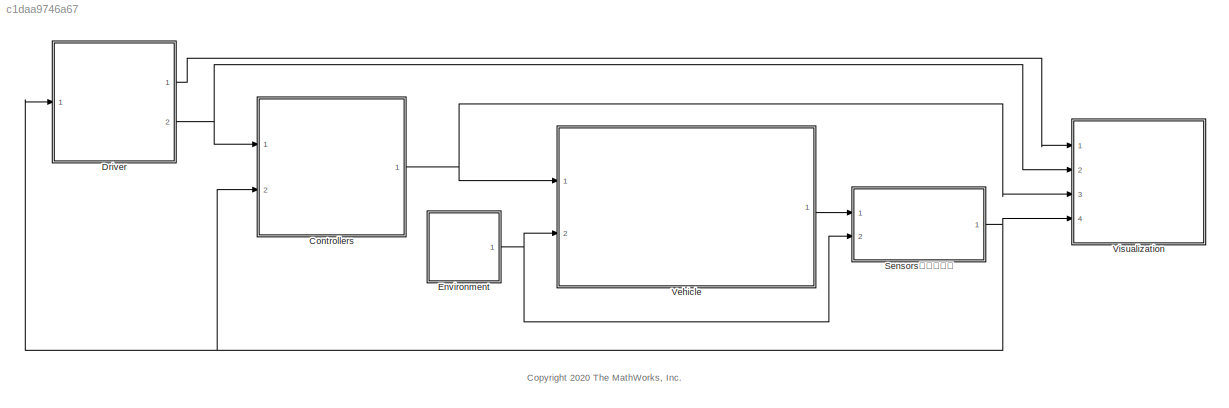
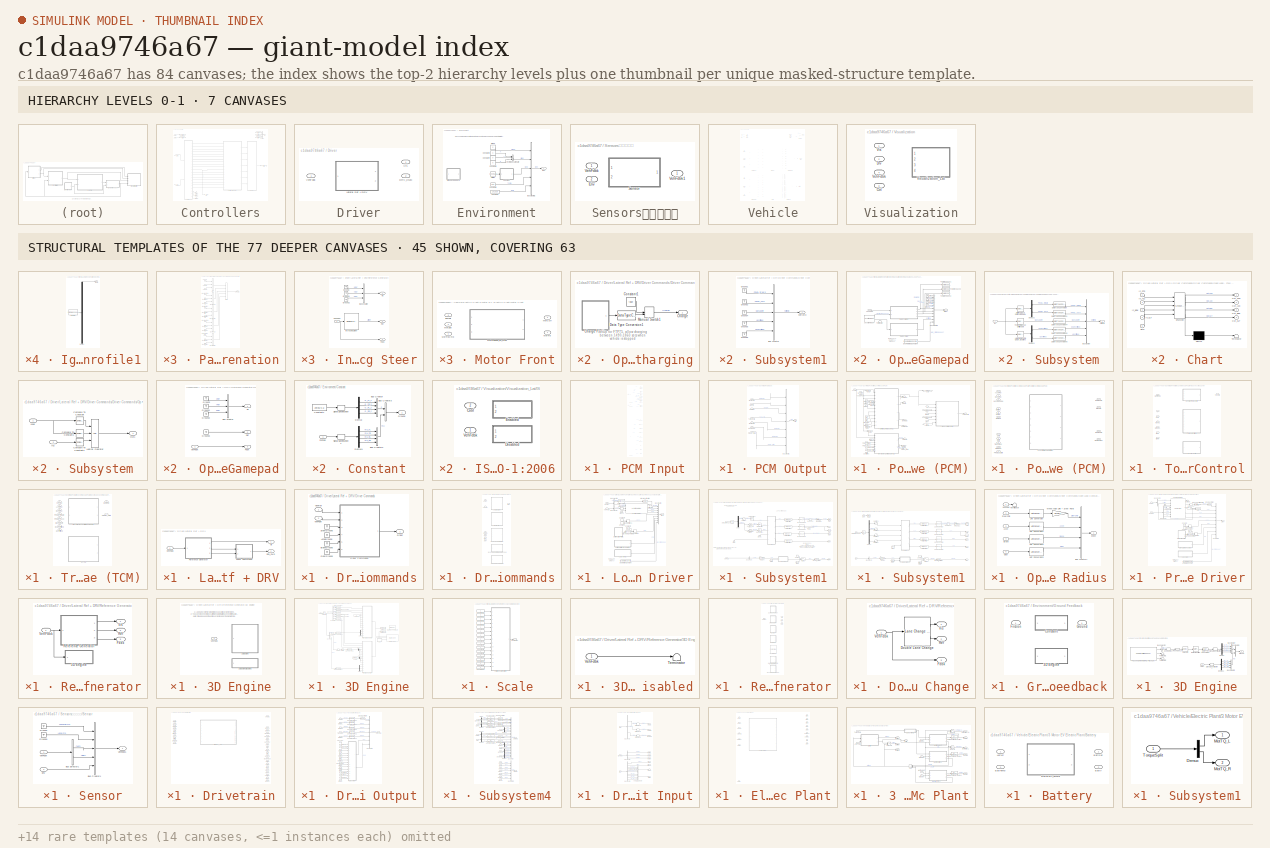
[diagram: thumbnail index - top-2 hierarchy levels (7 canvases) + 45 structural-template representatives of the remaining 77 canvases]
MODEL slx_c1daa9746a67
KIND model
CONFIG AbsTol = auto
CONFIG EnableMultiTasking = on
CONFIG FixedStep = auto
CONFIG MaxStep = auto
CONFIG MinStep = auto
CONFIG RelTol = 1e-3
CONFIG SampleTimeConstraint = Unconstrained
CONFIG Solver = ode23tb
CONFIG SolverName = ode23tb
CONFIG StartTime = 0
CONFIG StopTime = 2474
WORKSPACE source: mxarray member
WORKSPACE A = 159.22
WORKSPACE AccPwrbp = [0 0]
WORKSPACE AccSpdbp = [300 750]
WORKSPACE Aeff = 0.0314159265359
WORKSPACE Af = 2.46
WORKSPACE AfrStoich = 14.6
WORKSPACE AxlIxx = 62.3745166667
WORKSPACE AxlM = 160
WORKSPACE B = 1.01
WORKSPACE BattCapInit = 3.18
WORKSPACE BattCapInit_EV = 4.24
WORKSPACE BattChargeMax = 5.3
WORKSPACE BattChrgPwrMax = -60000
WORKSPACE BattChrgPwrMax_EV = -350000
WORKSPACE BattCurrMax = 300
WORKSPACE BattCurrMax_EV = 900
WORKSPACE BattDischrgPwrMax = 85000
WORKSPACE BattDischrgPwrMax_EV = 497000
WORKSPACE BattTempBp = [243.1 253.1 263.1 273.1 283.1 298.1 313.1]
WORKSPACE Battery: object (value not decoded)
WORKSPACE BrkPrsMax = 8273709
WORKSPACE Bx = 10
WORKSPACE C = 0.3618
WORKSPACE CapLUTBp = [0 0.01 0.02 0.03 0.04 0.05 0.06 0.07 0.08 0.09 0.1 0.11 ... (101 elements, 1x101)]
WORKSPACE CapSOCBp = [0 0.2 0.4 0.6 0.8 1]
WORKSPACE CatLightOffTime = 0
WORKSPACE Cd = 0.25
WORKSPACE ChrgLmt_bpt = [1 1 1 1 1 1 1 0.9 0.7 0.5 0]
WORKSPACE Cl = 0.1
WORKSPACE Cpm = 0.1
WORKSPACE Cps = 2
WORKSPACE CrankSpeed = 150
WORKSPACE Cx = 1.65
WORKSPACE Cz = 5565.2246438
WORKSPACE CzWhlAxl = 11490.971257
WORKSPACE DCT_Param: object (value not decoded)
WORKSPACE DischrgLmt_bpt = [0 0.5 0.7 0.9 1 1 1 1 1 1 1]
WORKSPACE Dn_Shft_Spd = [3 3 10 10 7 7 17 17 11 11 26 26 ... (20 elements, 4x5)]
WORKSPACE Downshift_Speeds = [9.5625 12.9375 16.3125 19.6875 23.0625 26.4375 29.8125 33.1875 36.5625 39.9375 43.3125 46.6875 ... (28 elements, 4x7)]
WORKSPACE Dx = 1
WORKSPACE ECMS_Ki = 0.1
WORKSPACE ECMS_Kp = 3
WORKSPACE ECMS_method = 1
WORKSPACE ECMS_s = 3.4
WORKSPACE Em = [2.8 3.228 3.284 3.361 3.408 3.427 3.472 3.477 3.493 3.504 3.516 3.528 ... (101 elements, 1x101)]
WORKSPACE EngStopStartEnable = 1
WORKSPACE EngStopTime: Simulink.Parameter (value not decoded)
WORKSPACE EngTrqCmd_0 = [0 5.91462851599 6.30130128159 6.63745773103 6.93103920513 7.1887141028 7.41614736865 7.6182009157 7.79908238179 7.96245469721 8.11151569725 8.24905488129 ... (21 elements, 1x21)]
WORKSPACE Ex = 0.01
WORKSPACE F0z = [2886 2907]
WORKSPACE F0zWhlAxl = 2907
WORKSPACE FZMAX = 6570
WORKSPACE FZMIN = 0
WORKSPACE Fc = 500
WORKSPACE FsbF = [-700000 -7000 -700 0 700 7000 700000]
WORKSPACE FsbR = [-700000 -7000 -700 0 700 7000 700000]
WORKSPACE FskF = [-8928.57142857 -178.571428571 0 357.142857143 535.714285714 9285.71428571]
WORKSPACE FskR = [-5357.14285714 -107.142857143 0 214.285714286 321.428571429 5571.42857143]
WORKSPACE G = [-1 0 1 2 3 4 5 6]
WORKSPACE G_o = 1
WORKSPACE Gear_Dn_bpt = [2 3 4 5 6]
WORKSPACE Gear_Up_bpt = [1 2 3 4 5]
WORKSPACE HEVEngTrq_min = 16.186104388
WORKSPACE Hmax = 0.25
WORKSPACE Iyy = 3000
WORKSPACE Iyy_Whl = 0.8
WORKSPACE J = 0.01
WORKSPACE J1 = 0.01
WORKSPACE J2 = 0.01
WORKSPACE Jd = 0.025
WORKSPACE Ji = 0.1
WORKSPACE Jin = 0.05
WORKSPACE Jin_Cltch = 0.2
WORKSPACE Jin_Cltch2 = 0.01
WORKSPACE Jout = [0.01 0.009 0.01 0.01 0.01 0.01 0.01 0.01]
WORKSPACE Jout_Cltch = 0.01
WORKSPACE Jout_Cltch2 = 0.05
WORKSPACE Jt = 0.1
WORKSPACE Jw1 = 0.01
WORKSPACE Jw2 = 0.01
WORKSPACE K_c = 10000
WORKSPACE Kpt = 12798
WORKSPACE Kz = 52451.0065793
WORKSPACE KzWhlAxl = 138031.612078
WORKSPACE LHV = 43000000
WORKSPACE Lhv = 42940000
WORKSPACE Lrel = 0.15
WORKSPACE Mass = 1623
WORKSPACE MaxTorque = [10.8721902117 76.2227873944 95.7133163788 115.203846226 134.694376076 154.184905918 173.675435766 181.839920951 181.509869828 181.17981871 180.849767971 180.519716854 ... (21 elements, 21x1)]
WORKSPACE N = [3.39 1 4.212 2.637 1.8 1.386 1 0.772]
WORKSPACE NCyl = 4
WORKSPACE NF = 2
WORKSPACE NR = 2
WORKSPACE N_P0 = 3
WORKSPACE N_P4 = 4.1
WORKSPACE N_idle = 750
WORKSPACE Ndiff = 3.32
WORKSPACE Ndiff_P4 = 4.1
WORKSPACE Ndiff_front = 5
WORKSPACE Ndiff_rear = 3.5
WORKSPACE Ndisk = 1
WORKSPACE Ndisks = 4
WORKSPACE Ngrid = 200
WORKSPACE Np = 2
WORKSPACE Np_EV = 35
WORKSPACE Np_FC = 1
WORKSPACE Ns = 72
WORKSPACE Ns_EV = 96
WORKSPACE Pabs = 101325
WORKSPACE Pdl_Pos_Dn_bpt = [0 0.6 0.9 1]
WORKSPACE Pdl_Pos_Up_bpt = [0 0.25 0.9 1]
WORKSPACE Pedal_Positions = [0.1 0.4 0.5 0.9]
WORKSPACE PenaltyFctr = 10000000
WORKSPACE Plimit = 60000
WORKSPACE Plimit_EV = 350000
WORKSPACE Press = 7000000
WORKSPACE Pstd = 101325
WORKSPACE RInt = [0.008846 0.006389 0.004364 0.002031 0.001443 0.0005603 0.001028 0.009319 0.006554 0.004101 0.002563 0.001825 ... (42 elements, 7x6)]
WORKSPACE Rair = 287
WORKSPACE Re = 0.327
WORKSPACE Reff = 0.11
WORKSPACE Reff_LSD = 0.2
WORKSPACE RegenBrkCutOff = [0 1]
WORKSPACE RegenBrkSpd_bpt = [2.2352 4.4704]
WORKSPACE Rm = 0.15
WORKSPACE SOCInit = 0.5
WORKSPACE SOCTrgt = 60
WORKSPACE SOC_bpt = [0 0.1 0.2 0.3 0.4 0.5 0.6 0.7 0.8 0.9 1]
WORKSPACE SOCmax = 80
WORKSPACE SOCmin = 40
WORKSPACE SUS: object (value not decoded)
WORKSPACE Sg = 0.743
WORKSPACE Sinj = 6.45161290323
WORKSPACE T = 273
WORKSPACE TCopy = 300
WORKSPACE T_eff_bp = [0 20 40 60 80 100 120 140 160 180 200]
WORKSPACE T_eff_bp_EV_front = [0 30 60 90 120 150 180 210 240 270 300]
WORKSPACE T_eff_bp_EV_rear = [0 20 40 60 80 100 120 140 160 180 200]
WORKSPACE T_eff_bp_P0 = [0 5.78745247607 6.36619772368 7.07355302631 7.95774715459 9.09456817668 10.6103295395 12.7323954474 15.9154943092 21.2206590789 66.6666666667]
WORKSPACE T_init = 298.15
WORKSPACE T_t = [200 200 200 200 190.9859317 143.2394488 114.591559 95.49296586 81.85111359 71.61972439 63.66197724 57.29577951 ... (14 elements, 1x14)]
WORKSPACE T_t_EV_front = [300 300 300 300 286.47889755 214.8591732 171.8873385 143.23944879 122.776670385 107.429586585 95.49296586 85.943669265 ... (14 elements, 1x14)]
WORKSPACE T_t_EV_rear = [200 200 200 200 190.9859317 143.2394488 114.591559 95.49296586 81.85111359 71.61972439 63.66197724 57.29577951 ... (14 elements, 1x14)]
WORKSPACE T_t_P0 = [66.6666666667 66.6666666667 66.6666666667 66.6666666667 21.2206590789 15.9154943092 12.7323954474 10.6103295395 9.09456817668 7.95774715459 7.07355302631 6.36619772368 ... (14 elements, 1x14)]
WORKSPACE Tc_Batt = 0.001
WORKSPACE Tc_DC = 0.001
WORKSPACE Tc_Mot = 0.02
WORKSPACE Temp_bpts = [313 358]
WORKSPACE TimeCnstECP = 0.125
WORKSPACE TimeCnstEGR = 0.125
WORKSPACE TimeCnstETC = 0.085
WORKSPACE TimeCnstICP = 0.125
WORKSPACE TimeCnstIVL = 0.125
WORKSPACE TimeCnstMFA = 0.125
WORKSPACE TimeCnstSWVA = 0.125
WORKSPACE TimeCnstVCR = 0.125
WORKSPACE TimeCnstVGT = 0.15
WORKSPACE TimeCnstVIRL = 0.125
WORKSPACE TimeCnstWGA = 0.15
WORKSPACE TimeStep = 0.0001
WORKSPACE TracPenaltyFctr = 50
WORKSPACE Trans: object (value not decoded)
WORKSPACE Trq_bpts = [25 50 75 100 150 200 250]
WORKSPACE Ts: Simulink.Parameter (value not decoded)
WORKSPACE Tstd = 293.15
WORKSPACE UNLOADED_RADIUS = 0.336
WORKSPACE Up_Shft_Spd = [5 5 12 12 9 9 19 19 13 13 28 28 ... (20 elements, 4x5)]
WORKSPACE Upshift_Speeds = [12.9375 16.3125 19.6875 33 26.4375 29.8125 33.1875 52.5 39.9375 43.3125 46.6875 77.25 ... (28 elements, 4x7)]
WORKSPACE VEH: object (value not decoded)
WORKSPACE VXLOW = 2
WORKSPACE Vd = 0.0015
WORKSPACE Vinit = 650
WORKSPACE WH: Mass (value not decoded)
WORKSPACE a = 3
WORKSPACE aMy = 0.01
WORKSPACE a_CG = 1.09
WORKSPACE afr_stoich = 14.6
WORKSPACE alphaMy = 0
WORKSPACE b: Simulink.Parameter (value not decoded)
WORKSPACE b1 = 100
WORKSPACE b1_g = 0.001
WORKSPACE b2 = 100
WORKSPACE b2_g = 0.001
WORKSPACE bMy = 0
WORKSPACE b_CG = 1.7
WORKSPACE b_J = 0.001
WORKSPACE bd = 0.001
WORKSPACE behavior = 0.2
WORKSPACE betaMy = 1
WORKSPACE bi = 0.001
WORKSPACE bin = 0.003
WORKSPACE bin_Cltch = 0.003
WORKSPACE bout = [0.003 0.003 0.003 0.003 0.003 0.003 0.003 0.003]
WORKSPACE bout_Cltch = 0.003
WORKSPACE br = 0.001
WORKSPACE bt = 0.001
WORKSPACE bw1 = 0.001
WORKSPACE bw2 = 0.001
WORKSPACE cMy = 0
WORKSPACE controller_type = 2
WORKSPACE defaultSpacing = 15
WORKSPACE disk_abore = 0.05
WORKSPACE domega_o = 0
WORKSPACE dt3D = 0.05
WORKSPACE dw = [0 10 20 40 60 80 100]
WORKSPACE dzdotsF = [-10 -1 -0.1 0 0.1 1 10]
WORKSPACE dzdotsR = [-10 -1 -0.1 0 0.1 1 10]
WORKSPACE dzsF = [-0.005 -0.0001 0 0.2 0.2001 0.2051]
WORKSPACE dzsR = [-0.005 -0.0001 0 0.2 0.2001 0.2051]
WORKSPACE eff = 98
WORKSPACE efficiency_table = [52 52 52 52 52 52 52 52 52 62 66 70 ... (154 elements, 14x11)]
WORKSPACE efficiency_table_EV = [85 85 85 85 85 85 85 85 85 85 85 85 ... (154 elements, 14x11)]
WORKSPACE efficiency_table_P0 = [52 52 52 52 52 52 52 52 52 62 66 70 ... (154 elements, 14x11)]
WORKSPACE egotf: object (value not decoded)
WORKSPACE elec_Pipe: object (value not decoded)
WORKSPACE elec_Radiator: object (value not decoded)
WORKSPACE eta = [0.95 0.95 0.95 0.95 0.95 0.95 0.95 0.95]
WORKSPACE eta_tbl = [0.7 0.8 0.9 0.9 0.9 0.9 0.9 0.7 0.8 0.9 0.9 0.9 ... (1232 elements, 7x11x8x2)]
WORKSPACE f_air = [0 0 0 0 0 0 0 0 0 0 0 0 ... (441 elements, 21x21)]
WORKSPACE f_co = [0 0 0 0 0 0 0 0 0 0 0 0 ... (441 elements, 21x21)]
WORKSPACE f_co2 = [0 0 0 0 0 0 0 0 0 0 0 0 ... (441 elements, 21x21)]
WORKSPACE f_cp_ld_bpt = [0 0.2 0.275 0.35 0.425 0.5 0.575 0.65 0.725 0.8 0.875 0.95 ... (16 elements, 1x16)]
WORKSPACE f_cp_n_bpt = [750 1053.57142857 1357.14285714 1660.71428571 1964.28571429 2267.85714286 2571.42857143 2875 3178.57142857 3482.14285714 3785.71428571 4089.28571429 ... (15 elements, 1x15)]
WORKSPACE f_del_sa_bpt = [0 0.75 1.5 2.25 3 3.75 4.5 5.25 6 6.75 7.5 8.25 ... (65 elements, 1x65)]
WORKSPACE f_ecp = [0 0 7.19012817097 15.3709456879 19.1470470057 19.0854874367 13.5819971805 0 0 0 0 0 ... (240 elements, 16x15)]
WORKSPACE f_eff = [499.877436556 432.508206156 399.540781628 370.894662993 347.954880181 331.11554878 319.468905906 311.408898718 305.523567029 300.961538912 297.204959405 293.79866205 ... (441 elements, 21x21)]
WORKSPACE f_egr_areapct_cmd = [0 3.448 6.897 10.34 13.79 17.24 20.69 24.14 27.59 31.03 34.48 37.93 ... (600 elements, 30x20)]
WORKSPACE f_egr_areapct_nrmlzdflow_bpt = [0 0.03448 0.06897 0.1034 0.1379 0.1724 0.2069 0.2414 0.2759 0.3103 0.3448 0.3793 ... (30 elements, 1x30)]
WORKSPACE f_egr_areapct_pr_bpt = [0.5 0.5263 0.5526 0.5789 0.6053 0.6316 0.6579 0.6842 0.7105 0.7368 0.7632 0.7895 ... (20 elements, 20x1)]
WORKSPACE f_egr_max_stdflow = [74.87 74.87 74.74 74.39 73.81 72.98 71.91 70.58 68.97 67.06 64.84 62.25 ... (20 elements, 1x20)]
WORKSPACE f_egr_stdflow = [0 3.743 7.487 11.23 14.97 18.72 22.46 26.2 29.95 33.69 37.43 41.18 ... (420 elements, 21x20)]
WORKSPACE f_egr_stdflow_egrap_bpt = [0 5 10 15 20 25 30 35 40 45 50 55 ... (21 elements, 21x1)]
WORKSPACE f_egr_stdflow_pr_bpt = [0.5 0.5263 0.5526 0.5789 0.6053 0.6316 0.6579 0.6842 0.7105 0.7368 0.7632 0.7895 ... (20 elements, 20x1)]
WORKSPACE f_egrpct_cmd = [0 0 0 0 0 0 0 0 0 0 0 0 ... (240 elements, 16x15)]
WORKSPACE f_egrpct_ld_bpt = [0 0.2 0.275 0.35 0.425 0.5 0.575 0.65 0.725 0.8 0.875 0.95 ... (16 elements, 1x16)]
WORKSPACE f_egrpct_n_bpt = [750 1054 1357 1661 1964 2268 2571 2875 3179 3482 3786 4089 ... (15 elements, 1x15)]
WORKSPACE f_fric_temp_bpt = [275 277 279 281 283 285 287 289 291 293 295 297 ... (46 elements, 1x46)]
WORKSPACE f_fric_temp_mod = [3.986 2.616 2.132 1.946 1.839 1.747 1.672 1.608 1.551 1.499 1.462 1.415 ... (46 elements, 1x46)]
WORKSPACE f_fuel = [0 0 0 0 0 0 0 0 0 0 0 0 ... (441 elements, 21x21)]
WORKSPACE f_hc = [0 0 0 0 0 0 0 0 0 0 0 0 ... (441 elements, 21x21)]
WORKSPACE f_icp = [0 0 1 1.09273642197 2.29409401139 3.54274371837 0.947749647567 0 0 0 0 0 ... (240 elements, 16x15)]
WORKSPACE f_intksys_stdflow_bpt = [0 29.67 59.34 89.01 117.8 144.1 155.7 166 175.2 183.3 190.7 197 ... (20 elements, 1x20)]
WORKSPACE f_intksys_stdflow_pr = [1 0.9789 0.9579 0.9368 0.9158 0.8947 0.8737 0.8526 0.8316 0.8105 0.7895 0.7684 ... (20 elements, 1x20)]
WORKSPACE f_lamcmd = [1 1 1 1 1 1 1 1 1 1 1 1 ... (240 elements, 16x15)]
WORKSPACE f_lamcmd_ld_bpt = [0 0.2 0.275 0.35 0.425 0.5 0.575 0.65 0.725 0.8 0.875 0.95 ... (16 elements, 1x16)]
WORKSPACE f_lamcmd_n_bpt = [750 1053.57142857 1357.14285714 1660.71428571 1964.28571429 2267.85714286 2571.42857143 2875 3178.57142857 3482.14285714 3785.71428571 4089.28571429 ... (15 elements, 1x15)]
WORKSPACE f_lcmd = [0 0.323404450126 0.402272754123 0.472190900601 0.545782048677 0.619112163094 0.619299299836 0.619299299836 0.619299299836 0.619299299836 0.619299299836 0.619299299836 ... (315 elements, 21x15)]
WORKSPACE f_lcmd_n_bpt = [750 1053.57142857 1357.14285714 1660.71428571 1964.28571429 2267.85714286 2571.42857143 2875 3178.57142857 3482.14285714 3785.71428571 4089.28571429 ... (15 elements, 1x15)]
WORKSPACE f_lcmd_tq_bpt = [0 15 25.2631578947 35.5263157895 45.7894736842 56.0526315789 66.3157894737 76.5789473684 86.8421052632 97.1052631579 107.368421053 117.631578947 ... (21 elements, 1x21)]
WORKSPACE f_m_lam = [0.94128 0.95565 0.97001 0.98437 0.99008 1.0004 0.97527 0.9549 0.92612 0.89735]
WORKSPACE f_m_lam_bpt = [0.65 0.7 0.75 0.8 0.85 0.9 0.95 1 1.05 1.1]
WORKSPACE f_m_sa = [1.0019 0.9988 0.9953 0.99173 0.98811 0.98441 0.98065 0.97682 0.97293 0.96897 0.96493 0.96083 ... (65 elements, 1x65)]
WORKSPACE f_mdot_air_corr = [1.02156051768 1.00597426471 0.989411677851 1.0033499089 0.984591437857 0.988509040623 1.0326198627 1.02765527362 1.0134784519 0.998280021213 0.981755128787 0.967218261288 ... (400 elements, 20x20)]
WORKSPACE f_mdot_air_corr_ld_bpt = [0.223381333333 0.285105122807 0.346828912281 0.408552701754 0.470276491228 0.532000280702 0.593724070175 0.655447859649 0.717171649123 0.778895438596 0.84061922807 0.902343017544 ... (20 elements, 1x20)]
WORKSPACE f_mdot_air_n_bpt = [750 973.6842 1197.3684 1421.0526 1644.7368 1868.4211 2092.1053 2315.7895 2539.4737 2763.1579 2986.8421 3210.5263 ... (20 elements, 1x20)]
WORKSPACE f_mdot_intk = [0 0 0 0 0 0 0 0 0 0 0 0 ... (400 elements, 20x20)]
WORKSPACE f_mdot_intk_ecp_bpt = [0 2.6316 5.2632 7.8947 10.5263 13.1579 15.7895 18.4211 21.0526 23.6842 26.3158 28.9474 ... (20 elements, 1x20)]
WORKSPACE f_mdot_trpd_bpt = [0 5.7895 11.5789 17.3684 23.1579 28.9474 34.7368 40.5263 46.3158 52.1053 57.8947 63.6842 ... (20 elements, 1x20)]
WORKSPACE f_nox = [0 0 0 0 0 0 0 0 0 0 0 0 ... (441 elements, 21x21)]
WORKSPACE f_nv = [0.64175366561 0.641419295169 0.640125365558 0.638690556197 0.644169906538 0.669178791311 0.731659452876 0.750078238889 0.750078238889 0.750078238889 0.750078238889 0.750078238889 ... (225 elements, 15x15)]
WORKSPACE f_nv_n_bpt = [750 1053.57142857 1357.14285714 1660.71428571 1964.28571429 2267.85714286 2571.42857143 2875 3178.57142857 3482.14285714 3785.71428571 4089.28571429 ... (15 elements, 1x15)]
WORKSPACE f_nv_prs_bpt = [31 40.6428571429 50.2857142857 59.9285714286 69.5714285714 79.2142857143 88.8571428571 98.5 108.142857143 117.785714286 127.428571429 137.071428571 ... (15 elements, 1x15)]
WORKSPACE f_pm = [0 0 0 0 0 0 0 0 0 0 0 0 ... (441 elements, 21x21)]
WORKSPACE f_sa = [9.05 9.05 16.4373253582 15.3405265461 13.6074880273 9.83352189562 3.89388784387 0 0 0 0 0 ... (240 elements, 16x15)]
WORKSPACE f_sa_ld_bpt = [0 0.2 0.275 0.35 0.425 0.5 0.575 0.65 0.725 0.8 0.875 0.95 ... (16 elements, 1x16)]
WORKSPACE f_sa_n_bpt = [750 1053.57142857 1357.14285714 1660.71428571 1964.28571429 2267.85714286 2571.42857143 2875 3178.57142857 3482.14285714 3785.71428571 4089.28571429 ... (15 elements, 1x15)]
WORKSPACE f_sa_opt = [35.3085 21.0105 10.3714 8.5076 7.1426 7.5656 -5.7766 -16.7061 -16.8345 -19.3546 -20.6085 -22.0872 ... (225 elements, 15x15)]
WORKSPACE f_startup_ect_bpt = [-40 0 20 50]
WORKSPACE f_startup_lambda_delta = [0.5 0.3 0.2 0]
WORKSPACE f_startup_lambda_delta_timecnst = [90 40 12 0]
WORKSPACE f_susp_axl_bp = [1 2]
WORKSPACE f_susp_dz_bp = [-0.325022776267 -0.315022776267 -0.305022776267 -0.205022776267 -0.105022776267 -0.00502277626717 0.0949772237328 0.194977223733 0.204977223733 0.214977223733]
WORKSPACE f_susp_dzdot_bp = [-3 -0.3 -0.2 -0.1 0 0.1 0.2 0.3 3]
WORKSPACE f_susp_fmz = [-144070.391448 -93629.24037 -75929.1118915 -20630.5828179 -15385.48216 -10140.3815021 -4895.28084414 349.819813785 -31916.3973792 18437.6709544 -83996.1993354 -33555.0482577 ... (43920 elements, 10x9x61x2x4)]
WORKSPACE f_susp_geom = [0 0 0 0 0 0 0 0 0 0 0 0 ... (3660 elements, 10x61x2x3)]
WORKSPACE f_susp_strgdelta_bp = [-0.523598775598 -0.506145483078 -0.488692190558 -0.471238898038 -0.453785605519 -0.436332312999 -0.418879020479 -0.401425727959 -0.383972435439 -0.366519142919 -0.349065850399 -0.331612557879 ... (61 elements, 1x61)]
WORKSPACE f_t_exh = [739.936218766 750.584766028 772.770773797 791.235245621 803.106549716 885.862998064 920.498479307 920.498479307 920.498479307 920.498479307 920.498479307 920.498479307 ... (225 elements, 15x15)]
WORKSPACE f_t_exh_l_bpt = [0.2 0.275 0.35 0.425 0.5 0.575 0.65 0.725 0.8 0.875 0.95 1.025 ... (15 elements, 1x15)]
WORKSPACE f_t_exh_n_bpt = [750 1053.57142857 1357.14285714 1660.71428571 1964.28571429 2267.85714286 2571.42857143 2875 3178.57142857 3482.14285714 3785.71428571 4089.28571429 ... (15 elements, 1x15)]
WORKSPACE f_tap = [0 0.9375 0.9375 0.982121188204 1.22093639741 1.5421156717 1.98870690459 2.59666257968 2.6875 2.6875 2.6875 2.6875 ... (315 elements, 21x15)]
WORKSPACE f_tap_ld_bpt = [0 0.2 0.268421052632 0.336842105263 0.405263157895 0.473684210526 0.542105263158 0.610526315789 0.678947368421 0.747368421053 0.815789473684 0.884210526316 ... (21 elements, 1x21)]
WORKSPACE f_tap_n_bpt = [750 1053.57142857 1357.14285714 1660.71428571 1964.28571429 2267.85714286 2571.42857143 2875 3178.57142857 3482.14285714 3785.71428571 4089.28571429 ... (15 elements, 1x15)]
WORKSPACE f_tbrake = [0 10.8721902117 10.8721902117 10.8721902117 10.8721902117 10.8721902117 10.8721902117 10.8721902117 10.8721902117 10.8721902117 10.8721902117 10.8721902117 ... (441 elements, 21x21)]
WORKSPACE f_tbrake_n_bpt = [0 750 973.684210526 1197.36842105 1421.05263158 1644.73684211 1868.42105263 2092.10526316 2315.78947368 2539.47368421 2763.15789474 2986.84210526 ... (21 elements, 1x21)]
WORKSPACE f_tbrake_t_bpt = [0 16.186104388 24.9146526824 33.6432009767 42.3717492711 51.1002975655 59.8288458599 68.5573941543 77.2859424487 86.0144907431 94.7430390375 103.471587332 ... (21 elements, 21x1)]
WORKSPACE f_texh = [630.359790352 638.212816583 644.85156876 656.410931683 676.180276582 706.880985433 749.880156186 804.757804763 869.00210738 938.264388175 1007.38061415 1071.70023123 ... (441 elements, 21x21)]
WORKSPACE f_tm_corr = [0.839360054391 0.833393271885 0.82629554201 0.818442814437 0.811524387436 0.809164184856 0.814606352881 0.826887956871 0.842304598924 0.856886829014 0.869487025783 0.880530414174 ... (400 elements, 20x20)]
WORKSPACE f_tm_corr_n_bpt = [750 973.6842 1197.3684 1421.0526 1644.7368 1868.4211 2092.1053 2315.7895 2539.4737 2763.1579 2986.8421 3210.5263 ... (20 elements, 1x20)]
WORKSPACE f_tm_corr_nd_bpt = [0.3 0.38947 0.47895 0.56842 0.65789 0.74737 0.83684 0.92632 1.0158 1.1053 1.1947 1.2842 ... (20 elements, 1x20)]
WORKSPACE f_tpp = [0 100]
WORKSPACE f_tpp_tap_bpt = [0 100]
WORKSPACE f_tq_fric = [4.16 4.42 4.69 4.88 4.94 4.93 4.85 4.74 4.63 4.52 4.42 4.34 ... (225 elements, 15x15)]
WORKSPACE f_tq_inr = [25.8508 37.8267 50.6081 62.6825 74.6026 88.9064 81.9508 76.6399 82.9886 85.0042 88.9209 92.7645 ... (225 elements, 15x15)]
WORKSPACE f_tq_inr_l_bpt = [0.2 0.28571 0.37143 0.45714 0.54286 0.62857 0.71429 0.8 0.88571 0.97143 1.0571 1.1429 ... (15 elements, 1x15)]
WORKSPACE f_tq_inr_n_bpt = [750 1053.5714 1357.1429 1660.7143 1964.2857 2267.8571 2571.4286 2875 3178.5714 3482.1429 3785.7143 4089.2857 ... (15 elements, 1x15)]
WORKSPACE f_tq_nl = [0 15.0012133443 26.4298333923 37.8556656512 49.2846782956 60.7113978793 72.3451969202 77.459652163 78.5324534074 78.5324534074 78.5324534074 78.5324534074 ... (256 elements, 16x16)]
WORKSPACE f_tq_nl_l_bpt = [0 0.2 0.275 0.35 0.425 0.5 0.575 0.65 0.725 0.8 0.875 0.95 ... (16 elements, 1x16)]
WORKSPACE f_tq_nl_n_bpt = [0 750 1053.57142857 1357.14285714 1660.71428571 1964.28571429 2267.85714286 2571.42857143 2875 3178.57142857 3482.14285714 3785.71428571 ... (16 elements, 1x16)]
WORKSPACE f_tq_pump = [7.24 5.67 3.94 2.59 1.8 1 1 1 1 1 1 1 ... (225 elements, 15x15)]
WORKSPACE f_twc_eff_co = [0.17 0.25 0.45 0.99 0.99 0.99 0.99]
WORKSPACE ... (+78 more variables)
BLOCK [SubSystem] Controllers
  Ports = [2, 1]
  RequestExecContextInheritance = off
BLOCK [BusCreator] Controllers/Bus Creator
  DisplayOption = bar
  InheritFromInputs = on
  Inputs = 3
  Ports = [3, 1]
BLOCK [Outport] Controllers/Ctrl
  VectorParamsAs1DForOutWhenUnconnected = off
BLOCK [From] Controllers/From1
  GotoTag = EngCtrl
BLOCK [From] Controllers/From11
  GotoTag = VehPlnt
BLOCK [From] Controllers/From2
  GotoTag = PtCtrl
BLOCK [From] Controllers/From4
  GotoTag = SteerCtrl
BLOCK [From] Controllers/From9
  GotoTag = OpCmds
BLOCK [Goto] Controllers/Goto1
  GotoTag = OpCmds
BLOCK [Goto] Controllers/Goto2
  GotoTag = VehPlnt
BLOCK [Goto] Controllers/Goto5
  GotoTag = PtCtrl
BLOCK [Goto] Controllers/Goto6
  GotoTag = SteerCtrl
BLOCK [Inport] Controllers/OpCmds
BLOCK [SubSystem] Controllers/PCM Input
  Ports = [2, 21]
  RequestExecContextInheritance = off
BLOCK [Outport] Controllers/PCM Input/AccEnb（自适应巡航使能）
  Port = 19
  VectorParamsAs1DForOutWhenUnconnected = off
BLOCK [Outport] Controllers/PCM Input/AccelPdl（加速器）
  Port = 17
  VectorParamsAs1DForOutWhenUnconnected = off
BLOCK [Outport] Controllers/PCM Input/BattPwr（Power）
  Port = 3
  VectorParamsAs1DForOutWhenUnconnected = off
BLOCK [Outport] Controllers/PCM Input/BattSoc（电池的剩余电量）
  Port = 2
  VectorParamsAs1DForOutWhenUnconnected = off
BLOCK [Outport] Controllers/PCM Input/BattV（电池电压）
  Port = 6
  VectorParamsAs1DForOutWhenUnconnected = off
BLOCK [BusSelector] Controllers/PCM Input/Bus Selector2
  OutputSignals = Veh.VehSpd,Elec.BattSoc,Elec.BattPwr,Veh.MotSpdL,Elec.BattV,Veh.TransGear,Veh.Body.r,Veh.Wheels.WhlAng,Veh.MotSpdF
  Ports = [1, 9]
BLOCK [BusSelector] Controllers/PCM Input/Bus Selector3
  OutputSignals = ScenarioInfo,LaneInfo
  Ports = [1, 2]
BLOCK [BusSelector] Controllers/PCM Input/Bus Selector5
  OutputSignals = Accel,Decel,Chrg,AccEnbl,SteerCmd,ShiftCmd.PRNDL_forward,ShiftCmd.PRNDL_back,ShiftCmd.ManualShift,ShiftCmd.DownshiftReq,ShiftCmd.UpshiftReq
  Ports = [1, 10]
BLOCK [Outport] Controllers/PCM Input/Chrg（充电？）
  Port = 5
  VectorParamsAs1DForOutWhenUnconnected = off
BLOCK [Outport] Controllers/PCM Input/DecelPdl（减速器）
  Port = 18
  VectorParamsAs1DForOutWhenUnconnected = off
BLOCK [Outport] Controllers/PCM Input/DownshiftReq（降档要求）
  Port = 15
  VectorParamsAs1DForOutWhenUnconnected = off
BLOCK [Outport] Controllers/PCM Input/LaneInf（车道信息）
  Port = 21
  VectorParamsAs1DForOutWhenUnconnected = off
BLOCK [Outport] Controllers/PCM Input/ManualShift（手动换挡）
  Port = 14
  VectorParamsAs1DForOutWhenUnconnected = off
BLOCK [Outport] Controllers/PCM Input/MotSpdF
  Port = 9
  VectorParamsAs1DForOutWhenUnconnected = off
BLOCK [Outport] Controllers/PCM Input/MotSpd（电机转速？）
  Port = 4
  VectorParamsAs1DForOutWhenUnconnected = off
BLOCK [Inport] Controllers/PCM Input/OpCmds
  Port = 2
BLOCK [Outport] Controllers/PCM Input/PRNDL_back（档位_后）
  Port = 13
  VectorParamsAs1DForOutWhenUnconnected = off
BLOCK [Outport] Controllers/PCM Input/PRNDL_forward（档位_前）
  Port = 12
  VectorParamsAs1DForOutWhenUnconnected = off
BLOCK [Outport] Controllers/PCM Input/ScnInf（方案信息）
  Port = 20
  VectorParamsAs1DForOutWhenUnconnected = off
BLOCK [Inport] Controllers/PCM Input/Sensors
BLOCK [Outport] Controllers/PCM Input/Steer（转向）
  Port = 11
  VectorParamsAs1DForOutWhenUnconnected = off
BLOCK [Outport] Controllers/PCM Input/TransGear（变速箱）
  Port = 7
  VectorParamsAs1DForOutWhenUnconnected = off
BLOCK [Outport] Controllers/PCM Input/UpshiftReq（升档要求）
  Port = 16
  VectorParamsAs1DForOutWhenUnconnected = off
BLOCK [Outport] Controllers/PCM Input/VehSpdFdbk（车速）
  VectorParamsAs1DForOutWhenUnconnected = off
BLOCK [Outport] Controllers/PCM Input/WhlAng
  Port = 10
  VectorParamsAs1DForOutWhenUnconnected = off
BLOCK [Outport] Controllers/PCM Input/r
  Port = 8
  VectorParamsAs1DForOutWhenUnconnected = off
BLOCK [SubSystem] Controllers/PCM Output
  Ports = [7, 1]
  RequestExecContextInheritance = off
BLOCK [Inport] Controllers/PCM Output/BrkCmd
  Port = 2
BLOCK [BusCreator] Controllers/PCM Output/Bus Creator1
  DisplayOption = bar
  InheritFromInputs = on
  Inputs = 7
  Ports = [7, 1]
BLOCK [Inport] Controllers/PCM Output/GearCmd
  Port = 3
BLOCK [Inport] Controllers/PCM Output/MotTrqCmd
BLOCK [Inport] Controllers/PCM Output/MotTrqCmdF
  Port = 6
BLOCK [Inport] Controllers/PCM Output/PRNDL_State
  Port = 7
BLOCK [Outport] Controllers/PCM Output/PtCtrl
  VectorParamsAs1DForOutWhenUnconnected = off
BLOCK [Inport] Controllers/PCM Output/TorqueSplit
  Port = 4
BLOCK [Inport] Controllers/PCM Output/WhlTrqCmd
  Port = 5
BLOCK [SubSystem] Controllers/Powertrain Control Module (PCM)
  Ports = [18, 7]
  RequestExecContextInheritance = off
BLOCK [Inport] Controllers/Powertrain Control Module (PCM)/AccelPdl
  Port = 17
BLOCK [Inport] Controllers/Powertrain Control Module (PCM)/BattPwr
  Port = 3
BLOCK [Inport] Controllers/Powertrain Control Module (PCM)/BattSoc
  Port = 2
BLOCK [Inport] Controllers/Powertrain Control Module (PCM)/BattV
  Port = 6
BLOCK [Outport] Controllers/Powertrain Control Module (PCM)/BrkCmd
  Port = 2
  VectorParamsAs1DForOutWhenUnconnected = off
BLOCK [Inport] Controllers/Powertrain Control Module (PCM)/Chrg
  Port = 5
BLOCK [Inport] Controllers/Powertrain Control Module (PCM)/DecelPdl
  Port = 18
BLOCK [Inport] Controllers/Powertrain Control Module (PCM)/DownshiftReq
  Port = 15
BLOCK [From] Controllers/Powertrain Control Module (PCM)/From1
  GotoTag = Brake
BLOCK [From] Controllers/Powertrain Control Module (PCM)/From2
  GotoTag = Brake
BLOCK [From] Controllers/Powertrain Control Module (PCM)/From3
  GotoTag = MotSpd
BLOCK [From] Controllers/Powertrain Control Module (PCM)/From4
  GotoTag = xdot
BLOCK [From] Controllers/Powertrain Control Module (PCM)/From5
  GotoTag = PRNDL
BLOCK [Outport] Controllers/Powertrain Control Module (PCM)/GearCmd
  Port = 3
  VectorParamsAs1DForOutWhenUnconnected = off
BLOCK [Goto] Controllers/Powertrain Control Module (PCM)/Goto
  GotoTag = MotTrqCmd
BLOCK [Goto] Controllers/Powertrain Control Module (PCM)/Goto1
  GotoTag = PRNDL
BLOCK [Goto] Controllers/Powertrain Control Module (PCM)/Goto2
  GotoTag = Brake
BLOCK [Goto] Controllers/Powertrain Control Module (PCM)/Goto3
  GotoTag = MotSpd
BLOCK [Goto] Controllers/Powertrain Control Module (PCM)/Goto4
  GotoTag = xdot
BLOCK [Goto] Controllers/Powertrain Control Module (PCM)/Goto5
  GotoTag = SOC
BLOCK [Inport] Controllers/Powertrain Control Module (PCM)/ManualShift
  Port = 14
BLOCK [Inport] Controllers/Powertrain Control Module (PCM)/MotSpd
  Port = 4
BLOCK [Inport] Controllers/Powertrain Control Module (PCM)/MotSpdF
  Port = 9
BLOCK [Outport] Controllers/Powertrain Control Module (PCM)/MotTrqCmd
  VectorParamsAs1DForOutWhenUnconnected = off
BLOCK [Outport] Controllers/Powertrain Control Module (PCM)/MotTrqCmdF
  Port = 6
  VectorParamsAs1DForOutWhenUnconnected = off
BLOCK [Outport] Controllers/Powertrain Control Module (PCM)/PRNDL_State
  Port = 7
  VectorParamsAs1DForOutWhenUnconnected = off
BLOCK [Inport] Controllers/Powertrain Control Module (PCM)/PRNDL_back
  Port = 13
BLOCK [Inport] Controllers/Powertrain Control Module (PCM)/PRNDL_forward
  Port = 12
BLOCK [SubSystem] Controllers/Powertrain Control Module (PCM)/Powertrain Control Module (PCM)
  LabelModeActiveChoice = 2
  Ports = [11, 4]
  RequestExecContextInheritance = off
  Variant = on
  VariantControl = Variant1
  VariantControlMode = Label
BLOCK [Outport] Controllers/Powertrain Control Module (PCM)/Powertrain Control Module (PCM)/ BrkCmd
  Port = 2
  VectorParamsAs1DForOutWhenUnconnected = off
BLOCK [Outport] Controllers/Powertrain Control Module (PCM)/Powertrain Control Module (PCM)/ MotTrqCmd
  VectorParamsAs1DForOutWhenUnconnected = off
BLOCK [Outport] Controllers/Powertrain Control Module (PCM)/Powertrain Control Module (PCM)/ MotTrqCmdF
  Port = 4
  VectorParamsAs1DForOutWhenUnconnected = off
BLOCK [Outport] Controllers/Powertrain Control Module (PCM)/Powertrain Control Module (PCM)/ WhlTrqCmd
  Port = 3
  VectorParamsAs1DForOutWhenUnconnected = off
BLOCK [Inport] Controllers/Powertrain Control Module (PCM)/Powertrain Control Module (PCM)/AccelPdl 
BLOCK [Inport] Controllers/Powertrain Control Module (PCM)/Powertrain Control Module (PCM)/BattPwr 
  Port = 5
BLOCK [Inport] Controllers/Powertrain Control Module (PCM)/Powertrain Control Module (PCM)/BattSoc 
  Port = 4
BLOCK [Inport] Controllers/Powertrain Control Module (PCM)/Powertrain Control Module (PCM)/BattV 
  Port = 8
BLOCK [Inport] Controllers/Powertrain Control Module (PCM)/Powertrain Control Module (PCM)/Chrg 
  Port = 7
BLOCK [Inport] Controllers/Powertrain Control Module (PCM)/Powertrain Control Module (PCM)/DecelPdl 
  Port = 2
BLOCK [ModelReference] Controllers/Powertrain Control Module (PCM)/Powertrain Control Module (PCM)/EV Control Module - Optimal
  ModelNameDialog = EV_Optimal_Controller_r3.slx
  ModelReferenceVersion = 1.4458
  Ports = [8, 4]
  VariantControl = 2
BLOCK [Inport] Controllers/Powertrain Control Module (PCM)/Powertrain Control Module (PCM)/MotSpd 
  Port = 6
BLOCK [Inport] Controllers/Powertrain Control Module (PCM)/Powertrain Control Module (PCM)/MotSpdF
  Port = 10
BLOCK [Inport] Controllers/Powertrain Control Module (PCM)/Powertrain Control Module (PCM)/PRNDL_State
  Port = 11
BLOCK [Inport] Controllers/Powertrain Control Module (PCM)/Powertrain Control Module (PCM)/TransGear 
  Port = 9
BLOCK [Inport] Controllers/Powertrain Control Module (PCM)/Powertrain Control Module (PCM)/VehSpdFdbk 
  Port = 3
BLOCK [Inport] Controllers/Powertrain Control Module (PCM)/Steer
  Port = 11
BLOCK [SubSystem] Controllers/Powertrain Control Module (PCM)/Torque Vectoring Control
  LabelModeActiveChoice = 1
  Ports = [7, 1]
  RequestExecContextInheritance = off
  Variant = on
  VariantControl = Variant1
  VariantControlMode = Label
BLOCK [Inport] Controllers/Powertrain Control Module (PCM)/Torque Vectoring Control/Brake
  Port = 7
BLOCK [ModelReference] Controllers/Powertrain Control Module (PCM)/Torque Vectoring Control/Constant Torque Split
  ModelNameDialog = Constant_Torque_Split.slx
  ModelReferenceVersion = 1.11
  Ports = [4, 1]
  VariantControl = 0
BLOCK [Inport] Controllers/Powertrain Control Module (PCM)/Torque Vectoring Control/MotSpdL
  Port = 5
BLOCK [Inport] Controllers/Powertrain Control Module (PCM)/Torque Vectoring Control/MotTrqCmd
BLOCK [ModelReference] Controllers/Powertrain Control Module (PCM)/Torque Vectoring Control/No Torque Split
  ModelNameDialog = No_Torque_Split.slx
  ModelReferenceVersion = 1.10
  Ports = [1, 1]
  VariantControl = 2
BLOCK [Inport] Controllers/Powertrain Control Module (PCM)/Torque Vectoring Control/Steer
  Port = 6
BLOCK [Outport] Controllers/Powertrain Control Module (PCM)/Torque Vectoring Control/TQ_Split
  VectorParamsAs1DForOutWhenUnconnected = off
BLOCK [ModelReference] Controllers/Powertrain Control Module (PCM)/Torque Vectoring Control/Torque Vectoring
  ModelNameDialog = Torque_Vectoring.slx
  ModelReferenceVersion = 1.25
  Ports = [7, 1]
  VariantControl = 1
BLOCK [Inport] Controllers/Powertrain Control Module (PCM)/Torque Vectoring Control/WhlAng
  Port = 4
BLOCK [Inport] Controllers/Powertrain Control Module (PCM)/Torque Vectoring Control/r
  Port = 2
BLOCK [Inport] Controllers/Powertrain Control Module (PCM)/Torque Vectoring Control/xdot
  Port = 3
BLOCK [Outport] Controllers/Powertrain Control Module (PCM)/TorqueSplit1
  Port = 4
  VectorParamsAs1DForOutWhenUnconnected = off
BLOCK [Inport] Controllers/Powertrain Control Module (PCM)/TransGear
  Port = 7
BLOCK [SubSystem] Controllers/Powertrain Control Module (PCM)/Transmission Control Module (TCM)
  LabelModeActiveChoice = 2
  Ports = [8, 2]
  RequestExecContextInheritance = off
  Variant = on
  VariantControl = Variant1
  VariantControlMode = Label
BLOCK [Inport] Controllers/Powertrain Control Module (PCM)/Transmission Control Module (TCM)/AccelPdl
  Port = 2
BLOCK [Inport] Controllers/Powertrain Control Module (PCM)/Transmission Control Module (TCM)/DecelPdl
  Port = 3
BLOCK [Inport] Controllers/Powertrain Control Module (PCM)/Transmission Control Module (TCM)/DownshiftReq
  Port = 7
BLOCK [Outport] Controllers/Powertrain Control Module (PCM)/Transmission Control Module (TCM)/GearCmd
BLOCK [Inport] Controllers/Powertrain Control Module (PCM)/Transmission Control Module (TCM)/ManualShift
  Port = 6
BLOCK [ModelReference] Controllers/Powertrain Control Module (PCM)/Transmission Control Module (TCM)/NoTCM
  ModelNameDialog = NoTCM.slx
  ModelReferenceVersion = 1.76
  Ports = [0, 2]
  VariantControl = 2
BLOCK [Outport] Controllers/Powertrain Control Module (PCM)/Transmission Control Module (TCM)/PRNDL_State
  Port = 2
BLOCK [Inport] Controllers/Powertrain Control Module (PCM)/Transmission Control Module (TCM)/PRNDL_back
  Port = 5
BLOCK [Inport] Controllers/Powertrain Control Module (PCM)/Transmission Control Module (TCM)/PRNDL_forward
  Port = 4
BLOCK [ModelReference] Controllers/Powertrain Control Module (PCM)/Transmission Control Module (TCM)/Transmission Control Module (TCM)
  ModelNameDialog = TransmissionController.slx
  ModelReferenceVersion = 1.76
  Ports = [2, 2]
  VariantControl = 0
BLOCK [Inport] Controllers/Powertrain Control Module (PCM)/Transmission Control Module (TCM)/UpshiftReq
  Port = 8
BLOCK [Inport] Controllers/Powertrain Control Module (PCM)/Transmission Control Module (TCM)/VehSpd
BLOCK [Inport] Controllers/Powertrain Control Module (PCM)/UpshiftReq
  Port = 16
BLOCK [Inport] Controllers/Powertrain Control Module (PCM)/VehSpdFdbk
BLOCK [Inport] Controllers/Powertrain Control Module (PCM)/WhlAng
  Port = 10
BLOCK [Outport] Controllers/Powertrain Control Module (PCM)/WhlTrqCmd
  Port = 5
  VectorParamsAs1DForOutWhenUnconnected = off
BLOCK [Inport] Controllers/Powertrain Control Module (PCM)/r
  Port = 8
BLOCK [Terminator] Controllers/Terminator
BLOCK [Terminator] Controllers/Terminator1
BLOCK [Terminator] Controllers/Terminator2
BLOCK [Inport] Controllers/VehPlnt
  Port = 2
BLOCK [SubSystem] Driver
  LabelModeActiveChoice = 2
  Ports = [1, 2]
  RequestExecContextInheritance = off
  Variant = on
  VariantControlMode = Label
BLOCK [Outport] Driver/DRV_CMD
  Port = 2
  VectorParamsAs1DForOutWhenUnconnected = off
BLOCK [SubSystem] Driver/Lateral Ref + DRV
  Ports = [1, 2]
  RequestExecContextInheritance = off
  VariantControl = 2
BLOCK [Outport] Driver/Lateral Ref + DRV/DRV_CMD
  Port = 2
  VectorParamsAs1DForOutWhenUnconnected = off
BLOCK [SubSystem] Driver/Lateral Ref + DRV/Driver Commands
  AttributesFormatString = %<driverType>
  Ports = [2, 1]
  RequestExecContextInheritance = off
  VariantControl = 0
BLOCK [Ground] Driver/Lateral Ref + DRV/Driver Commands/AccelGround
BLOCK [Ground] Driver/Lateral Ref + DRV/Driver Commands/BrakeGround
BLOCK [Outport] Driver/Lateral Ref + DRV/Driver Commands/Driver
  VectorParamsAs1DForOutWhenUnconnected = off
BLOCK [SubSystem] Driver/Lateral Ref + DRV/Driver Commands/Driver Commands
  AllowZeroVariantControls = on
  LabelModeActiveChoice = 1
  Ports = [6, 1]
  RequestExecContextInheritance = off
  Variant = on
  VariantControl = Variant1
  VariantControlMode = Label
BLOCK [Outport] Driver/Lateral Ref + DRV/Driver Commands/Driver Commands/ Driver
  VectorParamsAs1DForOutWhenUnconnected = off
BLOCK [Inport] Driver/Lateral Ref + DRV/Driver Commands/Driver Commands/Accel
  Port = 4
BLOCK [Inport] Driver/Lateral Ref + DRV/Driver Commands/Driver Commands/Brake
  Port = 5
BLOCK [Inport] Driver/Lateral Ref + DRV/Driver Commands/Driver Commands/Gear
  Port = 6
BLOCK [SubSystem] Driver/Lateral Ref + DRV/Driver Commands/Driver Commands/Longitudinal Driver
  Ports = [2, 1]
  RequestExecContextInheritance = off
  VariantControl = 0
BLOCK [BusCreator] Driver/Lateral Ref + DRV/Driver Commands/Driver Commands/Longitudinal Driver/Bus Creator1
  DisplayOption = bar
  InheritFromInputs = on
  Inputs = 9
  Ports = [9, 1]
BLOCK [BusSelector] Driver/Lateral Ref + DRV/Driver Commands/Driver Commands/Longitudinal Driver/Bus Selector
  OutputSignals = Veh.Body.xdot
  Ports = [1, 1]
BLOCK [BusSelector] Driver/Lateral Ref + DRV/Driver Commands/Driver Commands/Longitudinal Driver/Bus Selector1
  OutputSignals = SteerOvrCmd,LngRef
  Ports = [1, 2]
BLOCK [Constant] Driver/Lateral Ref + DRV/Driver Commands/Driver Commands/Longitudinal Driver/Constant5
  Value = false
BLOCK [Constant] Driver/Lateral Ref + DRV/Driver Commands/Driver Commands/Longitudinal Driver/Constant6
  OutDataTypeStr = double
  Value = 0
BLOCK [Constant] Driver/Lateral Ref + DRV/Driver Commands/Driver Commands/Longitudinal Driver/Constant7
  OutDataTypeStr = double
BLOCK [DataTypeConversion] Driver/Lateral Ref + DRV/Driver Commands/Driver Commands/Longitudinal Driver/Data Type Conversion
  OutDataTypeStr = boolean
  RndMeth = Floor
  SaturateOnIntegerOverflow = off
BLOCK [DeadZone] Driver/Lateral Ref + DRV/Driver Commands/Driver Commands/Longitudinal Driver/Dead Zone
  LowerValue = -.1
  UpperValue = .1
BLOCK [Outport] Driver/Lateral Ref + DRV/Driver Commands/Driver Commands/Longitudinal Driver/Driver
  VectorParamsAs1DForOutWhenUnconnected = off
BLOCK [Reference] Driver/Lateral Ref + DRV/Driver Commands/Driver Commands/Longitudinal Driver/Enumerated Constant  REF=simulink/Sources/Enumerated
Constant
  Ports = [0, 1]
  SourceBlock = simulink/Sources/Enumerated\nConstant
  SourceProductBaseCode = SL
  SourceType = Enumerated Constant
BLOCK [Ground] Driver/Lateral Ref + DRV/Driver Commands/Driver Commands/Longitudinal Driver/Ground
BLOCK [SubSystem] Driver/Lateral Ref + DRV/Driver Commands/Driver Commands/Longitudinal Driver/Ignition Switch Profile1
  ClipboardFcn = sigbuilder_block('clipboard');
  CloseFcn = sigbuilder_block('close');
  ContinueFcn = sigbuilder_block('continue');
  CopyFcn = sigbuilder_block('copy');
  DeleteFcn = sigbuilder_block('delete');
  LoadFcn = sigbuilder_block('load');
  MaskHideContents = on
  ModelCloseFcn = sigbuilder_block('modelClose');
  NameChangeFcn = sigbuilder_block('namechange');
  OpenFcn = sigbuilder_block('open',[595.8 176.4 550.8 322.2 ]);
  PauseFcn = sigbuilder_block('pause');
  Ports = [0, 1]
  PreSaveFcn = sigbuilder_block('preSave');
  RequestExecContextInheritance = off
  StartFcn = sigbuilder_block('start');
  StopFcn = sigbuilder_block('stop');
  Tag = STV Subsys
BLOCK [Demux] Driver/Lateral Ref + DRV/Driver Commands/Driver Commands/Longitudinal Driver/Ignition Switch Profile1/Demux
  DisplayOption = none
  Outputs = 1
  Ports = [1, 1]
  Tag = STV Demux
BLOCK [FromWorkspace] Driver/Lateral Ref + DRV/Driver Commands/Driver Commands/Longitudinal Driver/Ignition Switch Profile1/FromWs
  Tag = STV FromWs
  VariableName = tuvar
BLOCK [Outport] Driver/Lateral Ref + DRV/Driver Commands/Driver Commands/Longitudinal Driver/Ignition Switch Profile1/IGSW
  Tag = STV Outport
  VectorParamsAs1DForOutWhenUnconnected = off
BLOCK [Reference] Driver/Lateral Ref + DRV/Driver Commands/Driver Commands/Longitudinal Driver/Longitudinal Driver  REF=autolibshared/Longitudinal Driver
  Ports = [3, 4]
  SourceBlock = autolibshared/Longitudinal Driver
  SourceProductBaseCode = PW,MT,VE,VP
  SourceType = Longitudinal Driver
BLOCK [ManualSwitch] Driver/Lateral Ref + DRV/Driver Commands/Driver Commands/Longitudinal Driver/Manual Switch
BLOCK [ManualSwitch] Driver/Lateral Ref + DRV/Driver Commands/Driver Commands/Longitudinal Driver/Manual Switch1
BLOCK [SubSystem] Driver/Lateral Ref + DRV/Driver Commands/Driver Commands/Longitudinal Driver/Optional Stationary Charging
  Commented = on
  Ports = [0, 1]
  RequestExecContextInheritance = off
BLOCK [Outport] Driver/Lateral Ref + DRV/Driver Commands/Driver Commands/Longitudinal Driver/Optional Stationary Charging/Charge
  VectorParamsAs1DForOutWhenUnconnected = off
BLOCK [SubSystem] Driver/Lateral Ref + DRV/Driver Commands/Driver Commands/Longitudinal Driver/Optional Stationary Charging/Charge Profile
  ClipboardFcn = sigbuilder_block('clipboard');
  CloseFcn = sigbuilder_block('close');
  ContinueFcn = sigbuilder_block('continue');
  CopyFcn = sigbuilder_block('copy');
  DeleteFcn = sigbuilder_block('delete');
  LoadFcn = sigbuilder_block('load');
  MaskHideContents = on
  ModelCloseFcn = sigbuilder_block('modelClose');
  NameChangeFcn = sigbuilder_block('namechange');
  OpenFcn = sigbuilder_block('open',[6 30 1428 771.75 ]);
  PauseFcn = sigbuilder_block('pause');
  Ports = [0, 1]
  PreSaveFcn = sigbuilder_block('preSave');
  RequestExecContextInheritance = off
  StartFcn = sigbuilder_block('start');
  StopFcn = sigbuilder_block('stop');
  Tag = STV Subsys
BLOCK [Demux] Driver/Lateral Ref + DRV/Driver Commands/Driver Commands/Longitudinal Driver/Optional Stationary Charging/Charge Profile/Demux
  DisplayOption = none
  Outputs = 1
  Ports = [1, 1]
  Tag = STV Demux
BLOCK [FromWorkspace] Driver/Lateral Ref + DRV/Driver Commands/Driver Commands/Longitudinal Driver/Optional Stationary Charging/Charge Profile/FromWs
  Tag = STV FromWs
  VariableName = tuvar
BLOCK [Outport] Driver/Lateral Ref + DRV/Driver Commands/Driver Commands/Longitudinal Driver/Optional Stationary Charging/Charge Profile/IGSW
  Tag = STV Outport
  VectorParamsAs1DForOutWhenUnconnected = off
BLOCK [Constant] Driver/Lateral Ref + DRV/Driver Commands/Driver Commands/Longitudinal Driver/Optional Stationary Charging/Constant1
  Value = false
BLOCK [DataTypeConversion] Driver/Lateral Ref + DRV/Driver Commands/Driver Commands/Longitudinal Driver/Optional Stationary Charging/Data Type Conversion1
  OutDataTypeStr = boolean
  RndMeth = Floor
  SaturateOnIntegerOverflow = off
BLOCK [ManualSwitch] Driver/Lateral Ref + DRV/Driver Commands/Driver Commands/Longitudinal Driver/Optional Stationary Charging/Manual Switch1
BLOCK [SignalSpecification] Driver/Lateral Ref + DRV/Driver Commands/Driver Commands/Longitudinal Driver/Signal Specification3
  Unit = rad
BLOCK [SubSystem] Driver/Lateral Ref + DRV/Driver Commands/Driver Commands/Longitudinal Driver/Subsystem1
  Ports = [0, 1]
  RequestExecContextInheritance = off
BLOCK [BusCreator] Driver/Lateral Ref + DRV/Driver Commands/Driver Commands/Longitudinal Driver/Subsystem1/Bus Creator
  DisplayOption = bar
  InheritFromInputs = on
  Inputs = 5
  Ports = [5, 1]
BLOCK [Ground] Driver/Lateral Ref + DRV/Driver Commands/Driver Commands/Longitudinal Driver/Subsystem1/Ground1
BLOCK [Ground] Driver/Lateral Ref + DRV/Driver Commands/Driver Commands/Longitudinal Driver/Subsystem1/Ground2
BLOCK [Ground] Driver/Lateral Ref + DRV/Driver Commands/Driver Commands/Longitudinal Driver/Subsystem1/Ground4
BLOCK [Ground] Driver/Lateral Ref + DRV/Driver Commands/Driver Commands/Longitudinal Driver/Subsystem1/Ground5
BLOCK [Ground] Driver/Lateral Ref + DRV/Driver Commands/Driver Commands/Longitudinal Driver/Subsystem1/Ground6
BLOCK [Outport] Driver/Lateral Ref + DRV/Driver Commands/Driver Commands/Longitudinal Driver/Subsystem1/ShiftCmd
BLOCK [Terminator] Driver/Lateral Ref + DRV/Driver Commands/Driver Commands/Longitudinal Driver/Terminator3
BLOCK [UnitConversion] Driver/Lateral Ref + DRV/Driver Commands/Driver Commands/Longitudinal Driver/Unit Conversion
BLOCK [Inport] Driver/Lateral Ref + DRV/Driver Commands/Driver Commands/Longitudinal Driver/VehFdbk
  Port = 2
BLOCK [Inport] Driver/Lateral Ref + DRV/Driver Commands/Driver Commands/Longitudinal Driver/VehRef
BLOCK [SubSystem] Driver/Lateral Ref + DRV/Driver Commands/Driver Commands/Open Loop - F310 Gamepad
  Ports = [1, 1]
  RequestExecContextInheritance = off
  VariantControl = 4
BLOCK [BusCreator] Driver/Lateral Ref + DRV/Driver Commands/Driver Commands/Open Loop - F310 Gamepad/Bus Creator1
  DisplayOption = bar
  InheritFromInputs = on
  Inputs = 10
  Ports = [10, 1]
BLOCK [Outport] Driver/Lateral Ref + DRV/Driver Commands/Driver Commands/Open Loop - F310 Gamepad/Driver
  VectorParamsAs1DForOutWhenUnconnected = off
BLOCK [Reference] Driver/Lateral Ref + DRV/Driver Commands/Driver Commands/Open Loop - F310 Gamepad/Enumerated Constant  REF=simulink/Sources/Enumerated
Constant
  Ports = [0, 1]
  SourceBlock = simulink/Sources/Enumerated\nConstant
  SourceProductBaseCode = SL
  SourceType = Enumerated Constant
BLOCK [Ground] Driver/Lateral Ref + DRV/Driver Commands/Driver Commands/Open Loop - F310 Gamepad/Ground
BLOCK [Ground] Driver/Lateral Ref + DRV/Driver Commands/Driver Commands/Open Loop - F310 Gamepad/Ground1
BLOCK [Ground] Driver/Lateral Ref + DRV/Driver Commands/Driver Commands/Open Loop - F310 Gamepad/Ground2
BLOCK [Ground] Driver/Lateral Ref + DRV/Driver Commands/Driver Commands/Open Loop - F310 Gamepad/Ground3
BLOCK [Reference] Driver/Lateral Ref + DRV/Driver Commands/Driver Commands/Open Loop - F310 Gamepad/Joystick Input  REF=vrlib/Joystick Input
  Ports = [0, 2]
  SourceBlock = vrlib/Joystick Input
  SourceProductBaseCode = SL
  SourceType = Joystick Input
BLOCK [SubSystem] Driver/Lateral Ref + DRV/Driver Commands/Driver Commands/Open Loop - F310 Gamepad/Subsystem
  Ports = [1, 1]
  RequestExecContextInheritance = off
BLOCK [BusCreator] Driver/Lateral Ref + DRV/Driver Commands/Driver Commands/Open Loop - F310 Gamepad/Subsystem/Bus Creator
  DisplayOption = bar
  InheritFromInputs = on
  Inputs = 5
  Ports = [5, 1]
BLOCK [DataTypeConversion] Driver/Lateral Ref + DRV/Driver Commands/Driver Commands/Open Loop - F310 Gamepad/Subsystem/Data Type Conversion
  RndMeth = Floor
  SaturateOnIntegerOverflow = off
BLOCK [DataTypeConversion] Driver/Lateral Ref + DRV/Driver Commands/Driver Commands/Open Loop - F310 Gamepad/Subsystem/Data Type Conversion1
  RndMeth = Floor
  SaturateOnIntegerOverflow = off
BLOCK [DataTypeConversion] Driver/Lateral Ref + DRV/Driver Commands/Driver Commands/Open Loop - F310 Gamepad/Subsystem/Data Type Conversion4
  RndMeth = Floor
  SaturateOnIntegerOverflow = off
BLOCK [DataTypeConversion] Driver/Lateral Ref + DRV/Driver Commands/Driver Commands/Open Loop - F310 Gamepad/Subsystem/Data Type Conversion5
  RndMeth = Floor
  SaturateOnIntegerOverflow = off
BLOCK [DataTypeConversion] Driver/Lateral Ref + DRV/Driver Commands/Driver Commands/Open Loop - F310 Gamepad/Subsystem/Data Type Conversion6
  RndMeth = Floor
  SaturateOnIntegerOverflow = off
BLOCK [Demux] Driver/Lateral Ref + DRV/Driver Commands/Driver Commands/Open Loop - F310 Gamepad/Subsystem/Demux1
  Outputs = 2
  Ports = [1, 2]
BLOCK [Demux] Driver/Lateral Ref + DRV/Driver Commands/Driver Commands/Open Loop - F310 Gamepad/Subsystem/Demux2
  Outputs = 2
  Ports = [1, 2]
BLOCK [Inport] Driver/Lateral Ref + DRV/Driver Commands/Driver Commands/Open Loop - F310 Gamepad/Subsystem/In1
BLOCK [Selector] Driver/Lateral Ref + DRV/Driver Commands/Driver Commands/Open Loop - F310 Gamepad/Subsystem/LB (Down) and RB (Up) Shift Paddle buttons
  IndexOptions = Index vector (dialog)
  Indices = [5 6]
  InputPortWidth = 12
  OutputSizes = 1
  Ports = [1, 1]
BLOCK [Outport] Driver/Lateral Ref + DRV/Driver Commands/Driver Commands/Open Loop - F310 Gamepad/Subsystem/ShiftCmd
  VectorParamsAs1DForOutWhenUnconnected = off
BLOCK [Selector] Driver/Lateral Ref + DRV/Driver Commands/Driver Commands/Open Loop - F310 Gamepad/Subsystem/Start and Back buttons for PRNDL
  IndexOptions = Index vector (dialog)
  Indices = [10 9]
  InputPortWidth = 12
  OutputSizes = 1
  Ports = [1, 1]
BLOCK [Selector] Driver/Lateral Ref + DRV/Driver Commands/Driver Commands/Open Loop - F310 Gamepad/Subsystem/Y button for Manual Shift Enable
  IndexOptions = Index vector (dialog)
  Indices = [4]
  InputPortWidth = 12
  OutputSizes = 1
  Ports = [1, 1]
BLOCK [SubSystem] Driver/Lateral Ref + DRV/Driver Commands/Driver Commands/Open Loop - F310 Gamepad/Subsystem1
  Ports = [2, 4]
  RequestExecContextInheritance = off
BLOCK [Lookup_n-D] Driver/Lateral Ref + DRV/Driver Commands/Driver Commands/Open Loop - F310 Gamepad/Subsystem1/1-D Lookup Table
  BreakpointsForDimension1 = [-1 0]
  ExtrapMethod = Clip
  InternalRulePriority = Speed
  NumberOfTableDimensions = 1
  Ports = [1, 1]
  RndMeth = Simplest
  Table = [1 0]
  UseLastTableValue = on
BLOCK [Lookup_n-D] Driver/Lateral Ref + DRV/Driver Commands/Driver Commands/Open Loop - F310 Gamepad/Subsystem1/1-D Lookup Table1
  BreakpointsForDimension1 = [0 1]
  ExtrapMethod = Clip
  InternalRulePriority = Speed
  NumberOfTableDimensions = 1
  Ports = [1, 1]
  RndMeth = Simplest
  Table = [0 1]
  UseLastTableValue = on
BLOCK [Lookup_n-D] Driver/Lateral Ref + DRV/Driver Commands/Driver Commands/Open Loop - F310 Gamepad/Subsystem1/1-D Lookup Table7
  BreakpointsForDimension1 = [-1 0 1]
  ExtrapMethod = Clip
  InternalRulePriority = Speed
  NumberOfTableDimensions = 1
  Ports = [1, 1]
  RndMeth = Simplest
  Table = [-450 0 450]
  UseLastTableValue = on
BLOCK [Outport] Driver/Lateral Ref + DRV/Driver Commands/Driver Commands/Open Loop - F310 Gamepad/Subsystem1/Accel
  Port = 2
  VectorParamsAs1DForOutWhenUnconnected = off
BLOCK [Outport] Driver/Lateral Ref + DRV/Driver Commands/Driver Commands/Open Loop - F310 Gamepad/Subsystem1/Brake
  Port = 3
  VectorParamsAs1DForOutWhenUnconnected = off
BLOCK [BusSelector] Driver/Lateral Ref + DRV/Driver Commands/Driver Commands/Open Loop - F310 Gamepad/Subsystem1/Bus Selector
  OutputSignals = Veh.Body.xdot
  Ports = [1, 1]
BLOCK [SubSystem] Driver/Lateral Ref + DRV/Driver Commands/Driver Commands/Open Loop - F310 Gamepad/Subsystem1/Chart
  ErrorFcn = Stateflow.Translate.translate
  PermitHierarchicalResolution = ExplicitOnly
  Ports = [5, 4]
  RequestExecContextInheritance = off
  SFBlockType = Chart
  TreatAsAtomicUnit = on
BLOCK [Demux] Driver/Lateral Ref + DRV/Driver Commands/Driver Commands/Open Loop - F310 Gamepad/Subsystem1/Chart/ Demux 
  Outputs = 1
  Ports = [1, 1]
BLOCK [S-Function] Driver/Lateral Ref + DRV/Driver Commands/Driver Commands/Open Loop - F310 Gamepad/Subsystem1/Chart/ SFunction 
  EnableBusSupport = on
  FunctionName = sf_sfun
  PortCounts = [5 5]
  Ports = [5, 5]
  SFcnIsStateOwnerBlock = off
  SFunctionDeploymentMode = off
  Tag = Stateflow S-Function 3
BLOCK [Terminator] Driver/Lateral Ref + DRV/Driver Commands/Driver Commands/Open Loop - F310 Gamepad/Subsystem1/Chart/ Terminator 
BLOCK [Inport] Driver/Lateral Ref + DRV/Driver Commands/Driver Commands/Open Loop - F310 Gamepad/Subsystem1/Chart/In_ACC
  Port = 2
BLOCK [Inport] Driver/Lateral Ref + DRV/Driver Commands/Driver Commands/Open Loop - F310 Gamepad/Subsystem1/Chart/In_BRK
  Port = 3
BLOCK [Inport] Driver/Lateral Ref + DRV/Driver Commands/Driver Commands/Open Loop - F310 Gamepad/Subsystem1/Chart/In_CLT
  Port = 4
BLOCK [Inport] Driver/Lateral Ref + DRV/Driver Commands/Driver Commands/Open Loop - F310 Gamepad/Subsystem1/Chart/In_STR
BLOCK [Outport] Driver/Lateral Ref + DRV/Driver Commands/Driver Commands/Open Loop - F310 Gamepad/Subsystem1/Chart/Out_ACC
  Port = 2
  VectorParamsAs1DForOutWhenUnconnected = off
BLOCK [Outport] Driver/Lateral Ref + DRV/Driver Commands/Driver Commands/Open Loop - F310 Gamepad/Subsystem1/Chart/Out_BRK
  Port = 3
  VectorParamsAs1DForOutWhenUnconnected = off
BLOCK [Outport] Driver/Lateral Ref + DRV/Driver Commands/Driver Commands/Open Loop - F310 Gamepad/Subsystem1/Chart/Out_CLT
  Port = 4
  VectorParamsAs1DForOutWhenUnconnected = off
BLOCK [Outport] Driver/Lateral Ref + DRV/Driver Commands/Driver Commands/Open Loop - F310 Gamepad/Subsystem1/Chart/Out_STR
  VectorParamsAs1DForOutWhenUnconnected = off
BLOCK [Inport] Driver/Lateral Ref + DRV/Driver Commands/Driver Commands/Open Loop - F310 Gamepad/Subsystem1/Chart/Time
  Port = 5
BLOCK [Clock] Driver/Lateral Ref + DRV/Driver Commands/Driver Commands/Open Loop - F310 Gamepad/Subsystem1/Clock
BLOCK [Outport] Driver/Lateral Ref + DRV/Driver Commands/Driver Commands/Open Loop - F310 Gamepad/Subsystem1/Clutch
  Port = 4
  VectorParamsAs1DForOutWhenUnconnected = off
BLOCK [Constant] Driver/Lateral Ref + DRV/Driver Commands/Driver Commands/Open Loop - F310 Gamepad/Subsystem1/Constant2
  Value = 0
BLOCK [DeadZone] Driver/Lateral Ref + DRV/Driver Commands/Driver Commands/Open Loop - F310 Gamepad/Subsystem1/Dead Zone3
  LowerValue = -4
  UpperValue = 4
BLOCK [Gain] Driver/Lateral Ref + DRV/Driver Commands/Driver Commands/Open Loop - F310 Gamepad/Subsystem1/Deg2Rad1
  Gain = 2*pi/360
BLOCK [Demux] Driver/Lateral Ref + DRV/Driver Commands/Driver Commands/Open Loop - F310 Gamepad/Subsystem1/Demux
  Outputs = 2
  Ports = [1, 2]
BLOCK [Selector] Driver/Lateral Ref + DRV/Driver Commands/Driver Commands/Open Loop - F310 Gamepad/Subsystem1/F1
  IndexOptions = Index vector (dialog)
  Indices = [1 4]
  InputPortWidth = 4
  OutputSizes = 1
  Ports = [1, 1]
BLOCK [StateSpace] Driver/Lateral Ref + DRV/Driver Commands/Driver Commands/Open Loop - F310 Gamepad/Subsystem1/First Order Filter4
  A = -wc
  B = wc
  D = 0
  InitialCondition = ic
  Ports = [1, 1]
BLOCK [StateSpace] Driver/Lateral Ref + DRV/Driver Commands/Driver Commands/Open Loop - F310 Gamepad/Subsystem1/First Order Filter5
  A = -wc
  B = wc
  D = 0
  InitialCondition = ic
  Ports = [1, 1]
BLOCK [StateSpace] Driver/Lateral Ref + DRV/Driver Commands/Driver Commands/Open Loop - F310 Gamepad/Subsystem1/First Order Filter6
  A = -wc
  B = wc
  D = 0
  InitialCondition = ic
  Ports = [1, 1]
BLOCK [StateSpace] Driver/Lateral Ref + DRV/Driver Commands/Driver Commands/Open Loop - F310 Gamepad/Subsystem1/First Order Filter7
  A = -wc
  B = wc
  D = 0
  InitialCondition = ic
  Ports = [1, 1]
BLOCK [From] Driver/Lateral Ref + DRV/Driver Commands/Driver Commands/Open Loop - F310 Gamepad/Subsystem1/From1
  GotoTag = Steer
BLOCK [From] Driver/Lateral Ref + DRV/Driver Commands/Driver Commands/Open Loop - F310 Gamepad/Subsystem1/From2
  GotoTag = Accel
BLOCK [Goto] Driver/Lateral Ref + DRV/Driver Commands/Driver Commands/Open Loop - F310 Gamepad/Subsystem1/Goto1
  GotoTag = Steer
BLOCK [Goto] Driver/Lateral Ref + DRV/Driver Commands/Driver Commands/Open Loop - F310 Gamepad/Subsystem1/Goto2
  GotoTag = Accel
BLOCK [Ground] Driver/Lateral Ref + DRV/Driver Commands/Driver Commands/Open Loop - F310 Gamepad/Subsystem1/Ground1
BLOCK [RateTransition] Driver/Lateral Ref + DRV/Driver Commands/Driver Commands/Open Loop - F310 Gamepad/Subsystem1/Rate Transition
  Commented = through
  InitialCondition = 4095
  Integrity = off
BLOCK [RateTransition] Driver/Lateral Ref + DRV/Driver Commands/Driver Commands/Open Loop - F310 Gamepad/Subsystem1/Rate Transition1
  Commented = through
  InitialCondition = 4095
  Integrity = off
BLOCK [RateTransition] Driver/Lateral Ref + DRV/Driver Commands/Driver Commands/Open Loop - F310 Gamepad/Subsystem1/Rate Transition4
  Commented = through
  Deterministic = off
  InitialCondition = 4095
  Integrity = off
BLOCK [Saturate] Driver/Lateral Ref + DRV/Driver Commands/Driver Commands/Open Loop - F310 Gamepad/Subsystem1/Saturation2
  LowerLimit = -1
  UpperLimit = 1
BLOCK [Saturate] Driver/Lateral Ref + DRV/Driver Commands/Driver Commands/Open Loop - F310 Gamepad/Subsystem1/Separate Brake signal
  LowerLimit = 0
  UpperLimit = 1
BLOCK [Saturate] Driver/Lateral Ref + DRV/Driver Commands/Driver Commands/Open Loop - F310 Gamepad/Subsystem1/Separate Throttle signal
  LowerLimit = -1
  UpperLimit = 0
BLOCK [SignalSpecification] Driver/Lateral Ref + DRV/Driver Commands/Driver Commands/Open Loop - F310 Gamepad/Subsystem1/Signal Specification1
  Unit = rad
BLOCK [Outport] Driver/Lateral Ref + DRV/Driver Commands/Driver Commands/Open Loop - F310 Gamepad/Subsystem1/Steer
  VectorParamsAs1DForOutWhenUnconnected = off
BLOCK [Inport] Driver/Lateral Ref + DRV/Driver Commands/Driver Commands/Open Loop - F310 Gamepad/Subsystem1/SteeringWheelAxes
  Port = 2
BLOCK [SubSystem] Driver/Lateral Ref + DRV/Driver Commands/Driver Commands/Open Loop - F310 Gamepad/Subsystem1/Subsystem
  Ports = [2, 1]
  RequestExecContextInheritance = off
BLOCK [Reference] Driver/Lateral Ref + DRV/Driver Commands/Driver Commands/Open Loop - F310 Gamepad/Subsystem1/Subsystem/Compare To Constant  REF=simulink/Logic and Bit
Operations/Compare
To Constant
  Ports = [1, 1]
  SourceBlock = simulink/Logic and Bit\nOperations/Compare\nTo Constant
  SourceProductBaseCode = SL
  SourceType = Compare To Constant
BLOCK [Reference] Driver/Lateral Ref + DRV/Driver Commands/Driver Commands/Open Loop - F310 Gamepad/Subsystem1/Subsystem/Compare To Constant1  REF=simulink/Logic and Bit
Operations/Compare
To Constant
  Ports = [1, 1]
  SourceBlock = simulink/Logic and Bit\nOperations/Compare\nTo Constant
  SourceProductBaseCode = SL
  SourceType = Compare To Constant
BLOCK [Reference] Driver/Lateral Ref + DRV/Driver Commands/Driver Commands/Open Loop - F310 Gamepad/Subsystem1/Subsystem/Compare To Constant2  REF=simulink/Logic and Bit
Operations/Compare
To Constant
  Ports = [1, 1]
  SourceBlock = simulink/Logic and Bit\nOperations/Compare\nTo Constant
  SourceProductBaseCode = SL
  SourceType = Compare To Constant
BLOCK [Inport] Driver/Lateral Ref + DRV/Driver Commands/Driver Commands/Open Loop - F310 Gamepad/Subsystem1/Subsystem/In2
  Port = 2
BLOCK [Logic] Driver/Lateral Ref + DRV/Driver Commands/Driver Commands/Open Loop - F310 Gamepad/Subsystem1/Subsystem/Logical Operator
  AllPortsSameDT = off
  Inputs = 3
  OutDataTypeStr = boolean
  Ports = [3, 1]
BLOCK [Outport] Driver/Lateral Ref + DRV/Driver Commands/Driver Commands/Open Loop - F310 Gamepad/Subsystem1/Subsystem/Out1
  VectorParamsAs1DForOutWhenUnconnected = off
BLOCK [Inport] Driver/Lateral Ref + DRV/Driver Commands/Driver Commands/Open Loop - F310 Gamepad/Subsystem1/Subsystem/vspd
BLOCK [Switch] Driver/Lateral Ref + DRV/Driver Commands/Driver Commands/Open Loop - F310 Gamepad/Subsystem1/Switch1
  Criteria = u2 > Threshold
  InputSameDT = off
  SaturateOnIntegerOverflow = off
BLOCK [Inport] Driver/Lateral Ref + DRV/Driver Commands/Driver Commands/Open Loop - F310 Gamepad/Subsystem1/VehFdbk
BLOCK [Gain] Driver/Lateral Ref + DRV/Driver Commands/Driver Commands/Open Loop - F310 Gamepad/Subsystem1/m//s to MPH
  Gain = 2.23694
BLOCK [Terminator] Driver/Lateral Ref + DRV/Driver Commands/Driver Commands/Open Loop - F310 Gamepad/Terminator
BLOCK [ToWorkspace] Driver/Lateral Ref + DRV/Driver Commands/Driver Commands/Open Loop - F310 Gamepad/To Workspace1
  Commented = on
  FixptAsFi = on
  MaxDataPoints = inf
  Ports = [1]
  SampleTime = .01
  SaveFormat = Timeseries
  VariableName = str_ref
BLOCK [ToWorkspace] Driver/Lateral Ref + DRV/Driver Commands/Driver Commands/Open Loop - F310 Gamepad/To Workspace2
  Commented = on
  FixptAsFi = on
  MaxDataPoints = inf
  Ports = [1]
  SampleTime = .01
  SaveFormat = Timeseries
  VariableName = acc_ref
BLOCK [ToWorkspace] Driver/Lateral Ref + DRV/Driver Commands/Driver Commands/Open Loop - F310 Gamepad/To Workspace3
  Commented = on
  FixptAsFi = on
  MaxDataPoints = inf
  Ports = [1]
  SampleTime = .01
  SaveFormat = Timeseries
  VariableName = brk_ref
BLOCK [Inport] Driver/Lateral Ref + DRV/Driver Commands/Driver Commands/Open Loop - F310 Gamepad/VehFdbk
BLOCK [SubSystem] Driver/Lateral Ref + DRV/Driver Commands/Driver Commands/Open Loop - G29 Steering Wheel and Pedals
  Ports = [1, 1]
  RequestExecContextInheritance = off
  VariantControl = 3
BLOCK [BusCreator] Driver/Lateral Ref + DRV/Driver Commands/Driver Commands/Open Loop - G29 Steering Wheel and Pedals/Bus Creator1
  DisplayOption = bar
  InheritFromInputs = on
  Inputs = 10
  Ports = [10, 1]
BLOCK [Outport] Driver/Lateral Ref + DRV/Driver Commands/Driver Commands/Open Loop - G29 Steering Wheel and Pedals/Driver
  VectorParamsAs1DForOutWhenUnconnected = off
BLOCK [Reference] Driver/Lateral Ref + DRV/Driver Commands/Driver Commands/Open Loop - G29 Steering Wheel and Pedals/Enumerated Constant  REF=simulink/Sources/Enumerated
Constant
  Ports = [0, 1]
  SourceBlock = simulink/Sources/Enumerated\nConstant
  SourceProductBaseCode = SL
  SourceType = Enumerated Constant
BLOCK [Ground] Driver/Lateral Ref + DRV/Driver Commands/Driver Commands/Open Loop - G29 Steering Wheel and Pedals/Ground
BLOCK [Ground] Driver/Lateral Ref + DRV/Driver Commands/Driver Commands/Open Loop - G29 Steering Wheel and Pedals/Ground1
BLOCK [Ground] Driver/Lateral Ref + DRV/Driver Commands/Driver Commands/Open Loop - G29 Steering Wheel and Pedals/Ground2
BLOCK [Ground] Driver/Lateral Ref + DRV/Driver Commands/Driver Commands/Open Loop - G29 Steering Wheel and Pedals/Ground3
BLOCK [Reference] Driver/Lateral Ref + DRV/Driver Commands/Driver Commands/Open Loop - G29 Steering Wheel and Pedals/Joystick Input  REF=vrlib/Joystick Input
  Ports = [0, 2]
  SourceBlock = vrlib/Joystick Input
  SourceProductBaseCode = SL
  SourceType = Joystick Input
BLOCK [SubSystem] Driver/Lateral Ref + DRV/Driver Commands/Driver Commands/Open Loop - G29 Steering Wheel and Pedals/Subsystem1
  Ports = [2, 4]
  RequestExecContextInheritance = off
BLOCK [Lookup_n-D] Driver/Lateral Ref + DRV/Driver Commands/Driver Commands/Open Loop - G29 Steering Wheel and Pedals/Subsystem1/1-D Lookup Table4
  BreakpointsForDimension1 = [-1 1]
  ExtrapMethod = Clip
  InternalRulePriority = Speed
  NumberOfTableDimensions = 1
  Ports = [1, 1]
  RndMeth = Simplest
  Table = [1 0]
  UseLastTableValue = on
BLOCK [Lookup_n-D] Driver/Lateral Ref + DRV/Driver Commands/Driver Commands/Open Loop - G29 Steering Wheel and Pedals/Subsystem1/1-D Lookup Table5
  BreakpointsForDimension1 = [-1 1]
  ExtrapMethod = Clip
  InternalRulePriority = Speed
  NumberOfTableDimensions = 1
  Ports = [1, 1]
  RndMeth = Simplest
  Table = [1 0]
  UseLastTableValue = on
BLOCK [Lookup_n-D] Driver/Lateral Ref + DRV/Driver Commands/Driver Commands/Open Loop - G29 Steering Wheel and Pedals/Subsystem1/1-D Lookup Table6
  BreakpointsForDimension1 = [-1 1]
  ExtrapMethod = Clip
  InternalRulePriority = Speed
  NumberOfTableDimensions = 1
  Ports = [1, 1]
  RndMeth = Simplest
  Table = [1 0]
  UseLastTableValue = on
BLOCK [Lookup_n-D] Driver/Lateral Ref + DRV/Driver Commands/Driver Commands/Open Loop - G29 Steering Wheel and Pedals/Subsystem1/1-D Lookup Table7
  BreakpointsForDimension1 = [-1 0 1]
  ExtrapMethod = Clip
  InternalRulePriority = Speed
  NumberOfTableDimensions = 1
  Ports = [1, 1]
  RndMeth = Simplest
  Table = [-450 0 450]
  UseLastTableValue = on
BLOCK [Outport] Driver/Lateral Ref + DRV/Driver Commands/Driver Commands/Open Loop - G29 Steering Wheel and Pedals/Subsystem1/Accel
  Port = 2
  VectorParamsAs1DForOutWhenUnconnected = off
BLOCK [Outport] Driver/Lateral Ref + DRV/Driver Commands/Driver Commands/Open Loop - G29 Steering Wheel and Pedals/Subsystem1/Brake
  Port = 3
  VectorParamsAs1DForOutWhenUnconnected = off
BLOCK [BusSelector] Driver/Lateral Ref + DRV/Driver Commands/Driver Commands/Open Loop - G29 Steering Wheel and Pedals/Subsystem1/Bus Selector
  OutputSignals = Veh.Body.xdot
  Ports = [1, 1]
BLOCK [SubSystem] Driver/Lateral Ref + DRV/Driver Commands/Driver Commands/Open Loop - G29 Steering Wheel and Pedals/Subsystem1/Chart
  ErrorFcn = Stateflow.Translate.translate
  PermitHierarchicalResolution = ExplicitOnly
  Ports = [5, 4]
  RequestExecContextInheritance = off
  SFBlockType = Chart
  TreatAsAtomicUnit = on
BLOCK [Demux] Driver/Lateral Ref + DRV/Driver Commands/Driver Commands/Open Loop - G29 Steering Wheel and Pedals/Subsystem1/Chart/ Demux 
  Outputs = 1
  Ports = [1, 1]
BLOCK [S-Function] Driver/Lateral Ref + DRV/Driver Commands/Driver Commands/Open Loop - G29 Steering Wheel and Pedals/Subsystem1/Chart/ SFunction 
  EnableBusSupport = on
  FunctionName = sf_sfun
  PortCounts = [5 5]
  Ports = [5, 5]
  SFcnIsStateOwnerBlock = off
  SFunctionDeploymentMode = off
  Tag = Stateflow S-Function 5
BLOCK [Terminator] Driver/Lateral Ref + DRV/Driver Commands/Driver Commands/Open Loop - G29 Steering Wheel and Pedals/Subsystem1/Chart/ Terminator 
BLOCK [Inport] Driver/Lateral Ref + DRV/Driver Commands/Driver Commands/Open Loop - G29 Steering Wheel and Pedals/Subsystem1/Chart/In_ACC
  Port = 2
BLOCK [Inport] Driver/Lateral Ref + DRV/Driver Commands/Driver Commands/Open Loop - G29 Steering Wheel and Pedals/Subsystem1/Chart/In_BRK
  Port = 3
BLOCK [Inport] Driver/Lateral Ref + DRV/Driver Commands/Driver Commands/Open Loop - G29 Steering Wheel and Pedals/Subsystem1/Chart/In_CLT
  Port = 4
BLOCK [Inport] Driver/Lateral Ref + DRV/Driver Commands/Driver Commands/Open Loop - G29 Steering Wheel and Pedals/Subsystem1/Chart/In_STR
BLOCK [Outport] Driver/Lateral Ref + DRV/Driver Commands/Driver Commands/Open Loop - G29 Steering Wheel and Pedals/Subsystem1/Chart/Out_ACC
  Port = 2
  VectorParamsAs1DForOutWhenUnconnected = off
BLOCK [Outport] Driver/Lateral Ref + DRV/Driver Commands/Driver Commands/Open Loop - G29 Steering Wheel and Pedals/Subsystem1/Chart/Out_BRK
  Port = 3
  VectorParamsAs1DForOutWhenUnconnected = off
BLOCK [Outport] Driver/Lateral Ref + DRV/Driver Commands/Driver Commands/Open Loop - G29 Steering Wheel and Pedals/Subsystem1/Chart/Out_CLT
  Port = 4
  VectorParamsAs1DForOutWhenUnconnected = off
BLOCK [Outport] Driver/Lateral Ref + DRV/Driver Commands/Driver Commands/Open Loop - G29 Steering Wheel and Pedals/Subsystem1/Chart/Out_STR
  VectorParamsAs1DForOutWhenUnconnected = off
BLOCK [Inport] Driver/Lateral Ref + DRV/Driver Commands/Driver Commands/Open Loop - G29 Steering Wheel and Pedals/Subsystem1/Chart/Time
  Port = 5
BLOCK [Clock] Driver/Lateral Ref + DRV/Driver Commands/Driver Commands/Open Loop - G29 Steering Wheel and Pedals/Subsystem1/Clock
BLOCK [Outport] Driver/Lateral Ref + DRV/Driver Commands/Driver Commands/Open Loop - G29 Steering Wheel and Pedals/Subsystem1/Clutch
  Port = 4
  VectorParamsAs1DForOutWhenUnconnected = off
BLOCK [Constant] Driver/Lateral Ref + DRV/Driver Commands/Driver Commands/Open Loop - G29 Steering Wheel and Pedals/Subsystem1/Constant2
  Value = 0
BLOCK [DeadZone] Driver/Lateral Ref + DRV/Driver Commands/Driver Commands/Open Loop - G29 Steering Wheel and Pedals/Subsystem1/Dead Zone3
  LowerValue = -4
  UpperValue = 4
BLOCK [Gain] Driver/Lateral Ref + DRV/Driver Commands/Driver Commands/Open Loop - G29 Steering Wheel and Pedals/Subsystem1/Deg2Rad1
  Gain = 2*pi/360
BLOCK [Demux] Driver/Lateral Ref + DRV/Driver Commands/Driver Commands/Open Loop - G29 Steering Wheel and Pedals/Subsystem1/Demux1
  Ports = [1, 4]
BLOCK [StateSpace] Driver/Lateral Ref + DRV/Driver Commands/Driver Commands/Open Loop - G29 Steering Wheel and Pedals/Subsystem1/First Order Filter
  A = -wc
  B = wc
  D = 0
  InitialCondition = ic
  Ports = [1, 1]
BLOCK [StateSpace] Driver/Lateral Ref + DRV/Driver Commands/Driver Commands/Open Loop - G29 Steering Wheel and Pedals/Subsystem1/First Order Filter1
  A = -wc
  B = wc
  D = 0
  InitialCondition = ic
  Ports = [1, 1]
BLOCK [StateSpace] Driver/Lateral Ref + DRV/Driver Commands/Driver Commands/Open Loop - G29 Steering Wheel and Pedals/Subsystem1/First Order Filter2
  A = -wc
  B = wc
  D = 0
  InitialCondition = ic
  Ports = [1, 1]
BLOCK [StateSpace] Driver/Lateral Ref + DRV/Driver Commands/Driver Commands/Open Loop - G29 Steering Wheel and Pedals/Subsystem1/First Order Filter3
  A = -wc
  B = wc
  D = 0
  InitialCondition = ic
  Ports = [1, 1]
BLOCK [From] Driver/Lateral Ref + DRV/Driver Commands/Driver Commands/Open Loop - G29 Steering Wheel and Pedals/Subsystem1/From1
  GotoTag = Steer
BLOCK [From] Driver/Lateral Ref + DRV/Driver Commands/Driver Commands/Open Loop - G29 Steering Wheel and Pedals/Subsystem1/From2
  GotoTag = Accel
BLOCK [From] Driver/Lateral Ref + DRV/Driver Commands/Driver Commands/Open Loop - G29 Steering Wheel and Pedals/Subsystem1/From3
  GotoTag = Time
BLOCK [Selector] Driver/Lateral Ref + DRV/Driver Commands/Driver Commands/Open Loop - G29 Steering Wheel and Pedals/Subsystem1/G1
  IndexOptions = Index vector (dialog)
  Indices = [1 2 3 4]
  InputPortWidth = 4
  OutputSizes = 1
  Ports = [1, 1]
BLOCK [Goto] Driver/Lateral Ref + DRV/Driver Commands/Driver Commands/Open Loop - G29 Steering Wheel and Pedals/Subsystem1/Goto1
  GotoTag = Steer
BLOCK [Goto] Driver/Lateral Ref + DRV/Driver Commands/Driver Commands/Open Loop - G29 Steering Wheel and Pedals/Subsystem1/Goto2
  GotoTag = Accel
BLOCK [Goto] Driver/Lateral Ref + DRV/Driver Commands/Driver Commands/Open Loop - G29 Steering Wheel and Pedals/Subsystem1/Goto3
  GotoTag = Time
BLOCK [Inport] Driver/Lateral Ref + DRV/Driver Commands/Driver Commands/Open Loop - G29 Steering Wheel and Pedals/Subsystem1/In1
BLOCK [Saturate] Driver/Lateral Ref + DRV/Driver Commands/Driver Commands/Open Loop - G29 Steering Wheel and Pedals/Subsystem1/Saturation4
  LowerLimit = -1
  UpperLimit = 1
BLOCK [Saturate] Driver/Lateral Ref + DRV/Driver Commands/Driver Commands/Open Loop - G29 Steering Wheel and Pedals/Subsystem1/Saturation5
  LowerLimit = -1
  UpperLimit = 1
BLOCK [Saturate] Driver/Lateral Ref + DRV/Driver Commands/Driver Commands/Open Loop - G29 Steering Wheel and Pedals/Subsystem1/Saturation6
  LowerLimit = -1
  UpperLimit = 1
BLOCK [Saturate] Driver/Lateral Ref + DRV/Driver Commands/Driver Commands/Open Loop - G29 Steering Wheel and Pedals/Subsystem1/Saturation7
  LowerLimit = -1
  UpperLimit = 1
BLOCK [SignalSpecification] Driver/Lateral Ref + DRV/Driver Commands/Driver Commands/Open Loop - G29 Steering Wheel and Pedals/Subsystem1/Signal Specification1
  Unit = rad
BLOCK [Outport] Driver/Lateral Ref + DRV/Driver Commands/Driver Commands/Open Loop - G29 Steering Wheel and Pedals/Subsystem1/Steer
  VectorParamsAs1DForOutWhenUnconnected = off
BLOCK [Inport] Driver/Lateral Ref + DRV/Driver Commands/Driver Commands/Open Loop - G29 Steering Wheel and Pedals/Subsystem1/SteeringWheelAxes
  Port = 2
BLOCK [SubSystem] Driver/Lateral Ref + DRV/Driver Commands/Driver Commands/Open Loop - G29 Steering Wheel and Pedals/Subsystem1/Subsystem
  Ports = [2, 1]
  RequestExecContextInheritance = off
BLOCK [Reference] Driver/Lateral Ref + DRV/Driver Commands/Driver Commands/Open Loop - G29 Steering Wheel and Pedals/Subsystem1/Subsystem/Compare To Constant  REF=simulink/Logic and Bit
Operations/Compare
To Constant
  Ports = [1, 1]
  SourceBlock = simulink/Logic and Bit\nOperations/Compare\nTo Constant
  SourceProductBaseCode = SL
  SourceType = Compare To Constant
BLOCK [Reference] Driver/Lateral Ref + DRV/Driver Commands/Driver Commands/Open Loop - G29 Steering Wheel and Pedals/Subsystem1/Subsystem/Compare To Constant1  REF=simulink/Logic and Bit
Operations/Compare
To Constant
  Ports = [1, 1]
  SourceBlock = simulink/Logic and Bit\nOperations/Compare\nTo Constant
  SourceProductBaseCode = SL
  SourceType = Compare To Constant
BLOCK [Reference] Driver/Lateral Ref + DRV/Driver Commands/Driver Commands/Open Loop - G29 Steering Wheel and Pedals/Subsystem1/Subsystem/Compare To Constant2  REF=simulink/Logic and Bit
Operations/Compare
To Constant
  Ports = [1, 1]
  SourceBlock = simulink/Logic and Bit\nOperations/Compare\nTo Constant
  SourceProductBaseCode = SL
  SourceType = Compare To Constant
BLOCK [Inport] Driver/Lateral Ref + DRV/Driver Commands/Driver Commands/Open Loop - G29 Steering Wheel and Pedals/Subsystem1/Subsystem/In2
  Port = 2
BLOCK [Logic] Driver/Lateral Ref + DRV/Driver Commands/Driver Commands/Open Loop - G29 Steering Wheel and Pedals/Subsystem1/Subsystem/Logical Operator
  AllPortsSameDT = off
  Inputs = 3
  OutDataTypeStr = boolean
  Ports = [3, 1]
BLOCK [Outport] Driver/Lateral Ref + DRV/Driver Commands/Driver Commands/Open Loop - G29 Steering Wheel and Pedals/Subsystem1/Subsystem/Out1
  VectorParamsAs1DForOutWhenUnconnected = off
BLOCK [Inport] Driver/Lateral Ref + DRV/Driver Commands/Driver Commands/Open Loop - G29 Steering Wheel and Pedals/Subsystem1/Subsystem/vspd
BLOCK [Switch] Driver/Lateral Ref + DRV/Driver Commands/Driver Commands/Open Loop - G29 Steering Wheel and Pedals/Subsystem1/Switch1
  Criteria = u2 > Threshold
  InputSameDT = off
  SaturateOnIntegerOverflow = off
BLOCK [Gain] Driver/Lateral Ref + DRV/Driver Commands/Driver Commands/Open Loop - G29 Steering Wheel and Pedals/Subsystem1/m//s to MPH
  Gain = 2.23694
BLOCK [SubSystem] Driver/Lateral Ref + DRV/Driver Commands/Driver Commands/Open Loop - G29 Steering Wheel and Pedals/Subsystem2
  Ports = [1, 1]
  RequestExecContextInheritance = off
BLOCK [BusCreator] Driver/Lateral Ref + DRV/Driver Commands/Driver Commands/Open Loop - G29 Steering Wheel and Pedals/Subsystem2/Bus Creator
  DisplayOption = bar
  InheritFromInputs = on
  Inputs = 5
  Ports = [5, 1]
BLOCK [Selector] Driver/Lateral Ref + DRV/Driver Commands/Driver Commands/Open Loop - G29 Steering Wheel and Pedals/Subsystem2/Center Rotary button for Manual Shift Enable
  IndexOptions = Index vector (dialog)
  Indices = [24]
  InputPortWidth = 25
  OutputSizes = 1
  Ports = [1, 1]
BLOCK [DataTypeConversion] Driver/Lateral Ref + DRV/Driver Commands/Driver Commands/Open Loop - G29 Steering Wheel and Pedals/Subsystem2/Data Type Conversion
  RndMeth = Floor
  SaturateOnIntegerOverflow = off
BLOCK [DataTypeConversion] Driver/Lateral Ref + DRV/Driver Commands/Driver Commands/Open Loop - G29 Steering Wheel and Pedals/Subsystem2/Data Type Conversion1
  RndMeth = Floor
  SaturateOnIntegerOverflow = off
BLOCK [DataTypeConversion] Driver/Lateral Ref + DRV/Driver Commands/Driver Commands/Open Loop - G29 Steering Wheel and Pedals/Subsystem2/Data Type Conversion4
  RndMeth = Floor
  SaturateOnIntegerOverflow = off
BLOCK [DataTypeConversion] Driver/Lateral Ref + DRV/Driver Commands/Driver Commands/Open Loop - G29 Steering Wheel and Pedals/Subsystem2/Data Type Conversion5
  RndMeth = Floor
  SaturateOnIntegerOverflow = off
BLOCK [DataTypeConversion] Driver/Lateral Ref + DRV/Driver Commands/Driver Commands/Open Loop - G29 Steering Wheel and Pedals/Subsystem2/Data Type Conversion6
  RndMeth = Floor
  SaturateOnIntegerOverflow = off
BLOCK [Demux] Driver/Lateral Ref + DRV/Driver Commands/Driver Commands/Open Loop - G29 Steering Wheel and Pedals/Subsystem2/Demux1
  Outputs = 2
  Ports = [1, 2]
BLOCK [Demux] Driver/Lateral Ref + DRV/Driver Commands/Driver Commands/Open Loop - G29 Steering Wheel and Pedals/Subsystem2/Demux2
  Outputs = 2
  Ports = [1, 2]
BLOCK [Inport] Driver/Lateral Ref + DRV/Driver Commands/Driver Commands/Open Loop - G29 Steering Wheel and Pedals/Subsystem2/In1
BLOCK [Selector] Driver/Lateral Ref + DRV/Driver Commands/Driver Commands/Open Loop - G29 Steering Wheel and Pedals/Subsystem2/Left (Down) and Right (Up) Shift Paddle buttons
  IndexOptions = Index vector (dialog)
  Indices = [5 6]
  InputPortWidth = 25
  OutputSizes = 1
  Ports = [1, 1]
BLOCK [Selector] Driver/Lateral Ref + DRV/Driver Commands/Driver Commands/Open Loop - G29 Steering Wheel and Pedals/Subsystem2/Red Rotary knob for PRNDL CW -> forward CCW -> back
  IndexOptions = Index vector (dialog)
  Indices = [22 23]
  InputPortWidth = 25
  OutputSizes = 1
  Ports = [1, 1]
BLOCK [Outport] Driver/Lateral Ref + DRV/Driver Commands/Driver Commands/Open Loop - G29 Steering Wheel and Pedals/Subsystem2/ShiftCmd
  VectorParamsAs1DForOutWhenUnconnected = off
BLOCK [Terminator] Driver/Lateral Ref + DRV/Driver Commands/Driver Commands/Open Loop - G29 Steering Wheel and Pedals/Terminator
BLOCK [ToWorkspace] Driver/Lateral Ref + DRV/Driver Commands/Driver Commands/Open Loop - G29 Steering Wheel and Pedals/To Workspace1
  Commented = on
  FixptAsFi = on
  MaxDataPoints = inf
  Ports = [1]
  SampleTime = .01
  SaveFormat = Timeseries
  VariableName = str_ref
BLOCK [ToWorkspace] Driver/Lateral Ref + DRV/Driver Commands/Driver Commands/Open Loop - G29 Steering Wheel and Pedals/To Workspace2
  Commented = on
  FixptAsFi = on
  MaxDataPoints = inf
  Ports = [1]
  SampleTime = .01
  SaveFormat = Timeseries
  VariableName = acc_ref
BLOCK [ToWorkspace] Driver/Lateral Ref + DRV/Driver Commands/Driver Commands/Open Loop - G29 Steering Wheel and Pedals/To Workspace3
  Commented = on
  FixptAsFi = on
  MaxDataPoints = inf
  Ports = [1]
  SampleTime = .01
  SaveFormat = Timeseries
  VariableName = brk_ref
BLOCK [Inport] Driver/Lateral Ref + DRV/Driver Commands/Driver Commands/Open Loop - G29 Steering Wheel and Pedals/VehFdbk
BLOCK [SubSystem] Driver/Lateral Ref + DRV/Driver Commands/Driver Commands/Open Loop Constant Radius
  Ports = [5, 1]
  RequestExecContextInheritance = off
  VariantControl = 2
BLOCK [Inport] Driver/Lateral Ref + DRV/Driver Commands/Driver Commands/Open Loop Constant Radius/Accel
  Port = 3
BLOCK [Inport] Driver/Lateral Ref + DRV/Driver Commands/Driver Commands/Open Loop Constant Radius/Brake
  Port = 4
BLOCK [BusCreator] Driver/Lateral Ref + DRV/Driver Commands/Driver Commands/Open Loop Constant Radius/Bus Creator1
  DisplayOption = bar
  InheritFromInputs = on
  Inputs = 4
  Ports = [4, 1]
BLOCK [Outport] Driver/Lateral Ref + DRV/Driver Commands/Driver Commands/Open Loop Constant Radius/Driver
  VectorParamsAs1DForOutWhenUnconnected = off
BLOCK [Inport] Driver/Lateral Ref + DRV/Driver Commands/Driver Commands/Open Loop Constant Radius/Gear
  Port = 5
BLOCK [Inport] Driver/Lateral Ref + DRV/Driver Commands/Driver Commands/Open Loop Constant Radius/SteerCmd
  Port = 2
BLOCK [Terminator] Driver/Lateral Ref + DRV/Driver Commands/Driver Commands/Open Loop Constant Radius/Terminator
BLOCK [UnitConversion] Driver/Lateral Ref + DRV/Driver Commands/Driver Commands/Open Loop Constant Radius/Unit Conversion
BLOCK [UnitConversion] Driver/Lateral Ref + DRV/Driver Commands/Driver Commands/Open Loop Constant Radius/Unit Conversion1
BLOCK [UnitConversion] Driver/Lateral Ref + DRV/Driver Commands/Driver Commands/Open Loop Constant Radius/Unit Conversion2
BLOCK [UnitConversion] Driver/Lateral Ref + DRV/Driver Commands/Driver Commands/Open Loop Constant Radius/Unit Conversion3
BLOCK [Inport] Driver/Lateral Ref + DRV/Driver Commands/Driver Commands/Open Loop Constant Radius/VehFdbk
BLOCK [Gain] Driver/Lateral Ref + DRV/Driver Commands/Driver Commands/Open Loop Constant Radius/Wheel Angle Limit * Steer Ratio
  Gain = 40*pi/180*18
  NameLocation = top
BLOCK [SubSystem] Driver/Lateral Ref + DRV/Driver Commands/Driver Commands/Predictive Driver
  Ports = [2, 1]
  RequestExecContextInheritance = off
  VariantControl = 1
BLOCK [BusCreator] Driver/Lateral Ref + DRV/Driver Commands/Driver Commands/Predictive Driver/Bus Creator1
  DisplayOption = bar
  InheritFromInputs = on
  Inputs = 9
  Ports = [9, 1]
BLOCK [BusSelector] Driver/Lateral Ref + DRV/Driver Commands/Driver Commands/Predictive Driver/Bus Selector
  OutputSignals = Veh.Body.xdot,Veh.Body.Y,Veh.Body.ydot,Veh.Body.psi,Veh.Body.r
  Ports = [1, 5]
BLOCK [BusSelector] Driver/Lateral Ref + DRV/Driver Commands/Driver Commands/Predictive Driver/Bus Selector1
  OutputSignals = LngRef,LtrlRef,AccelZero
  Ports = [1, 3]
BLOCK [Constant] Driver/Lateral Ref + DRV/Driver Commands/Driver Commands/Predictive Driver/Constant
  Value = 0
BLOCK [Constant] Driver/Lateral Ref + DRV/Driver Commands/Driver Commands/Predictive Driver/Constant5
  Value = false
BLOCK [Constant] Driver/Lateral Ref + DRV/Driver Commands/Driver Commands/Predictive Driver/Constant6
  OutDataTypeStr = double
  Value = 0
BLOCK [Constant] Driver/Lateral Ref + DRV/Driver Commands/Driver Commands/Predictive Driver/Constant7
  OutDataTypeStr = double
BLOCK [DataTypeConversion] Driver/Lateral Ref + DRV/Driver Commands/Driver Commands/Predictive Driver/Data Type Conversion
  OutDataTypeStr = boolean
  RndMeth = Floor
  SaturateOnIntegerOverflow = off
BLOCK [DeadZone] Driver/Lateral Ref + DRV/Driver Commands/Driver Commands/Predictive Driver/Dead Zone
  LowerValue = -.5
  UpperValue = .5
  ZeroCross = off
BLOCK [DeadZone] Driver/Lateral Ref + DRV/Driver Commands/Driver Commands/Predictive Driver/Dead Zone1
  LowerValue = -1e-2
  UpperValue = 1e-2
  ZeroCross = off
BLOCK [Outport] Driver/Lateral Ref + DRV/Driver Commands/Driver Commands/Predictive Driver/Driver
  VectorParamsAs1DForOutWhenUnconnected = off
BLOCK [Reference] Driver/Lateral Ref + DRV/Driver Commands/Driver Commands/Predictive Driver/Enumerated Constant  REF=simulink/Sources/Enumerated
Constant
  Commented = on
  Ports = [0, 1]
  SourceBlock = simulink/Sources/Enumerated\nConstant
  SourceProductBaseCode = SL
  SourceType = Enumerated Constant
BLOCK [Ground] Driver/Lateral Ref + DRV/Driver Commands/Driver Commands/Predictive Driver/Ground
BLOCK [SubSystem] Driver/Lateral Ref + DRV/Driver Commands/Driver Commands/Predictive Driver/Ignition Switch Profile1
  ClipboardFcn = sigbuilder_block('clipboard');
  CloseFcn = sigbuilder_block('close');
  ContinueFcn = sigbuilder_block('continue');
  CopyFcn = sigbuilder_block('copy');
  DeleteFcn = sigbuilder_block('delete');
  LoadFcn = sigbuilder_block('load');
  MaskHideContents = on
  ModelCloseFcn = sigbuilder_block('modelClose');
  NameChangeFcn = sigbuilder_block('namechange');
  OpenFcn = sigbuilder_block('open',[595.8 176.4 550.8 322.2 ]);
  PauseFcn = sigbuilder_block('pause');
  Ports = [0, 1]
  PreSaveFcn = sigbuilder_block('preSave');
  RequestExecContextInheritance = off
  StartFcn = sigbuilder_block('start');
  StopFcn = sigbuilder_block('stop');
  Tag = STV Subsys
BLOCK [Demux] Driver/Lateral Ref + DRV/Driver Commands/Driver Commands/Predictive Driver/Ignition Switch Profile1/Demux
  DisplayOption = none
  Outputs = 1
  Ports = [1, 1]
  Tag = STV Demux
BLOCK [FromWorkspace] Driver/Lateral Ref + DRV/Driver Commands/Driver Commands/Predictive Driver/Ignition Switch Profile1/FromWs
  Tag = STV FromWs
  VariableName = tuvar
BLOCK [Outport] Driver/Lateral Ref + DRV/Driver Commands/Driver Commands/Predictive Driver/Ignition Switch Profile1/IGSW
  Tag = STV Outport
  VectorParamsAs1DForOutWhenUnconnected = off
BLOCK [Reference] Driver/Lateral Ref + DRV/Driver Commands/Driver Commands/Predictive Driver/Linear Predictive Driver  REF=vehdynlibdriver/Predictive Driver
  Ports = [8, 5]
  SourceBlock = vehdynlibdriver/Predictive Driver
  SourceProductBaseCode = VE
  SourceType = Predictive Driver
BLOCK [ManualSwitch] Driver/Lateral Ref + DRV/Driver Commands/Driver Commands/Predictive Driver/Manual Switch
BLOCK [ManualSwitch] Driver/Lateral Ref + DRV/Driver Commands/Driver Commands/Predictive Driver/Manual Switch1
BLOCK [SubSystem] Driver/Lateral Ref + DRV/Driver Commands/Driver Commands/Predictive Driver/Optional Stationary Charging
  Commented = on
  Ports = [0, 1]
  RequestExecContextInheritance = off
BLOCK [Outport] Driver/Lateral Ref + DRV/Driver Commands/Driver Commands/Predictive Driver/Optional Stationary Charging/Charge
  VectorParamsAs1DForOutWhenUnconnected = off
BLOCK [SubSystem] Driver/Lateral Ref + DRV/Driver Commands/Driver Commands/Predictive Driver/Optional Stationary Charging/Charge Profile
  ClipboardFcn = sigbuilder_block('clipboard');
  CloseFcn = sigbuilder_block('close');
  ContinueFcn = sigbuilder_block('continue');
  CopyFcn = sigbuilder_block('copy');
  DeleteFcn = sigbuilder_block('delete');
  LoadFcn = sigbuilder_block('load');
  MaskHideContents = on
  ModelCloseFcn = sigbuilder_block('modelClose');
  NameChangeFcn = sigbuilder_block('namechange');
  OpenFcn = sigbuilder_block('open',[6 30 1428 771.75 ]);
  PauseFcn = sigbuilder_block('pause');
  Ports = [0, 1]
  PreSaveFcn = sigbuilder_block('preSave');
  RequestExecContextInheritance = off
  StartFcn = sigbuilder_block('start');
  StopFcn = sigbuilder_block('stop');
  Tag = STV Subsys
BLOCK [Demux] Driver/Lateral Ref + DRV/Driver Commands/Driver Commands/Predictive Driver/Optional Stationary Charging/Charge Profile/Demux
  DisplayOption = none
  Outputs = 1
  Ports = [1, 1]
  Tag = STV Demux
BLOCK [FromWorkspace] Driver/Lateral Ref + DRV/Driver Commands/Driver Commands/Predictive Driver/Optional Stationary Charging/Charge Profile/FromWs
  Tag = STV FromWs
  VariableName = tuvar
BLOCK [Outport] Driver/Lateral Ref + DRV/Driver Commands/Driver Commands/Predictive Driver/Optional Stationary Charging/Charge Profile/IGSW
  Tag = STV Outport
  VectorParamsAs1DForOutWhenUnconnected = off
BLOCK [Constant] Driver/Lateral Ref + DRV/Driver Commands/Driver Commands/Predictive Driver/Optional Stationary Charging/Constant1
  Value = false
BLOCK [DataTypeConversion] Driver/Lateral Ref + DRV/Driver Commands/Driver Commands/Predictive Driver/Optional Stationary Charging/Data Type Conversion1
  OutDataTypeStr = boolean
  RndMeth = Floor
  SaturateOnIntegerOverflow = off
BLOCK [ManualSwitch] Driver/Lateral Ref + DRV/Driver Commands/Driver Commands/Predictive Driver/Optional Stationary Charging/Manual Switch1
BLOCK [SignalSpecification] Driver/Lateral Ref + DRV/Driver Commands/Driver Commands/Predictive Driver/Signal Specification3
  Unit = rad
BLOCK [SubSystem] Driver/Lateral Ref + DRV/Driver Commands/Driver Commands/Predictive Driver/Subsystem1
  Ports = [0, 1]
  RequestExecContextInheritance = off
BLOCK [BusCreator] Driver/Lateral Ref + DRV/Driver Commands/Driver Commands/Predictive Driver/Subsystem1/Bus Creator
  DisplayOption = bar
  InheritFromInputs = on
  Inputs = 5
  Ports = [5, 1]
BLOCK [Ground] Driver/Lateral Ref + DRV/Driver Commands/Driver Commands/Predictive Driver/Subsystem1/Ground1
BLOCK [Ground] Driver/Lateral Ref + DRV/Driver Commands/Driver Commands/Predictive Driver/Subsystem1/Ground2
BLOCK [Ground] Driver/Lateral Ref + DRV/Driver Commands/Driver Commands/Predictive Driver/Subsystem1/Ground4
BLOCK [Ground] Driver/Lateral Ref + DRV/Driver Commands/Driver Commands/Predictive Driver/Subsystem1/Ground5
BLOCK [Ground] Driver/Lateral Ref + DRV/Driver Commands/Driver Commands/Predictive Driver/Subsystem1/Ground6
BLOCK [Outport] Driver/Lateral Ref + DRV/Driver Commands/Driver Commands/Predictive Driver/Subsystem1/ShiftCmd
BLOCK [Switch] Driver/Lateral Ref + DRV/Driver Commands/Driver Commands/Predictive Driver/Switch
  Criteria = u2 > Threshold
  InputSameDT = off
  SaturateOnIntegerOverflow = off
BLOCK [Terminator] Driver/Lateral Ref + DRV/Driver Commands/Driver Commands/Predictive Driver/Terminator
BLOCK [Inport] Driver/Lateral Ref + DRV/Driver Commands/Driver Commands/Predictive Driver/VehFdbk
  Port = 2
BLOCK [Inport] Driver/Lateral Ref + DRV/Driver Commands/Driver Commands/Predictive Driver/VehRef
BLOCK [Gain] Driver/Lateral Ref + DRV/Driver Commands/Driver Commands/Predictive Driver/Wheel Angle Limit * Steer Ratio
  Gain = 20*pi/180*18
  NameLocation = top
BLOCK [Inport] Driver/Lateral Ref + DRV/Driver Commands/Driver Commands/SteerCmd
  Port = 3
BLOCK [Inport] Driver/Lateral Ref + DRV/Driver Commands/Driver Commands/VehFdbk
  Port = 2
BLOCK [Inport] Driver/Lateral Ref + DRV/Driver Commands/Driver Commands/VehRef
BLOCK [Ground] Driver/Lateral Ref + DRV/Driver Commands/GearGround
BLOCK [Ground] Driver/Lateral Ref + DRV/Driver Commands/SteerGround
BLOCK [Inport] Driver/Lateral Ref + DRV/Driver Commands/VehFdbk
  Port = 2
BLOCK [Inport] Driver/Lateral Ref + DRV/Driver Commands/VehRef
BLOCK [SubSystem] Driver/Lateral Ref + DRV/Reference Generator
  AttributesFormatString = %<manType>
  Ports = [1, 3]
  RequestExecContextInheritance = off
BLOCK [Outport] Driver/Lateral Ref + DRV/Reference Generator/ Fdbk
  Port = 3
  VectorParamsAs1DForOutWhenUnconnected = off
BLOCK [Outport] Driver/Lateral Ref + DRV/Reference Generator/ Ref
  Port = 2
  VectorParamsAs1DForOutWhenUnconnected = off
BLOCK [Outport] Driver/Lateral Ref + DRV/Reference Generator/ Vis
  VectorParamsAs1DForOutWhenUnconnected = off
BLOCK [SubSystem] Driver/Lateral Ref + DRV/Reference Generator/3D Engine
  AttributesFormatString = %<SceneDesc>\n%<engine3D>
  LabelModeActiveChoice = 0
  Ports = [1]
  RequestExecContextInheritance = off
  Variant = on
  VariantControlMode = Label
BLOCK [SubSystem] Driver/Lateral Ref + DRV/Reference Generator/3D Engine/3D Engine
  Ports = [1]
  RequestExecContextInheritance = off
  VariantControl = 1
BLOCK [SubSystem] Driver/Lateral Ref + DRV/Reference Generator/3D Engine/3D Engine Disabled
  Ports = [1]
  RequestExecContextInheritance = off
  VariantControl = 0
BLOCK [Terminator] Driver/Lateral Ref + DRV/Reference Generator/3D Engine/3D Engine Disabled/Terminator
BLOCK [Inport] Driver/Lateral Ref + DRV/Reference Generator/3D Engine/3D Engine Disabled/VehFdbk
BLOCK [BusSelector] Driver/Lateral Ref + DRV/Reference Generator/3D Engine/3D Engine/Bus Selector
  OutputSignals = Veh.Body.GeomX,Veh.Body.GeomY,Veh.Body.GeomZ,Veh.Body.phi,Veh.Body.theta,Veh.Body.psi
  Ports = [1, 6]
BLOCK [BusSelector] Driver/Lateral Ref + DRV/Reference Generator/3D Engine/3D Engine/Bus Selector2
  OutputSignals = Veh.Wheels.dZWheel,Veh.Wheels.omega,Veh.Wheels.WhlAng
  Ports = [1, 3]
BLOCK [Constant] Driver/Lateral Ref + DRV/Reference Generator/3D Engine/3D Engine/Constant1
  OutDataTypeStr = single
  Value = zeros(4,1)
BLOCK [Constant] Driver/Lateral Ref + DRV/Reference Generator/3D Engine/3D Engine/Constant2
  OutDataTypeStr = single
  Value = 0
BLOCK [DataTypeConversion] Driver/Lateral Ref + DRV/Reference Generator/3D Engine/3D Engine/Data Type Conversion1
  OutDataTypeStr = single
  RndMeth = Floor
  SaturateOnIntegerOverflow = off
BLOCK [DataTypeConversion] Driver/Lateral Ref + DRV/Reference Generator/3D Engine/3D Engine/Data Type Conversion10
  OutDataTypeStr = single
  RndMeth = Floor
  SaturateOnIntegerOverflow = off
BLOCK [DataTypeConversion] Driver/Lateral Ref + DRV/Reference Generator/3D Engine/3D Engine/Data Type Conversion12
  OutDataTypeStr = single
  RndMeth = Floor
  SaturateOnIntegerOverflow = off
BLOCK [DataTypeConversion] Driver/Lateral Ref + DRV/Reference Generator/3D Engine/3D Engine/Data Type Conversion4
  OutDataTypeStr = single
  RndMeth = Floor
  SaturateOnIntegerOverflow = off
BLOCK [DataTypeConversion] Driver/Lateral Ref + DRV/Reference Generator/3D Engine/3D Engine/Data Type Conversion5
  OutDataTypeStr = single
  RndMeth = Floor
  SaturateOnIntegerOverflow = off
BLOCK [DataTypeConversion] Driver/Lateral Ref + DRV/Reference Generator/3D Engine/3D Engine/Data Type Conversion6
  OutDataTypeStr = single
  RndMeth = Floor
  SaturateOnIntegerOverflow = off
BLOCK [DataTypeConversion] Driver/Lateral Ref + DRV/Reference Generator/3D Engine/3D Engine/Data Type Conversion7
  OutDataTypeStr = single
  RndMeth = Floor
  SaturateOnIntegerOverflow = off
BLOCK [DataTypeConversion] Driver/Lateral Ref + DRV/Reference Generator/3D Engine/3D Engine/Data Type Conversion8
  OutDataTypeStr = single
  RndMeth = Floor
  SaturateOnIntegerOverflow = off
BLOCK [DataTypeConversion] Driver/Lateral Ref + DRV/Reference Generator/3D Engine/3D Engine/Data Type Conversion9
  OutDataTypeStr = single
  RndMeth = Floor
  SaturateOnIntegerOverflow = off
BLOCK [Demux] Driver/Lateral Ref + DRV/Reference Generator/3D Engine/3D Engine/Demux
  Ports = [1, 4]
BLOCK [Demux] Driver/Lateral Ref + DRV/Reference Generator/3D Engine/3D Engine/Demux1
  Ports = [1, 4]
BLOCK [Demux] Driver/Lateral Ref + DRV/Reference Generator/3D Engine/3D Engine/Demux2
  Ports = [1, 4]
BLOCK [Demux] Driver/Lateral Ref + DRV/Reference Generator/3D Engine/3D Engine/Demux3
  Ports = [1, 4]
BLOCK [Integrator] Driver/Lateral Ref + DRV/Reference Generator/3D Engine/3D Engine/Integrator
  Ports = [1, 1]
  WrapState = on
  WrappedStateLowerValue = 0
  WrappedStateUpperValue = 2*pi
  ZeroCross = off
BLOCK [SubSystem] Driver/Lateral Ref + DRV/Reference Generator/3D Engine/3D Engine/Part Rotation Concatenation
  Ports = [15, 1]
  RequestExecContextInheritance = off
BLOCK [Concatenate] Driver/Lateral Ref + DRV/Reference Generator/3D Engine/3D Engine/Part Rotation Concatenation/AllParts
  Mode = Multidimensional array
  NumInputs = 5
  Ports = [5, 1]
BLOCK [Concatenate] Driver/Lateral Ref + DRV/Reference Generator/3D Engine/3D Engine/Part Rotation Concatenation/Body
  ConcatenateDimension = 2
  Mode = Multidimensional array
  NumInputs = 3
  Ports = [3, 1]
BLOCK [Inport] Driver/Lateral Ref + DRV/Reference Generator/3D Engine/3D Engine/Part Rotation Concatenation/Body Ptich
  Port = 2
BLOCK [Inport] Driver/Lateral Ref + DRV/Reference Generator/3D Engine/3D Engine/Part Rotation Concatenation/Body Roll
BLOCK [Inport] Driver/Lateral Ref + DRV/Reference Generator/3D Engine/3D Engine/Part Rotation Concatenation/Body Yaw
  Port = 3
BLOCK [Outport] Driver/Lateral Ref + DRV/Reference Generator/3D Engine/3D Engine/Part Rotation Concatenation/ConcatOut
  VectorParamsAs1DForOutWhenUnconnected = off
BLOCK [Concatenate] Driver/Lateral Ref + DRV/Reference Generator/3D Engine/3D Engine/Part Rotation Concatenation/WheelFrontLeft
  ConcatenateDimension = 2
  Mode = Multidimensional array
  NumInputs = 3
  Ports = [3, 1]
BLOCK [Inport] Driver/Lateral Ref + DRV/Reference Generator/3D Engine/3D Engine/Part Rotation Concatenation/WheelFrontLeft Pitch
  Port = 4
BLOCK [Inport] Driver/Lateral Ref + DRV/Reference Generator/3D Engine/3D Engine/Part Rotation Concatenation/WheelFrontLeft Roll
  Port = 8
BLOCK [Inport] Driver/Lateral Ref + DRV/Reference Generator/3D Engine/3D Engine/Part Rotation Concatenation/WheelFrontLeft Yaw
  Port = 12
BLOCK [Concatenate] Driver/Lateral Ref + DRV/Reference Generator/3D Engine/3D Engine/Part Rotation Concatenation/WheelFrontRight
  ConcatenateDimension = 2
  Mode = Multidimensional array
  NumInputs = 3
  Ports = [3, 1]
BLOCK [Inport] Driver/Lateral Ref + DRV/Reference Generator/3D Engine/3D Engine/Part Rotation Concatenation/WheelFrontRight Pitch
  Port = 5
BLOCK [Inport] Driver/Lateral Ref + DRV/Reference Generator/3D Engine/3D Engine/Part Rotation Concatenation/WheelFrontRight Roll
  Port = 9
BLOCK [Inport] Driver/Lateral Ref + DRV/Reference Generator/3D Engine/3D Engine/Part Rotation Concatenation/WheelFrontRight Yaw
  Port = 13
BLOCK [Concatenate] Driver/Lateral Ref + DRV/Reference Generator/3D Engine/3D Engine/Part Rotation Concatenation/WheelRearLeft
  ConcatenateDimension = 2
  Mode = Multidimensional array
  NumInputs = 3
  Ports = [3, 1]
BLOCK [Inport] Driver/Lateral Ref + DRV/Reference Generator/3D Engine/3D Engine/Part Rotation Concatenation/WheelRearLeft Pitch
  Port = 6
BLOCK [Inport] Driver/Lateral Ref + DRV/Reference Generator/3D Engine/3D Engine/Part Rotation Concatenation/WheelRearLeft Roll
  Port = 10
BLOCK [Inport] Driver/Lateral Ref + DRV/Reference Generator/3D Engine/3D Engine/Part Rotation Concatenation/WheelRearLeft Yaw
  Port = 14
BLOCK [Concatenate] Driver/Lateral Ref + DRV/Reference Generator/3D Engine/3D Engine/Part Rotation Concatenation/WheelRearRight
  ConcatenateDimension = 2
  Mode = Multidimensional array
  NumInputs = 3
  Ports = [3, 1]
BLOCK [Inport] Driver/Lateral Ref + DRV/Reference Generator/3D Engine/3D Engine/Part Rotation Concatenation/WheelRearRight Ptich
  Port = 7
BLOCK [Inport] Driver/Lateral Ref + DRV/Reference Generator/3D Engine/3D Engine/Part Rotation Concatenation/WheelRearRight Roll
  Port = 11
BLOCK [Inport] Driver/Lateral Ref + DRV/Reference Generator/3D Engine/3D Engine/Part Rotation Concatenation/WheelRearRight Yaw
  Port = 15
BLOCK [SubSystem] Driver/Lateral Ref + DRV/Reference Generator/3D Engine/3D Engine/Part Translation Concatenation
  Ports = [15, 1]
  RequestExecContextInheritance = off
BLOCK [Concatenate] Driver/Lateral Ref + DRV/Reference Generator/3D Engine/3D Engine/Part Translation Concatenation/AllParts
  Mode = Multidimensional array
  NumInputs = 5
  Ports = [5, 1]
BLOCK [Concatenate] Driver/Lateral Ref + DRV/Reference Generator/3D Engine/3D Engine/Part Translation Concatenation/Body
  ConcatenateDimension = 2
  Mode = Multidimensional array
  NumInputs = 3
  Ports = [3, 1]
BLOCK [Inport] Driver/Lateral Ref + DRV/Reference Generator/3D Engine/3D Engine/Part Translation Concatenation/BodyX
BLOCK [Inport] Driver/Lateral Ref + DRV/Reference Generator/3D Engine/3D Engine/Part Translation Concatenation/BodyY
  Port = 2
BLOCK [Inport] Driver/Lateral Ref + DRV/Reference Generator/3D Engine/3D Engine/Part Translation Concatenation/BodyZ
  Port = 3
BLOCK [Outport] Driver/Lateral Ref + DRV/Reference Generator/3D Engine/3D Engine/Part Translation Concatenation/ConcatOut
  VectorParamsAs1DForOutWhenUnconnected = off
BLOCK [Concatenate] Driver/Lateral Ref + DRV/Reference Generator/3D Engine/3D Engine/Part Translation Concatenation/WheelFrontLeft
  ConcatenateDimension = 2
  Mode = Multidimensional array
  NumInputs = 3
  Ports = [3, 1]
BLOCK [Inport] Driver/Lateral Ref + DRV/Reference Generator/3D Engine/3D Engine/Part Translation Concatenation/WheelFrontLeftX
  Port = 4
BLOCK [Inport] Driver/Lateral Ref + DRV/Reference Generator/3D Engine/3D Engine/Part Translation Concatenation/WheelFrontLeftY
  Port = 8
BLOCK [Inport] Driver/Lateral Ref + DRV/Reference Generator/3D Engine/3D Engine/Part Translation Concatenation/WheelFrontLeftZ
  Port = 12
BLOCK [Concatenate] Driver/Lateral Ref + DRV/Reference Generator/3D Engine/3D Engine/Part Translation Concatenation/WheelFrontRight
  ConcatenateDimension = 2
  Mode = Multidimensional array
  NumInputs = 3
  Ports = [3, 1]
BLOCK [Inport] Driver/Lateral Ref + DRV/Reference Generator/3D Engine/3D Engine/Part Translation Concatenation/WheelFrontRightX
  Port = 5
BLOCK [Inport] Driver/Lateral Ref + DRV/Reference Generator/3D Engine/3D Engine/Part Translation Concatenation/WheelFrontRightY
  Port = 9
BLOCK [Inport] Driver/Lateral Ref + DRV/Reference Generator/3D Engine/3D Engine/Part Translation Concatenation/WheelFrontRightZ
  Port = 13
BLOCK [Concatenate] Driver/Lateral Ref + DRV/Reference Generator/3D Engine/3D Engine/Part Translation Concatenation/WheelRearLeft
  ConcatenateDimension = 2
  Mode = Multidimensional array
  NumInputs = 3
  Ports = [3, 1]
BLOCK [Inport] Driver/Lateral Ref + DRV/Reference Generator/3D Engine/3D Engine/Part Translation Concatenation/WheelRearLeftX
  Port = 6
BLOCK [Inport] Driver/Lateral Ref + DRV/Reference Generator/3D Engine/3D Engine/Part Translation Concatenation/WheelRearLeftY
  Port = 10
BLOCK [Inport] Driver/Lateral Ref + DRV/Reference Generator/3D Engine/3D Engine/Part Translation Concatenation/WheelRearLeftZ
  Port = 14
BLOCK [Concatenate] Driver/Lateral Ref + DRV/Reference Generator/3D Engine/3D Engine/Part Translation Concatenation/WheelRearRight
  ConcatenateDimension = 2
  Mode = Multidimensional array
  NumInputs = 3
  Ports = [3, 1]
BLOCK [Inport] Driver/Lateral Ref + DRV/Reference Generator/3D Engine/3D Engine/Part Translation Concatenation/WheelRearRightX
  Port = 7
BLOCK [Inport] Driver/Lateral Ref + DRV/Reference Generator/3D Engine/3D Engine/Part Translation Concatenation/WheelRearRightY
  Port = 11
BLOCK [Inport] Driver/Lateral Ref + DRV/Reference Generator/3D Engine/3D Engine/Part Translation Concatenation/WheelRearRightZ
  Port = 15
BLOCK [RateTransition] Driver/Lateral Ref + DRV/Reference Generator/3D Engine/3D Engine/Rate Transition
  OutPortSampleTime = dt3D
BLOCK [SubSystem] Driver/Lateral Ref + DRV/Reference Generator/3D Engine/3D Engine/Scale
  Ports = [0, 1]
  RequestExecContextInheritance = off
BLOCK [Constant] Driver/Lateral Ref + DRV/Reference Generator/3D Engine/3D Engine/Scale/Constant1
  OutDataTypeStr = single
BLOCK [Constant] Driver/Lateral Ref + DRV/Reference Generator/3D Engine/3D Engine/Scale/Constant10
  OutDataTypeStr = single
BLOCK [Constant] Driver/Lateral Ref + DRV/Reference Generator/3D Engine/3D Engine/Scale/Constant11
  OutDataTypeStr = single
BLOCK [Constant] Driver/Lateral Ref + DRV/Reference Generator/3D Engine/3D Engine/Scale/Constant12
  OutDataTypeStr = single
BLOCK [Constant] Driver/Lateral Ref + DRV/Reference Generator/3D Engine/3D Engine/Scale/Constant17
  OutDataTypeStr = single
BLOCK [Constant] Driver/Lateral Ref + DRV/Reference Generator/3D Engine/3D Engine/Scale/Constant2
  OutDataTypeStr = single
BLOCK [Constant] Driver/Lateral Ref + DRV/Reference Generator/3D Engine/3D Engine/Scale/Constant3
  OutDataTypeStr = single
BLOCK [Constant] Driver/Lateral Ref + DRV/Reference Generator/3D Engine/3D Engine/Scale/Constant32
  OutDataTypeStr = single
BLOCK [Constant] Driver/Lateral Ref + DRV/Reference Generator/3D Engine/3D Engine/Scale/Constant33
  OutDataTypeStr = single
BLOCK [Constant] Driver/Lateral Ref + DRV/Reference Generator/3D Engine/3D Engine/Scale/Constant4
  OutDataTypeStr = single
BLOCK [Constant] Driver/Lateral Ref + DRV/Reference Generator/3D Engine/3D Engine/Scale/Constant5
  OutDataTypeStr = single
BLOCK [Constant] Driver/Lateral Ref + DRV/Reference Generator/3D Engine/3D Engine/Scale/Constant6
  OutDataTypeStr = single
BLOCK [Constant] Driver/Lateral Ref + DRV/Reference Generator/3D Engine/3D Engine/Scale/Constant7
  OutDataTypeStr = single
BLOCK [Constant] Driver/Lateral Ref + DRV/Reference Generator/3D Engine/3D Engine/Scale/Constant8
  OutDataTypeStr = single
BLOCK [Constant] Driver/Lateral Ref + DRV/Reference Generator/3D Engine/3D Engine/Scale/Constant9
  OutDataTypeStr = single
BLOCK [SubSystem] Driver/Lateral Ref + DRV/Reference Generator/3D Engine/3D Engine/Scale/PartConcatenation
  Ports = [15, 1]
  RequestExecContextInheritance = off
BLOCK [Concatenate] Driver/Lateral Ref + DRV/Reference Generator/3D Engine/3D Engine/Scale/PartConcatenation/AllParts
  Mode = Multidimensional array
  NumInputs = 5
  Ports = [5, 1]
BLOCK [Concatenate] Driver/Lateral Ref + DRV/Reference Generator/3D Engine/3D Engine/Scale/PartConcatenation/Body
  ConcatenateDimension = 2
  Mode = Multidimensional array
  NumInputs = 3
  Ports = [3, 1]
BLOCK [Inport] Driver/Lateral Ref + DRV/Reference Generator/3D Engine/3D Engine/Scale/PartConcatenation/BodyX
BLOCK [Inport] Driver/Lateral Ref + DRV/Reference Generator/3D Engine/3D Engine/Scale/PartConcatenation/BodyY
  Port = 2
BLOCK [Inport] Driver/Lateral Ref + DRV/Reference Generator/3D Engine/3D Engine/Scale/PartConcatenation/BodyZ
  Port = 3
BLOCK [Outport] Driver/Lateral Ref + DRV/Reference Generator/3D Engine/3D Engine/Scale/PartConcatenation/ConcatOut
  VectorParamsAs1DForOutWhenUnconnected = off
BLOCK [Concatenate] Driver/Lateral Ref + DRV/Reference Generator/3D Engine/3D Engine/Scale/PartConcatenation/WheelFrontLeft
  ConcatenateDimension = 2
  Mode = Multidimensional array
  NumInputs = 3
  Ports = [3, 1]
BLOCK [Inport] Driver/Lateral Ref + DRV/Reference Generator/3D Engine/3D Engine/Scale/PartConcatenation/WheelFrontLeftX
  Port = 4
BLOCK [Inport] Driver/Lateral Ref + DRV/Reference Generator/3D Engine/3D Engine/Scale/PartConcatenation/WheelFrontLeftY
  Port = 5
BLOCK [Inport] Driver/Lateral Ref + DRV/Reference Generator/3D Engine/3D Engine/Scale/PartConcatenation/WheelFrontLeftZ
  Port = 6
BLOCK [Concatenate] Driver/Lateral Ref + DRV/Reference Generator/3D Engine/3D Engine/Scale/PartConcatenation/WheelFrontRight
  ConcatenateDimension = 2
  Mode = Multidimensional array
  NumInputs = 3
  Ports = [3, 1]
BLOCK [Inport] Driver/Lateral Ref + DRV/Reference Generator/3D Engine/3D Engine/Scale/PartConcatenation/WheelFrontRightX
  Port = 7
BLOCK [Inport] Driver/Lateral Ref + DRV/Reference Generator/3D Engine/3D Engine/Scale/PartConcatenation/WheelFrontRightY
  Port = 8
BLOCK [Inport] Driver/Lateral Ref + DRV/Reference Generator/3D Engine/3D Engine/Scale/PartConcatenation/WheelFrontRightZ
  Port = 9
BLOCK [Concatenate] Driver/Lateral Ref + DRV/Reference Generator/3D Engine/3D Engine/Scale/PartConcatenation/WheelRearLeft
  ConcatenateDimension = 2
  Mode = Multidimensional array
  NumInputs = 3
  Ports = [3, 1]
BLOCK [Inport] Driver/Lateral Ref + DRV/Reference Generator/3D Engine/3D Engine/Scale/PartConcatenation/WheelRearLeftX
  Port = 10
BLOCK [Inport] Driver/Lateral Ref + DRV/Reference Generator/3D Engine/3D Engine/Scale/PartConcatenation/WheelRearLeftY
  Port = 11
BLOCK [Inport] Driver/Lateral Ref + DRV/Reference Generator/3D Engine/3D Engine/Scale/PartConcatenation/WheelRearLeftZ
  Port = 12
BLOCK [Concatenate] Driver/Lateral Ref + DRV/Reference Generator/3D Engine/3D Engine/Scale/PartConcatenation/WheelRearRight
  ConcatenateDimension = 2
  Mode = Multidimensional array
  NumInputs = 3
  Ports = [3, 1]
BLOCK [Inport] Driver/Lateral Ref + DRV/Reference Generator/3D Engine/3D Engine/Scale/PartConcatenation/WheelRearRightX
  Port = 13
BLOCK [Inport] Driver/Lateral Ref + DRV/Reference Generator/3D Engine/3D Engine/Scale/PartConcatenation/WheelRearRightY
  Port = 14
BLOCK [Inport] Driver/Lateral Ref + DRV/Reference Generator/3D Engine/3D Engine/Scale/PartConcatenation/WheelRearRightZ
  Port = 15
BLOCK [Outport] Driver/Lateral Ref + DRV/Reference Generator/3D Engine/3D Engine/Scale/ScaleOut
  VectorParamsAs1DForOutWhenUnconnected = off
BLOCK [Reference] Driver/Lateral Ref + DRV/Reference Generator/3D Engine/3D Engine/Simulation 3D Scene Configuration  REF=sim3dlib/Simulation 3D Scene Configuration
  AttributesFormatString = Priority: %<Priority>
  Ports = []
  Priority = 0
  SourceBlock = sim3dlib/Simulation 3D Scene Configuration
  SourceProductBaseCode = DR,VE
  SourceType = Simulation 3D Scene Configuration
BLOCK [Reference] Driver/Lateral Ref + DRV/Reference Generator/3D Engine/3D Engine/Simulation 3D Vehicle  REF=sim3dautolib/Simulation 3D Vehicle
  Ports = [3]
  Priority = -1
  SourceBlock = sim3dautolib/Simulation 3D Vehicle
  SourceProductBaseCode = DR,VE
  SourceType = Simulation 3D Vehicle
BLOCK [ToWorkspace] Driver/Lateral Ref + DRV/Reference Generator/3D Engine/3D Engine/To Workspace
  Commented = on
  FixptAsFi = on
  MaxDataPoints = inf
  Ports = [1]
  SampleTime = -1
  SaveFormat = Timeseries
  VariableName = Trans_TV
BLOCK [ToWorkspace] Driver/Lateral Ref + DRV/Reference Generator/3D Engine/3D Engine/To Workspace1
  Commented = on
  FixptAsFi = on
  MaxDataPoints = inf
  Ports = [1]
  SampleTime = -1
  SaveFormat = Timeseries
  VariableName = Rot_TV
BLOCK [UnaryMinus] Driver/Lateral Ref + DRV/Reference Generator/3D Engine/3D Engine/Unary Minus
BLOCK [UnaryMinus] Driver/Lateral Ref + DRV/Reference Generator/3D Engine/3D Engine/Unary Minus1
BLOCK [Inport] Driver/Lateral Ref + DRV/Reference Generator/3D Engine/3D Engine/VehFdbk
BLOCK [Inport] Driver/Lateral Ref + DRV/Reference Generator/3D Engine/VehFdbk
BLOCK [SubSystem] Driver/Lateral Ref + DRV/Reference Generator/Reference Generator
  LabelModeActiveChoice = 0
  Ports = [1, 3]
  RequestExecContextInheritance = off
  Variant = on
  VariantControl = Variant1
  VariantControlMode = Label
BLOCK [Outport] Driver/Lateral Ref + DRV/Reference Generator/Reference Generator/ Fdbk
  Port = 3
  VectorParamsAs1DForOutWhenUnconnected = off
BLOCK [Outport] Driver/Lateral Ref + DRV/Reference Generator/Reference Generator/ Ref
  Port = 2
  VectorParamsAs1DForOutWhenUnconnected = off
BLOCK [Outport] Driver/Lateral Ref + DRV/Reference Generator/Reference Generator/ Vis
  VectorParamsAs1DForOutWhenUnconnected = off
BLOCK [Reference] Driver/Lateral Ref + DRV/Reference Generator/Reference Generator/Constant Radius  REF=vehdynlibscenariocommon/Constant Radius
  Ports = [1, 3]
  SourceBlock = vehdynlibscenariocommon/Constant Radius
  SourceProductBaseCode = VE
BLOCK [SubSystem] Driver/Lateral Ref + DRV/Reference Generator/Reference Generator/Double Lane Change
  Ports = [1, 3]
  RequestExecContextInheritance = off
  VariantControl = 0
BLOCK [Outport] Driver/Lateral Ref + DRV/Reference Generator/Reference Generator/Double Lane Change/ Fdbk
  Port = 3
  VectorParamsAs1DForOutWhenUnconnected = off
BLOCK [Outport] Driver/Lateral Ref + DRV/Reference Generator/Reference Generator/Double Lane Change/ Ref
  Port = 2
  VectorParamsAs1DForOutWhenUnconnected = off
BLOCK [Outport] Driver/Lateral Ref + DRV/Reference Generator/Reference Generator/Double Lane Change/ Vis
  VectorParamsAs1DForOutWhenUnconnected = off
BLOCK [Reference] Driver/Lateral Ref + DRV/Reference Generator/Reference Generator/Double Lane Change/Double Lane Change  REF=vehdynlibscenariocommon/Lane Change Reference
Generator
  Ports = [1, 2]
  SourceBlock = vehdynlibscenariocommon/Lane Change Reference\nGenerator
  SourceProductBaseCode = VE
  SourceType = Double Lane Change Source
BLOCK [Inport] Driver/Lateral Ref + DRV/Reference Generator/Reference Generator/Double Lane Change/VehFdbk 
BLOCK [SubSystem] Driver/Lateral Ref + DRV/Reference Generator/Reference Generator/Increasing Steer
  Ports = [1, 3]
  RequestExecContextInheritance = off
  VariantControl = 1
BLOCK [Outport] Driver/Lateral Ref + DRV/Reference Generator/Reference Generator/Increasing Steer/ Fdbk
  Port = 3
  VectorParamsAs1DForOutWhenUnconnected = off
BLOCK [Outport] Driver/Lateral Ref + DRV/Reference Generator/Reference Generator/Increasing Steer/ Ref
  Port = 2
  VectorParamsAs1DForOutWhenUnconnected = off
BLOCK [Outport] Driver/Lateral Ref + DRV/Reference Generator/Reference Generator/Increasing Steer/ Vis
  VectorParamsAs1DForOutWhenUnconnected = off
BLOCK [BusCreator] Driver/Lateral Ref + DRV/Reference Generator/Reference Generator/Increasing Steer/Bus Creator
  DisplayOption = bar
  InheritFromInputs = on
  Inputs = 3
  Ports = [3, 1]
BLOCK [Ground] Driver/Lateral Ref + DRV/Reference Generator/Reference Generator/Increasing Steer/Ground
BLOCK [Ground] Driver/Lateral Ref + DRV/Reference Generator/Reference Generator/Increasing Steer/Ground1
BLOCK [Ground] Driver/Lateral Ref + DRV/Reference Generator/Reference Generator/Increasing Steer/Ground2
BLOCK [Reference] Driver/Lateral Ref + DRV/Reference Generator/Reference Generator/Increasing Steer/Increasing Steer  REF=vehdynlibscenariocommon/Slowly Increasing Steer
  Ports = [1, 1]
  SourceBlock = vehdynlibscenariocommon/Slowly Increasing Steer
  SourceProductBaseCode = VE
  SourceType = Slowly Increasing Steer Maneuver
BLOCK [Inport] Driver/Lateral Ref + DRV/Reference Generator/Reference Generator/Increasing Steer/VehFdbk 
BLOCK [SubSystem] Driver/Lateral Ref + DRV/Reference Generator/Reference Generator/Open Loop - F310 Gamepad
  Ports = [1, 3]
  RequestExecContextInheritance = off
  VariantControl = 6
BLOCK [Outport] Driver/Lateral Ref + DRV/Reference Generator/Reference Generator/Open Loop - F310 Gamepad/ Fdbk
  Port = 3
  VectorParamsAs1DForOutWhenUnconnected = off
BLOCK [Outport] Driver/Lateral Ref + DRV/Reference Generator/Reference Generator/Open Loop - F310 Gamepad/ Ref
  Port = 2
  VectorParamsAs1DForOutWhenUnconnected = off
BLOCK [Outport] Driver/Lateral Ref + DRV/Reference Generator/Reference Generator/Open Loop - F310 Gamepad/ Vis
  VectorParamsAs1DForOutWhenUnconnected = off
BLOCK [BusCreator] Driver/Lateral Ref + DRV/Reference Generator/Reference Generator/Open Loop - F310 Gamepad/Bus Creator
  DisplayOption = bar
  InheritFromInputs = on
  Inputs = 3
  Ports = [3, 1]
BLOCK [Ground] Driver/Lateral Ref + DRV/Reference Generator/Reference Generator/Open Loop - F310 Gamepad/Ground
BLOCK [Ground] Driver/Lateral Ref + DRV/Reference Generator/Reference Generator/Open Loop - F310 Gamepad/Ground1
BLOCK [Ground] Driver/Lateral Ref + DRV/Reference Generator/Reference Generator/Open Loop - F310 Gamepad/Ground2
BLOCK [Ground] Driver/Lateral Ref + DRV/Reference Generator/Reference Generator/Open Loop - F310 Gamepad/Ground3
BLOCK [Inport] Driver/Lateral Ref + DRV/Reference Generator/Reference Generator/Open Loop - F310 Gamepad/VehFdbk 
BLOCK [SubSystem] Driver/Lateral Ref + DRV/Reference Generator/Reference Generator/Open Loop - G29 Steering Wheel and Pedals
  Ports = [1, 3]
  RequestExecContextInheritance = off
  VariantControl = 5
BLOCK [Outport] Driver/Lateral Ref + DRV/Reference Generator/Reference Generator/Open Loop - G29 Steering Wheel and Pedals/ Fdbk
  Port = 3
  VectorParamsAs1DForOutWhenUnconnected = off
BLOCK [Outport] Driver/Lateral Ref + DRV/Reference Generator/Reference Generator/Open Loop - G29 Steering Wheel and Pedals/ Ref
  Port = 2
  VectorParamsAs1DForOutWhenUnconnected = off
BLOCK [Outport] Driver/Lateral Ref + DRV/Reference Generator/Reference Generator/Open Loop - G29 Steering Wheel and Pedals/ Vis
  VectorParamsAs1DForOutWhenUnconnected = off
BLOCK [BusCreator] Driver/Lateral Ref + DRV/Reference Generator/Reference Generator/Open Loop - G29 Steering Wheel and Pedals/Bus Creator
  DisplayOption = bar
  InheritFromInputs = on
  Inputs = 3
  Ports = [3, 1]
BLOCK [Ground] Driver/Lateral Ref + DRV/Reference Generator/Reference Generator/Open Loop - G29 Steering Wheel and Pedals/Ground
BLOCK [Ground] Driver/Lateral Ref + DRV/Reference Generator/Reference Generator/Open Loop - G29 Steering Wheel and Pedals/Ground1
BLOCK [Ground] Driver/Lateral Ref + DRV/Reference Generator/Reference Generator/Open Loop - G29 Steering Wheel and Pedals/Ground2
BLOCK [Ground] Driver/Lateral Ref + DRV/Reference Generator/Reference Generator/Open Loop - G29 Steering Wheel and Pedals/Ground3
BLOCK [Inport] Driver/Lateral Ref + DRV/Reference Generator/Reference Generator/Open Loop - G29 Steering Wheel and Pedals/VehFdbk 
BLOCK [SubSystem] Driver/Lateral Ref + DRV/Reference Generator/Reference Generator/Sine with Dwell
  Ports = [1, 3]
  RequestExecContextInheritance = off
  VariantControl = 3
BLOCK [Outport] Driver/Lateral Ref + DRV/Reference Generator/Reference Generator/Sine with Dwell/ Fdbk
  Port = 3
  VectorParamsAs1DForOutWhenUnconnected = off
BLOCK [Outport] Driver/Lateral Ref + DRV/Reference Generator/Reference Generator/Sine with Dwell/ Ref
  Port = 2
  VectorParamsAs1DForOutWhenUnconnected = off
BLOCK [Outport] Driver/Lateral Ref + DRV/Reference Generator/Reference Generator/Sine with Dwell/ Vis
  VectorParamsAs1DForOutWhenUnconnected = off
BLOCK [BusCreator] Driver/Lateral Ref + DRV/Reference Generator/Reference Generator/Sine with Dwell/Bus Creator
  DisplayOption = bar
  InheritFromInputs = on
  Inputs = 3
  Ports = [3, 1]
BLOCK [Ground] Driver/Lateral Ref + DRV/Reference Generator/Reference Generator/Sine with Dwell/Ground
BLOCK [Ground] Driver/Lateral Ref + DRV/Reference Generator/Reference Generator/Sine with Dwell/Ground1
BLOCK [Ground] Driver/Lateral Ref + DRV/Reference Generator/Reference Generator/Sine with Dwell/Ground2
BLOCK [Reference] Driver/Lateral Ref + DRV/Reference Generator/Reference Generator/Sine with Dwell/Sine With Dwell  REF=vehdynlibscenariocommon/Sine With Dwell
  Ports = [1, 1]
  SourceBlock = vehdynlibscenariocommon/Sine With Dwell
  SourceProductBaseCode = VE
  SourceType = Sine With Dwell
BLOCK [Inport] Driver/Lateral Ref + DRV/Reference Generator/Reference Generator/Sine with Dwell/VehFdbk 
BLOCK [SubSystem] Driver/Lateral Ref + DRV/Reference Generator/Reference Generator/Swept Sine
  Ports = [1, 3]
  RequestExecContextInheritance = off
  VariantControl = 2
BLOCK [Outport] Driver/Lateral Ref + DRV/Reference Generator/Reference Generator/Swept Sine/ Fdbk
  Port = 3
  VectorParamsAs1DForOutWhenUnconnected = off
BLOCK [Outport] Driver/Lateral Ref + DRV/Reference Generator/Reference Generator/Swept Sine/ Ref
  Port = 2
  VectorParamsAs1DForOutWhenUnconnected = off
BLOCK [Outport] Driver/Lateral Ref + DRV/Reference Generator/Reference Generator/Swept Sine/ Vis
  VectorParamsAs1DForOutWhenUnconnected = off
BLOCK [BusCreator] Driver/Lateral Ref + DRV/Reference Generator/Reference Generator/Swept Sine/Bus Creator
  DisplayOption = bar
  InheritFromInputs = on
  Inputs = 3
  Ports = [3, 1]
BLOCK [Ground] Driver/Lateral Ref + DRV/Reference Generator/Reference Generator/Swept Sine/Ground
BLOCK [Ground] Driver/Lateral Ref + DRV/Reference Generator/Reference Generator/Swept Sine/Ground1
BLOCK [Ground] Driver/Lateral Ref + DRV/Reference Generator/Reference Generator/Swept Sine/Ground2
BLOCK [Reference] Driver/Lateral Ref + DRV/Reference Generator/Reference Generator/Swept Sine/Swept Sine  REF=vehdynlibscenariocommon/Swept Sine Reference
Generator
  Ports = [1, 1]
  SourceBlock = vehdynlibscenariocommon/Swept Sine Reference\nGenerator
  SourceProductBaseCode = VE
  SourceType = Swept Sine Steer
BLOCK [Inport] Driver/Lateral Ref + DRV/Reference Generator/Reference Generator/Swept Sine/VehFdbk 
BLOCK [Inport] Driver/Lateral Ref + DRV/Reference Generator/Reference Generator/VehFdbk 
BLOCK [Inport] Driver/Lateral Ref + DRV/Reference Generator/VehFdbk 
BLOCK [Inport] Driver/Lateral Ref + DRV/VehFdbk
BLOCK [Outport] Driver/Lateral Ref + DRV/Vis
  VectorParamsAs1DForOutWhenUnconnected = off
BLOCK [Inport] Driver/VehFdbk
BLOCK [Outport] Driver/Vis
  VectorParamsAs1DForOutWhenUnconnected = off
BLOCK [SubSystem] Environment
  Ports = [0, 1]
  RequestExecContextInheritance = off
  VariantControl = 2
BLOCK [BusCreator] Environment/Bus Creator1
  DisplayOption = bar
  InheritFromInputs = on
  Inputs = 5
  Ports = [5, 1]
BLOCK [SubSystem] Environment/Constant
  Ports = [1, 1]
  RequestExecContextInheritance = off
  VariantControl = 0
BLOCK [BusCreator] Environment/Constant/Bus Creator
  DisplayOption = bar
  InheritFromInputs = on
  Inputs = 4
  Ports = [4, 1]
BLOCK [BusCreator] Environment/Constant/Bus Creator2
  DisplayOption = bar
  InheritFromInputs = on
  Inputs = 4
  Ports = [4, 1]
BLOCK [BusCreator] Environment/Constant/Bus Creator3
  DisplayOption = bar
  InheritFromInputs = on
  Inputs = 2
  Ports = [2, 1]
BLOCK [Constant] Environment/Constant/Constant1
  Value = zeros(4,1)
BLOCK [Demux] Environment/Constant/Demux
  Ports = [1, 4]
BLOCK [Demux] Environment/Constant/Demux1
  Ports = [1, 4]
BLOCK [Inport] Environment/Constant/Friction
BLOCK [Outport] Environment/Constant/Ground
  VectorParamsAs1DForOutWhenUnconnected = off
BLOCK [SignalSpecification] Environment/Constant/Signal Specification
  Unit = m
BLOCK [SignalSpecification] Environment/Constant/Signal Specification1
  Unit = 1
BLOCK [Constant] Environment/Constant3
  Value = 0
BLOCK [Constant] Environment/Constant4
  Value = 0
BLOCK [Constant] Environment/Constant5
  Value = 0
BLOCK [Constant] Environment/Constant6
  Value = 300
BLOCK [Constant] Environment/Constant7
  Value = 101325
BLOCK [Outport] Environment/Env
  VectorParamsAs1DForOutWhenUnconnected = off
BLOCK [Constant] Environment/Friction
  Value = ones(4,1).*1
BLOCK [Constant] Environment/Grade
  Value = 0
BLOCK [SubSystem] Environment/Ground Feedback
  Commented = on
  LabelModeActiveChoice = 0
  Ports = [1, 1]
  RequestExecContextInheritance = off
  Variant = on
  VariantControlMode = Label
BLOCK [SubSystem] Environment/Ground Feedback/3D Engine
  Ports = [1, 1]
  RequestExecContextInheritance = off
  VariantControl = 1
BLOCK [BusCreator] Environment/Ground Feedback/3D Engine/Bus Creator
  DisplayOption = bar
  InheritFromInputs = on
  Inputs = 4
  Ports = [4, 1]
BLOCK [BusCreator] Environment/Ground Feedback/3D Engine/Bus Creator2
  DisplayOption = bar
  InheritFromInputs = on
  Inputs = 4
  Ports = [4, 1]
BLOCK [BusCreator] Environment/Ground Feedback/3D Engine/Bus Creator3
  DisplayOption = bar
  InheritFromInputs = on
  Inputs = 2
  Ports = [2, 1]
BLOCK [BusSelector] Environment/Ground Feedback/3D Engine/Bus Selector
  OutputSignals = HitLoc
  Ports = [1, 1]
BLOCK [DataTypeConversion] Environment/Ground Feedback/3D Engine/Data Type Conversion
  RndMeth = Floor
  SaturateOnIntegerOverflow = off
BLOCK [Demux] Environment/Ground Feedback/3D Engine/Demux
  Ports = [1, 4]
BLOCK [Demux] Environment/Ground Feedback/3D Engine/Demux1
  Ports = [1, 4]
BLOCK [Inport] Environment/Ground Feedback/3D Engine/Friction
BLOCK [Outport] Environment/Ground Feedback/3D Engine/Ground
  VectorParamsAs1DForOutWhenUnconnected = off
BLOCK [Reference] Environment/Ground Feedback/3D Engine/Passenger Vehicle Ray Trace Set  REF=sim3dlib/Vehicle Terrain Sensor
  Ports = [0, 3]
  SourceBlock = sim3dlib/Vehicle Terrain Sensor
  SourceProductBaseCode = DR,VE
  SourceType = Vehicle Terrain Sensor
BLOCK [RateTransition] Environment/Ground Feedback/3D Engine/Rate Transition
BLOCK [Reshape] Environment/Ground Feedback/3D Engine/Reshape10
  OutputDimensionality = Row vector (2-D)
  Ports = [1, 1]
BLOCK [Selector] Environment/Ground Feedback/3D Engine/Selector1
  IndexOptions = Index vector (dialog)
  Indices = [2:5]
  InputPortWidth = 5
  OutputSizes = 1
  Ports = [1, 1]
BLOCK [SignalSpecification] Environment/Ground Feedback/3D Engine/Signal Specification
  Unit = m
BLOCK [SignalSpecification] Environment/Ground Feedback/3D Engine/Signal Specification1
  Unit = 1
BLOCK [Terminator] Environment/Ground Feedback/3D Engine/Terminator1
BLOCK [Terminator] Environment/Ground Feedback/3D Engine/Terminator2
BLOCK [Selector] Environment/Ground Feedback/3D Engine/Zend Select
  IndexOptions = Select all,Index vector (dialog)
  Indices = [1 3],3
  InputPortWidth = 3
  NumberOfDimensions = 2
  OutputSizes = 1,1
  Ports = [1, 1]
BLOCK [SubSystem] Environment/Ground Feedback/Constant
  Ports = [1, 1]
  RequestExecContextInheritance = off
  VariantControl = 0
BLOCK [BusCreator] Environment/Ground Feedback/Constant/Bus Creator
  DisplayOption = bar
  InheritFromInputs = on
  Inputs = 4
  Ports = [4, 1]
BLOCK [BusCreator] Environment/Ground Feedback/Constant/Bus Creator2
  DisplayOption = bar
  InheritFromInputs = on
  Inputs = 4
  Ports = [4, 1]
BLOCK [BusCreator] Environment/Ground Feedback/Constant/Bus Creator3
  DisplayOption = bar
  InheritFromInputs = on
  Inputs = 2
  Ports = [2, 1]
BLOCK [Constant] Environment/Ground Feedback/Constant/Constant1
  Value = zeros(4,1)
BLOCK [Demux] Environment/Ground Feedback/Constant/Demux
  Ports = [1, 4]
BLOCK [Demux] Environment/Ground Feedback/Constant/Demux1
  Ports = [1, 4]
BLOCK [Inport] Environment/Ground Feedback/Constant/Friction
BLOCK [Outport] Environment/Ground Feedback/Constant/Ground
  VectorParamsAs1DForOutWhenUnconnected = off
BLOCK [SignalSpecification] Environment/Ground Feedback/Constant/Signal Specification
  Unit = m
BLOCK [SignalSpecification] Environment/Ground Feedback/Constant/Signal Specification1
  Unit = 1
BLOCK [Inport] Environment/Ground Feedback/Friction
BLOCK [Outport] Environment/Ground Feedback/Ground
  VectorParamsAs1DForOutWhenUnconnected = off
BLOCK [Concatenate] Environment/Vector Concatenate
  NumInputs = 3
  Ports = [3, 1]
BLOCK [SubSystem] Sensors（传感器）
  LabelModeActiveChoice = 0
  Ports = [2, 1]
  RequestExecContextInheritance = off
  Variant = on
  VariantControl = Variant1
  VariantControlMode = Label
BLOCK [Inport] Sensors（传感器）/Env
  Port = 2
BLOCK [SubSystem] Sensors（传感器）/Sensor
  Ports = [2, 1]
  RequestExecContextInheritance = off
  VariantControl = 0
BLOCK [BusCreator] Sensors（传感器）/Sensor/Bus Creator1
  DisplayOption = bar
  InheritFromInputs = on
  Inputs = 5
  Ports = [5, 1]
BLOCK [BusSelector] Sensors（传感器）/Sensor/Bus Selector1
  OutputSignals = Veh,Elec
  Ports = [1, 2]
BLOCK [Inport] Sensors（传感器）/Sensor/Env
  Port = 2
BLOCK [Ground] Sensors（传感器）/Sensor/Ground
BLOCK [Ground] Sensors（传感器）/Sensor/Ground1
BLOCK [Inport] Sensors（传感器）/Sensor/VehFdbk
BLOCK [Outport] Sensors（传感器）/Sensor/VehFdbk1
BLOCK [Inport] Sensors（传感器）/VehFdbk
BLOCK [Outport] Sensors（传感器）/VehFdbk1
BLOCK [SubSystem] Vehicle
  Ports = [2, 1]
  RequestExecContextInheritance = off
BLOCK [BusCreator] Vehicle/Bus Creator
  DisplayOption = bar
  InheritFromInputs = on
  Inputs = 2
  Ports = [2, 1]
BLOCK [Inport] Vehicle/Ctrl
BLOCK [SubSystem] Vehicle/Drivetrain
  LabelModeActiveChoice = 2
  Ports = [10, 21]
  RequestExecContextInheritance = off
  Variant = on
  VariantControl = Variant1
  VariantControlMode = Label
BLOCK [SubSystem] Vehicle/Drivetrain Output
  Ports = [21, 1]
  RequestExecContextInheritance = off
BLOCK [Inport] Vehicle/Drivetrain Output/Beta
  Port = 11
BLOCK [BusCreator] Vehicle/Drivetrain Output/Bus Creator1
  DisplayOption = bar
  InheritFromInputs = on
  Inputs = 7
  Ports = [7, 1]
BLOCK [Inport] Vehicle/Drivetrain Output/CgXYZ
  Port = 6
BLOCK [Inport] Vehicle/Drivetrain Output/CgXYZdot
  Port = 7
BLOCK [Inport] Vehicle/Drivetrain Output/Cgaxyz
  Port = 10
BLOCK [Inport] Vehicle/Drivetrain Output/Cgxyzdot
  Port = 5
BLOCK [Inport] Vehicle/Drivetrain Output/GeomXYZ
  Port = 12
BLOCK [Inport] Vehicle/Drivetrain Output/GeomXYZdot
  Port = 13
BLOCK [Inport] Vehicle/Drivetrain Output/MotSpdF
  Port = 21
BLOCK [Inport] Vehicle/Drivetrain Output/MotSpdL
  Port = 2
BLOCK [Inport] Vehicle/Drivetrain Output/MotSpdR
  Port = 3
BLOCK [Reference] Vehicle/Drivetrain Output/Sensor Dynamcs1  REF=simulink_extras/Additional
Linear/Transfer Fcn
(with initial outputs)
  Ports = [1, 1]
  SourceBlock = simulink_extras/Additional\nLinear/Transfer Fcn\n(with initial outputs)
  SourceProductBaseCode = SL
  SourceType = Transfer Function with Initial Outputs
BLOCK [Reference] Vehicle/Drivetrain Output/Sensor Dynamcs2  REF=simulink_extras/Additional
Linear/Transfer Fcn
(with initial outputs)
  Ports = [1, 1]
  SourceBlock = simulink_extras/Additional\nLinear/Transfer Fcn\n(with initial outputs)
  SourceProductBaseCode = SL
  SourceType = Transfer Function with Initial Outputs
BLOCK [Reference] Vehicle/Drivetrain Output/Sensor Dynamics1  REF=simulink_extras/Additional
Linear/Transfer Fcn
(with initial outputs)
  Ports = [1, 1]
  SourceBlock = simulink_extras/Additional\nLinear/Transfer Fcn\n(with initial outputs)
  SourceProductBaseCode = SL
  SourceType = Transfer Function with Initial Outputs
BLOCK [Reference] Vehicle/Drivetrain Output/Sensor Dynamics3  REF=simulink_extras/Additional
Linear/Transfer Fcn
(with initial outputs)
  Ports = [1, 1]
  SourceBlock = simulink_extras/Additional\nLinear/Transfer Fcn\n(with initial outputs)
  SourceProductBaseCode = SL
  SourceType = Transfer Function with Initial Outputs
BLOCK [Reference] Vehicle/Drivetrain Output/Sensor Dynamics4  REF=simulink_extras/Additional
Linear/Transfer Fcn
(with initial outputs)
  Ports = [1, 1]
  SourceBlock = simulink_extras/Additional\nLinear/Transfer Fcn\n(with initial outputs)
  SourceProductBaseCode = SL
  SourceType = Transfer Function with Initial Outputs
BLOCK [SignalSpecification] Vehicle/Drivetrain Output/Signal Specification3
  Unit = m/s
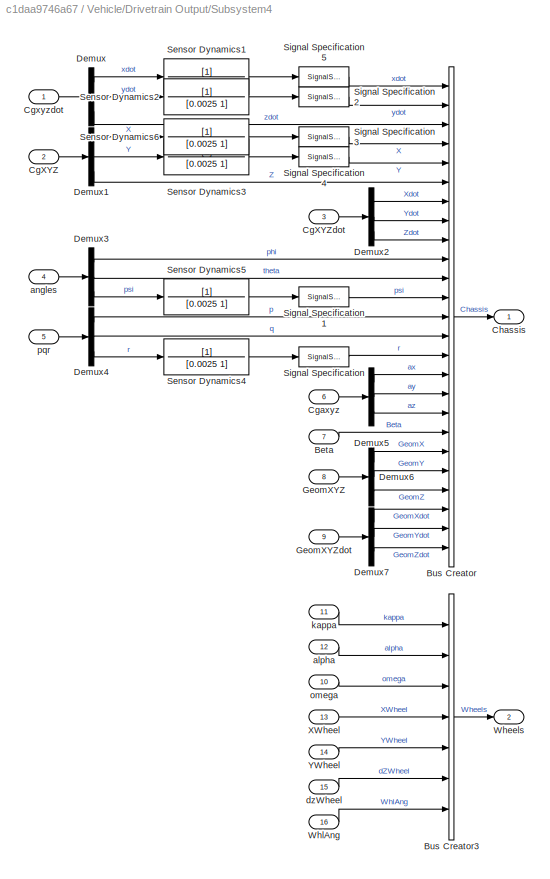
BLOCK [SubSystem] Vehicle/Drivetrain Output/Subsystem4
  Ports = [16, 2]
  RequestExecContextInheritance = off
BLOCK [Inport] Vehicle/Drivetrain Output/Subsystem4/Beta
  Port = 7
BLOCK [BusCreator] Vehicle/Drivetrain Output/Subsystem4/Bus Creator
  DisplayOption = bar
  InheritFromInputs = on
  Inputs = 25
  Ports = [25, 1]
BLOCK [BusCreator] Vehicle/Drivetrain Output/Subsystem4/Bus Creator3
  DisplayOption = bar
  InheritFromInputs = on
  Inputs = 7
  Ports = [7, 1]
BLOCK [Inport] Vehicle/Drivetrain Output/Subsystem4/CgXYZ
  Port = 2
BLOCK [Inport] Vehicle/Drivetrain Output/Subsystem4/CgXYZdot
  Port = 3
BLOCK [Inport] Vehicle/Drivetrain Output/Subsystem4/Cgaxyz
  Port = 6
BLOCK [Inport] Vehicle/Drivetrain Output/Subsystem4/Cgxyzdot
BLOCK [Outport] Vehicle/Drivetrain Output/Subsystem4/Chassis
  VectorParamsAs1DForOutWhenUnconnected = off
BLOCK [Demux] Vehicle/Drivetrain Output/Subsystem4/Demux
  Outputs = 3
  Ports = [1, 3]
BLOCK [Demux] Vehicle/Drivetrain Output/Subsystem4/Demux1
  Outputs = 3
  Ports = [1, 3]
BLOCK [Demux] Vehicle/Drivetrain Output/Subsystem4/Demux2
  Outputs = 3
  Ports = [1, 3]
BLOCK [Demux] Vehicle/Drivetrain Output/Subsystem4/Demux3
  Outputs = 3
  Ports = [1, 3]
BLOCK [Demux] Vehicle/Drivetrain Output/Subsystem4/Demux4
  Outputs = 3
  Ports = [1, 3]
BLOCK [Demux] Vehicle/Drivetrain Output/Subsystem4/Demux5
  Outputs = 3
  Ports = [1, 3]
BLOCK [Demux] Vehicle/Drivetrain Output/Subsystem4/Demux6
  Outputs = 3
  Ports = [1, 3]
BLOCK [Demux] Vehicle/Drivetrain Output/Subsystem4/Demux7
  Outputs = 3
  Ports = [1, 3]
BLOCK [Inport] Vehicle/Drivetrain Output/Subsystem4/GeomXYZ
  Port = 8
BLOCK [Inport] Vehicle/Drivetrain Output/Subsystem4/GeomXYZdot
  Port = 9
BLOCK [TransferFcn] Vehicle/Drivetrain Output/Subsystem4/Sensor Dynamics1
  Denominator = [0.0025 1]
BLOCK [TransferFcn] Vehicle/Drivetrain Output/Subsystem4/Sensor Dynamics2
  Denominator = [0.0025 1]
BLOCK [TransferFcn] Vehicle/Drivetrain Output/Subsystem4/Sensor Dynamics3
  Denominator = [0.0025 1]
BLOCK [TransferFcn] Vehicle/Drivetrain Output/Subsystem4/Sensor Dynamics4
  Denominator = [0.0025 1]
BLOCK [TransferFcn] Vehicle/Drivetrain Output/Subsystem4/Sensor Dynamics5
  Denominator = [0.0025 1]
BLOCK [TransferFcn] Vehicle/Drivetrain Output/Subsystem4/Sensor Dynamics6
  Denominator = [0.0025 1]
BLOCK [SignalSpecification] Vehicle/Drivetrain Output/Subsystem4/Signal Specification
  Unit = rad/s
BLOCK [SignalSpecification] Vehicle/Drivetrain Output/Subsystem4/Signal Specification1
  Unit = rad
BLOCK [SignalSpecification] Vehicle/Drivetrain Output/Subsystem4/Signal Specification2
  Unit = m/s
BLOCK [SignalSpecification] Vehicle/Drivetrain Output/Subsystem4/Signal Specification3
  Unit = m
BLOCK [SignalSpecification] Vehicle/Drivetrain Output/Subsystem4/Signal Specification4
  Unit = m
BLOCK [SignalSpecification] Vehicle/Drivetrain Output/Subsystem4/Signal Specification5
  Unit = m/s
BLOCK [Outport] Vehicle/Drivetrain Output/Subsystem4/Wheels
  Port = 2
  VectorParamsAs1DForOutWhenUnconnected = off
BLOCK [Inport] Vehicle/Drivetrain Output/Subsystem4/WhlAng
  Port = 16
BLOCK [Inport] Vehicle/Drivetrain Output/Subsystem4/XWheel
  Port = 13
BLOCK [Inport] Vehicle/Drivetrain Output/Subsystem4/YWheel
  Port = 14
BLOCK [Inport] Vehicle/Drivetrain Output/Subsystem4/alpha
  Port = 12
BLOCK [Inport] Vehicle/Drivetrain Output/Subsystem4/angles
  Port = 4
BLOCK [Inport] Vehicle/Drivetrain Output/Subsystem4/dzWheel
  Port = 15
BLOCK [Inport] Vehicle/Drivetrain Output/Subsystem4/kappa
  Port = 11
BLOCK [Inport] Vehicle/Drivetrain Output/Subsystem4/omega
  Port = 10
BLOCK [Inport] Vehicle/Drivetrain Output/Subsystem4/pqr
  Port = 5
BLOCK [Inport] Vehicle/Drivetrain Output/TransGear
  Port = 4
BLOCK [Outport] Vehicle/Drivetrain Output/VehFdbk
  VectorParamsAs1DForOutWhenUnconnected = off
BLOCK [Inport] Vehicle/Drivetrain Output/VehSpd
BLOCK [Inport] Vehicle/Drivetrain Output/WhlAng
  Port = 20
BLOCK [Inport] Vehicle/Drivetrain Output/XYWheel
  Port = 17
BLOCK [Inport] Vehicle/Drivetrain Output/YWheel
  Port = 18
BLOCK [Inport] Vehicle/Drivetrain Output/alpha
  Port = 16
BLOCK [Inport] Vehicle/Drivetrain Output/angles
  Port = 8
BLOCK [Inport] Vehicle/Drivetrain Output/dzWheel
  Port = 19
BLOCK [Inport] Vehicle/Drivetrain Output/kappa
  Port = 15
BLOCK [Inport] Vehicle/Drivetrain Output/omega
  Port = 14
BLOCK [Inport] Vehicle/Drivetrain Output/pqr
  Port = 9
BLOCK [SubSystem] Vehicle/Drivetrain Plant Input
  Ports = [3, 10]
  RequestExecContextInheritance = off
BLOCK [Outport] Vehicle/Drivetrain Plant Input/BrkCmd
  Port = 4
  VectorParamsAs1DForOutWhenUnconnected = off
BLOCK [BusSelector] Vehicle/Drivetrain Plant Input/Bus Selector
  OutputSignals = PtCtrl.BrkCmd,PtCtrl.GearCmd,Steer
  Ports = [1, 3]
BLOCK [BusSelector] Vehicle/Drivetrain Plant Input/Bus Selector1
  OutputSignals = MotTrqL,MotTrqR,MotTrqF
  Ports = [1, 3]
BLOCK [BusSelector] Vehicle/Drivetrain Plant Input/Bus Selector3
  OutputSignals = Grade,Wind,Gnd.z.G_FL_z,Gnd.z.G_FR_z,Gnd.z.G_RL_z,Gnd.z.G_RR_z,Gnd.mu.mu_FL,Gnd.mu.mu_FR,Gnd.mu.mu_RL,Gnd.mu.mu_RR
  Ports = [1, 10]
BLOCK [Inport] Vehicle/Drivetrain Plant Input/Ctrl
BLOCK [Inport] Vehicle/Drivetrain Plant Input/ElecFdbk
  Port = 2
BLOCK [Inport] Vehicle/Drivetrain Plant Input/Env
  Port = 3
BLOCK [FirstOrderHold] Vehicle/Drivetrain Plant Input/First Order Hold1
  ErrorTolerance = inf
BLOCK [FirstOrderHold] Vehicle/Drivetrain Plant Input/First Order Hold2
  ErrorTolerance = inf
BLOCK [FirstOrderHold] Vehicle/Drivetrain Plant Input/First Order Hold3
  ErrorTolerance = inf
BLOCK [Outport] Vehicle/Drivetrain Plant Input/Friction
  Port = 8
  VectorParamsAs1DForOutWhenUnconnected = off
BLOCK [Outport] Vehicle/Drivetrain Plant Input/GearCmd
  Port = 3
  VectorParamsAs1DForOutWhenUnconnected = off
BLOCK [Outport] Vehicle/Drivetrain Plant Input/Grade
  Port = 5
  VectorParamsAs1DForOutWhenUnconnected = off
BLOCK [Outport] Vehicle/Drivetrain Plant Input/Ground
  Port = 7
  VectorParamsAs1DForOutWhenUnconnected = off
BLOCK [Outport] Vehicle/Drivetrain Plant Input/MotTrqF
  Port = 10
  VectorParamsAs1DForOutWhenUnconnected = off
BLOCK [Outport] Vehicle/Drivetrain Plant Input/MotTrqL
  VectorParamsAs1DForOutWhenUnconnected = off
BLOCK [Outport] Vehicle/Drivetrain Plant Input/MotTrqR
  Port = 2
  VectorParamsAs1DForOutWhenUnconnected = off
BLOCK [Outport] Vehicle/Drivetrain Plant Input/SteerAngle
  Port = 9
  VectorParamsAs1DForOutWhenUnconnected = off
BLOCK [Concatenate] Vehicle/Drivetrain Plant Input/Vector Concatenate
  NumInputs = 4
  Ports = [4, 1]
BLOCK [Concatenate] Vehicle/Drivetrain Plant Input/Vector Concatenate1
  NumInputs = 4
  Ports = [4, 1]
BLOCK [Outport] Vehicle/Drivetrain Plant Input/WindVel
  Port = 6
  VectorParamsAs1DForOutWhenUnconnected = off
BLOCK [Outport] Vehicle/Drivetrain/ MotSpdL
  Port = 2
  VectorParamsAs1DForOutWhenUnconnected = off
BLOCK [Outport] Vehicle/Drivetrain/ MotSpdR
  Port = 3
  VectorParamsAs1DForOutWhenUnconnected = off
BLOCK [Outport] Vehicle/Drivetrain/ TransGear
  Port = 4
  VectorParamsAs1DForOutWhenUnconnected = off
BLOCK [Outport] Vehicle/Drivetrain/ VehSpd
  VectorParamsAs1DForOutWhenUnconnected = off
BLOCK [Outport] Vehicle/Drivetrain/Beta
  Port = 11
  VectorParamsAs1DForOutWhenUnconnected = off
BLOCK [Inport] Vehicle/Drivetrain/BrkCmd 
  Port = 4
BLOCK [Outport] Vehicle/Drivetrain/CgXYZ
  Port = 6
  VectorParamsAs1DForOutWhenUnconnected = off
BLOCK [Outport] Vehicle/Drivetrain/CgXYZdot
  Port = 7
  VectorParamsAs1DForOutWhenUnconnected = off
BLOCK [Outport] Vehicle/Drivetrain/Cgaxyz
  Port = 10
  VectorParamsAs1DForOutWhenUnconnected = off
BLOCK [Outport] Vehicle/Drivetrain/Cgxyzdot
  Port = 5
  VectorParamsAs1DForOutWhenUnconnected = off
BLOCK [ModelReference] Vehicle/Drivetrain/DrivetrainEv_3motor
  ModelNameDialog = DrivetrainEv_3motor_VDBS.slx
  ModelReferenceVersion = 1.562
  Ports = [8, 20]
  VariantControl = 2
BLOCK [Inport] Vehicle/Drivetrain/Friction
  Port = 8
BLOCK [Inport] Vehicle/Drivetrain/GearCmd 
  Port = 3
BLOCK [Outport] Vehicle/Drivetrain/GeomXYZ
  Port = 12
  VectorParamsAs1DForOutWhenUnconnected = off
BLOCK [Outport] Vehicle/Drivetrain/GeomXYZdot
  Port = 13
  VectorParamsAs1DForOutWhenUnconnected = off
BLOCK [Inport] Vehicle/Drivetrain/Grade
  Port = 5
BLOCK [Inport] Vehicle/Drivetrain/Ground
  Port = 7
BLOCK [Outport] Vehicle/Drivetrain/MotSpdF
  Port = 21
  VectorParamsAs1DForOutWhenUnconnected = off
BLOCK [Inport] Vehicle/Drivetrain/MotTrqF
  Port = 10
BLOCK [Inport] Vehicle/Drivetrain/MotTrqL 
BLOCK [Inport] Vehicle/Drivetrain/MotTrqR
  Port = 2
BLOCK [Inport] Vehicle/Drivetrain/SteerAngle
  Port = 9
BLOCK [Outport] Vehicle/Drivetrain/WhlAng
  Port = 20
  VectorParamsAs1DForOutWhenUnconnected = off
BLOCK [Inport] Vehicle/Drivetrain/WindVel
  Port = 6
BLOCK [Outport] Vehicle/Drivetrain/XWheel
  Port = 17
  VectorParamsAs1DForOutWhenUnconnected = off
BLOCK [Outport] Vehicle/Drivetrain/YWheel
  Port = 18
  VectorParamsAs1DForOutWhenUnconnected = off
BLOCK [Outport] Vehicle/Drivetrain/alpha
  Port = 16
  PortDimensions = 4
  VectorParamsAs1DForOutWhenUnconnected = off
BLOCK [Outport] Vehicle/Drivetrain/angles
  Port = 8
  VectorParamsAs1DForOutWhenUnconnected = off
BLOCK [Outport] Vehicle/Drivetrain/dzWheel
  Port = 19
  VectorParamsAs1DForOutWhenUnconnected = off
BLOCK [Outport] Vehicle/Drivetrain/kappa
  Port = 15
  PortDimensions = 4
  VectorParamsAs1DForOutWhenUnconnected = off
BLOCK [Outport] Vehicle/Drivetrain/omega
  Port = 14
  PortDimensions = 4
  VectorParamsAs1DForOutWhenUnconnected = off
BLOCK [Outport] Vehicle/Drivetrain/pqr
  Port = 9
  VectorParamsAs1DForOutWhenUnconnected = off
BLOCK [SubSystem] Vehicle/Electric Plant
  LabelModeActiveChoice = 1
  Ports = [7, 9]
  RequestExecContextInheritance = off
  Variant = on
  VariantControl = 1
  VariantControlMode = Label
BLOCK [SubSystem] Vehicle/Electric Plant Input
  Ports = [3, 7]
  RequestExecContextInheritance = off
BLOCK [Outport] Vehicle/Electric Plant Input/AmbTemp
  Port = 3
  VectorParamsAs1DForOutWhenUnconnected = off
BLOCK [BusSelector] Vehicle/Electric Plant Input/Bus Selector
  OutputSignals = PtCtrl.TorqueSplit,PtCtrl.MotTrqCmdF
  Ports = [1, 2]
BLOCK [BusSelector] Vehicle/Electric Plant Input/Bus Selector1
  OutputSignals = MotSpdL,MotSpdR,MotSpdF,VehSpd
  Ports = [1, 4]
BLOCK [BusSelector] Vehicle/Electric Plant Input/Bus Selector2
  OutputSignals = Temp
  Ports = [1, 1]
BLOCK [Inport] Vehicle/Electric Plant Input/Ctrl
BLOCK [Inport] Vehicle/Electric Plant Input/Env
  Port = 3
BLOCK [FirstOrderHold] Vehicle/Electric Plant Input/First Order Hold
  ErrorTolerance = inf
BLOCK [FirstOrderHold] Vehicle/Electric Plant Input/First Order Hold1
  ErrorTolerance = inf
BLOCK [Outport] Vehicle/Electric Plant Input/MotSpdF
  Port = 6
  VectorParamsAs1DForOutWhenUnconnected = off
BLOCK [Outport] Vehicle/Electric Plant Input/MotSpdL
  VectorParamsAs1DForOutWhenUnconnected = off
BLOCK [Outport] Vehicle/Electric Plant Input/MotSpdR
  Port = 2
  VectorParamsAs1DForOutWhenUnconnected = off
BLOCK [Outport] Vehicle/Electric Plant Input/MotTrqCmdF
  Port = 5
  VectorParamsAs1DForOutWhenUnconnected = off
BLOCK [Outport] Vehicle/Electric Plant Input/TorqueSplit
  Port = 4
  VectorParamsAs1DForOutWhenUnconnected = off
BLOCK [Inport] Vehicle/Electric Plant Input/VehFdbk
  Port = 2
BLOCK [Outport] Vehicle/Electric Plant Input/VehSpd
  Port = 7
  VectorParamsAs1DForOutWhenUnconnected = off
BLOCK [SubSystem] Vehicle/Electric Plant Output
  Ports = [9, 1]
  RequestExecContextInheritance = off
BLOCK [Inport] Vehicle/Electric Plant Output/BattCurr
  Port = 3
BLOCK [Inport] Vehicle/Electric Plant Output/BattPwr
  Port = 2
BLOCK [Inport] Vehicle/Electric Plant Output/BattSoc
BLOCK [Inport] Vehicle/Electric Plant Output/BattV
  Port = 8
BLOCK [BusCreator] Vehicle/Electric Plant Output/Bus Creator1
  DisplayOption = bar
  InheritFromInputs = on
  Inputs = 9
  Ports = [9, 1]
BLOCK [Outport] Vehicle/Electric Plant Output/ElecFdbk
  VectorParamsAs1DForOutWhenUnconnected = off
BLOCK [Inport] Vehicle/Electric Plant Output/MotPwrElec
  Port = 7
BLOCK [Inport] Vehicle/Electric Plant Output/MotPwrMech
  Port = 6
BLOCK [Inport] Vehicle/Electric Plant Output/MotTrqF
  Port = 9
BLOCK [Inport] Vehicle/Electric Plant Output/MotTrqL
  Port = 4
BLOCK [Inport] Vehicle/Electric Plant Output/MotTrqR
  Port = 5
BLOCK [SubSystem] Vehicle/Electric Plant/3 Motor EV Electric Plant
  Ports = [6, 9]
  RequestExecContextInheritance = off
  VariantControl = 1
BLOCK [Sum] Vehicle/Electric Plant/3 Motor EV Electric Plant/Add
  IconShape = rectangular
  Inputs = +++
  Ports = [3, 1]
BLOCK [Inport] Vehicle/Electric Plant/3 Motor EV Electric Plant/AmbTemp
  Port = 3
BLOCK [Outport] Vehicle/Electric Plant/3 Motor EV Electric Plant/BattCurr
  Port = 3
  VectorParamsAs1DForOutWhenUnconnected = off
BLOCK [Outport] Vehicle/Electric Plant/3 Motor EV Electric Plant/BattPwr
  Port = 2
  VectorParamsAs1DForOutWhenUnconnected = off
BLOCK [Outport] Vehicle/Electric Plant/3 Motor EV Electric Plant/BattSoc
  VectorParamsAs1DForOutWhenUnconnected = off
BLOCK [Outport] Vehicle/Electric Plant/3 Motor EV Electric Plant/BattV
  Port = 8
  VectorParamsAs1DForOutWhenUnconnected = off
BLOCK [SubSystem] Vehicle/Electric Plant/3 Motor EV Electric Plant/Battery
  LabelModeActiveChoice = 0
  Ports = [2, 2]
  RequestExecContextInheritance = off
  Variant = on
  VariantControl = Variant1
  VariantControlMode = Label
BLOCK [Outport] Vehicle/Electric Plant/3 Motor EV Electric Plant/Battery/BattSoc
  VectorParamsAs1DForOutWhenUnconnected = off
BLOCK [Inport] Vehicle/Electric Plant/3 Motor EV Electric Plant/Battery/BattTemp
  Port = 2
BLOCK [Outport] Vehicle/Electric Plant/3 Motor EV Electric Plant/Battery/BattV
  Port = 2
  VectorParamsAs1DForOutWhenUnconnected = off
BLOCK [ModelReference] Vehicle/Electric Plant/3 Motor EV Electric Plant/Battery/BatteryEv_3motor
  ModelNameDialog = BattEv_3motor.slx
  ModelReferenceVersion = 1.5656
  Ports = [2, 2]
  VariantControl = 0
BLOCK [Inport] Vehicle/Electric Plant/3 Motor EV Electric Plant/Battery/LdCurr
BLOCK [Outport] Vehicle/Electric Plant/3 Motor EV Electric Plant/MotPwrElecL
  Port = 7
  VectorParamsAs1DForOutWhenUnconnected = off
BLOCK [Outport] Vehicle/Electric Plant/3 Motor EV Electric Plant/MotPwrMechL
  Port = 6
  VectorParamsAs1DForOutWhenUnconnected = off
BLOCK [Inport] Vehicle/Electric Plant/3 Motor EV Electric Plant/MotSpdF
  Port = 6
BLOCK [Inport] Vehicle/Electric Plant/3 Motor EV Electric Plant/MotSpdL
BLOCK [Inport] Vehicle/Electric Plant/3 Motor EV Electric Plant/MotSpdR
  Port = 2
BLOCK [Inport] Vehicle/Electric Plant/3 Motor EV Electric Plant/MotTrqCmdF
  Port = 5
BLOCK [Outport] Vehicle/Electric Plant/3 Motor EV Electric Plant/MotTrqF
  Port = 9
  VectorParamsAs1DForOutWhenUnconnected = off
BLOCK [Outport] Vehicle/Electric Plant/3 Motor EV Electric Plant/MotTrqL
  Port = 4
  VectorParamsAs1DForOutWhenUnconnected = off
BLOCK [Outport] Vehicle/Electric Plant/3 Motor EV Electric Plant/MotTrqR
  Port = 5
  VectorParamsAs1DForOutWhenUnconnected = off
BLOCK [TransferFcn] Vehicle/Electric Plant/3 Motor EV Electric Plant/Motor Coupling Dynamics
  Denominator = [0.001 1]
BLOCK [TransferFcn] Vehicle/Electric Plant/3 Motor EV Electric Plant/Motor Coupling Dynamics1
  Denominator = [0.001 1]
BLOCK [TransferFcn] Vehicle/Electric Plant/3 Motor EV Electric Plant/Motor Coupling Dynamics2
  Denominator = [0.001 1]
BLOCK [SubSystem] Vehicle/Electric Plant/3 Motor EV Electric Plant/Motor Front
  LabelModeActiveChoice = 0
  Ports = [3, 2]
  RequestExecContextInheritance = off
  Variant = on
  VariantControlMode = Label
BLOCK [Inport] Vehicle/Electric Plant/3 Motor EV Electric Plant/Motor Front/BusVolt
  Port = 3
BLOCK [Outport] Vehicle/Electric Plant/3 Motor EV Electric Plant/Motor Front/MotCurr
  Port = 2
  VectorParamsAs1DForOutWhenUnconnected = off
BLOCK [ModelReference] Vehicle/Electric Plant/3 Motor EV Electric Plant/Motor Front/MotMapped_EV_Front
  ModelNameDialog = MotMapped_EV_Front.slx
  ModelReferenceVersion = 1.390
  Ports = [3, 2]
  VariantControl = 0
BLOCK [Inport] Vehicle/Electric Plant/3 Motor EV Electric Plant/Motor Front/MotSpd
  Port = 2
BLOCK [Outport] Vehicle/Electric Plant/3 Motor EV Electric Plant/Motor Front/MotTrq
  VectorParamsAs1DForOutWhenUnconnected = off
BLOCK [Inport] Vehicle/Electric Plant/3 Motor EV Electric Plant/Motor Front/MotTrqCmd
BLOCK [SubSystem] Vehicle/Electric Plant/3 Motor EV Electric Plant/Motor Rear Left
  LabelModeActiveChoice = 0
  Ports = [3, 2]
  RequestExecContextInheritance = off
  Variant = on
  VariantControlMode = Label
BLOCK [Inport] Vehicle/Electric Plant/3 Motor EV Electric Plant/Motor Rear Left/BusVolt
  Port = 3
BLOCK [Outport] Vehicle/Electric Plant/3 Motor EV Electric Plant/Motor Rear Left/MotCurr
  Port = 2
  VectorParamsAs1DForOutWhenUnconnected = off
BLOCK [ModelReference] Vehicle/Electric Plant/3 Motor EV Electric Plant/Motor Rear Left/MotMapped_EV_Rear
  ModelNameDialog = MotMapped_EV_Rear.slx
  ModelReferenceVersion = 1.391
  Ports = [3, 2]
  VariantControl = 0
BLOCK [Inport] Vehicle/Electric Plant/3 Motor EV Electric Plant/Motor Rear Left/MotSpd
  Port = 2
BLOCK [Outport] Vehicle/Electric Plant/3 Motor EV Electric Plant/Motor Rear Left/MotTrq
  VectorParamsAs1DForOutWhenUnconnected = off
BLOCK [Inport] Vehicle/Electric Plant/3 Motor EV Electric Plant/Motor Rear Left/MotTrqCmd
BLOCK [SubSystem] Vehicle/Electric Plant/3 Motor EV Electric Plant/Motor Rear Right
  LabelModeActiveChoice = 0
  Ports = [3, 2]
  RequestExecContextInheritance = off
  Variant = on
  VariantControlMode = Label
BLOCK [Inport] Vehicle/Electric Plant/3 Motor EV Electric Plant/Motor Rear Right/BusVolt
  Port = 3
BLOCK [Outport] Vehicle/Electric Plant/3 Motor EV Electric Plant/Motor Rear Right/MotCurr
  Port = 2
  VectorParamsAs1DForOutWhenUnconnected = off
BLOCK [ModelReference] Vehicle/Electric Plant/3 Motor EV Electric Plant/Motor Rear Right/MotMapped_EV_Rear
  ModelNameDialog = MotMapped_EV_Rear.slx
  ModelReferenceVersion = 1.391
  Ports = [3, 2]
  VariantControl = 0
BLOCK [Inport] Vehicle/Electric Plant/3 Motor EV Electric Plant/Motor Rear Right/MotSpd
  Port = 2
BLOCK [Outport] Vehicle/Electric Plant/3 Motor EV Electric Plant/Motor Rear Right/MotTrq
  VectorParamsAs1DForOutWhenUnconnected = off
BLOCK [Inport] Vehicle/Electric Plant/3 Motor EV Electric Plant/Motor Rear Right/MotTrqCmd
BLOCK [Product] Vehicle/Electric Plant/3 Motor EV Electric Plant/Product2
  Ports = [2, 1]
BLOCK [Product] Vehicle/Electric Plant/3 Motor EV Electric Plant/Product3
  Ports = [2, 1]
BLOCK [Product] Vehicle/Electric Plant/3 Motor EV Electric Plant/Product4
  Ports = [2, 1]
BLOCK [SubSystem] Vehicle/Electric Plant/3 Motor EV Electric Plant/Subsystem1
  Ports = [1, 2]
  RequestExecContextInheritance = off
BLOCK [Demux] Vehicle/Electric Plant/3 Motor EV Electric Plant/Subsystem1/Demux
  Outputs = 2
  Ports = [1, 2]
BLOCK [Outport] Vehicle/Electric Plant/3 Motor EV Electric Plant/Subsystem1/MotTQ_L
  VectorParamsAs1DForOutWhenUnconnected = off
BLOCK [Outport] Vehicle/Electric Plant/3 Motor EV Electric Plant/Subsystem1/MotTQ_R
  Port = 2
  VectorParamsAs1DForOutWhenUnconnected = off
BLOCK [Inport] Vehicle/Electric Plant/3 Motor EV Electric Plant/Subsystem1/TorqueSplit
BLOCK [Inport] Vehicle/Electric Plant/3 Motor EV Electric Plant/TorqueSplit
  Port = 4
BLOCK [Inport] Vehicle/Electric Plant/AmbTemp
  Port = 3
BLOCK [Outport] Vehicle/Electric Plant/BattCurr
  Port = 3
BLOCK [Outport] Vehicle/Electric Plant/BattPwr
  Port = 2
BLOCK [Outport] Vehicle/Electric Plant/BattSoc
BLOCK [Outport] Vehicle/Electric Plant/BattV
  Port = 8
BLOCK [Outport] Vehicle/Electric Plant/MotPwrElecL
  Port = 7
BLOCK [Outport] Vehicle/Electric Plant/MotPwrMechL
  Port = 6
BLOCK [Inport] Vehicle/Electric Plant/MotSpdF
  Port = 6
BLOCK [Inport] Vehicle/Electric Plant/MotSpdL
BLOCK [Inport] Vehicle/Electric Plant/MotSpdR
  Port = 2
BLOCK [Inport] Vehicle/Electric Plant/MotTrqCmdF
  Port = 5
BLOCK [Outport] Vehicle/Electric Plant/MotTrqF
  Port = 9
BLOCK [Outport] Vehicle/Electric Plant/MotTrqL
  Port = 4
BLOCK [Outport] Vehicle/Electric Plant/MotTrqR
  Port = 5
BLOCK [Inport] Vehicle/Electric Plant/TorqueSplit
  Port = 4
BLOCK [Inport] Vehicle/Electric Plant/VehSpd
  Port = 7
BLOCK [Inport] Vehicle/Env
  Port = 2
BLOCK [From] Vehicle/From
  GotoTag = ElecFdbk
BLOCK [From] Vehicle/From11
  GotoTag = Ctrl
BLOCK [From] Vehicle/From12
  GotoTag = VehFdbk
BLOCK [From] Vehicle/From13
  GotoTag = Env
BLOCK [From] Vehicle/From15
  GotoTag = Env
BLOCK [From] Vehicle/From4
  GotoTag = Ctrl
BLOCK [From] Vehicle/From5
  GotoTag = ElecFdbk
BLOCK [From] Vehicle/From6
  GotoTag = VehFdbk
BLOCK [Goto] Vehicle/Goto
  GotoTag = VehFdbk
BLOCK [Goto] Vehicle/Goto1
  GotoTag = Ctrl
BLOCK [Goto] Vehicle/Goto2
  GotoTag = Env
BLOCK [Goto] Vehicle/Goto4
  GotoTag = ElecFdbk
BLOCK [Outport] Vehicle/VehPlnt
  VectorParamsAs1DForOutWhenUnconnected = off
BLOCK [SubSystem] Visualization
  LabelModeActiveChoice = 2
  Ports = [4]
  RequestExecContextInheritance = off
  Variant = on
  VariantControlMode = Label
BLOCK [Inport] Visualization/Ctrl
  Port = 3
BLOCK [Inport] Visualization/Drv
  Port = 2
BLOCK [Inport] Visualization/VehFdbk
  Port = 4
BLOCK [Inport] Visualization/Vis
BLOCK [SubSystem] Visualization/Visualization_Lat
  Ports = [4]
  RequestExecContextInheritance = off
  VariantControl = 2
BLOCK [LinearGaugeBlock] Visualization/Visualization_Lat/Acceleration Cmd
  LabelPosition = Hide
  ScaleMax = 1
  TickInterval = 0.20000000000000001
BLOCK [LinearGaugeBlock] Visualization/Visualization_Lat/Brake Cmd
  LabelPosition = Hide
  ScaleMax = 1
  TickInterval = 0.20000000000000001
BLOCK [BusSelector] Visualization/Visualization_Lat/Bus Selector
  OutputSignals = Veh.Body.xdot,Veh.Body.ay,Veh.TransGear
  Ports = [1, 3]
BLOCK [BusSelector] Visualization/Visualization_Lat/Bus Selector1
  OutputSignals = PtCtrl.PRNDL_State,PtCtrl.MotTrqCmd,PtCtrl.MotTrqCmdF
  Ports = [1, 3]
BLOCK [BusSelector] Visualization/Visualization_Lat/Bus Selector2
  OutputSignals = Accel,Decel,SteerCmd
  Ports = [1, 3]
BLOCK [Inport] Visualization/Visualization_Lat/Ctrl
  Port = 3
BLOCK [Inport] Visualization/Visualization_Lat/Drv
  Port = 2
BLOCK [CircularGaugeBlock] Visualization/Visualization_Lat/Engine Tach [rpm]
  LabelPosition = Hide
  ScaleMax = 8000
  TickInterval = 1000
BLOCK [DisplayBlock] Visualization/Visualization_Lat/Gear Cmd
  Format = short
  LabelPosition = Hide
  Transparency = 1
BLOCK [SemiCircularGaugeBlock] Visualization/Visualization_Lat/Handwheel Angle [deg]
  LabelPosition = Hide
  ScaleMax = 300
  ScaleMin = -300
  TickInterval = 60
BLOCK [SubSystem] Visualization/Visualization_Lat/ISO 15037-1:2006
  AttributesFormatString = %<Measurement>
  LabelModeActiveChoice = 0
  Ports = [2]
  RequestExecContextInheritance = off
  StopFcn = switch get_param(gcb,'Measurement')\n    case 'Enabled'\n       p=slproject.getCurrentProject;\n       projectRoot=p.RootFolder;\n       SySFolder=fullfile(projectRoot, 'System');\n       Simulink.sdi.loadView([SySFolder filesep 'ISO15037_1_2006E.mldatx']);\n       Simulink.sdi.view;\nend
  Variant = on
  VariantControlMode = Label
BLOCK [Inport] Visualization/Visualization_Lat/ISO 15037-1:2006/Cntrl
  Port = 2
BLOCK [SubSystem] Visualization/Visualization_Lat/ISO 15037-1:2006/Disabled
  Ports = [2]
  RequestExecContextInheritance = off
  VariantControl = 0
BLOCK [Inport] Visualization/Visualization_Lat/ISO 15037-1:2006/Disabled/Cntrl
  Port = 2
BLOCK [Terminator] Visualization/Visualization_Lat/ISO 15037-1:2006/Disabled/Terminator
BLOCK [Terminator] Visualization/Visualization_Lat/ISO 15037-1:2006/Disabled/Terminator1
BLOCK [Inport] Visualization/Visualization_Lat/ISO 15037-1:2006/Disabled/VehFdbk
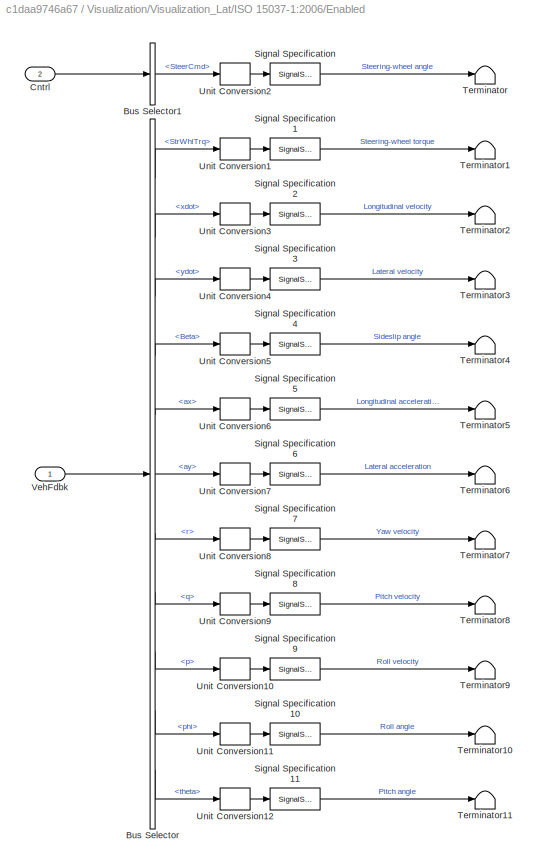
BLOCK [SubSystem] Visualization/Visualization_Lat/ISO 15037-1:2006/Enabled
  Ports = [2]
  RequestExecContextInheritance = off
  VariantControl = 1
BLOCK [BusSelector] Visualization/Visualization_Lat/ISO 15037-1:2006/Enabled/Bus Selector
  OutputSignals = Steering.StrWhlTrq,Body.xdot,Body.ydot,Body.Beta,Body.ax,Body.ay,Body.r,Body.q,Body.p,Body.phi,Body.theta
  Ports = [1, 11]
BLOCK [BusSelector] Visualization/Visualization_Lat/ISO 15037-1:2006/Enabled/Bus Selector1
  OutputSignals = SteerCmd
  Ports = [1, 1]
BLOCK [Inport] Visualization/Visualization_Lat/ISO 15037-1:2006/Enabled/Cntrl
  Port = 2
BLOCK [SignalSpecification] Visualization/Visualization_Lat/ISO 15037-1:2006/Enabled/Signal Specification
  Unit = deg
BLOCK [SignalSpecification] Visualization/Visualization_Lat/ISO 15037-1:2006/Enabled/Signal Specification1
  Unit = N*m
BLOCK [SignalSpecification] Visualization/Visualization_Lat/ISO 15037-1:2006/Enabled/Signal Specification10
  Unit = deg
BLOCK [SignalSpecification] Visualization/Visualization_Lat/ISO 15037-1:2006/Enabled/Signal Specification11
  Unit = deg
BLOCK [SignalSpecification] Visualization/Visualization_Lat/ISO 15037-1:2006/Enabled/Signal Specification2
  Unit = km/h
BLOCK [SignalSpecification] Visualization/Visualization_Lat/ISO 15037-1:2006/Enabled/Signal Specification3
  Unit = m/s
BLOCK [SignalSpecification] Visualization/Visualization_Lat/ISO 15037-1:2006/Enabled/Signal Specification4
  Unit = deg
BLOCK [SignalSpecification] Visualization/Visualization_Lat/ISO 15037-1:2006/Enabled/Signal Specification5
  Unit = m/s^2
BLOCK [SignalSpecification] Visualization/Visualization_Lat/ISO 15037-1:2006/Enabled/Signal Specification6
  Unit = m/s^2
BLOCK [SignalSpecification] Visualization/Visualization_Lat/ISO 15037-1:2006/Enabled/Signal Specification7
  Unit = deg/s
BLOCK [SignalSpecification] Visualization/Visualization_Lat/ISO 15037-1:2006/Enabled/Signal Specification8
  Unit = deg/s
BLOCK [SignalSpecification] Visualization/Visualization_Lat/ISO 15037-1:2006/Enabled/Signal Specification9
  Unit = deg/s
BLOCK [Terminator] Visualization/Visualization_Lat/ISO 15037-1:2006/Enabled/Terminator
BLOCK [Terminator] Visualization/Visualization_Lat/ISO 15037-1:2006/Enabled/Terminator1
BLOCK [Terminator] Visualization/Visualization_Lat/ISO 15037-1:2006/Enabled/Terminator10
BLOCK [Terminator] Visualization/Visualization_Lat/ISO 15037-1:2006/Enabled/Terminator11
BLOCK [Terminator] Visualization/Visualization_Lat/ISO 15037-1:2006/Enabled/Terminator2
BLOCK [Terminator] Visualization/Visualization_Lat/ISO 15037-1:2006/Enabled/Terminator3
BLOCK [Terminator] Visualization/Visualization_Lat/ISO 15037-1:2006/Enabled/Terminator4
BLOCK [Terminator] Visualization/Visualization_Lat/ISO 15037-1:2006/Enabled/Terminator5
BLOCK [Terminator] Visualization/Visualization_Lat/ISO 15037-1:2006/Enabled/Terminator6
BLOCK [Terminator] Visualization/Visualization_Lat/ISO 15037-1:2006/Enabled/Terminator7
BLOCK [Terminator] Visualization/Visualization_Lat/ISO 15037-1:2006/Enabled/Terminator8
BLOCK [Terminator] Visualization/Visualization_Lat/ISO 15037-1:2006/Enabled/Terminator9
BLOCK [UnitConversion] Visualization/Visualization_Lat/ISO 15037-1:2006/Enabled/Unit Conversion1
BLOCK [UnitConversion] Visualization/Visualization_Lat/ISO 15037-1:2006/Enabled/Unit Conversion10
BLOCK [UnitConversion] Visualization/Visualization_Lat/ISO 15037-1:2006/Enabled/Unit Conversion11
BLOCK [UnitConversion] Visualization/Visualization_Lat/ISO 15037-1:2006/Enabled/Unit Conversion12
BLOCK [UnitConversion] Visualization/Visualization_Lat/ISO 15037-1:2006/Enabled/Unit Conversion2
BLOCK [UnitConversion] Visualization/Visualization_Lat/ISO 15037-1:2006/Enabled/Unit Conversion3
BLOCK [UnitConversion] Visualization/Visualization_Lat/ISO 15037-1:2006/Enabled/Unit Conversion4
BLOCK [UnitConversion] Visualization/Visualization_Lat/ISO 15037-1:2006/Enabled/Unit Conversion5
BLOCK [UnitConversion] Visualization/Visualization_Lat/ISO 15037-1:2006/Enabled/Unit Conversion6
BLOCK [UnitConversion] Visualization/Visualization_Lat/ISO 15037-1:2006/Enabled/Unit Conversion7
BLOCK [UnitConversion] Visualization/Visualization_Lat/ISO 15037-1:2006/Enabled/Unit Conversion8
BLOCK [UnitConversion] Visualization/Visualization_Lat/ISO 15037-1:2006/Enabled/Unit Conversion9
BLOCK [Inport] Visualization/Visualization_Lat/ISO 15037-1:2006/Enabled/VehFdbk
BLOCK [Inport] Visualization/Visualization_Lat/ISO 15037-1:2006/VehFdbk
BLOCK [SemiCircularGaugeBlock] Visualization/Visualization_Lat/Lateral Acceleration [g]
  LabelPosition = Hide
  ScaleMax = 1
  ScaleMin = -1
  TickInterval = 0.5
BLOCK [SubSystem] Visualization/Visualization_Lat/MATLAB Function
  ErrorFcn = Stateflow.Translate.translate
  PermitHierarchicalResolution = ExplicitOnly
  Ports = [1, 1]
  RequestExecContextInheritance = off
  SFBlockType = MATLAB Function
  TreatAsAtomicUnit = on
BLOCK [Demux] Visualization/Visualization_Lat/MATLAB Function/ Demux 
  Outputs = 1
  Ports = [1, 1]
BLOCK [S-Function] Visualization/Visualization_Lat/MATLAB Function/ SFunction 
  EnableBusSupport = on
  FunctionName = sf_sfun
  PortCounts = [1 2]
  Ports = [1, 2]
  SFcnIsStateOwnerBlock = off
  SFunctionDeploymentMode = off
  Tag = Stateflow S-Function 1
BLOCK [Terminator] Visualization/Visualization_Lat/MATLAB Function/ Terminator 
BLOCK [Inport] Visualization/Visualization_Lat/MATLAB Function/u
BLOCK [Outport] Visualization/Visualization_Lat/MATLAB Function/y
BLOCK [DisplayBlock] Visualization/Visualization_Lat/PRNDL
  Format = short
  LabelPosition = Hide
  Transparency = 1
BLOCK [RateTransition] Visualization/Visualization_Lat/Rate Transition1
  Deterministic = off
  OutPortSampleTime = .1
BLOCK [RateTransition] Visualization/Visualization_Lat/Rate Transition2
  Deterministic = off
  OutPortSampleTime = .1
BLOCK [RateTransition] Visualization/Visualization_Lat/Rate Transition3
  Deterministic = off
  OutPortSampleTime = .1
BLOCK [Rounding] Visualization/Visualization_Lat/Round
  Operator = round
BLOCK [SubSystem] Visualization/Visualization_Lat/Scope Type
  LabelModeActiveChoice = 1
  Ports = [3, 1]
  RequestExecContextInheritance = off
  Variant = on
  VariantControl = Variant1
  VariantControlMode = Label
BLOCK [Outport] Visualization/Visualization_Lat/Scope Type/ Ref
  VectorParamsAs1DForOutWhenUnconnected = off
BLOCK [Inport] Visualization/Visualization_Lat/Scope Type/Cntrl
  Port = 2
BLOCK [SubSystem] Visualization/Visualization_Lat/Scope Type/DLC
  Ports = [2, 1]
  RequestExecContextInheritance = off
  VariantControl = 1
BLOCK [BusCreator] Visualization/Visualization_Lat/Scope Type/DLC/Bus Creator
  DisplayOption = bar
  InheritFromInputs = on
  Inputs = 3
  Ports = [3, 1]
BLOCK [BusSelector] Visualization/Visualization_Lat/Scope Type/DLC/Bus Selector3
  OutputSignals = Veh.Body.Y,Veh.Body.X,Veh.Body.Z
  Ports = [1, 3]
BLOCK [BusSelector] Visualization/Visualization_Lat/Scope Type/DLC/Bus Selector4
  OutputSignals = UB,LB,LtrlRef
  Ports = [1, 3]
BLOCK [Scope] Visualization/Visualization_Lat/Scope Type/DLC/Lane Change
  Commented = on
  Floating = off
  NumInputPorts = 1
  Ports = [1]
  ScopeSpecificationString = Simulink.scopes.TimeScopeBlockCfg('CurrentConfiguration', extmgr.ConfigurationSet(extmgr.Configuration('Core','General UI',true,'FigureColor',[0.501960784313725 0.501960784313725 0.501960784313725]),extmgr.Configuration('Core','Source UI',true),extmgr.Configuration('Sources','WiredSimulink',true,'DataLoggingVariableName','ScopeData1','DataLoggingSaveFormat','Array','DataLoggingDecimation','1','Dat...<+2959ch>
BLOCK [Mux] Visualization/Visualization_Lat/Scope Type/DLC/Mux1
  Commented = on
  DisplayOption = bar
  Ports = [4, 1]
BLOCK [Outport] Visualization/Visualization_Lat/Scope Type/DLC/Ref
  VectorParamsAs1DForOutWhenUnconnected = off
BLOCK [SignalConversion] Visualization/Visualization_Lat/Scope Type/DLC/Signal Copy
  OverrideOpt = off
BLOCK [SignalConversion] Visualization/Visualization_Lat/Scope Type/DLC/Signal Copy1
  OverrideOpt = off
BLOCK [SignalConversion] Visualization/Visualization_Lat/Scope Type/DLC/Signal Copy2
  OverrideOpt = off
BLOCK [Inport] Visualization/Visualization_Lat/Scope Type/DLC/VehFdbk
BLOCK [Inport] Visualization/Visualization_Lat/Scope Type/DLC/Vis
  Port = 2
BLOCK [SubSystem] Visualization/Visualization_Lat/Scope Type/None
  Ports = [3, 1]
  RequestExecContextInheritance = off
  VariantControl = 0
BLOCK [BusSelector] Visualization/Visualization_Lat/Scope Type/None/Bus Selector1
  OutputSignals = SteerCmd
  Ports = [1, 1]
BLOCK [BusSelector] Visualization/Visualization_Lat/Scope Type/None/Bus Selector9
  OutputSignals = Veh.Body.r
  Ports = [1, 1]
BLOCK [Inport] Visualization/Visualization_Lat/Scope Type/None/Cntrl
  Port = 3
BLOCK [Outport] Visualization/Visualization_Lat/Scope Type/None/Ref
  VectorParamsAs1DForOutWhenUnconnected = off
BLOCK [SignalSpecification] Visualization/Visualization_Lat/Scope Type/None/Signal Specification3
  Unit = deg/s
BLOCK [UnitConversion] Visualization/Visualization_Lat/Scope Type/None/Unit Conversion4
BLOCK [Inport] Visualization/Visualization_Lat/Scope Type/None/VehFdbk
BLOCK [Inport] Visualization/Visualization_Lat/Scope Type/None/Vis
  Port = 2
BLOCK [Scope] Visualization/Visualization_Lat/Scope Type/None/Yaw Rate and Steer
  Floating = off
  NumInputPorts = 2
  Ports = [2]
  ScopeSpecificationString = Simulink.scopes.TimeScopeBlockCfg('CurrentConfiguration', extmgr.ConfigurationSet(extmgr.Configuration('Core','General UI',true),extmgr.Configuration('Core','Source UI',true),extmgr.Configuration('Sources','WiredSimulink',true,'DataLoggingVariableName','ScopeData1'),extmgr.Configuration('Visuals','Time Domain',true,'SerializedDisplays',{struct('MinYLimReal','-112.49987','MaxYLimReal','112.49996','...<+1461ch>
BLOCK [Inport] Visualization/Visualization_Lat/Scope Type/VehFdbk 
BLOCK [Inport] Visualization/Visualization_Lat/Scope Type/Vis 
  Port = 3
BLOCK [SubSystem] Visualization/Visualization_Lat/Scope Type/XYZ
  Ports = [2, 1]
  RequestExecContextInheritance = off
  VariantControl = 2
BLOCK [Outport] Visualization/Visualization_Lat/Scope Type/XYZ/Ref
  VectorParamsAs1DForOutWhenUnconnected = off
BLOCK [Terminator] Visualization/Visualization_Lat/Scope Type/XYZ/Terminator
BLOCK [Inport] Visualization/Visualization_Lat/Scope Type/XYZ/VehFdbk
BLOCK [Inport] Visualization/Visualization_Lat/Scope Type/XYZ/Vis
  Port = 2
BLOCK [SignalSpecification] Visualization/Visualization_Lat/Signal Specification
  Unit = deg
BLOCK [SignalSpecification] Visualization/Visualization_Lat/Signal Specification1
  Unit = mph
BLOCK [CircularGaugeBlock] Visualization/Visualization_Lat/Speed [mph]
  LabelPosition = Hide
  TickInterval = 10
BLOCK [Reference] Visualization/Visualization_Lat/Steer vs Ay  REF=simulink/Sinks/XY Graph
  Commented = on
  Ports = [2]
  SourceBlock = simulink/Sinks/XY Graph
  SourceProductBaseCode = SL
  SourceType = XY scope.
BLOCK [Scope] Visualization/Visualization_Lat/Steer, Velocity, Lat Accel
  Floating = off
  NumInputPorts = 3
  Ports = [3]
  ScopeSpecificationString = Simulink.scopes.TimeScopeBlockCfg('CurrentConfiguration', extmgr.ConfigurationSet(extmgr.Configuration('Core','General UI',true),extmgr.Configuration('Core','Source UI',true),extmgr.Configuration('Sources','WiredSimulink',true),extmgr.Configuration('Visuals','Time Domain',true,'SerializedDisplays',{struct('MinYLimReal','-445.5','MaxYLimReal','445.5','YLabelReal','','MinYLimMag',' 0.00000','MaxYLim...<+2731ch>
BLOCK [Terminator] Visualization/Visualization_Lat/Terminator
BLOCK [Terminator] Visualization/Visualization_Lat/Terminator1
BLOCK [Terminator] Visualization/Visualization_Lat/Terminator2
BLOCK [Terminator] Visualization/Visualization_Lat/Terminator4
BLOCK [Terminator] Visualization/Visualization_Lat/Terminator5
BLOCK [Terminator] Visualization/Visualization_Lat/Terminator7
BLOCK [Terminator] Visualization/Visualization_Lat/Terminator8
BLOCK [ToWorkspace] Visualization/Visualization_Lat/To Workspace
  Commented = on
  FixptAsFi = on
  MaxDataPoints = inf
  Ports = [1]
  SampleTime = -1
  SaveFormat = Timeseries
  VariableName = ay
BLOCK [UnitConversion] Visualization/Visualization_Lat/Unit Conversion1
BLOCK [UnitConversion] Visualization/Visualization_Lat/Unit Conversion2
BLOCK [Inport] Visualization/Visualization_Lat/VehFdbk
  Port = 4
BLOCK [SubSystem] Visualization/Visualization_Lat/Vehicle XY Plotter
  LabelModeActiveChoice = 1
  Ports = [2]
  RequestExecContextInheritance = off
  Variant = on
  VariantControl = Variant1
  VariantControlMode = Label
BLOCK [Inport] Visualization/Visualization_Lat/Vehicle XY Plotter/Ref 
  Port = 2
BLOCK [Inport] Visualization/Visualization_Lat/Vehicle XY Plotter/VehFdbk 
BLOCK [SubSystem] Visualization/Visualization_Lat/Vehicle XY Plotter/XY View
  Ports = [1]
  RequestExecContextInheritance = off
  VariantControl = 0
BLOCK [SubSystem] Visualization/Visualization_Lat/Vehicle XY Plotter/XY View Ref
  Ports = [2]
  RequestExecContextInheritance = off
  VariantControl = 1
BLOCK [BusSelector] Visualization/Visualization_Lat/Vehicle XY Plotter/XY View Ref/Bus Selector1
  OutputAsBus = on
  OutputSignals = Veh.Body.phi,Veh.Body.theta,Veh.Body.psi
  Ports = [1, 1]
BLOCK [BusSelector] Visualization/Visualization_Lat/Vehicle XY Plotter/XY View Ref/Bus Selector5
  OutputAsBus = on
  OutputSignals = Veh.Wheels.WhlAng
  Ports = [1, 1]
BLOCK [BusSelector] Visualization/Visualization_Lat/Vehicle XY Plotter/XY View Ref/Bus Selector6
  OutputAsBus = on
  OutputSignals = Veh.Body.GeomX,Veh.Body.GeomY,Veh.Body.GeomZ
  Ports = [1, 1]
BLOCK [BusSelector] Visualization/Visualization_Lat/Vehicle XY Plotter/XY View Ref/Bus Selector7
  OutputAsBus = on
  OutputSignals = Veh.Body.GeomXdot,Veh.Body.GeomYdot,Veh.Body.GeomZdot
  Ports = [1, 1]
BLOCK [BusSelector] Visualization/Visualization_Lat/Vehicle XY Plotter/XY View Ref/Bus Selector8
  OutputAsBus = on
  OutputSignals = XRef,YRef,ZRef
  Ports = [1, 1]
BLOCK [BusToVector] Visualization/Visualization_Lat/Vehicle XY Plotter/XY View Ref/Bus to Vector
BLOCK [BusToVector] Visualization/Visualization_Lat/Vehicle XY Plotter/XY View Ref/Bus to Vector1
BLOCK [BusToVector] Visualization/Visualization_Lat/Vehicle XY Plotter/XY View Ref/Bus to Vector2
BLOCK [BusToVector] Visualization/Visualization_Lat/Vehicle XY Plotter/XY View Ref/Bus to Vector3
BLOCK [Inport] Visualization/Visualization_Lat/Vehicle XY Plotter/XY View Ref/Ref
  Port = 2
BLOCK [Inport] Visualization/Visualization_Lat/Vehicle XY Plotter/XY View Ref/VehFdbk
BLOCK [SubSystem] Visualization/Visualization_Lat/Vehicle XY Plotter/XY View Ref/Vehicle XY Plotter
  Ports = [5]
  RequestExecContextInheritance = off
BLOCK [Inport] Visualization/Visualization_Lat/Vehicle XY Plotter/XY View Ref/Vehicle XY Plotter/InertAng
  Port = 2
BLOCK [Inport] Visualization/Visualization_Lat/Vehicle XY Plotter/XY View Ref/Vehicle XY Plotter/InertXYZ
BLOCK [Inport] Visualization/Visualization_Lat/Vehicle XY Plotter/XY View Ref/Vehicle XY Plotter/InertXdotYdotZdot
  Port = 3
BLOCK [RateTransition] Visualization/Visualization_Lat/Vehicle XY Plotter/XY View Ref/Vehicle XY Plotter/Rate Transition1
  Deterministic = off
  OutPortSampleTime = pltDT
BLOCK [RateTransition] Visualization/Visualization_Lat/Vehicle XY Plotter/XY View Ref/Vehicle XY Plotter/Rate Transition2
  Deterministic = off
  OutPortSampleTime = pltDT
BLOCK [RateTransition] Visualization/Visualization_Lat/Vehicle XY Plotter/XY View Ref/Vehicle XY Plotter/Rate Transition3
  Deterministic = off
  OutPortSampleTime = pltDT
BLOCK [RateTransition] Visualization/Visualization_Lat/Vehicle XY Plotter/XY View Ref/Vehicle XY Plotter/Rate Transition4
  Deterministic = off
  OutPortSampleTime = pltDT
BLOCK [RateTransition] Visualization/Visualization_Lat/Vehicle XY Plotter/XY View Ref/Vehicle XY Plotter/Rate Transition5
  Deterministic = off
  OutPortSampleTime = pltDT
BLOCK [Inport] Visualization/Visualization_Lat/Vehicle XY Plotter/XY View Ref/Vehicle XY Plotter/RefXYZ
  Port = 5
BLOCK [Reference] Visualization/Visualization_Lat/Vehicle XY Plotter/XY View Ref/Vehicle XY Plotter/Vehicle XY Plotter  REF=vehdynlibviscommon/Vehicle XY Plotter
  Ports = [5]
  SourceBlock = vehdynlibviscommon/Vehicle XY Plotter
  SourceProductBaseCode = VE
  SourceType = Vehicle XY Plotter
BLOCK [Inport] Visualization/Visualization_Lat/Vehicle XY Plotter/XY View Ref/Vehicle XY Plotter/delta
  Port = 4
BLOCK [BusSelector] Visualization/Visualization_Lat/Vehicle XY Plotter/XY View/Bus Selector1
  OutputAsBus = on
  OutputSignals = Veh.Body.phi,Veh.Body.theta,Veh.Body.psi
  Ports = [1, 1]
BLOCK [BusSelector] Visualization/Visualization_Lat/Vehicle XY Plotter/XY View/Bus Selector5
  OutputAsBus = on
  OutputSignals = Veh.Wheels.WhlAng
  Ports = [1, 1]
BLOCK [BusSelector] Visualization/Visualization_Lat/Vehicle XY Plotter/XY View/Bus Selector6
  OutputAsBus = on
  OutputSignals = Veh.Body.GeomX,Veh.Body.GeomY,Veh.Body.GeomZ
  Ports = [1, 1]
BLOCK [BusSelector] Visualization/Visualization_Lat/Vehicle XY Plotter/XY View/Bus Selector7
  OutputAsBus = on
  OutputSignals = Veh.Body.GeomXdot,Veh.Body.GeomYdot,Veh.Body.GeomZdot
  Ports = [1, 1]
BLOCK [BusToVector] Visualization/Visualization_Lat/Vehicle XY Plotter/XY View/Bus to Vector
BLOCK [BusToVector] Visualization/Visualization_Lat/Vehicle XY Plotter/XY View/Bus to Vector1
BLOCK [BusToVector] Visualization/Visualization_Lat/Vehicle XY Plotter/XY View/Bus to Vector2
BLOCK [Inport] Visualization/Visualization_Lat/Vehicle XY Plotter/XY View/VehFdbk
BLOCK [SubSystem] Visualization/Visualization_Lat/Vehicle XY Plotter/XY View/Vehicle XY Plotter
  Ports = [4]
  RequestExecContextInheritance = off
BLOCK [Inport] Visualization/Visualization_Lat/Vehicle XY Plotter/XY View/Vehicle XY Plotter/InertAng
  Port = 2
BLOCK [Inport] Visualization/Visualization_Lat/Vehicle XY Plotter/XY View/Vehicle XY Plotter/InertXYZ
BLOCK [Inport] Visualization/Visualization_Lat/Vehicle XY Plotter/XY View/Vehicle XY Plotter/InertXdotYdotZdot
  Port = 3
BLOCK [RateTransition] Visualization/Visualization_Lat/Vehicle XY Plotter/XY View/Vehicle XY Plotter/Rate Transition1
  Deterministic = off
  OutPortSampleTime = pltDT
BLOCK [RateTransition] Visualization/Visualization_Lat/Vehicle XY Plotter/XY View/Vehicle XY Plotter/Rate Transition2
  Deterministic = off
  OutPortSampleTime = pltDT
BLOCK [RateTransition] Visualization/Visualization_Lat/Vehicle XY Plotter/XY View/Vehicle XY Plotter/Rate Transition3
  Deterministic = off
  OutPortSampleTime = pltDT
BLOCK [RateTransition] Visualization/Visualization_Lat/Vehicle XY Plotter/XY View/Vehicle XY Plotter/Rate Transition4
  Deterministic = off
  OutPortSampleTime = pltDT
BLOCK [RateTransition] Visualization/Visualization_Lat/Vehicle XY Plotter/XY View/Vehicle XY Plotter/Rate Transition5
  Deterministic = off
  OutPortSampleTime = pltDT
BLOCK [Ground] Visualization/Visualization_Lat/Vehicle XY Plotter/XY View/Vehicle XY Plotter/RefXYZ Ground
BLOCK [Reference] Visualization/Visualization_Lat/Vehicle XY Plotter/XY View/Vehicle XY Plotter/Vehicle XY Plotter  REF=vehdynlibviscommon/Vehicle XY Plotter
  Ports = [5]
  SourceBlock = vehdynlibviscommon/Vehicle XY Plotter
  SourceProductBaseCode = VE
  SourceType = Vehicle XY Plotter
BLOCK [Inport] Visualization/Visualization_Lat/Vehicle XY Plotter/XY View/Vehicle XY Plotter/delta
  Port = 4
BLOCK [Inport] Visualization/Visualization_Lat/Vis
ANNOTATION (root): <copyright redacted>
ANNOTATION Driver/Lateral Ref + DRV/Driver Commands/Driver Commands/Longitudinal Driver: Balance = 0 Charge = 1 Driving = 2
ANNOTATION Driver/Lateral Ref + DRV/Driver Commands/Driver Commands/Longitudinal Driver/Optional Stationary Charging: Setup for FTP75, allow charging between 1490-1860 secs when vehicle is stopped
ANNOTATION Driver/Lateral Ref + DRV/Driver Commands/Driver Commands/Open Loop - F310 Gamepad: Balance = 0 Charge = 1 Driving = 2
ANNOTATION Driver/Lateral Ref + DRV/Driver Commands/Driver Commands/Open Loop - F310 Gamepad/Subsystem1: Low Pass Filter the inputs
ANNOTATION Driver/Lateral Ref + DRV/Driver Commands/Driver Commands/Open Loop - F310 Gamepad/Subsystem1: Acceleration and Braking Controlled by Right Joystick Y Axis [-1, 0] maps to [max accel, no accel] [0, 1] maps to [no braking, max braking]
ANNOTATION Driver/Lateral Ref + DRV/Driver Commands/Driver Commands/Open Loop - F310 Gamepad/Subsystem1: Map Acceleration Signal from [-1, 0] To [1 0]
ANNOTATION Driver/Lateral Ref + DRV/Driver Commands/Driver Commands/Open Loop - F310 Gamepad/Subsystem1: Map Braking Signal from [0, 1] To [0, 1] This is an optional step for symetry with the acceleration signal and allows a placeholder for applying a different mapping function
ANNOTATION Driver/Lateral Ref + DRV/Driver Commands/Driver Commands/Open Loop - F310 Gamepad/Subsystem1: Steering angle from Left Joystick X axis range = [-1, 1]
ANNOTATION Driver/Lateral Ref + DRV/Driver Commands/Driver Commands/Open Loop - G29 Steering Wheel and Pedals: Balance = 0 Charge = 1 Driving = 2
ANNOTATION Driver/Lateral Ref + DRV/Driver Commands/Driver Commands/Predictive Driver: Balance = 0 Charge = 1 Driving = 2
ANNOTATION Driver/Lateral Ref + DRV/Driver Commands/Driver Commands/Predictive Driver/Optional Stationary Charging: Setup for FTP75, allow charging between 1490-1860 secs when vehicle is stopped
ANNOTATION Driver/Lateral Ref + DRV/Reference Generator/3D Engine: 1) Add Subsystem or Model blocks as valid variant choices. 2) You cannot connect blocks at this level. At simulation, connectivity is automatically determined, based on the active variant and port name matching.
ANNOTATION Environment: Only use grade for Longitudinal studies. Use the ground displacements for lateral simulations
ANNOTATION Visualization/Visualization_Lat: Driver Commands
ANNOTATION Visualization/Visualization_Lat: Vehicle Response
LINE Controllers/Bus Creator:1 -> Controllers/Ctrl:1
LINE Controllers/From11:1 -> Controllers/PCM Input:1
LINE Controllers/From1:1 -> Controllers/Bus Creator:1
LINE Controllers/From2:1 -> Controllers/Bus Creator:2
LINE Controllers/From4:1 -> Controllers/Bus Creator:3
LINE Controllers/From9:1 -> Controllers/PCM Input:2
LINE Controllers/OpCmds:1 -> Controllers/Goto1:1
LINE Controllers/PCM Input/Bus Selector2:1 -> Controllers/PCM Input/VehSpdFdbk（车速）:1
LINE Controllers/PCM Input/Bus Selector2:2 -> Controllers/PCM Input/BattSoc（电池的剩余电量）:1
LINE Controllers/PCM Input/Bus Selector2:3 -> Controllers/PCM Input/BattPwr（Power）:1
LINE Controllers/PCM Input/Bus Selector2:4 -> Controllers/PCM Input/MotSpd（电机转速？）:1
LINE Controllers/PCM Input/Bus Selector2:5 -> Controllers/PCM Input/BattV（电池电压）:1
LINE Controllers/PCM Input/Bus Selector2:6 -> Controllers/PCM Input/TransGear（变速箱）:1
LINE Controllers/PCM Input/Bus Selector2:7 -> Controllers/PCM Input/r:1
LINE Controllers/PCM Input/Bus Selector2:8 -> Controllers/PCM Input/WhlAng:1
LINE Controllers/PCM Input/Bus Selector2:9 -> Controllers/PCM Input/MotSpdF:1
LINE Controllers/PCM Input/Bus Selector3:1 -> Controllers/PCM Input/ScnInf（方案信息）:1
LINE Controllers/PCM Input/Bus Selector3:2 -> Controllers/PCM Input/LaneInf（车道信息）:1
LINE Controllers/PCM Input/Bus Selector5:1 -> Controllers/PCM Input/AccelPdl（加速器）:1
LINE Controllers/PCM Input/Bus Selector5:10 -> Controllers/PCM Input/UpshiftReq（升档要求）:1
LINE Controllers/PCM Input/Bus Selector5:2 -> Controllers/PCM Input/DecelPdl（减速器）:1
LINE Controllers/PCM Input/Bus Selector5:3 -> Controllers/PCM Input/Chrg（充电？）:1
LINE Controllers/PCM Input/Bus Selector5:4 -> Controllers/PCM Input/AccEnb（自适应巡航使能）:1
LINE Controllers/PCM Input/Bus Selector5:5 -> Controllers/PCM Input/Steer（转向）:1
LINE Controllers/PCM Input/Bus Selector5:6 -> Controllers/PCM Input/PRNDL_forward（档位_前）:1
LINE Controllers/PCM Input/Bus Selector5:7 -> Controllers/PCM Input/PRNDL_back（档位_后）:1
LINE Controllers/PCM Input/Bus Selector5:8 -> Controllers/PCM Input/ManualShift（手动换挡）:1
LINE Controllers/PCM Input/Bus Selector5:9 -> Controllers/PCM Input/DownshiftReq（降档要求）:1
LINE Controllers/PCM Input/OpCmds:1 -> Controllers/PCM Input/Bus Selector5:1
NET Controllers/PCM Input/Sensors:1 -> Controllers/PCM Input/Bus Selector2:1, Controllers/PCM Input/Bus Selector3:1
LINE Controllers/PCM Input:1 -> Controllers/Powertrain Control Module (PCM):1
LINE Controllers/PCM Input:10 -> Controllers/Powertrain Control Module (PCM):10
NET Controllers/PCM Input:11 -> Controllers/Goto6:1, Controllers/Powertrain Control Module (PCM):11
LINE Controllers/PCM Input:12 -> Controllers/Powertrain Control Module (PCM):12
LINE Controllers/PCM Input:13 -> Controllers/Powertrain Control Module (PCM):13
LINE Controllers/PCM Input:14 -> Controllers/Powertrain Control Module (PCM):14
LINE Controllers/PCM Input:15 -> Controllers/Powertrain Control Module (PCM):15
LINE Controllers/PCM Input:16 -> Controllers/Powertrain Control Module (PCM):16
LINE Controllers/PCM Input:17 -> Controllers/Powertrain Control Module (PCM):17
LINE Controllers/PCM Input:18 -> Controllers/Powertrain Control Module (PCM):18
LINE Controllers/PCM Input:19 -> Controllers/Terminator:1
LINE Controllers/PCM Input:2 -> Controllers/Powertrain Control Module (PCM):2
LINE Controllers/PCM Input:20 -> Controllers/Terminator1:1
LINE Controllers/PCM Input:21 -> Controllers/Terminator2:1
LINE Controllers/PCM Input:3 -> Controllers/Powertrain Control Module (PCM):3
LINE Controllers/PCM Input:4 -> Controllers/Powertrain Control Module (PCM):4
LINE Controllers/PCM Input:5 -> Controllers/Powertrain Control Module (PCM):5
LINE Controllers/PCM Input:6 -> Controllers/Powertrain Control Module (PCM):6
LINE Controllers/PCM Input:7 -> Controllers/Powertrain Control Module (PCM):7
LINE Controllers/PCM Input:8 -> Controllers/Powertrain Control Module (PCM):8
LINE Controllers/PCM Input:9 -> Controllers/Powertrain Control Module (PCM):9
LINE Controllers/PCM Output/BrkCmd:1 -> Controllers/PCM Output/Bus Creator1:2
LINE Controllers/PCM Output/Bus Creator1:1 -> Controllers/PCM Output/PtCtrl:1
LINE Controllers/PCM Output/GearCmd:1 -> Controllers/PCM Output/Bus Creator1:3
LINE Controllers/PCM Output/MotTrqCmd:1 -> Controllers/PCM Output/Bus Creator1:1
LINE Controllers/PCM Output/MotTrqCmdF:1 -> Controllers/PCM Output/Bus Creator1:6
LINE Controllers/PCM Output/PRNDL_State:1 -> Controllers/PCM Output/Bus Creator1:7
LINE Controllers/PCM Output/TorqueSplit:1 -> Controllers/PCM Output/Bus Creator1:4
LINE Controllers/PCM Output/WhlTrqCmd:1 -> Controllers/PCM Output/Bus Creator1:5
LINE Controllers/PCM Output:1 -> Controllers/Goto5:1
NET Controllers/Powertrain Control Module (PCM)/AccelPdl:1 -> Controllers/Powertrain Control Module (PCM)/Powertrain Control Module (PCM):1, Controllers/Powertrain Control Module (PCM)/Transmission Control Module (TCM):2
LINE Controllers/Powertrain Control Module (PCM)/BattPwr:1 -> Controllers/Powertrain Control Module (PCM)/Powertrain Control Module (PCM):5
NET Controllers/Powertrain Control Module (PCM)/BattSoc:1 -> Controllers/Powertrain Control Module (PCM)/Goto5:1, Controllers/Powertrain Control Module (PCM)/Powertrain Control Module (PCM):4
LINE Controllers/Powertrain Control Module (PCM)/BattV:1 -> Controllers/Powertrain Control Module (PCM)/Powertrain Control Module (PCM):8
LINE Controllers/Powertrain Control Module (PCM)/Chrg:1 -> Controllers/Powertrain Control Module (PCM)/Powertrain Control Module (PCM):7
NET Controllers/Powertrain Control Module (PCM)/DecelPdl:1 -> Controllers/Powertrain Control Module (PCM)/Goto2:1, Controllers/Powertrain Control Module (PCM)/Powertrain Control Module (PCM):2
LINE Controllers/Powertrain Control Module (PCM)/DownshiftReq:1 -> Controllers/Powertrain Control Module (PCM)/Transmission Control Module (TCM):7
LINE Controllers/Powertrain Control Module (PCM)/From1:1 -> Controllers/Powertrain Control Module (PCM)/Transmission Control Module (TCM):3
LINE Controllers/Powertrain Control Module (PCM)/From2:1 -> Controllers/Powertrain Control Module (PCM)/Torque Vectoring Control:7
LINE Controllers/Powertrain Control Module (PCM)/From3:1 -> Controllers/Powertrain Control Module (PCM)/Torque Vectoring Control:5
LINE Controllers/Powertrain Control Module (PCM)/From4:1 -> Controllers/Powertrain Control Module (PCM)/Torque Vectoring Control:3
LINE Controllers/Powertrain Control Module (PCM)/From5:1 -> Controllers/Powertrain Control Module (PCM)/Powertrain Control Module (PCM):11
LINE Controllers/Powertrain Control Module (PCM)/ManualShift:1 -> Controllers/Powertrain Control Module (PCM)/Transmission Control Module (TCM):6
NET Controllers/Powertrain Control Module (PCM)/MotSpd:1 -> Controllers/Powertrain Control Module (PCM)/Goto3:1, Controllers/Powertrain Control Module (PCM)/Powertrain Control Module (PCM):6
LINE Controllers/Powertrain Control Module (PCM)/MotSpdF:1 -> Controllers/Powertrain Control Module (PCM)/Powertrain Control Module (PCM):10
LINE Controllers/Powertrain Control Module (PCM)/PRNDL_back:1 -> Controllers/Powertrain Control Module (PCM)/Transmission Control Module (TCM):5
LINE Controllers/Powertrain Control Module (PCM)/PRNDL_forward:1 -> Controllers/Powertrain Control Module (PCM)/Transmission Control Module (TCM):4
NET Controllers/Powertrain Control Module (PCM)/Powertrain Control Module (PCM):1 -> Controllers/Powertrain Control Module (PCM)/Goto:1, Controllers/Powertrain Control Module (PCM)/MotTrqCmd:1, Controllers/Powertrain Control Module (PCM)/Torque Vectoring Control:1
LINE Controllers/Powertrain Control Module (PCM)/Powertrain Control Module (PCM):2 -> Controllers/Powertrain Control Module (PCM)/BrkCmd:1
LINE Controllers/Powertrain Control Module (PCM)/Powertrain Control Module (PCM):3 -> Controllers/Powertrain Control Module (PCM)/WhlTrqCmd:1
LINE Controllers/Powertrain Control Module (PCM)/Powertrain Control Module (PCM):4 -> Controllers/Powertrain Control Module (PCM)/MotTrqCmdF:1
LINE Controllers/Powertrain Control Module (PCM)/Steer:1 -> Controllers/Powertrain Control Module (PCM)/Torque Vectoring Control:6
LINE Controllers/Powertrain Control Module (PCM)/Torque Vectoring Control:1 -> Controllers/Powertrain Control Module (PCM)/TorqueSplit1:1
LINE Controllers/Powertrain Control Module (PCM)/TransGear:1 -> Controllers/Powertrain Control Module (PCM)/Powertrain Control Module (PCM):9
LINE Controllers/Powertrain Control Module (PCM)/Transmission Control Module (TCM):1 -> Controllers/Powertrain Control Module (PCM)/GearCmd:1
NET Controllers/Powertrain Control Module (PCM)/Transmission Control Module (TCM):2 -> Controllers/Powertrain Control Module (PCM)/Goto1:1, Controllers/Powertrain Control Module (PCM)/PRNDL_State:1
LINE Controllers/Powertrain Control Module (PCM)/UpshiftReq:1 -> Controllers/Powertrain Control Module (PCM)/Transmission Control Module (TCM):8
NET Controllers/Powertrain Control Module (PCM)/VehSpdFdbk:1 -> Controllers/Powertrain Control Module (PCM)/Goto4:1, Controllers/Powertrain Control Module (PCM)/Powertrain Control Module (PCM):3, Controllers/Powertrain Control Module (PCM)/Transmission Control Module (TCM):1
LINE Controllers/Powertrain Control Module (PCM)/WhlAng:1 -> Controllers/Powertrain Control Module (PCM)/Torque Vectoring Control:4
LINE Controllers/Powertrain Control Module (PCM)/r:1 -> Controllers/Powertrain Control Module (PCM)/Torque Vectoring Control:2
LINE Controllers/Powertrain Control Module (PCM):1 -> Controllers/PCM Output:1
LINE Controllers/Powertrain Control Module (PCM):2 -> Controllers/PCM Output:2
LINE Controllers/Powertrain Control Module (PCM):3 -> Controllers/PCM Output:3
LINE Controllers/Powertrain Control Module (PCM):4 -> Controllers/PCM Output:4
LINE Controllers/Powertrain Control Module (PCM):5 -> Controllers/PCM Output:5
LINE Controllers/Powertrain Control Module (PCM):6 -> Controllers/PCM Output:6
LINE Controllers/Powertrain Control Module (PCM):7 -> Controllers/PCM Output:7
LINE Controllers/VehPlnt:1 -> Controllers/Goto2:1
NET Controllers:1 -> Vehicle:1, Visualization:3
LINE Driver/Lateral Ref + DRV/Driver Commands/AccelGround:1 -> Driver/Lateral Ref + DRV/Driver Commands/Driver Commands:4
LINE Driver/Lateral Ref + DRV/Driver Commands/BrakeGround:1 -> Driver/Lateral Ref + DRV/Driver Commands/Driver Commands:5
LINE Driver/Lateral Ref + DRV/Driver Commands/Driver Commands/Longitudinal Driver/Bus Creator1:1 -> Driver/Lateral Ref + DRV/Driver Commands/Driver Commands/Longitudinal Driver/Driver:1
LINE Driver/Lateral Ref + DRV/Driver Commands/Driver Commands/Longitudinal Driver/Bus Selector1:1 -> Driver/Lateral Ref + DRV/Driver Commands/Driver Commands/Longitudinal Driver/Unit Conversion:1
LINE Driver/Lateral Ref + DRV/Driver Commands/Driver Commands/Longitudinal Driver/Bus Selector1:2 -> Driver/Lateral Ref + DRV/Driver Commands/Driver Commands/Longitudinal Driver/Longitudinal Driver:1
LINE Driver/Lateral Ref + DRV/Driver Commands/Driver Commands/Longitudinal Driver/Bus Selector:1 -> Driver/Lateral Ref + DRV/Driver Commands/Driver Commands/Longitudinal Driver/Dead Zone:1
LINE Driver/Lateral Ref + DRV/Driver Commands/Driver Commands/Longitudinal Driver/Constant5:1 -> Driver/Lateral Ref + DRV/Driver Commands/Driver Commands/Longitudinal Driver/Manual Switch:1
LINE Driver/Lateral Ref + DRV/Driver Commands/Driver Commands/Longitudinal Driver/Constant6:1 -> Driver/Lateral Ref + DRV/Driver Commands/Driver Commands/Longitudinal Driver/Manual Switch1:1
LINE Driver/Lateral Ref + DRV/Driver Commands/Driver Commands/Longitudinal Driver/Constant7:1 -> Driver/Lateral Ref + DRV/Driver Commands/Driver Commands/Longitudinal Driver/Manual Switch1:2
LINE Driver/Lateral Ref + DRV/Driver Commands/Driver Commands/Longitudinal Driver/Data Type Conversion:1 -> Driver/Lateral Ref + DRV/Driver Commands/Driver Commands/Longitudinal Driver/Manual Switch:2
LINE Driver/Lateral Ref + DRV/Driver Commands/Driver Commands/Longitudinal Driver/Dead Zone:1 -> Driver/Lateral Ref + DRV/Driver Commands/Driver Commands/Longitudinal Driver/Longitudinal Driver:2
LINE Driver/Lateral Ref + DRV/Driver Commands/Driver Commands/Longitudinal Driver/Enumerated Constant:1 -> Driver/Lateral Ref + DRV/Driver Commands/Driver Commands/Longitudinal Driver/Bus Creator1:9
LINE Driver/Lateral Ref + DRV/Driver Commands/Driver Commands/Longitudinal Driver/Ground:1 -> Driver/Lateral Ref + DRV/Driver Commands/Driver Commands/Longitudinal Driver/Longitudinal Driver:3
LINE Driver/Lateral Ref + DRV/Driver Commands/Driver Commands/Longitudinal Driver/Ignition Switch Profile1:1 -> Driver/Lateral Ref + DRV/Driver Commands/Driver Commands/Longitudinal Driver/Data Type Conversion:1
LINE Driver/Lateral Ref + DRV/Driver Commands/Driver Commands/Longitudinal Driver/Longitudinal Driver:1 -> Driver/Lateral Ref + DRV/Driver Commands/Driver Commands/Longitudinal Driver/Terminator3:1
LINE Driver/Lateral Ref + DRV/Driver Commands/Driver Commands/Longitudinal Driver/Longitudinal Driver:2 -> Driver/Lateral Ref + DRV/Driver Commands/Driver Commands/Longitudinal Driver/Bus Creator1:2
LINE Driver/Lateral Ref + DRV/Driver Commands/Driver Commands/Longitudinal Driver/Longitudinal Driver:3 -> Driver/Lateral Ref + DRV/Driver Commands/Driver Commands/Longitudinal Driver/Bus Creator1:3
LINE Driver/Lateral Ref + DRV/Driver Commands/Driver Commands/Longitudinal Driver/Longitudinal Driver:4 -> Driver/Lateral Ref + DRV/Driver Commands/Driver Commands/Longitudinal Driver/Bus Creator1:4
LINE Driver/Lateral Ref + DRV/Driver Commands/Driver Commands/Longitudinal Driver/Manual Switch1:1 -> Driver/Lateral Ref + DRV/Driver Commands/Driver Commands/Longitudinal Driver/Bus Creator1:5
LINE Driver/Lateral Ref + DRV/Driver Commands/Driver Commands/Longitudinal Driver/Manual Switch:1 -> Driver/Lateral Ref + DRV/Driver Commands/Driver Commands/Longitudinal Driver/Bus Creator1:6
LINE Driver/Lateral Ref + DRV/Driver Commands/Driver Commands/Longitudinal Driver/Optional Stationary Charging/Charge Profile:1 -> Driver/Lateral Ref + DRV/Driver Commands/Driver Commands/Longitudinal Driver/Optional Stationary Charging/Data Type Conversion1:1
LINE Driver/Lateral Ref + DRV/Driver Commands/Driver Commands/Longitudinal Driver/Optional Stationary Charging/Constant1:1 -> Driver/Lateral Ref + DRV/Driver Commands/Driver Commands/Longitudinal Driver/Optional Stationary Charging/Manual Switch1:1
LINE Driver/Lateral Ref + DRV/Driver Commands/Driver Commands/Longitudinal Driver/Optional Stationary Charging/Data Type Conversion1:1 -> Driver/Lateral Ref + DRV/Driver Commands/Driver Commands/Longitudinal Driver/Optional Stationary Charging/Manual Switch1:2
LINE Driver/Lateral Ref + DRV/Driver Commands/Driver Commands/Longitudinal Driver/Optional Stationary Charging/Manual Switch1:1 -> Driver/Lateral Ref + DRV/Driver Commands/Driver Commands/Longitudinal Driver/Optional Stationary Charging/Charge:1
LINE Driver/Lateral Ref + DRV/Driver Commands/Driver Commands/Longitudinal Driver/Optional Stationary Charging:1 -> Driver/Lateral Ref + DRV/Driver Commands/Driver Commands/Longitudinal Driver/Bus Creator1:7
LINE Driver/Lateral Ref + DRV/Driver Commands/Driver Commands/Longitudinal Driver/Signal Specification3:1 -> Driver/Lateral Ref + DRV/Driver Commands/Driver Commands/Longitudinal Driver/Bus Creator1:1
LINE Driver/Lateral Ref + DRV/Driver Commands/Driver Commands/Longitudinal Driver/Subsystem1/Bus Creator:1 -> Driver/Lateral Ref + DRV/Driver Commands/Driver Commands/Longitudinal Driver/Subsystem1/ShiftCmd:1
LINE Driver/Lateral Ref + DRV/Driver Commands/Driver Commands/Longitudinal Driver/Subsystem1/Ground1:1 -> Driver/Lateral Ref + DRV/Driver Commands/Driver Commands/Longitudinal Driver/Subsystem1/Bus Creator:1
LINE Driver/Lateral Ref + DRV/Driver Commands/Driver Commands/Longitudinal Driver/Subsystem1/Ground2:1 -> Driver/Lateral Ref + DRV/Driver Commands/Driver Commands/Longitudinal Driver/Subsystem1/Bus Creator:2
LINE Driver/Lateral Ref + DRV/Driver Commands/Driver Commands/Longitudinal Driver/Subsystem1/Ground4:1 -> Driver/Lateral Ref + DRV/Driver Commands/Driver Commands/Longitudinal Driver/Subsystem1/Bus Creator:3
LINE Driver/Lateral Ref + DRV/Driver Commands/Driver Commands/Longitudinal Driver/Subsystem1/Ground5:1 -> Driver/Lateral Ref + DRV/Driver Commands/Driver Commands/Longitudinal Driver/Subsystem1/Bus Creator:4
LINE Driver/Lateral Ref + DRV/Driver Commands/Driver Commands/Longitudinal Driver/Subsystem1/Ground6:1 -> Driver/Lateral Ref + DRV/Driver Commands/Driver Commands/Longitudinal Driver/Subsystem1/Bus Creator:5
LINE Driver/Lateral Ref + DRV/Driver Commands/Driver Commands/Longitudinal Driver/Subsystem1:1 -> Driver/Lateral Ref + DRV/Driver Commands/Driver Commands/Longitudinal Driver/Bus Creator1:8
LINE Driver/Lateral Ref + DRV/Driver Commands/Driver Commands/Longitudinal Driver/Unit Conversion:1 -> Driver/Lateral Ref + DRV/Driver Commands/Driver Commands/Longitudinal Driver/Signal Specification3:1
LINE Driver/Lateral Ref + DRV/Driver Commands/Driver Commands/Longitudinal Driver/VehFdbk:1 -> Driver/Lateral Ref + DRV/Driver Commands/Driver Commands/Longitudinal Driver/Bus Selector:1
LINE Driver/Lateral Ref + DRV/Driver Commands/Driver Commands/Longitudinal Driver/VehRef:1 -> Driver/Lateral Ref + DRV/Driver Commands/Driver Commands/Longitudinal Driver/Bus Selector1:1
LINE Driver/Lateral Ref + DRV/Driver Commands/Driver Commands/Open Loop - F310 Gamepad/Bus Creator1:1 -> Driver/Lateral Ref + DRV/Driver Commands/Driver Commands/Open Loop - F310 Gamepad/Driver:1
LINE Driver/Lateral Ref + DRV/Driver Commands/Driver Commands/Open Loop - F310 Gamepad/Enumerated Constant:1 -> Driver/Lateral Ref + DRV/Driver Commands/Driver Commands/Open Loop - F310 Gamepad/Bus Creator1:10
LINE Driver/Lateral Ref + DRV/Driver Commands/Driver Commands/Open Loop - F310 Gamepad/Ground1:1 -> Driver/Lateral Ref + DRV/Driver Commands/Driver Commands/Open Loop - F310 Gamepad/Bus Creator1:3
LINE Driver/Lateral Ref + DRV/Driver Commands/Driver Commands/Open Loop - F310 Gamepad/Ground2:1 -> Driver/Lateral Ref + DRV/Driver Commands/Driver Commands/Open Loop - F310 Gamepad/Bus Creator1:2
LINE Driver/Lateral Ref + DRV/Driver Commands/Driver Commands/Open Loop - F310 Gamepad/Ground3:1 -> Driver/Lateral Ref + DRV/Driver Commands/Driver Commands/Open Loop - F310 Gamepad/Bus Creator1:1
LINE Driver/Lateral Ref + DRV/Driver Commands/Driver Commands/Open Loop - F310 Gamepad/Ground:1 -> Driver/Lateral Ref + DRV/Driver Commands/Driver Commands/Open Loop - F310 Gamepad/Bus Creator1:4
LINE Driver/Lateral Ref + DRV/Driver Commands/Driver Commands/Open Loop - F310 Gamepad/Joystick Input:1 -> Driver/Lateral Ref + DRV/Driver Commands/Driver Commands/Open Loop - F310 Gamepad/Subsystem1:2
LINE Driver/Lateral Ref + DRV/Driver Commands/Driver Commands/Open Loop - F310 Gamepad/Joystick Input:2 -> Driver/Lateral Ref + DRV/Driver Commands/Driver Commands/Open Loop - F310 Gamepad/Subsystem:1
LINE Driver/Lateral Ref + DRV/Driver Commands/Driver Commands/Open Loop - F310 Gamepad/Subsystem/Bus Creator:1 -> Driver/Lateral Ref + DRV/Driver Commands/Driver Commands/Open Loop - F310 Gamepad/Subsystem/ShiftCmd:1
LINE Driver/Lateral Ref + DRV/Driver Commands/Driver Commands/Open Loop - F310 Gamepad/Subsystem/Data Type Conversion1:1 -> Driver/Lateral Ref + DRV/Driver Commands/Driver Commands/Open Loop - F310 Gamepad/Subsystem/Bus Creator:2
LINE Driver/Lateral Ref + DRV/Driver Commands/Driver Commands/Open Loop - F310 Gamepad/Subsystem/Data Type Conversion4:1 -> Driver/Lateral Ref + DRV/Driver Commands/Driver Commands/Open Loop - F310 Gamepad/Subsystem/Bus Creator:3
LINE Driver/Lateral Ref + DRV/Driver Commands/Driver Commands/Open Loop - F310 Gamepad/Subsystem/Data Type Conversion5:1 -> Driver/Lateral Ref + DRV/Driver Commands/Driver Commands/Open Loop - F310 Gamepad/Subsystem/Bus Creator:4
LINE Driver/Lateral Ref + DRV/Driver Commands/Driver Commands/Open Loop - F310 Gamepad/Subsystem/Data Type Conversion6:1 -> Driver/Lateral Ref + DRV/Driver Commands/Driver Commands/Open Loop - F310 Gamepad/Subsystem/Bus Creator:5
LINE Driver/Lateral Ref + DRV/Driver Commands/Driver Commands/Open Loop - F310 Gamepad/Subsystem/Data Type Conversion:1 -> Driver/Lateral Ref + DRV/Driver Commands/Driver Commands/Open Loop - F310 Gamepad/Subsystem/Bus Creator:1
LINE Driver/Lateral Ref + DRV/Driver Commands/Driver Commands/Open Loop - F310 Gamepad/Subsystem/Demux1:1 -> Driver/Lateral Ref + DRV/Driver Commands/Driver Commands/Open Loop - F310 Gamepad/Subsystem/Data Type Conversion5:1
LINE Driver/Lateral Ref + DRV/Driver Commands/Driver Commands/Open Loop - F310 Gamepad/Subsystem/Demux1:2 -> Driver/Lateral Ref + DRV/Driver Commands/Driver Commands/Open Loop - F310 Gamepad/Subsystem/Data Type Conversion6:1
LINE Driver/Lateral Ref + DRV/Driver Commands/Driver Commands/Open Loop - F310 Gamepad/Subsystem/Demux2:1 -> Driver/Lateral Ref + DRV/Driver Commands/Driver Commands/Open Loop - F310 Gamepad/Subsystem/Data Type Conversion:1
LINE Driver/Lateral Ref + DRV/Driver Commands/Driver Commands/Open Loop - F310 Gamepad/Subsystem/Demux2:2 -> Driver/Lateral Ref + DRV/Driver Commands/Driver Commands/Open Loop - F310 Gamepad/Subsystem/Data Type Conversion1:1
NET Driver/Lateral Ref + DRV/Driver Commands/Driver Commands/Open Loop - F310 Gamepad/Subsystem/In1:1 -> Driver/Lateral Ref + DRV/Driver Commands/Driver Commands/Open Loop - F310 Gamepad/Subsystem/LB (Down) and RB (Up) Shift Paddle buttons:1, Driver/Lateral Ref + DRV/Driver Commands/Driver Commands/Open Loop - F310 Gamepad/Subsystem/Start and Back buttons for PRNDL:1, Driver/Lateral Ref + DRV/Driver Commands/Driver Commands/Open Loop - F310 Gamepad/Subsystem/Y button for Manual Shift Enable:1
LINE Driver/Lateral Ref + DRV/Driver Commands/Driver Commands/Open Loop - F310 Gamepad/Subsystem/LB (Down) and RB (Up) Shift Paddle buttons:1 -> Driver/Lateral Ref + DRV/Driver Commands/Driver Commands/Open Loop - F310 Gamepad/Subsystem/Demux1:1
LINE Driver/Lateral Ref + DRV/Driver Commands/Driver Commands/Open Loop - F310 Gamepad/Subsystem/Start and Back buttons for PRNDL:1 -> Driver/Lateral Ref + DRV/Driver Commands/Driver Commands/Open Loop - F310 Gamepad/Subsystem/Demux2:1
LINE Driver/Lateral Ref + DRV/Driver Commands/Driver Commands/Open Loop - F310 Gamepad/Subsystem/Y button for Manual Shift Enable:1 -> Driver/Lateral Ref + DRV/Driver Commands/Driver Commands/Open Loop - F310 Gamepad/Subsystem/Data Type Conversion4:1
LINE Driver/Lateral Ref + DRV/Driver Commands/Driver Commands/Open Loop - F310 Gamepad/Subsystem1/1-D Lookup Table1:1 -> Driver/Lateral Ref + DRV/Driver Commands/Driver Commands/Open Loop - F310 Gamepad/Subsystem1/Brake:1
LINE Driver/Lateral Ref + DRV/Driver Commands/Driver Commands/Open Loop - F310 Gamepad/Subsystem1/1-D Lookup Table7:1 -> Driver/Lateral Ref + DRV/Driver Commands/Driver Commands/Open Loop - F310 Gamepad/Subsystem1/Dead Zone3:1
NET Driver/Lateral Ref + DRV/Driver Commands/Driver Commands/Open Loop - F310 Gamepad/Subsystem1/1-D Lookup Table:1 -> Driver/Lateral Ref + DRV/Driver Commands/Driver Commands/Open Loop - F310 Gamepad/Subsystem1/Accel:1, Driver/Lateral Ref + DRV/Driver Commands/Driver Commands/Open Loop - F310 Gamepad/Subsystem1/Goto2:1
LINE Driver/Lateral Ref + DRV/Driver Commands/Driver Commands/Open Loop - F310 Gamepad/Subsystem1/Bus Selector:1 -> Driver/Lateral Ref + DRV/Driver Commands/Driver Commands/Open Loop - F310 Gamepad/Subsystem1/m//s to MPH:1
LINE Driver/Lateral Ref + DRV/Driver Commands/Driver Commands/Open Loop - F310 Gamepad/Subsystem1/Chart:1 -> Driver/Lateral Ref + DRV/Driver Commands/Driver Commands/Open Loop - F310 Gamepad/Subsystem1/First Order Filter4:1
LINE Driver/Lateral Ref + DRV/Driver Commands/Driver Commands/Open Loop - F310 Gamepad/Subsystem1/Chart:2 -> Driver/Lateral Ref + DRV/Driver Commands/Driver Commands/Open Loop - F310 Gamepad/Subsystem1/First Order Filter5:1
LINE Driver/Lateral Ref + DRV/Driver Commands/Driver Commands/Open Loop - F310 Gamepad/Subsystem1/Chart:3 -> Driver/Lateral Ref + DRV/Driver Commands/Driver Commands/Open Loop - F310 Gamepad/Subsystem1/First Order Filter6:1
LINE Driver/Lateral Ref + DRV/Driver Commands/Driver Commands/Open Loop - F310 Gamepad/Subsystem1/Chart:4 -> Driver/Lateral Ref + DRV/Driver Commands/Driver Commands/Open Loop - F310 Gamepad/Subsystem1/First Order Filter7:1
LINE Driver/Lateral Ref + DRV/Driver Commands/Driver Commands/Open Loop - F310 Gamepad/Subsystem1/Clock:1 -> Driver/Lateral Ref + DRV/Driver Commands/Driver Commands/Open Loop - F310 Gamepad/Subsystem1/Chart:5
LINE Driver/Lateral Ref + DRV/Driver Commands/Driver Commands/Open Loop - F310 Gamepad/Subsystem1/Constant2:1 -> Driver/Lateral Ref + DRV/Driver Commands/Driver Commands/Open Loop - F310 Gamepad/Subsystem1/Switch1:1
LINE Driver/Lateral Ref + DRV/Driver Commands/Driver Commands/Open Loop - F310 Gamepad/Subsystem1/Dead Zone3:1 -> Driver/Lateral Ref + DRV/Driver Commands/Driver Commands/Open Loop - F310 Gamepad/Subsystem1/Deg2Rad1:1
LINE Driver/Lateral Ref + DRV/Driver Commands/Driver Commands/Open Loop - F310 Gamepad/Subsystem1/Deg2Rad1:1 -> Driver/Lateral Ref + DRV/Driver Commands/Driver Commands/Open Loop - F310 Gamepad/Subsystem1/Goto1:1
LINE Driver/Lateral Ref + DRV/Driver Commands/Driver Commands/Open Loop - F310 Gamepad/Subsystem1/Demux:1 -> Driver/Lateral Ref + DRV/Driver Commands/Driver Commands/Open Loop - F310 Gamepad/Subsystem1/Saturation2:1
NET Driver/Lateral Ref + DRV/Driver Commands/Driver Commands/Open Loop - F310 Gamepad/Subsystem1/Demux:2 -> Driver/Lateral Ref + DRV/Driver Commands/Driver Commands/Open Loop - F310 Gamepad/Subsystem1/Separate Brake signal:1, Driver/Lateral Ref + DRV/Driver Commands/Driver Commands/Open Loop - F310 Gamepad/Subsystem1/Separate Throttle signal:1
LINE Driver/Lateral Ref + DRV/Driver Commands/Driver Commands/Open Loop - F310 Gamepad/Subsystem1/F1:1 -> Driver/Lateral Ref + DRV/Driver Commands/Driver Commands/Open Loop - F310 Gamepad/Subsystem1/Demux:1
LINE Driver/Lateral Ref + DRV/Driver Commands/Driver Commands/Open Loop - F310 Gamepad/Subsystem1/First Order Filter4:1 -> Driver/Lateral Ref + DRV/Driver Commands/Driver Commands/Open Loop - F310 Gamepad/Subsystem1/1-D Lookup Table7:1
LINE Driver/Lateral Ref + DRV/Driver Commands/Driver Commands/Open Loop - F310 Gamepad/Subsystem1/First Order Filter5:1 -> Driver/Lateral Ref + DRV/Driver Commands/Driver Commands/Open Loop - F310 Gamepad/Subsystem1/1-D Lookup Table:1
LINE Driver/Lateral Ref + DRV/Driver Commands/Driver Commands/Open Loop - F310 Gamepad/Subsystem1/First Order Filter6:1 -> Driver/Lateral Ref + DRV/Driver Commands/Driver Commands/Open Loop - F310 Gamepad/Subsystem1/1-D Lookup Table1:1
LINE Driver/Lateral Ref + DRV/Driver Commands/Driver Commands/Open Loop - F310 Gamepad/Subsystem1/First Order Filter7:1 -> Driver/Lateral Ref + DRV/Driver Commands/Driver Commands/Open Loop - F310 Gamepad/Subsystem1/Clutch:1
LINE Driver/Lateral Ref + DRV/Driver Commands/Driver Commands/Open Loop - F310 Gamepad/Subsystem1/From1:1 -> Driver/Lateral Ref + DRV/Driver Commands/Driver Commands/Open Loop - F310 Gamepad/Subsystem1/Switch1:3
LINE Driver/Lateral Ref + DRV/Driver Commands/Driver Commands/Open Loop - F310 Gamepad/Subsystem1/From2:1 -> Driver/Lateral Ref + DRV/Driver Commands/Driver Commands/Open Loop - F310 Gamepad/Subsystem1/Subsystem:2
LINE Driver/Lateral Ref + DRV/Driver Commands/Driver Commands/Open Loop - F310 Gamepad/Subsystem1/Ground1:1 -> Driver/Lateral Ref + DRV/Driver Commands/Driver Commands/Open Loop - F310 Gamepad/Subsystem1/Chart:4
LINE Driver/Lateral Ref + DRV/Driver Commands/Driver Commands/Open Loop - F310 Gamepad/Subsystem1/Rate Transition1:1 -> Driver/Lateral Ref + DRV/Driver Commands/Driver Commands/Open Loop - F310 Gamepad/Subsystem1/Chart:3
LINE Driver/Lateral Ref + DRV/Driver Commands/Driver Commands/Open Loop - F310 Gamepad/Subsystem1/Rate Transition4:1 -> Driver/Lateral Ref + DRV/Driver Commands/Driver Commands/Open Loop - F310 Gamepad/Subsystem1/Chart:1
LINE Driver/Lateral Ref + DRV/Driver Commands/Driver Commands/Open Loop - F310 Gamepad/Subsystem1/Rate Transition:1 -> Driver/Lateral Ref + DRV/Driver Commands/Driver Commands/Open Loop - F310 Gamepad/Subsystem1/Chart:2
LINE Driver/Lateral Ref + DRV/Driver Commands/Driver Commands/Open Loop - F310 Gamepad/Subsystem1/Saturation2:1 -> Driver/Lateral Ref + DRV/Driver Commands/Driver Commands/Open Loop - F310 Gamepad/Subsystem1/Rate Transition4:1
LINE Driver/Lateral Ref + DRV/Driver Commands/Driver Commands/Open Loop - F310 Gamepad/Subsystem1/Separate Brake signal:1 -> Driver/Lateral Ref + DRV/Driver Commands/Driver Commands/Open Loop - F310 Gamepad/Subsystem1/Rate Transition1:1
LINE Driver/Lateral Ref + DRV/Driver Commands/Driver Commands/Open Loop - F310 Gamepad/Subsystem1/Separate Throttle signal:1 -> Driver/Lateral Ref + DRV/Driver Commands/Driver Commands/Open Loop - F310 Gamepad/Subsystem1/Rate Transition:1
LINE Driver/Lateral Ref + DRV/Driver Commands/Driver Commands/Open Loop - F310 Gamepad/Subsystem1/Signal Specification1:1 -> Driver/Lateral Ref + DRV/Driver Commands/Driver Commands/Open Loop - F310 Gamepad/Subsystem1/Steer:1
LINE Driver/Lateral Ref + DRV/Driver Commands/Driver Commands/Open Loop - F310 Gamepad/Subsystem1/SteeringWheelAxes:1 -> Driver/Lateral Ref + DRV/Driver Commands/Driver Commands/Open Loop - F310 Gamepad/Subsystem1/F1:1
LINE Driver/Lateral Ref + DRV/Driver Commands/Driver Commands/Open Loop - F310 Gamepad/Subsystem1/Subsystem/Compare To Constant1:1 -> Driver/Lateral Ref + DRV/Driver Commands/Driver Commands/Open Loop - F310 Gamepad/Subsystem1/Subsystem/Logical Operator:2
LINE Driver/Lateral Ref + DRV/Driver Commands/Driver Commands/Open Loop - F310 Gamepad/Subsystem1/Subsystem/Compare To Constant2:1 -> Driver/Lateral Ref + DRV/Driver Commands/Driver Commands/Open Loop - F310 Gamepad/Subsystem1/Subsystem/Logical Operator:3
LINE Driver/Lateral Ref + DRV/Driver Commands/Driver Commands/Open Loop - F310 Gamepad/Subsystem1/Subsystem/Compare To Constant:1 -> Driver/Lateral Ref + DRV/Driver Commands/Driver Commands/Open Loop - F310 Gamepad/Subsystem1/Subsystem/Logical Operator:1
LINE Driver/Lateral Ref + DRV/Driver Commands/Driver Commands/Open Loop - F310 Gamepad/Subsystem1/Subsystem/In2:1 -> Driver/Lateral Ref + DRV/Driver Commands/Driver Commands/Open Loop - F310 Gamepad/Subsystem1/Subsystem/Compare To Constant2:1
LINE Driver/Lateral Ref + DRV/Driver Commands/Driver Commands/Open Loop - F310 Gamepad/Subsystem1/Subsystem/Logical Operator:1 -> Driver/Lateral Ref + DRV/Driver Commands/Driver Commands/Open Loop - F310 Gamepad/Subsystem1/Subsystem/Out1:1
NET Driver/Lateral Ref + DRV/Driver Commands/Driver Commands/Open Loop - F310 Gamepad/Subsystem1/Subsystem/vspd:1 -> Driver/Lateral Ref + DRV/Driver Commands/Driver Commands/Open Loop - F310 Gamepad/Subsystem1/Subsystem/Compare To Constant1:1, Driver/Lateral Ref + DRV/Driver Commands/Driver Commands/Open Loop - F310 Gamepad/Subsystem1/Subsystem/Compare To Constant:1
LINE Driver/Lateral Ref + DRV/Driver Commands/Driver Commands/Open Loop - F310 Gamepad/Subsystem1/Subsystem:1 -> Driver/Lateral Ref + DRV/Driver Commands/Driver Commands/Open Loop - F310 Gamepad/Subsystem1/Switch1:2
LINE Driver/Lateral Ref + DRV/Driver Commands/Driver Commands/Open Loop - F310 Gamepad/Subsystem1/Switch1:1 -> Driver/Lateral Ref + DRV/Driver Commands/Driver Commands/Open Loop - F310 Gamepad/Subsystem1/Signal Specification1:1
LINE Driver/Lateral Ref + DRV/Driver Commands/Driver Commands/Open Loop - F310 Gamepad/Subsystem1/VehFdbk:1 -> Driver/Lateral Ref + DRV/Driver Commands/Driver Commands/Open Loop - F310 Gamepad/Subsystem1/Bus Selector:1
LINE Driver/Lateral Ref + DRV/Driver Commands/Driver Commands/Open Loop - F310 Gamepad/Subsystem1/m//s to MPH:1 -> Driver/Lateral Ref + DRV/Driver Commands/Driver Commands/Open Loop - F310 Gamepad/Subsystem1/Subsystem:1
NET Driver/Lateral Ref + DRV/Driver Commands/Driver Commands/Open Loop - F310 Gamepad/Subsystem1:1 -> Driver/Lateral Ref + DRV/Driver Commands/Driver Commands/Open Loop - F310 Gamepad/Bus Creator1:5, Driver/Lateral Ref + DRV/Driver Commands/Driver Commands/Open Loop - F310 Gamepad/To Workspace1:1
NET Driver/Lateral Ref + DRV/Driver Commands/Driver Commands/Open Loop - F310 Gamepad/Subsystem1:2 -> Driver/Lateral Ref + DRV/Driver Commands/Driver Commands/Open Loop - F310 Gamepad/Bus Creator1:6, Driver/Lateral Ref + DRV/Driver Commands/Driver Commands/Open Loop - F310 Gamepad/To Workspace2:1
NET Driver/Lateral Ref + DRV/Driver Commands/Driver Commands/Open Loop - F310 Gamepad/Subsystem1:3 -> Driver/Lateral Ref + DRV/Driver Commands/Driver Commands/Open Loop - F310 Gamepad/Bus Creator1:7, Driver/Lateral Ref + DRV/Driver Commands/Driver Commands/Open Loop - F310 Gamepad/To Workspace3:1
LINE Driver/Lateral Ref + DRV/Driver Commands/Driver Commands/Open Loop - F310 Gamepad/Subsystem1:4 -> Driver/Lateral Ref + DRV/Driver Commands/Driver Commands/Open Loop - F310 Gamepad/Bus Creator1:8
LINE Driver/Lateral Ref + DRV/Driver Commands/Driver Commands/Open Loop - F310 Gamepad/Subsystem:1 -> Driver/Lateral Ref + DRV/Driver Commands/Driver Commands/Open Loop - F310 Gamepad/Bus Creator1:9
LINE Driver/Lateral Ref + DRV/Driver Commands/Driver Commands/Open Loop - F310 Gamepad/VehFdbk:1 -> Driver/Lateral Ref + DRV/Driver Commands/Driver Commands/Open Loop - F310 Gamepad/Subsystem1:1
LINE Driver/Lateral Ref + DRV/Driver Commands/Driver Commands/Open Loop - G29 Steering Wheel and Pedals/Bus Creator1:1 -> Driver/Lateral Ref + DRV/Driver Commands/Driver Commands/Open Loop - G29 Steering Wheel and Pedals/Driver:1
LINE Driver/Lateral Ref + DRV/Driver Commands/Driver Commands/Open Loop - G29 Steering Wheel and Pedals/Enumerated Constant:1 -> Driver/Lateral Ref + DRV/Driver Commands/Driver Commands/Open Loop - G29 Steering Wheel and Pedals/Bus Creator1:10
LINE Driver/Lateral Ref + DRV/Driver Commands/Driver Commands/Open Loop - G29 Steering Wheel and Pedals/Ground1:1 -> Driver/Lateral Ref + DRV/Driver Commands/Driver Commands/Open Loop - G29 Steering Wheel and Pedals/Bus Creator1:3
LINE Driver/Lateral Ref + DRV/Driver Commands/Driver Commands/Open Loop - G29 Steering Wheel and Pedals/Ground2:1 -> Driver/Lateral Ref + DRV/Driver Commands/Driver Commands/Open Loop - G29 Steering Wheel and Pedals/Bus Creator1:2
LINE Driver/Lateral Ref + DRV/Driver Commands/Driver Commands/Open Loop - G29 Steering Wheel and Pedals/Ground3:1 -> Driver/Lateral Ref + DRV/Driver Commands/Driver Commands/Open Loop - G29 Steering Wheel and Pedals/Bus Creator1:1
LINE Driver/Lateral Ref + DRV/Driver Commands/Driver Commands/Open Loop - G29 Steering Wheel and Pedals/Ground:1 -> Driver/Lateral Ref + DRV/Driver Commands/Driver Commands/Open Loop - G29 Steering Wheel and Pedals/Bus Creator1:4
LINE Driver/Lateral Ref + DRV/Driver Commands/Driver Commands/Open Loop - G29 Steering Wheel and Pedals/Joystick Input:1 -> Driver/Lateral Ref + DRV/Driver Commands/Driver Commands/Open Loop - G29 Steering Wheel and Pedals/Subsystem1:2
LINE Driver/Lateral Ref + DRV/Driver Commands/Driver Commands/Open Loop - G29 Steering Wheel and Pedals/Joystick Input:2 -> Driver/Lateral Ref + DRV/Driver Commands/Driver Commands/Open Loop - G29 Steering Wheel and Pedals/Subsystem2:1
NET Driver/Lateral Ref + DRV/Driver Commands/Driver Commands/Open Loop - G29 Steering Wheel and Pedals/Subsystem1/1-D Lookup Table4:1 -> Driver/Lateral Ref + DRV/Driver Commands/Driver Commands/Open Loop - G29 Steering Wheel and Pedals/Subsystem1/Accel:1, Driver/Lateral Ref + DRV/Driver Commands/Driver Commands/Open Loop - G29 Steering Wheel and Pedals/Subsystem1/Goto2:1
LINE Driver/Lateral Ref + DRV/Driver Commands/Driver Commands/Open Loop - G29 Steering Wheel and Pedals/Subsystem1/1-D Lookup Table5:1 -> Driver/Lateral Ref + DRV/Driver Commands/Driver Commands/Open Loop - G29 Steering Wheel and Pedals/Subsystem1/Brake:1
LINE Driver/Lateral Ref + DRV/Driver Commands/Driver Commands/Open Loop - G29 Steering Wheel and Pedals/Subsystem1/1-D Lookup Table6:1 -> Driver/Lateral Ref + DRV/Driver Commands/Driver Commands/Open Loop - G29 Steering Wheel and Pedals/Subsystem1/Clutch:1
LINE Driver/Lateral Ref + DRV/Driver Commands/Driver Commands/Open Loop - G29 Steering Wheel and Pedals/Subsystem1/1-D Lookup Table7:1 -> Driver/Lateral Ref + DRV/Driver Commands/Driver Commands/Open Loop - G29 Steering Wheel and Pedals/Subsystem1/Dead Zone3:1
LINE Driver/Lateral Ref + DRV/Driver Commands/Driver Commands/Open Loop - G29 Steering Wheel and Pedals/Subsystem1/Bus Selector:1 -> Driver/Lateral Ref + DRV/Driver Commands/Driver Commands/Open Loop - G29 Steering Wheel and Pedals/Subsystem1/m//s to MPH:1
LINE Driver/Lateral Ref + DRV/Driver Commands/Driver Commands/Open Loop - G29 Steering Wheel and Pedals/Subsystem1/Chart:1 -> Driver/Lateral Ref + DRV/Driver Commands/Driver Commands/Open Loop - G29 Steering Wheel and Pedals/Subsystem1/First Order Filter:1
LINE Driver/Lateral Ref + DRV/Driver Commands/Driver Commands/Open Loop - G29 Steering Wheel and Pedals/Subsystem1/Chart:2 -> Driver/Lateral Ref + DRV/Driver Commands/Driver Commands/Open Loop - G29 Steering Wheel and Pedals/Subsystem1/First Order Filter1:1
LINE Driver/Lateral Ref + DRV/Driver Commands/Driver Commands/Open Loop - G29 Steering Wheel and Pedals/Subsystem1/Chart:3 -> Driver/Lateral Ref + DRV/Driver Commands/Driver Commands/Open Loop - G29 Steering Wheel and Pedals/Subsystem1/First Order Filter2:1
LINE Driver/Lateral Ref + DRV/Driver Commands/Driver Commands/Open Loop - G29 Steering Wheel and Pedals/Subsystem1/Chart:4 -> Driver/Lateral Ref + DRV/Driver Commands/Driver Commands/Open Loop - G29 Steering Wheel and Pedals/Subsystem1/First Order Filter3:1
LINE Driver/Lateral Ref + DRV/Driver Commands/Driver Commands/Open Loop - G29 Steering Wheel and Pedals/Subsystem1/Clock:1 -> Driver/Lateral Ref + DRV/Driver Commands/Driver Commands/Open Loop - G29 Steering Wheel and Pedals/Subsystem1/Goto3:1
LINE Driver/Lateral Ref + DRV/Driver Commands/Driver Commands/Open Loop - G29 Steering Wheel and Pedals/Subsystem1/Constant2:1 -> Driver/Lateral Ref + DRV/Driver Commands/Driver Commands/Open Loop - G29 Steering Wheel and Pedals/Subsystem1/Switch1:1
LINE Driver/Lateral Ref + DRV/Driver Commands/Driver Commands/Open Loop - G29 Steering Wheel and Pedals/Subsystem1/Dead Zone3:1 -> Driver/Lateral Ref + DRV/Driver Commands/Driver Commands/Open Loop - G29 Steering Wheel and Pedals/Subsystem1/Deg2Rad1:1
LINE Driver/Lateral Ref + DRV/Driver Commands/Driver Commands/Open Loop - G29 Steering Wheel and Pedals/Subsystem1/Deg2Rad1:1 -> Driver/Lateral Ref + DRV/Driver Commands/Driver Commands/Open Loop - G29 Steering Wheel and Pedals/Subsystem1/Goto1:1
LINE Driver/Lateral Ref + DRV/Driver Commands/Driver Commands/Open Loop - G29 Steering Wheel and Pedals/Subsystem1/Demux1:1 -> Driver/Lateral Ref + DRV/Driver Commands/Driver Commands/Open Loop - G29 Steering Wheel and Pedals/Subsystem1/Saturation6:1
LINE Driver/Lateral Ref + DRV/Driver Commands/Driver Commands/Open Loop - G29 Steering Wheel and Pedals/Subsystem1/Demux1:2 -> Driver/Lateral Ref + DRV/Driver Commands/Driver Commands/Open Loop - G29 Steering Wheel and Pedals/Subsystem1/Saturation4:1
LINE Driver/Lateral Ref + DRV/Driver Commands/Driver Commands/Open Loop - G29 Steering Wheel and Pedals/Subsystem1/Demux1:3 -> Driver/Lateral Ref + DRV/Driver Commands/Driver Commands/Open Loop - G29 Steering Wheel and Pedals/Subsystem1/Saturation5:1
LINE Driver/Lateral Ref + DRV/Driver Commands/Driver Commands/Open Loop - G29 Steering Wheel and Pedals/Subsystem1/Demux1:4 -> Driver/Lateral Ref + DRV/Driver Commands/Driver Commands/Open Loop - G29 Steering Wheel and Pedals/Subsystem1/Saturation7:1
LINE Driver/Lateral Ref + DRV/Driver Commands/Driver Commands/Open Loop - G29 Steering Wheel and Pedals/Subsystem1/First Order Filter1:1 -> Driver/Lateral Ref + DRV/Driver Commands/Driver Commands/Open Loop - G29 Steering Wheel and Pedals/Subsystem1/1-D Lookup Table4:1
LINE Driver/Lateral Ref + DRV/Driver Commands/Driver Commands/Open Loop - G29 Steering Wheel and Pedals/Subsystem1/First Order Filter2:1 -> Driver/Lateral Ref + DRV/Driver Commands/Driver Commands/Open Loop - G29 Steering Wheel and Pedals/Subsystem1/1-D Lookup Table5:1
LINE Driver/Lateral Ref + DRV/Driver Commands/Driver Commands/Open Loop - G29 Steering Wheel and Pedals/Subsystem1/First Order Filter3:1 -> Driver/Lateral Ref + DRV/Driver Commands/Driver Commands/Open Loop - G29 Steering Wheel and Pedals/Subsystem1/1-D Lookup Table6:1
LINE Driver/Lateral Ref + DRV/Driver Commands/Driver Commands/Open Loop - G29 Steering Wheel and Pedals/Subsystem1/First Order Filter:1 -> Driver/Lateral Ref + DRV/Driver Commands/Driver Commands/Open Loop - G29 Steering Wheel and Pedals/Subsystem1/1-D Lookup Table7:1
LINE Driver/Lateral Ref + DRV/Driver Commands/Driver Commands/Open Loop - G29 Steering Wheel and Pedals/Subsystem1/From1:1 -> Driver/Lateral Ref + DRV/Driver Commands/Driver Commands/Open Loop - G29 Steering Wheel and Pedals/Subsystem1/Switch1:3
LINE Driver/Lateral Ref + DRV/Driver Commands/Driver Commands/Open Loop - G29 Steering Wheel and Pedals/Subsystem1/From2:1 -> Driver/Lateral Ref + DRV/Driver Commands/Driver Commands/Open Loop - G29 Steering Wheel and Pedals/Subsystem1/Subsystem:2
LINE Driver/Lateral Ref + DRV/Driver Commands/Driver Commands/Open Loop - G29 Steering Wheel and Pedals/Subsystem1/From3:1 -> Driver/Lateral Ref + DRV/Driver Commands/Driver Commands/Open Loop - G29 Steering Wheel and Pedals/Subsystem1/Chart:5
LINE Driver/Lateral Ref + DRV/Driver Commands/Driver Commands/Open Loop - G29 Steering Wheel and Pedals/Subsystem1/G1:1 -> Driver/Lateral Ref + DRV/Driver Commands/Driver Commands/Open Loop - G29 Steering Wheel and Pedals/Subsystem1/Demux1:1
LINE Driver/Lateral Ref + DRV/Driver Commands/Driver Commands/Open Loop - G29 Steering Wheel and Pedals/Subsystem1/In1:1 -> Driver/Lateral Ref + DRV/Driver Commands/Driver Commands/Open Loop - G29 Steering Wheel and Pedals/Subsystem1/Bus Selector:1
LINE Driver/Lateral Ref + DRV/Driver Commands/Driver Commands/Open Loop - G29 Steering Wheel and Pedals/Subsystem1/Saturation4:1 -> Driver/Lateral Ref + DRV/Driver Commands/Driver Commands/Open Loop - G29 Steering Wheel and Pedals/Subsystem1/Chart:2
LINE Driver/Lateral Ref + DRV/Driver Commands/Driver Commands/Open Loop - G29 Steering Wheel and Pedals/Subsystem1/Saturation5:1 -> Driver/Lateral Ref + DRV/Driver Commands/Driver Commands/Open Loop - G29 Steering Wheel and Pedals/Subsystem1/Chart:3
LINE Driver/Lateral Ref + DRV/Driver Commands/Driver Commands/Open Loop - G29 Steering Wheel and Pedals/Subsystem1/Saturation6:1 -> Driver/Lateral Ref + DRV/Driver Commands/Driver Commands/Open Loop - G29 Steering Wheel and Pedals/Subsystem1/Chart:1
LINE Driver/Lateral Ref + DRV/Driver Commands/Driver Commands/Open Loop - G29 Steering Wheel and Pedals/Subsystem1/Saturation7:1 -> Driver/Lateral Ref + DRV/Driver Commands/Driver Commands/Open Loop - G29 Steering Wheel and Pedals/Subsystem1/Chart:4
LINE Driver/Lateral Ref + DRV/Driver Commands/Driver Commands/Open Loop - G29 Steering Wheel and Pedals/Subsystem1/Signal Specification1:1 -> Driver/Lateral Ref + DRV/Driver Commands/Driver Commands/Open Loop - G29 Steering Wheel and Pedals/Subsystem1/Steer:1
LINE Driver/Lateral Ref + DRV/Driver Commands/Driver Commands/Open Loop - G29 Steering Wheel and Pedals/Subsystem1/SteeringWheelAxes:1 -> Driver/Lateral Ref + DRV/Driver Commands/Driver Commands/Open Loop - G29 Steering Wheel and Pedals/Subsystem1/G1:1
LINE Driver/Lateral Ref + DRV/Driver Commands/Driver Commands/Open Loop - G29 Steering Wheel and Pedals/Subsystem1/Subsystem/Compare To Constant1:1 -> Driver/Lateral Ref + DRV/Driver Commands/Driver Commands/Open Loop - G29 Steering Wheel and Pedals/Subsystem1/Subsystem/Logical Operator:2
LINE Driver/Lateral Ref + DRV/Driver Commands/Driver Commands/Open Loop - G29 Steering Wheel and Pedals/Subsystem1/Subsystem/Compare To Constant2:1 -> Driver/Lateral Ref + DRV/Driver Commands/Driver Commands/Open Loop - G29 Steering Wheel and Pedals/Subsystem1/Subsystem/Logical Operator:3
LINE Driver/Lateral Ref + DRV/Driver Commands/Driver Commands/Open Loop - G29 Steering Wheel and Pedals/Subsystem1/Subsystem/Compare To Constant:1 -> Driver/Lateral Ref + DRV/Driver Commands/Driver Commands/Open Loop - G29 Steering Wheel and Pedals/Subsystem1/Subsystem/Logical Operator:1
LINE Driver/Lateral Ref + DRV/Driver Commands/Driver Commands/Open Loop - G29 Steering Wheel and Pedals/Subsystem1/Subsystem/In2:1 -> Driver/Lateral Ref + DRV/Driver Commands/Driver Commands/Open Loop - G29 Steering Wheel and Pedals/Subsystem1/Subsystem/Compare To Constant2:1
LINE Driver/Lateral Ref + DRV/Driver Commands/Driver Commands/Open Loop - G29 Steering Wheel and Pedals/Subsystem1/Subsystem/Logical Operator:1 -> Driver/Lateral Ref + DRV/Driver Commands/Driver Commands/Open Loop - G29 Steering Wheel and Pedals/Subsystem1/Subsystem/Out1:1
NET Driver/Lateral Ref + DRV/Driver Commands/Driver Commands/Open Loop - G29 Steering Wheel and Pedals/Subsystem1/Subsystem/vspd:1 -> Driver/Lateral Ref + DRV/Driver Commands/Driver Commands/Open Loop - G29 Steering Wheel and Pedals/Subsystem1/Subsystem/Compare To Constant1:1, Driver/Lateral Ref + DRV/Driver Commands/Driver Commands/Open Loop - G29 Steering Wheel and Pedals/Subsystem1/Subsystem/Compare To Constant:1
LINE Driver/Lateral Ref + DRV/Driver Commands/Driver Commands/Open Loop - G29 Steering Wheel and Pedals/Subsystem1/Subsystem:1 -> Driver/Lateral Ref + DRV/Driver Commands/Driver Commands/Open Loop - G29 Steering Wheel and Pedals/Subsystem1/Switch1:2
LINE Driver/Lateral Ref + DRV/Driver Commands/Driver Commands/Open Loop - G29 Steering Wheel and Pedals/Subsystem1/Switch1:1 -> Driver/Lateral Ref + DRV/Driver Commands/Driver Commands/Open Loop - G29 Steering Wheel and Pedals/Subsystem1/Signal Specification1:1
LINE Driver/Lateral Ref + DRV/Driver Commands/Driver Commands/Open Loop - G29 Steering Wheel and Pedals/Subsystem1/m//s to MPH:1 -> Driver/Lateral Ref + DRV/Driver Commands/Driver Commands/Open Loop - G29 Steering Wheel and Pedals/Subsystem1/Subsystem:1
NET Driver/Lateral Ref + DRV/Driver Commands/Driver Commands/Open Loop - G29 Steering Wheel and Pedals/Subsystem1:1 -> Driver/Lateral Ref + DRV/Driver Commands/Driver Commands/Open Loop - G29 Steering Wheel and Pedals/Bus Creator1:5, Driver/Lateral Ref + DRV/Driver Commands/Driver Commands/Open Loop - G29 Steering Wheel and Pedals/To Workspace1:1
NET Driver/Lateral Ref + DRV/Driver Commands/Driver Commands/Open Loop - G29 Steering Wheel and Pedals/Subsystem1:2 -> Driver/Lateral Ref + DRV/Driver Commands/Driver Commands/Open Loop - G29 Steering Wheel and Pedals/Bus Creator1:6, Driver/Lateral Ref + DRV/Driver Commands/Driver Commands/Open Loop - G29 Steering Wheel and Pedals/To Workspace2:1
NET Driver/Lateral Ref + DRV/Driver Commands/Driver Commands/Open Loop - G29 Steering Wheel and Pedals/Subsystem1:3 -> Driver/Lateral Ref + DRV/Driver Commands/Driver Commands/Open Loop - G29 Steering Wheel and Pedals/Bus Creator1:7, Driver/Lateral Ref + DRV/Driver Commands/Driver Commands/Open Loop - G29 Steering Wheel and Pedals/To Workspace3:1
LINE Driver/Lateral Ref + DRV/Driver Commands/Driver Commands/Open Loop - G29 Steering Wheel and Pedals/Subsystem1:4 -> Driver/Lateral Ref + DRV/Driver Commands/Driver Commands/Open Loop - G29 Steering Wheel and Pedals/Bus Creator1:8
LINE Driver/Lateral Ref + DRV/Driver Commands/Driver Commands/Open Loop - G29 Steering Wheel and Pedals/Subsystem2/Bus Creator:1 -> Driver/Lateral Ref + DRV/Driver Commands/Driver Commands/Open Loop - G29 Steering Wheel and Pedals/Subsystem2/ShiftCmd:1
LINE Driver/Lateral Ref + DRV/Driver Commands/Driver Commands/Open Loop - G29 Steering Wheel and Pedals/Subsystem2/Center Rotary button for Manual Shift Enable:1 -> Driver/Lateral Ref + DRV/Driver Commands/Driver Commands/Open Loop - G29 Steering Wheel and Pedals/Subsystem2/Data Type Conversion4:1
LINE Driver/Lateral Ref + DRV/Driver Commands/Driver Commands/Open Loop - G29 Steering Wheel and Pedals/Subsystem2/Data Type Conversion1:1 -> Driver/Lateral Ref + DRV/Driver Commands/Driver Commands/Open Loop - G29 Steering Wheel and Pedals/Subsystem2/Bus Creator:2
LINE Driver/Lateral Ref + DRV/Driver Commands/Driver Commands/Open Loop - G29 Steering Wheel and Pedals/Subsystem2/Data Type Conversion4:1 -> Driver/Lateral Ref + DRV/Driver Commands/Driver Commands/Open Loop - G29 Steering Wheel and Pedals/Subsystem2/Bus Creator:3
LINE Driver/Lateral Ref + DRV/Driver Commands/Driver Commands/Open Loop - G29 Steering Wheel and Pedals/Subsystem2/Data Type Conversion5:1 -> Driver/Lateral Ref + DRV/Driver Commands/Driver Commands/Open Loop - G29 Steering Wheel and Pedals/Subsystem2/Bus Creator:4
LINE Driver/Lateral Ref + DRV/Driver Commands/Driver Commands/Open Loop - G29 Steering Wheel and Pedals/Subsystem2/Data Type Conversion6:1 -> Driver/Lateral Ref + DRV/Driver Commands/Driver Commands/Open Loop - G29 Steering Wheel and Pedals/Subsystem2/Bus Creator:5
LINE Driver/Lateral Ref + DRV/Driver Commands/Driver Commands/Open Loop - G29 Steering Wheel and Pedals/Subsystem2/Data Type Conversion:1 -> Driver/Lateral Ref + DRV/Driver Commands/Driver Commands/Open Loop - G29 Steering Wheel and Pedals/Subsystem2/Bus Creator:1
LINE Driver/Lateral Ref + DRV/Driver Commands/Driver Commands/Open Loop - G29 Steering Wheel and Pedals/Subsystem2/Demux1:1 -> Driver/Lateral Ref + DRV/Driver Commands/Driver Commands/Open Loop - G29 Steering Wheel and Pedals/Subsystem2/Data Type Conversion5:1
LINE Driver/Lateral Ref + DRV/Driver Commands/Driver Commands/Open Loop - G29 Steering Wheel and Pedals/Subsystem2/Demux1:2 -> Driver/Lateral Ref + DRV/Driver Commands/Driver Commands/Open Loop - G29 Steering Wheel and Pedals/Subsystem2/Data Type Conversion6:1
LINE Driver/Lateral Ref + DRV/Driver Commands/Driver Commands/Open Loop - G29 Steering Wheel and Pedals/Subsystem2/Demux2:1 -> Driver/Lateral Ref + DRV/Driver Commands/Driver Commands/Open Loop - G29 Steering Wheel and Pedals/Subsystem2/Data Type Conversion:1
LINE Driver/Lateral Ref + DRV/Driver Commands/Driver Commands/Open Loop - G29 Steering Wheel and Pedals/Subsystem2/Demux2:2 -> Driver/Lateral Ref + DRV/Driver Commands/Driver Commands/Open Loop - G29 Steering Wheel and Pedals/Subsystem2/Data Type Conversion1:1
NET Driver/Lateral Ref + DRV/Driver Commands/Driver Commands/Open Loop - G29 Steering Wheel and Pedals/Subsystem2/In1:1 -> Driver/Lateral Ref + DRV/Driver Commands/Driver Commands/Open Loop - G29 Steering Wheel and Pedals/Subsystem2/Center Rotary button for Manual Shift Enable:1, Driver/Lateral Ref + DRV/Driver Commands/Driver Commands/Open Loop - G29 Steering Wheel and Pedals/Subsystem2/Left (Down) and Right (Up) Shift Paddle buttons:1, Driver/Lateral Ref + DRV/Driver Commands/Driver Commands/Open Loop - G29 Steering Wheel and Pedals/Subsystem2/Red Rotary knob for PRNDL CW -> forward CCW -> back:1
LINE Driver/Lateral Ref + DRV/Driver Commands/Driver Commands/Open Loop - G29 Steering Wheel and Pedals/Subsystem2/Left (Down) and Right (Up) Shift Paddle buttons:1 -> Driver/Lateral Ref + DRV/Driver Commands/Driver Commands/Open Loop - G29 Steering Wheel and Pedals/Subsystem2/Demux1:1
LINE Driver/Lateral Ref + DRV/Driver Commands/Driver Commands/Open Loop - G29 Steering Wheel and Pedals/Subsystem2/Red Rotary knob for PRNDL CW -> forward CCW -> back:1 -> Driver/Lateral Ref + DRV/Driver Commands/Driver Commands/Open Loop - G29 Steering Wheel and Pedals/Subsystem2/Demux2:1
LINE Driver/Lateral Ref + DRV/Driver Commands/Driver Commands/Open Loop - G29 Steering Wheel and Pedals/Subsystem2:1 -> Driver/Lateral Ref + DRV/Driver Commands/Driver Commands/Open Loop - G29 Steering Wheel and Pedals/Bus Creator1:9
LINE Driver/Lateral Ref + DRV/Driver Commands/Driver Commands/Open Loop - G29 Steering Wheel and Pedals/VehFdbk:1 -> Driver/Lateral Ref + DRV/Driver Commands/Driver Commands/Open Loop - G29 Steering Wheel and Pedals/Subsystem1:1
LINE Driver/Lateral Ref + DRV/Driver Commands/Driver Commands/Open Loop Constant Radius/Accel:1 -> Driver/Lateral Ref + DRV/Driver Commands/Driver Commands/Open Loop Constant Radius/Unit Conversion1:1
LINE Driver/Lateral Ref + DRV/Driver Commands/Driver Commands/Open Loop Constant Radius/Brake:1 -> Driver/Lateral Ref + DRV/Driver Commands/Driver Commands/Open Loop Constant Radius/Unit Conversion2:1
LINE Driver/Lateral Ref + DRV/Driver Commands/Driver Commands/Open Loop Constant Radius/Bus Creator1:1 -> Driver/Lateral Ref + DRV/Driver Commands/Driver Commands/Open Loop Constant Radius/Driver:1
LINE Driver/Lateral Ref + DRV/Driver Commands/Driver Commands/Open Loop Constant Radius/Gear:1 -> Driver/Lateral Ref + DRV/Driver Commands/Driver Commands/Open Loop Constant Radius/Unit Conversion3:1
LINE Driver/Lateral Ref + DRV/Driver Commands/Driver Commands/Open Loop Constant Radius/SteerCmd:1 -> Driver/Lateral Ref + DRV/Driver Commands/Driver Commands/Open Loop Constant Radius/Unit Conversion:1
LINE Driver/Lateral Ref + DRV/Driver Commands/Driver Commands/Open Loop Constant Radius/Unit Conversion1:1 -> Driver/Lateral Ref + DRV/Driver Commands/Driver Commands/Open Loop Constant Radius/Bus Creator1:2
LINE Driver/Lateral Ref + DRV/Driver Commands/Driver Commands/Open Loop Constant Radius/Unit Conversion2:1 -> Driver/Lateral Ref + DRV/Driver Commands/Driver Commands/Open Loop Constant Radius/Bus Creator1:3
LINE Driver/Lateral Ref + DRV/Driver Commands/Driver Commands/Open Loop Constant Radius/Unit Conversion3:1 -> Driver/Lateral Ref + DRV/Driver Commands/Driver Commands/Open Loop Constant Radius/Bus Creator1:4
LINE Driver/Lateral Ref + DRV/Driver Commands/Driver Commands/Open Loop Constant Radius/Unit Conversion:1 -> Driver/Lateral Ref + DRV/Driver Commands/Driver Commands/Open Loop Constant Radius/Wheel Angle Limit * Steer Ratio:1
LINE Driver/Lateral Ref + DRV/Driver Commands/Driver Commands/Open Loop Constant Radius/VehFdbk:1 -> Driver/Lateral Ref + DRV/Driver Commands/Driver Commands/Open Loop Constant Radius/Terminator:1
LINE Driver/Lateral Ref + DRV/Driver Commands/Driver Commands/Open Loop Constant Radius/Wheel Angle Limit * Steer Ratio:1 -> Driver/Lateral Ref + DRV/Driver Commands/Driver Commands/Open Loop Constant Radius/Bus Creator1:1
LINE Driver/Lateral Ref + DRV/Driver Commands/Driver Commands/Predictive Driver/Bus Creator1:1 -> Driver/Lateral Ref + DRV/Driver Commands/Driver Commands/Predictive Driver/Driver:1
LINE Driver/Lateral Ref + DRV/Driver Commands/Driver Commands/Predictive Driver/Bus Selector1:1 -> Driver/Lateral Ref + DRV/Driver Commands/Driver Commands/Predictive Driver/Linear Predictive Driver:1
LINE Driver/Lateral Ref + DRV/Driver Commands/Driver Commands/Predictive Driver/Bus Selector1:2 -> Driver/Lateral Ref + DRV/Driver Commands/Driver Commands/Predictive Driver/Linear Predictive Driver:2
LINE Driver/Lateral Ref + DRV/Driver Commands/Driver Commands/Predictive Driver/Bus Selector1:3 -> Driver/Lateral Ref + DRV/Driver Commands/Driver Commands/Predictive Driver/Switch:2
LINE Driver/Lateral Ref + DRV/Driver Commands/Driver Commands/Predictive Driver/Bus Selector:1 -> Driver/Lateral Ref + DRV/Driver Commands/Driver Commands/Predictive Driver/Dead Zone:1
LINE Driver/Lateral Ref + DRV/Driver Commands/Driver Commands/Predictive Driver/Bus Selector:2 -> Driver/Lateral Ref + DRV/Driver Commands/Driver Commands/Predictive Driver/Linear Predictive Driver:5
LINE Driver/Lateral Ref + DRV/Driver Commands/Driver Commands/Predictive Driver/Bus Selector:3 -> Driver/Lateral Ref + DRV/Driver Commands/Driver Commands/Predictive Driver/Linear Predictive Driver:6
LINE Driver/Lateral Ref + DRV/Driver Commands/Driver Commands/Predictive Driver/Bus Selector:4 -> Driver/Lateral Ref + DRV/Driver Commands/Driver Commands/Predictive Driver/Linear Predictive Driver:7
LINE Driver/Lateral Ref + DRV/Driver Commands/Driver Commands/Predictive Driver/Bus Selector:5 -> Driver/Lateral Ref + DRV/Driver Commands/Driver Commands/Predictive Driver/Linear Predictive Driver:8
LINE Driver/Lateral Ref + DRV/Driver Commands/Driver Commands/Predictive Driver/Constant5:1 -> Driver/Lateral Ref + DRV/Driver Commands/Driver Commands/Predictive Driver/Manual Switch:1
LINE Driver/Lateral Ref + DRV/Driver Commands/Driver Commands/Predictive Driver/Constant6:1 -> Driver/Lateral Ref + DRV/Driver Commands/Driver Commands/Predictive Driver/Manual Switch1:1
LINE Driver/Lateral Ref + DRV/Driver Commands/Driver Commands/Predictive Driver/Constant7:1 -> Driver/Lateral Ref + DRV/Driver Commands/Driver Commands/Predictive Driver/Manual Switch1:2
LINE Driver/Lateral Ref + DRV/Driver Commands/Driver Commands/Predictive Driver/Constant:1 -> Driver/Lateral Ref + DRV/Driver Commands/Driver Commands/Predictive Driver/Switch:1
LINE Driver/Lateral Ref + DRV/Driver Commands/Driver Commands/Predictive Driver/Data Type Conversion:1 -> Driver/Lateral Ref + DRV/Driver Commands/Driver Commands/Predictive Driver/Manual Switch:2
LINE Driver/Lateral Ref + DRV/Driver Commands/Driver Commands/Predictive Driver/Dead Zone1:1 -> Driver/Lateral Ref + DRV/Driver Commands/Driver Commands/Predictive Driver/Wheel Angle Limit * Steer Ratio:1
LINE Driver/Lateral Ref + DRV/Driver Commands/Driver Commands/Predictive Driver/Dead Zone:1 -> Driver/Lateral Ref + DRV/Driver Commands/Driver Commands/Predictive Driver/Linear Predictive Driver:4
LINE Driver/Lateral Ref + DRV/Driver Commands/Driver Commands/Predictive Driver/Enumerated Constant:1 -> Driver/Lateral Ref + DRV/Driver Commands/Driver Commands/Predictive Driver/Bus Creator1:9
LINE Driver/Lateral Ref + DRV/Driver Commands/Driver Commands/Predictive Driver/Ground:1 -> Driver/Lateral Ref + DRV/Driver Commands/Driver Commands/Predictive Driver/Linear Predictive Driver:3
LINE Driver/Lateral Ref + DRV/Driver Commands/Driver Commands/Predictive Driver/Ignition Switch Profile1:1 -> Driver/Lateral Ref + DRV/Driver Commands/Driver Commands/Predictive Driver/Data Type Conversion:1
LINE Driver/Lateral Ref + DRV/Driver Commands/Driver Commands/Predictive Driver/Linear Predictive Driver:1 -> Driver/Lateral Ref + DRV/Driver Commands/Driver Commands/Predictive Driver/Terminator:1
LINE Driver/Lateral Ref + DRV/Driver Commands/Driver Commands/Predictive Driver/Linear Predictive Driver:2 -> Driver/Lateral Ref + DRV/Driver Commands/Driver Commands/Predictive Driver/Dead Zone1:1
LINE Driver/Lateral Ref + DRV/Driver Commands/Driver Commands/Predictive Driver/Linear Predictive Driver:3 -> Driver/Lateral Ref + DRV/Driver Commands/Driver Commands/Predictive Driver/Switch:3
LINE Driver/Lateral Ref + DRV/Driver Commands/Driver Commands/Predictive Driver/Linear Predictive Driver:4 -> Driver/Lateral Ref + DRV/Driver Commands/Driver Commands/Predictive Driver/Bus Creator1:3
LINE Driver/Lateral Ref + DRV/Driver Commands/Driver Commands/Predictive Driver/Linear Predictive Driver:5 -> Driver/Lateral Ref + DRV/Driver Commands/Driver Commands/Predictive Driver/Bus Creator1:4
LINE Driver/Lateral Ref + DRV/Driver Commands/Driver Commands/Predictive Driver/Manual Switch1:1 -> Driver/Lateral Ref + DRV/Driver Commands/Driver Commands/Predictive Driver/Bus Creator1:5
LINE Driver/Lateral Ref + DRV/Driver Commands/Driver Commands/Predictive Driver/Manual Switch:1 -> Driver/Lateral Ref + DRV/Driver Commands/Driver Commands/Predictive Driver/Bus Creator1:6
LINE Driver/Lateral Ref + DRV/Driver Commands/Driver Commands/Predictive Driver/Optional Stationary Charging/Charge Profile:1 -> Driver/Lateral Ref + DRV/Driver Commands/Driver Commands/Predictive Driver/Optional Stationary Charging/Data Type Conversion1:1
LINE Driver/Lateral Ref + DRV/Driver Commands/Driver Commands/Predictive Driver/Optional Stationary Charging/Constant1:1 -> Driver/Lateral Ref + DRV/Driver Commands/Driver Commands/Predictive Driver/Optional Stationary Charging/Manual Switch1:1
LINE Driver/Lateral Ref + DRV/Driver Commands/Driver Commands/Predictive Driver/Optional Stationary Charging/Data Type Conversion1:1 -> Driver/Lateral Ref + DRV/Driver Commands/Driver Commands/Predictive Driver/Optional Stationary Charging/Manual Switch1:2
LINE Driver/Lateral Ref + DRV/Driver Commands/Driver Commands/Predictive Driver/Optional Stationary Charging/Manual Switch1:1 -> Driver/Lateral Ref + DRV/Driver Commands/Driver Commands/Predictive Driver/Optional Stationary Charging/Charge:1
LINE Driver/Lateral Ref + DRV/Driver Commands/Driver Commands/Predictive Driver/Optional Stationary Charging:1 -> Driver/Lateral Ref + DRV/Driver Commands/Driver Commands/Predictive Driver/Bus Creator1:7
LINE Driver/Lateral Ref + DRV/Driver Commands/Driver Commands/Predictive Driver/Signal Specification3:1 -> Driver/Lateral Ref + DRV/Driver Commands/Driver Commands/Predictive Driver/Bus Creator1:1
LINE Driver/Lateral Ref + DRV/Driver Commands/Driver Commands/Predictive Driver/Subsystem1/Bus Creator:1 -> Driver/Lateral Ref + DRV/Driver Commands/Driver Commands/Predictive Driver/Subsystem1/ShiftCmd:1
LINE Driver/Lateral Ref + DRV/Driver Commands/Driver Commands/Predictive Driver/Subsystem1/Ground1:1 -> Driver/Lateral Ref + DRV/Driver Commands/Driver Commands/Predictive Driver/Subsystem1/Bus Creator:1
LINE Driver/Lateral Ref + DRV/Driver Commands/Driver Commands/Predictive Driver/Subsystem1/Ground2:1 -> Driver/Lateral Ref + DRV/Driver Commands/Driver Commands/Predictive Driver/Subsystem1/Bus Creator:2
LINE Driver/Lateral Ref + DRV/Driver Commands/Driver Commands/Predictive Driver/Subsystem1/Ground4:1 -> Driver/Lateral Ref + DRV/Driver Commands/Driver Commands/Predictive Driver/Subsystem1/Bus Creator:3
LINE Driver/Lateral Ref + DRV/Driver Commands/Driver Commands/Predictive Driver/Subsystem1/Ground5:1 -> Driver/Lateral Ref + DRV/Driver Commands/Driver Commands/Predictive Driver/Subsystem1/Bus Creator:4
LINE Driver/Lateral Ref + DRV/Driver Commands/Driver Commands/Predictive Driver/Subsystem1/Ground6:1 -> Driver/Lateral Ref + DRV/Driver Commands/Driver Commands/Predictive Driver/Subsystem1/Bus Creator:5
LINE Driver/Lateral Ref + DRV/Driver Commands/Driver Commands/Predictive Driver/Subsystem1:1 -> Driver/Lateral Ref + DRV/Driver Commands/Driver Commands/Predictive Driver/Bus Creator1:8
LINE Driver/Lateral Ref + DRV/Driver Commands/Driver Commands/Predictive Driver/Switch:1 -> Driver/Lateral Ref + DRV/Driver Commands/Driver Commands/Predictive Driver/Bus Creator1:2
LINE Driver/Lateral Ref + DRV/Driver Commands/Driver Commands/Predictive Driver/VehFdbk:1 -> Driver/Lateral Ref + DRV/Driver Commands/Driver Commands/Predictive Driver/Bus Selector:1
LINE Driver/Lateral Ref + DRV/Driver Commands/Driver Commands/Predictive Driver/VehRef:1 -> Driver/Lateral Ref + DRV/Driver Commands/Driver Commands/Predictive Driver/Bus Selector1:1
LINE Driver/Lateral Ref + DRV/Driver Commands/Driver Commands/Predictive Driver/Wheel Angle Limit * Steer Ratio:1 -> Driver/Lateral Ref + DRV/Driver Commands/Driver Commands/Predictive Driver/Signal Specification3:1
LINE Driver/Lateral Ref + DRV/Driver Commands/Driver Commands:1 -> Driver/Lateral Ref + DRV/Driver Commands/Driver:1
LINE Driver/Lateral Ref + DRV/Driver Commands/GearGround:1 -> Driver/Lateral Ref + DRV/Driver Commands/Driver Commands:6
LINE Driver/Lateral Ref + DRV/Driver Commands/SteerGround:1 -> Driver/Lateral Ref + DRV/Driver Commands/Driver Commands:3
LINE Driver/Lateral Ref + DRV/Driver Commands/VehFdbk:1 -> Driver/Lateral Ref + DRV/Driver Commands/Driver Commands:2
LINE Driver/Lateral Ref + DRV/Driver Commands/VehRef:1 -> Driver/Lateral Ref + DRV/Driver Commands/Driver Commands:1
LINE Driver/Lateral Ref + DRV/Driver Commands:1 -> Driver/Lateral Ref + DRV/DRV_CMD:1
LINE Driver/Lateral Ref + DRV/Reference Generator/3D Engine/3D Engine Disabled/VehFdbk:1 -> Driver/Lateral Ref + DRV/Reference Generator/3D Engine/3D Engine Disabled/Terminator:1
LINE Driver/Lateral Ref + DRV/Reference Generator/3D Engine/3D Engine/Bus Selector2:1 -> Driver/Lateral Ref + DRV/Reference Generator/3D Engine/3D Engine/Unary Minus1:1
LINE Driver/Lateral Ref + DRV/Reference Generator/3D Engine/3D Engine/Bus Selector2:2 -> Driver/Lateral Ref + DRV/Reference Generator/3D Engine/3D Engine/Unary Minus:1
LINE Driver/Lateral Ref + DRV/Reference Generator/3D Engine/3D Engine/Bus Selector2:3 -> Driver/Lateral Ref + DRV/Reference Generator/3D Engine/3D Engine/Data Type Conversion9:1
LINE Driver/Lateral Ref + DRV/Reference Generator/3D Engine/3D Engine/Bus Selector:1 -> Driver/Lateral Ref + DRV/Reference Generator/3D Engine/3D Engine/Data Type Conversion4:1
LINE Driver/Lateral Ref + DRV/Reference Generator/3D Engine/3D Engine/Bus Selector:2 -> Driver/Lateral Ref + DRV/Reference Generator/3D Engine/3D Engine/Data Type Conversion5:1
LINE Driver/Lateral Ref + DRV/Reference Generator/3D Engine/3D Engine/Bus Selector:3 -> Driver/Lateral Ref + DRV/Reference Generator/3D Engine/3D Engine/Data Type Conversion6:1
LINE Driver/Lateral Ref + DRV/Reference Generator/3D Engine/3D Engine/Bus Selector:4 -> Driver/Lateral Ref + DRV/Reference Generator/3D Engine/3D Engine/Data Type Conversion7:1
LINE Driver/Lateral Ref + DRV/Reference Generator/3D Engine/3D Engine/Bus Selector:5 -> Driver/Lateral Ref + DRV/Reference Generator/3D Engine/3D Engine/Data Type Conversion8:1
LINE Driver/Lateral Ref + DRV/Reference Generator/3D Engine/3D Engine/Bus Selector:6 -> Driver/Lateral Ref + DRV/Reference Generator/3D Engine/3D Engine/Data Type Conversion10:1
LINE Driver/Lateral Ref + DRV/Reference Generator/3D Engine/3D Engine/Constant1:1 -> Driver/Lateral Ref + DRV/Reference Generator/3D Engine/3D Engine/Demux2:1
NET Driver/Lateral Ref + DRV/Reference Generator/3D Engine/3D Engine/Constant2:1 -> Driver/Lateral Ref + DRV/Reference Generator/3D Engine/3D Engine/Part Translation Concatenation:10, Driver/Lateral Ref + DRV/Reference Generator/3D Engine/3D Engine/Part Translation Concatenation:11, Driver/Lateral Ref + DRV/Reference Generator/3D Engine/3D Engine/Part Translation Concatenation:4, Driver/Lateral Ref + DRV/Reference Generator/3D Engine/3D Engine/Part Translation Concatenation:5, Driver/Lateral Ref + DRV/Reference Generator/3D Engine/3D Engine/Part Translation Concatenation:6, Driver/Lateral Ref + DRV/Reference Generator/3D Engine/3D Engine/Part Translation Concatenation:7, Driver/Lateral Ref + DRV/Reference Generator/3D Engine/3D Engine/Part Translation Concatenation:8, Driver/Lateral Ref + DRV/Reference Generator/3D Engine/3D Engine/Part Translation Concatenation:9
LINE Driver/Lateral Ref + DRV/Reference Generator/3D Engine/3D Engine/Data Type Conversion10:1 -> Driver/Lateral Ref + DRV/Reference Generator/3D Engine/3D Engine/Part Rotation Concatenation:3
LINE Driver/Lateral Ref + DRV/Reference Generator/3D Engine/3D Engine/Data Type Conversion12:1 -> Driver/Lateral Ref + DRV/Reference Generator/3D Engine/3D Engine/Demux3:1
LINE Driver/Lateral Ref + DRV/Reference Generator/3D Engine/3D Engine/Data Type Conversion1:1 -> Driver/Lateral Ref + DRV/Reference Generator/3D Engine/3D Engine/Demux:1
LINE Driver/Lateral Ref + DRV/Reference Generator/3D Engine/3D Engine/Data Type Conversion4:1 -> Driver/Lateral Ref + DRV/Reference Generator/3D Engine/3D Engine/Part Translation Concatenation:1
LINE Driver/Lateral Ref + DRV/Reference Generator/3D Engine/3D Engine/Data Type Conversion5:1 -> Driver/Lateral Ref + DRV/Reference Generator/3D Engine/3D Engine/Part Translation Concatenation:2
LINE Driver/Lateral Ref + DRV/Reference Generator/3D Engine/3D Engine/Data Type Conversion6:1 -> Driver/Lateral Ref + DRV/Reference Generator/3D Engine/3D Engine/Part Translation Concatenation:3
LINE Driver/Lateral Ref + DRV/Reference Generator/3D Engine/3D Engine/Data Type Conversion7:1 -> Driver/Lateral Ref + DRV/Reference Generator/3D Engine/3D Engine/Part Rotation Concatenation:1
LINE Driver/Lateral Ref + DRV/Reference Generator/3D Engine/3D Engine/Data Type Conversion8:1 -> Driver/Lateral Ref + DRV/Reference Generator/3D Engine/3D Engine/Part Rotation Concatenation:2
LINE Driver/Lateral Ref + DRV/Reference Generator/3D Engine/3D Engine/Data Type Conversion9:1 -> Driver/Lateral Ref + DRV/Reference Generator/3D Engine/3D Engine/Demux1:1
LINE Driver/Lateral Ref + DRV/Reference Generator/3D Engine/3D Engine/Demux1:1 -> Driver/Lateral Ref + DRV/Reference Generator/3D Engine/3D Engine/Part Rotation Concatenation:12
LINE Driver/Lateral Ref + DRV/Reference Generator/3D Engine/3D Engine/Demux1:2 -> Driver/Lateral Ref + DRV/Reference Generator/3D Engine/3D Engine/Part Rotation Concatenation:13
LINE Driver/Lateral Ref + DRV/Reference Generator/3D Engine/3D Engine/Demux1:3 -> Driver/Lateral Ref + DRV/Reference Generator/3D Engine/3D Engine/Part Rotation Concatenation:14
LINE Driver/Lateral Ref + DRV/Reference Generator/3D Engine/3D Engine/Demux1:4 -> Driver/Lateral Ref + DRV/Reference Generator/3D Engine/3D Engine/Part Rotation Concatenation:15
LINE Driver/Lateral Ref + DRV/Reference Generator/3D Engine/3D Engine/Demux2:1 -> Driver/Lateral Ref + DRV/Reference Generator/3D Engine/3D Engine/Part Rotation Concatenation:8
LINE Driver/Lateral Ref + DRV/Reference Generator/3D Engine/3D Engine/Demux2:2 -> Driver/Lateral Ref + DRV/Reference Generator/3D Engine/3D Engine/Part Rotation Concatenation:9
LINE Driver/Lateral Ref + DRV/Reference Generator/3D Engine/3D Engine/Demux2:3 -> Driver/Lateral Ref + DRV/Reference Generator/3D Engine/3D Engine/Part Rotation Concatenation:10
LINE Driver/Lateral Ref + DRV/Reference Generator/3D Engine/3D Engine/Demux2:4 -> Driver/Lateral Ref + DRV/Reference Generator/3D Engine/3D Engine/Part Rotation Concatenation:11
LINE Driver/Lateral Ref + DRV/Reference Generator/3D Engine/3D Engine/Demux3:1 -> Driver/Lateral Ref + DRV/Reference Generator/3D Engine/3D Engine/Part Translation Concatenation:12
LINE Driver/Lateral Ref + DRV/Reference Generator/3D Engine/3D Engine/Demux3:2 -> Driver/Lateral Ref + DRV/Reference Generator/3D Engine/3D Engine/Part Translation Concatenation:13
LINE Driver/Lateral Ref + DRV/Reference Generator/3D Engine/3D Engine/Demux3:3 -> Driver/Lateral Ref + DRV/Reference Generator/3D Engine/3D Engine/Part Translation Concatenation:14
LINE Driver/Lateral Ref + DRV/Reference Generator/3D Engine/3D Engine/Demux3:4 -> Driver/Lateral Ref + DRV/Reference Generator/3D Engine/3D Engine/Part Translation Concatenation:15
LINE Driver/Lateral Ref + DRV/Reference Generator/3D Engine/3D Engine/Demux:1 -> Driver/Lateral Ref + DRV/Reference Generator/3D Engine/3D Engine/Part Rotation Concatenation:4
LINE Driver/Lateral Ref + DRV/Reference Generator/3D Engine/3D Engine/Demux:2 -> Driver/Lateral Ref + DRV/Reference Generator/3D Engine/3D Engine/Part Rotation Concatenation:5
LINE Driver/Lateral Ref + DRV/Reference Generator/3D Engine/3D Engine/Demux:3 -> Driver/Lateral Ref + DRV/Reference Generator/3D Engine/3D Engine/Part Rotation Concatenation:6
LINE Driver/Lateral Ref + DRV/Reference Generator/3D Engine/3D Engine/Demux:4 -> Driver/Lateral Ref + DRV/Reference Generator/3D Engine/3D Engine/Part Rotation Concatenation:7
LINE Driver/Lateral Ref + DRV/Reference Generator/3D Engine/3D Engine/Integrator:1 -> Driver/Lateral Ref + DRV/Reference Generator/3D Engine/3D Engine/Data Type Conversion1:1
LINE Driver/Lateral Ref + DRV/Reference Generator/3D Engine/3D Engine/Part Rotation Concatenation/AllParts:1 -> Driver/Lateral Ref + DRV/Reference Generator/3D Engine/3D Engine/Part Rotation Concatenation/ConcatOut:1
LINE Driver/Lateral Ref + DRV/Reference Generator/3D Engine/3D Engine/Part Rotation Concatenation/Body Ptich:1 -> Driver/Lateral Ref + DRV/Reference Generator/3D Engine/3D Engine/Part Rotation Concatenation/Body:2
LINE Driver/Lateral Ref + DRV/Reference Generator/3D Engine/3D Engine/Part Rotation Concatenation/Body Roll:1 -> Driver/Lateral Ref + DRV/Reference Generator/3D Engine/3D Engine/Part Rotation Concatenation/Body:1
LINE Driver/Lateral Ref + DRV/Reference Generator/3D Engine/3D Engine/Part Rotation Concatenation/Body Yaw:1 -> Driver/Lateral Ref + DRV/Reference Generator/3D Engine/3D Engine/Part Rotation Concatenation/Body:3
LINE Driver/Lateral Ref + DRV/Reference Generator/3D Engine/3D Engine/Part Rotation Concatenation/Body:1 -> Driver/Lateral Ref + DRV/Reference Generator/3D Engine/3D Engine/Part Rotation Concatenation/AllParts:1
LINE Driver/Lateral Ref + DRV/Reference Generator/3D Engine/3D Engine/Part Rotation Concatenation/WheelFrontLeft Pitch:1 -> Driver/Lateral Ref + DRV/Reference Generator/3D Engine/3D Engine/Part Rotation Concatenation/WheelFrontLeft:2
LINE Driver/Lateral Ref + DRV/Reference Generator/3D Engine/3D Engine/Part Rotation Concatenation/WheelFrontLeft Roll:1 -> Driver/Lateral Ref + DRV/Reference Generator/3D Engine/3D Engine/Part Rotation Concatenation/WheelFrontLeft:1
LINE Driver/Lateral Ref + DRV/Reference Generator/3D Engine/3D Engine/Part Rotation Concatenation/WheelFrontLeft Yaw:1 -> Driver/Lateral Ref + DRV/Reference Generator/3D Engine/3D Engine/Part Rotation Concatenation/WheelFrontLeft:3
LINE Driver/Lateral Ref + DRV/Reference Generator/3D Engine/3D Engine/Part Rotation Concatenation/WheelFrontLeft:1 -> Driver/Lateral Ref + DRV/Reference Generator/3D Engine/3D Engine/Part Rotation Concatenation/AllParts:2
LINE Driver/Lateral Ref + DRV/Reference Generator/3D Engine/3D Engine/Part Rotation Concatenation/WheelFrontRight Pitch:1 -> Driver/Lateral Ref + DRV/Reference Generator/3D Engine/3D Engine/Part Rotation Concatenation/WheelFrontRight:2
LINE Driver/Lateral Ref + DRV/Reference Generator/3D Engine/3D Engine/Part Rotation Concatenation/WheelFrontRight Roll:1 -> Driver/Lateral Ref + DRV/Reference Generator/3D Engine/3D Engine/Part Rotation Concatenation/WheelFrontRight:1
LINE Driver/Lateral Ref + DRV/Reference Generator/3D Engine/3D Engine/Part Rotation Concatenation/WheelFrontRight Yaw:1 -> Driver/Lateral Ref + DRV/Reference Generator/3D Engine/3D Engine/Part Rotation Concatenation/WheelFrontRight:3
LINE Driver/Lateral Ref + DRV/Reference Generator/3D Engine/3D Engine/Part Rotation Concatenation/WheelFrontRight:1 -> Driver/Lateral Ref + DRV/Reference Generator/3D Engine/3D Engine/Part Rotation Concatenation/AllParts:3
LINE Driver/Lateral Ref + DRV/Reference Generator/3D Engine/3D Engine/Part Rotation Concatenation/WheelRearLeft Pitch:1 -> Driver/Lateral Ref + DRV/Reference Generator/3D Engine/3D Engine/Part Rotation Concatenation/WheelRearLeft:2
LINE Driver/Lateral Ref + DRV/Reference Generator/3D Engine/3D Engine/Part Rotation Concatenation/WheelRearLeft Roll:1 -> Driver/Lateral Ref + DRV/Reference Generator/3D Engine/3D Engine/Part Rotation Concatenation/WheelRearLeft:1
LINE Driver/Lateral Ref + DRV/Reference Generator/3D Engine/3D Engine/Part Rotation Concatenation/WheelRearLeft Yaw:1 -> Driver/Lateral Ref + DRV/Reference Generator/3D Engine/3D Engine/Part Rotation Concatenation/WheelRearLeft:3
LINE Driver/Lateral Ref + DRV/Reference Generator/3D Engine/3D Engine/Part Rotation Concatenation/WheelRearLeft:1 -> Driver/Lateral Ref + DRV/Reference Generator/3D Engine/3D Engine/Part Rotation Concatenation/AllParts:4
LINE Driver/Lateral Ref + DRV/Reference Generator/3D Engine/3D Engine/Part Rotation Concatenation/WheelRearRight Ptich:1 -> Driver/Lateral Ref + DRV/Reference Generator/3D Engine/3D Engine/Part Rotation Concatenation/WheelRearRight:2
LINE Driver/Lateral Ref + DRV/Reference Generator/3D Engine/3D Engine/Part Rotation Concatenation/WheelRearRight Roll:1 -> Driver/Lateral Ref + DRV/Reference Generator/3D Engine/3D Engine/Part Rotation Concatenation/WheelRearRight:1
LINE Driver/Lateral Ref + DRV/Reference Generator/3D Engine/3D Engine/Part Rotation Concatenation/WheelRearRight Yaw:1 -> Driver/Lateral Ref + DRV/Reference Generator/3D Engine/3D Engine/Part Rotation Concatenation/WheelRearRight:3
LINE Driver/Lateral Ref + DRV/Reference Generator/3D Engine/3D Engine/Part Rotation Concatenation/WheelRearRight:1 -> Driver/Lateral Ref + DRV/Reference Generator/3D Engine/3D Engine/Part Rotation Concatenation/AllParts:5
NET Driver/Lateral Ref + DRV/Reference Generator/3D Engine/3D Engine/Part Rotation Concatenation:1 -> Driver/Lateral Ref + DRV/Reference Generator/3D Engine/3D Engine/Simulation 3D Vehicle:2, Driver/Lateral Ref + DRV/Reference Generator/3D Engine/3D Engine/To Workspace1:1
LINE Driver/Lateral Ref + DRV/Reference Generator/3D Engine/3D Engine/Part Translation Concatenation/AllParts:1 -> Driver/Lateral Ref + DRV/Reference Generator/3D Engine/3D Engine/Part Translation Concatenation/ConcatOut:1
LINE Driver/Lateral Ref + DRV/Reference Generator/3D Engine/3D Engine/Part Translation Concatenation/Body:1 -> Driver/Lateral Ref + DRV/Reference Generator/3D Engine/3D Engine/Part Translation Concatenation/AllParts:1
LINE Driver/Lateral Ref + DRV/Reference Generator/3D Engine/3D Engine/Part Translation Concatenation/BodyX:1 -> Driver/Lateral Ref + DRV/Reference Generator/3D Engine/3D Engine/Part Translation Concatenation/Body:1
LINE Driver/Lateral Ref + DRV/Reference Generator/3D Engine/3D Engine/Part Translation Concatenation/BodyY:1 -> Driver/Lateral Ref + DRV/Reference Generator/3D Engine/3D Engine/Part Translation Concatenation/Body:2
LINE Driver/Lateral Ref + DRV/Reference Generator/3D Engine/3D Engine/Part Translation Concatenation/BodyZ:1 -> Driver/Lateral Ref + DRV/Reference Generator/3D Engine/3D Engine/Part Translation Concatenation/Body:3
LINE Driver/Lateral Ref + DRV/Reference Generator/3D Engine/3D Engine/Part Translation Concatenation/WheelFrontLeft:1 -> Driver/Lateral Ref + DRV/Reference Generator/3D Engine/3D Engine/Part Translation Concatenation/AllParts:2
LINE Driver/Lateral Ref + DRV/Reference Generator/3D Engine/3D Engine/Part Translation Concatenation/WheelFrontLeftX:1 -> Driver/Lateral Ref + DRV/Reference Generator/3D Engine/3D Engine/Part Translation Concatenation/WheelFrontLeft:1
LINE Driver/Lateral Ref + DRV/Reference Generator/3D Engine/3D Engine/Part Translation Concatenation/WheelFrontLeftY:1 -> Driver/Lateral Ref + DRV/Reference Generator/3D Engine/3D Engine/Part Translation Concatenation/WheelFrontLeft:2
LINE Driver/Lateral Ref + DRV/Reference Generator/3D Engine/3D Engine/Part Translation Concatenation/WheelFrontLeftZ:1 -> Driver/Lateral Ref + DRV/Reference Generator/3D Engine/3D Engine/Part Translation Concatenation/WheelFrontLeft:3
LINE Driver/Lateral Ref + DRV/Reference Generator/3D Engine/3D Engine/Part Translation Concatenation/WheelFrontRight:1 -> Driver/Lateral Ref + DRV/Reference Generator/3D Engine/3D Engine/Part Translation Concatenation/AllParts:3
LINE Driver/Lateral Ref + DRV/Reference Generator/3D Engine/3D Engine/Part Translation Concatenation/WheelFrontRightX:1 -> Driver/Lateral Ref + DRV/Reference Generator/3D Engine/3D Engine/Part Translation Concatenation/WheelFrontRight:1
LINE Driver/Lateral Ref + DRV/Reference Generator/3D Engine/3D Engine/Part Translation Concatenation/WheelFrontRightY:1 -> Driver/Lateral Ref + DRV/Reference Generator/3D Engine/3D Engine/Part Translation Concatenation/WheelFrontRight:2
LINE Driver/Lateral Ref + DRV/Reference Generator/3D Engine/3D Engine/Part Translation Concatenation/WheelFrontRightZ:1 -> Driver/Lateral Ref + DRV/Reference Generator/3D Engine/3D Engine/Part Translation Concatenation/WheelFrontRight:3
LINE Driver/Lateral Ref + DRV/Reference Generator/3D Engine/3D Engine/Part Translation Concatenation/WheelRearLeft:1 -> Driver/Lateral Ref + DRV/Reference Generator/3D Engine/3D Engine/Part Translation Concatenation/AllParts:4
LINE Driver/Lateral Ref + DRV/Reference Generator/3D Engine/3D Engine/Part Translation Concatenation/WheelRearLeftX:1 -> Driver/Lateral Ref + DRV/Reference Generator/3D Engine/3D Engine/Part Translation Concatenation/WheelRearLeft:1
LINE Driver/Lateral Ref + DRV/Reference Generator/3D Engine/3D Engine/Part Translation Concatenation/WheelRearLeftY:1 -> Driver/Lateral Ref + DRV/Reference Generator/3D Engine/3D Engine/Part Translation Concatenation/WheelRearLeft:2
LINE Driver/Lateral Ref + DRV/Reference Generator/3D Engine/3D Engine/Part Translation Concatenation/WheelRearLeftZ:1 -> Driver/Lateral Ref + DRV/Reference Generator/3D Engine/3D Engine/Part Translation Concatenation/WheelRearLeft:3
LINE Driver/Lateral Ref + DRV/Reference Generator/3D Engine/3D Engine/Part Translation Concatenation/WheelRearRight:1 -> Driver/Lateral Ref + DRV/Reference Generator/3D Engine/3D Engine/Part Translation Concatenation/AllParts:5
LINE Driver/Lateral Ref + DRV/Reference Generator/3D Engine/3D Engine/Part Translation Concatenation/WheelRearRightX:1 -> Driver/Lateral Ref + DRV/Reference Generator/3D Engine/3D Engine/Part Translation Concatenation/WheelRearRight:1
LINE Driver/Lateral Ref + DRV/Reference Generator/3D Engine/3D Engine/Part Translation Concatenation/WheelRearRightY:1 -> Driver/Lateral Ref + DRV/Reference Generator/3D Engine/3D Engine/Part Translation Concatenation/WheelRearRight:2
LINE Driver/Lateral Ref + DRV/Reference Generator/3D Engine/3D Engine/Part Translation Concatenation/WheelRearRightZ:1 -> Driver/Lateral Ref + DRV/Reference Generator/3D Engine/3D Engine/Part Translation Concatenation/WheelRearRight:3
NET Driver/Lateral Ref + DRV/Reference Generator/3D Engine/3D Engine/Part Translation Concatenation:1 -> Driver/Lateral Ref + DRV/Reference Generator/3D Engine/3D Engine/Simulation 3D Vehicle:1, Driver/Lateral Ref + DRV/Reference Generator/3D Engine/3D Engine/To Workspace:1
NET Driver/Lateral Ref + DRV/Reference Generator/3D Engine/3D Engine/Rate Transition:1 -> Driver/Lateral Ref + DRV/Reference Generator/3D Engine/3D Engine/Bus Selector2:1, Driver/Lateral Ref + DRV/Reference Generator/3D Engine/3D Engine/Bus Selector:1
LINE Driver/Lateral Ref + DRV/Reference Generator/3D Engine/3D Engine/Scale/Constant10:1 -> Driver/Lateral Ref + DRV/Reference Generator/3D Engine/3D Engine/Scale/PartConcatenation:15
LINE Driver/Lateral Ref + DRV/Reference Generator/3D Engine/3D Engine/Scale/Constant11:1 -> Driver/Lateral Ref + DRV/Reference Generator/3D Engine/3D Engine/Scale/PartConcatenation:13
LINE Driver/Lateral Ref + DRV/Reference Generator/3D Engine/3D Engine/Scale/Constant12:1 -> Driver/Lateral Ref + DRV/Reference Generator/3D Engine/3D Engine/Scale/PartConcatenation:1
LINE Driver/Lateral Ref + DRV/Reference Generator/3D Engine/3D Engine/Scale/Constant17:1 -> Driver/Lateral Ref + DRV/Reference Generator/3D Engine/3D Engine/Scale/PartConcatenation:2
LINE Driver/Lateral Ref + DRV/Reference Generator/3D Engine/3D Engine/Scale/Constant1:1 -> Driver/Lateral Ref + DRV/Reference Generator/3D Engine/3D Engine/Scale/PartConcatenation:5
LINE Driver/Lateral Ref + DRV/Reference Generator/3D Engine/3D Engine/Scale/Constant2:1 -> Driver/Lateral Ref + DRV/Reference Generator/3D Engine/3D Engine/Scale/PartConcatenation:6
LINE Driver/Lateral Ref + DRV/Reference Generator/3D Engine/3D Engine/Scale/Constant32:1 -> Driver/Lateral Ref + DRV/Reference Generator/3D Engine/3D Engine/Scale/PartConcatenation:3
LINE Driver/Lateral Ref + DRV/Reference Generator/3D Engine/3D Engine/Scale/Constant33:1 -> Driver/Lateral Ref + DRV/Reference Generator/3D Engine/3D Engine/Scale/PartConcatenation:4
LINE Driver/Lateral Ref + DRV/Reference Generator/3D Engine/3D Engine/Scale/Constant3:1 -> Driver/Lateral Ref + DRV/Reference Generator/3D Engine/3D Engine/Scale/PartConcatenation:8
LINE Driver/Lateral Ref + DRV/Reference Generator/3D Engine/3D Engine/Scale/Constant4:1 -> Driver/Lateral Ref + DRV/Reference Generator/3D Engine/3D Engine/Scale/PartConcatenation:9
LINE Driver/Lateral Ref + DRV/Reference Generator/3D Engine/3D Engine/Scale/Constant5:1 -> Driver/Lateral Ref + DRV/Reference Generator/3D Engine/3D Engine/Scale/PartConcatenation:7
LINE Driver/Lateral Ref + DRV/Reference Generator/3D Engine/3D Engine/Scale/Constant6:1 -> Driver/Lateral Ref + DRV/Reference Generator/3D Engine/3D Engine/Scale/PartConcatenation:11
LINE Driver/Lateral Ref + DRV/Reference Generator/3D Engine/3D Engine/Scale/Constant7:1 -> Driver/Lateral Ref + DRV/Reference Generator/3D Engine/3D Engine/Scale/PartConcatenation:12
LINE Driver/Lateral Ref + DRV/Reference Generator/3D Engine/3D Engine/Scale/Constant8:1 -> Driver/Lateral Ref + DRV/Reference Generator/3D Engine/3D Engine/Scale/PartConcatenation:10
LINE Driver/Lateral Ref + DRV/Reference Generator/3D Engine/3D Engine/Scale/Constant9:1 -> Driver/Lateral Ref + DRV/Reference Generator/3D Engine/3D Engine/Scale/PartConcatenation:14
LINE Driver/Lateral Ref + DRV/Reference Generator/3D Engine/3D Engine/Scale/PartConcatenation/AllParts:1 -> Driver/Lateral Ref + DRV/Reference Generator/3D Engine/3D Engine/Scale/PartConcatenation/ConcatOut:1
LINE Driver/Lateral Ref + DRV/Reference Generator/3D Engine/3D Engine/Scale/PartConcatenation/Body:1 -> Driver/Lateral Ref + DRV/Reference Generator/3D Engine/3D Engine/Scale/PartConcatenation/AllParts:1
LINE Driver/Lateral Ref + DRV/Reference Generator/3D Engine/3D Engine/Scale/PartConcatenation/BodyX:1 -> Driver/Lateral Ref + DRV/Reference Generator/3D Engine/3D Engine/Scale/PartConcatenation/Body:1
LINE Driver/Lateral Ref + DRV/Reference Generator/3D Engine/3D Engine/Scale/PartConcatenation/BodyY:1 -> Driver/Lateral Ref + DRV/Reference Generator/3D Engine/3D Engine/Scale/PartConcatenation/Body:2
LINE Driver/Lateral Ref + DRV/Reference Generator/3D Engine/3D Engine/Scale/PartConcatenation/BodyZ:1 -> Driver/Lateral Ref + DRV/Reference Generator/3D Engine/3D Engine/Scale/PartConcatenation/Body:3
LINE Driver/Lateral Ref + DRV/Reference Generator/3D Engine/3D Engine/Scale/PartConcatenation/WheelFrontLeft:1 -> Driver/Lateral Ref + DRV/Reference Generator/3D Engine/3D Engine/Scale/PartConcatenation/AllParts:2
LINE Driver/Lateral Ref + DRV/Reference Generator/3D Engine/3D Engine/Scale/PartConcatenation/WheelFrontLeftX:1 -> Driver/Lateral Ref + DRV/Reference Generator/3D Engine/3D Engine/Scale/PartConcatenation/WheelFrontLeft:1
LINE Driver/Lateral Ref + DRV/Reference Generator/3D Engine/3D Engine/Scale/PartConcatenation/WheelFrontLeftY:1 -> Driver/Lateral Ref + DRV/Reference Generator/3D Engine/3D Engine/Scale/PartConcatenation/WheelFrontLeft:2
LINE Driver/Lateral Ref + DRV/Reference Generator/3D Engine/3D Engine/Scale/PartConcatenation/WheelFrontLeftZ:1 -> Driver/Lateral Ref + DRV/Reference Generator/3D Engine/3D Engine/Scale/PartConcatenation/WheelFrontLeft:3
LINE Driver/Lateral Ref + DRV/Reference Generator/3D Engine/3D Engine/Scale/PartConcatenation/WheelFrontRight:1 -> Driver/Lateral Ref + DRV/Reference Generator/3D Engine/3D Engine/Scale/PartConcatenation/AllParts:3
LINE Driver/Lateral Ref + DRV/Reference Generator/3D Engine/3D Engine/Scale/PartConcatenation/WheelFrontRightX:1 -> Driver/Lateral Ref + DRV/Reference Generator/3D Engine/3D Engine/Scale/PartConcatenation/WheelFrontRight:1
LINE Driver/Lateral Ref + DRV/Reference Generator/3D Engine/3D Engine/Scale/PartConcatenation/WheelFrontRightY:1 -> Driver/Lateral Ref + DRV/Reference Generator/3D Engine/3D Engine/Scale/PartConcatenation/WheelFrontRight:2
LINE Driver/Lateral Ref + DRV/Reference Generator/3D Engine/3D Engine/Scale/PartConcatenation/WheelFrontRightZ:1 -> Driver/Lateral Ref + DRV/Reference Generator/3D Engine/3D Engine/Scale/PartConcatenation/WheelFrontRight:3
LINE Driver/Lateral Ref + DRV/Reference Generator/3D Engine/3D Engine/Scale/PartConcatenation/WheelRearLeft:1 -> Driver/Lateral Ref + DRV/Reference Generator/3D Engine/3D Engine/Scale/PartConcatenation/AllParts:4
LINE Driver/Lateral Ref + DRV/Reference Generator/3D Engine/3D Engine/Scale/PartConcatenation/WheelRearLeftX:1 -> Driver/Lateral Ref + DRV/Reference Generator/3D Engine/3D Engine/Scale/PartConcatenation/WheelRearLeft:1
LINE Driver/Lateral Ref + DRV/Reference Generator/3D Engine/3D Engine/Scale/PartConcatenation/WheelRearLeftY:1 -> Driver/Lateral Ref + DRV/Reference Generator/3D Engine/3D Engine/Scale/PartConcatenation/WheelRearLeft:2
LINE Driver/Lateral Ref + DRV/Reference Generator/3D Engine/3D Engine/Scale/PartConcatenation/WheelRearLeftZ:1 -> Driver/Lateral Ref + DRV/Reference Generator/3D Engine/3D Engine/Scale/PartConcatenation/WheelRearLeft:3
LINE Driver/Lateral Ref + DRV/Reference Generator/3D Engine/3D Engine/Scale/PartConcatenation/WheelRearRight:1 -> Driver/Lateral Ref + DRV/Reference Generator/3D Engine/3D Engine/Scale/PartConcatenation/AllParts:5
LINE Driver/Lateral Ref + DRV/Reference Generator/3D Engine/3D Engine/Scale/PartConcatenation/WheelRearRightX:1 -> Driver/Lateral Ref + DRV/Reference Generator/3D Engine/3D Engine/Scale/PartConcatenation/WheelRearRight:1
LINE Driver/Lateral Ref + DRV/Reference Generator/3D Engine/3D Engine/Scale/PartConcatenation/WheelRearRightY:1 -> Driver/Lateral Ref + DRV/Reference Generator/3D Engine/3D Engine/Scale/PartConcatenation/WheelRearRight:2
LINE Driver/Lateral Ref + DRV/Reference Generator/3D Engine/3D Engine/Scale/PartConcatenation/WheelRearRightZ:1 -> Driver/Lateral Ref + DRV/Reference Generator/3D Engine/3D Engine/Scale/PartConcatenation/WheelRearRight:3
LINE Driver/Lateral Ref + DRV/Reference Generator/3D Engine/3D Engine/Scale/PartConcatenation:1 -> Driver/Lateral Ref + DRV/Reference Generator/3D Engine/3D Engine/Scale/ScaleOut:1
LINE Driver/Lateral Ref + DRV/Reference Generator/3D Engine/3D Engine/Scale:1 -> Driver/Lateral Ref + DRV/Reference Generator/3D Engine/3D Engine/Simulation 3D Vehicle:3
LINE Driver/Lateral Ref + DRV/Reference Generator/3D Engine/3D Engine/Unary Minus1:1 -> Driver/Lateral Ref + DRV/Reference Generator/3D Engine/3D Engine/Data Type Conversion12:1
LINE Driver/Lateral Ref + DRV/Reference Generator/3D Engine/3D Engine/Unary Minus:1 -> Driver/Lateral Ref + DRV/Reference Generator/3D Engine/3D Engine/Integrator:1
LINE Driver/Lateral Ref + DRV/Reference Generator/3D Engine/3D Engine/VehFdbk:1 -> Driver/Lateral Ref + DRV/Reference Generator/3D Engine/3D Engine/Rate Transition:1
LINE Driver/Lateral Ref + DRV/Reference Generator/Reference Generator/Double Lane Change/Double Lane Change:1 -> Driver/Lateral Ref + DRV/Reference Generator/Reference Generator/Double Lane Change/ Vis:1
LINE Driver/Lateral Ref + DRV/Reference Generator/Reference Generator/Double Lane Change/Double Lane Change:2 -> Driver/Lateral Ref + DRV/Reference Generator/Reference Generator/Double Lane Change/ Ref:1
NET Driver/Lateral Ref + DRV/Reference Generator/Reference Generator/Double Lane Change/VehFdbk :1 -> Driver/Lateral Ref + DRV/Reference Generator/Reference Generator/Double Lane Change/ Fdbk:1, Driver/Lateral Ref + DRV/Reference Generator/Reference Generator/Double Lane Change/Double Lane Change:1
LINE Driver/Lateral Ref + DRV/Reference Generator/Reference Generator/Increasing Steer/Bus Creator:1 -> Driver/Lateral Ref + DRV/Reference Generator/Reference Generator/Increasing Steer/ Vis:1
LINE Driver/Lateral Ref + DRV/Reference Generator/Reference Generator/Increasing Steer/Ground1:1 -> Driver/Lateral Ref + DRV/Reference Generator/Reference Generator/Increasing Steer/Bus Creator:2
LINE Driver/Lateral Ref + DRV/Reference Generator/Reference Generator/Increasing Steer/Ground2:1 -> Driver/Lateral Ref + DRV/Reference Generator/Reference Generator/Increasing Steer/Bus Creator:3
LINE Driver/Lateral Ref + DRV/Reference Generator/Reference Generator/Increasing Steer/Ground:1 -> Driver/Lateral Ref + DRV/Reference Generator/Reference Generator/Increasing Steer/Bus Creator:1
LINE Driver/Lateral Ref + DRV/Reference Generator/Reference Generator/Increasing Steer/Increasing Steer:1 -> Driver/Lateral Ref + DRV/Reference Generator/Reference Generator/Increasing Steer/ Ref:1
NET Driver/Lateral Ref + DRV/Reference Generator/Reference Generator/Increasing Steer/VehFdbk :1 -> Driver/Lateral Ref + DRV/Reference Generator/Reference Generator/Increasing Steer/ Fdbk:1, Driver/Lateral Ref + DRV/Reference Generator/Reference Generator/Increasing Steer/Increasing Steer:1
LINE Driver/Lateral Ref + DRV/Reference Generator/Reference Generator/Open Loop - F310 Gamepad/Bus Creator:1 -> Driver/Lateral Ref + DRV/Reference Generator/Reference Generator/Open Loop - F310 Gamepad/ Vis:1
LINE Driver/Lateral Ref + DRV/Reference Generator/Reference Generator/Open Loop - F310 Gamepad/Ground1:1 -> Driver/Lateral Ref + DRV/Reference Generator/Reference Generator/Open Loop - F310 Gamepad/Bus Creator:2
LINE Driver/Lateral Ref + DRV/Reference Generator/Reference Generator/Open Loop - F310 Gamepad/Ground2:1 -> Driver/Lateral Ref + DRV/Reference Generator/Reference Generator/Open Loop - F310 Gamepad/Bus Creator:3
LINE Driver/Lateral Ref + DRV/Reference Generator/Reference Generator/Open Loop - F310 Gamepad/Ground3:1 -> Driver/Lateral Ref + DRV/Reference Generator/Reference Generator/Open Loop - F310 Gamepad/ Ref:1
LINE Driver/Lateral Ref + DRV/Reference Generator/Reference Generator/Open Loop - F310 Gamepad/Ground:1 -> Driver/Lateral Ref + DRV/Reference Generator/Reference Generator/Open Loop - F310 Gamepad/Bus Creator:1
LINE Driver/Lateral Ref + DRV/Reference Generator/Reference Generator/Open Loop - F310 Gamepad/VehFdbk :1 -> Driver/Lateral Ref + DRV/Reference Generator/Reference Generator/Open Loop - F310 Gamepad/ Fdbk:1
LINE Driver/Lateral Ref + DRV/Reference Generator/Reference Generator/Open Loop - G29 Steering Wheel and Pedals/Bus Creator:1 -> Driver/Lateral Ref + DRV/Reference Generator/Reference Generator/Open Loop - G29 Steering Wheel and Pedals/ Vis:1
LINE Driver/Lateral Ref + DRV/Reference Generator/Reference Generator/Open Loop - G29 Steering Wheel and Pedals/Ground1:1 -> Driver/Lateral Ref + DRV/Reference Generator/Reference Generator/Open Loop - G29 Steering Wheel and Pedals/Bus Creator:2
LINE Driver/Lateral Ref + DRV/Reference Generator/Reference Generator/Open Loop - G29 Steering Wheel and Pedals/Ground2:1 -> Driver/Lateral Ref + DRV/Reference Generator/Reference Generator/Open Loop - G29 Steering Wheel and Pedals/Bus Creator:3
LINE Driver/Lateral Ref + DRV/Reference Generator/Reference Generator/Open Loop - G29 Steering Wheel and Pedals/Ground3:1 -> Driver/Lateral Ref + DRV/Reference Generator/Reference Generator/Open Loop - G29 Steering Wheel and Pedals/ Ref:1
LINE Driver/Lateral Ref + DRV/Reference Generator/Reference Generator/Open Loop - G29 Steering Wheel and Pedals/Ground:1 -> Driver/Lateral Ref + DRV/Reference Generator/Reference Generator/Open Loop - G29 Steering Wheel and Pedals/Bus Creator:1
LINE Driver/Lateral Ref + DRV/Reference Generator/Reference Generator/Open Loop - G29 Steering Wheel and Pedals/VehFdbk :1 -> Driver/Lateral Ref + DRV/Reference Generator/Reference Generator/Open Loop - G29 Steering Wheel and Pedals/ Fdbk:1
LINE Driver/Lateral Ref + DRV/Reference Generator/Reference Generator/Sine with Dwell/Bus Creator:1 -> Driver/Lateral Ref + DRV/Reference Generator/Reference Generator/Sine with Dwell/ Vis:1
LINE Driver/Lateral Ref + DRV/Reference Generator/Reference Generator/Sine with Dwell/Ground1:1 -> Driver/Lateral Ref + DRV/Reference Generator/Reference Generator/Sine with Dwell/Bus Creator:2
LINE Driver/Lateral Ref + DRV/Reference Generator/Reference Generator/Sine with Dwell/Ground2:1 -> Driver/Lateral Ref + DRV/Reference Generator/Reference Generator/Sine with Dwell/Bus Creator:3
LINE Driver/Lateral Ref + DRV/Reference Generator/Reference Generator/Sine with Dwell/Ground:1 -> Driver/Lateral Ref + DRV/Reference Generator/Reference Generator/Sine with Dwell/Bus Creator:1
LINE Driver/Lateral Ref + DRV/Reference Generator/Reference Generator/Sine with Dwell/Sine With Dwell:1 -> Driver/Lateral Ref + DRV/Reference Generator/Reference Generator/Sine with Dwell/ Ref:1
NET Driver/Lateral Ref + DRV/Reference Generator/Reference Generator/Sine with Dwell/VehFdbk :1 -> Driver/Lateral Ref + DRV/Reference Generator/Reference Generator/Sine with Dwell/ Fdbk:1, Driver/Lateral Ref + DRV/Reference Generator/Reference Generator/Sine with Dwell/Sine With Dwell:1
LINE Driver/Lateral Ref + DRV/Reference Generator/Reference Generator/Swept Sine/Bus Creator:1 -> Driver/Lateral Ref + DRV/Reference Generator/Reference Generator/Swept Sine/ Vis:1
LINE Driver/Lateral Ref + DRV/Reference Generator/Reference Generator/Swept Sine/Ground1:1 -> Driver/Lateral Ref + DRV/Reference Generator/Reference Generator/Swept Sine/Bus Creator:2
LINE Driver/Lateral Ref + DRV/Reference Generator/Reference Generator/Swept Sine/Ground2:1 -> Driver/Lateral Ref + DRV/Reference Generator/Reference Generator/Swept Sine/Bus Creator:3
LINE Driver/Lateral Ref + DRV/Reference Generator/Reference Generator/Swept Sine/Ground:1 -> Driver/Lateral Ref + DRV/Reference Generator/Reference Generator/Swept Sine/Bus Creator:1
LINE Driver/Lateral Ref + DRV/Reference Generator/Reference Generator/Swept Sine/Swept Sine:1 -> Driver/Lateral Ref + DRV/Reference Generator/Reference Generator/Swept Sine/ Ref:1
NET Driver/Lateral Ref + DRV/Reference Generator/Reference Generator/Swept Sine/VehFdbk :1 -> Driver/Lateral Ref + DRV/Reference Generator/Reference Generator/Swept Sine/ Fdbk:1, Driver/Lateral Ref + DRV/Reference Generator/Reference Generator/Swept Sine/Swept Sine:1
LINE Driver/Lateral Ref + DRV/Reference Generator/Reference Generator:1 -> Driver/Lateral Ref + DRV/Reference Generator/ Vis:1
LINE Driver/Lateral Ref + DRV/Reference Generator/Reference Generator:2 -> Driver/Lateral Ref + DRV/Reference Generator/ Ref:1
LINE Driver/Lateral Ref + DRV/Reference Generator/Reference Generator:3 -> Driver/Lateral Ref + DRV/Reference Generator/ Fdbk:1
NET Driver/Lateral Ref + DRV/Reference Generator/VehFdbk :1 -> Driver/Lateral Ref + DRV/Reference Generator/3D Engine:1, Driver/Lateral Ref + DRV/Reference Generator/Reference Generator:1
LINE Driver/Lateral Ref + DRV/Reference Generator:1 -> Driver/Lateral Ref + DRV/Vis:1
LINE Driver/Lateral Ref + DRV/Reference Generator:2 -> Driver/Lateral Ref + DRV/Driver Commands:1
LINE Driver/Lateral Ref + DRV/Reference Generator:3 -> Driver/Lateral Ref + DRV/Driver Commands:2
LINE Driver/Lateral Ref + DRV/VehFdbk:1 -> Driver/Lateral Ref + DRV/Reference Generator:1
LINE Driver:1 -> Visualization:1
NET Driver:2 -> Controllers:1, Visualization:2
LINE Environment/Bus Creator1:1 -> Environment/Env:1
LINE Environment/Constant/Bus Creator2:1 -> Environment/Constant/Bus Creator3:2
LINE Environment/Constant/Bus Creator3:1 -> Environment/Constant/Ground:1
LINE Environment/Constant/Bus Creator:1 -> Environment/Constant/Bus Creator3:1
LINE Environment/Constant/Constant1:1 -> Environment/Constant/Signal Specification:1
LINE Environment/Constant/Demux1:1 -> Environment/Constant/Bus Creator2:1
LINE Environment/Constant/Demux1:2 -> Environment/Constant/Bus Creator2:2
LINE Environment/Constant/Demux1:3 -> Environment/Constant/Bus Creator2:3
LINE Environment/Constant/Demux1:4 -> Environment/Constant/Bus Creator2:4
LINE Environment/Constant/Demux:1 -> Environment/Constant/Bus Creator:1
LINE Environment/Constant/Demux:2 -> Environment/Constant/Bus Creator:2
LINE Environment/Constant/Demux:3 -> Environment/Constant/Bus Creator:3
LINE Environment/Constant/Demux:4 -> Environment/Constant/Bus Creator:4
LINE Environment/Constant/Friction:1 -> Environment/Constant/Signal Specification1:1
LINE Environment/Constant/Signal Specification1:1 -> Environment/Constant/Demux1:1
LINE Environment/Constant/Signal Specification:1 -> Environment/Constant/Demux:1
LINE Environment/Constant3:1 -> Environment/Vector Concatenate:1
LINE Environment/Constant4:1 -> Environment/Vector Concatenate:2
LINE Environment/Constant5:1 -> Environment/Vector Concatenate:3
LINE Environment/Constant6:1 -> Environment/Bus Creator1:4
LINE Environment/Constant7:1 -> Environment/Bus Creator1:5
LINE Environment/Constant:1 -> Environment/Bus Creator1:3
LINE Environment/Friction:1 -> Environment/Constant:1
LINE Environment/Grade:1 -> Environment/Bus Creator1:1
LINE Environment/Ground Feedback/3D Engine/Bus Creator2:1 -> Environment/Ground Feedback/3D Engine/Bus Creator3:2
LINE Environment/Ground Feedback/3D Engine/Bus Creator3:1 -> Environment/Ground Feedback/3D Engine/Ground:1
LINE Environment/Ground Feedback/3D Engine/Bus Creator:1 -> Environment/Ground Feedback/3D Engine/Bus Creator3:1
LINE Environment/Ground Feedback/3D Engine/Bus Selector:1 -> Environment/Ground Feedback/3D Engine/Zend Select:1
LINE Environment/Ground Feedback/3D Engine/Data Type Conversion:1 -> Environment/Ground Feedback/3D Engine/Signal Specification:1
LINE Environment/Ground Feedback/3D Engine/Demux1:1 -> Environment/Ground Feedback/3D Engine/Bus Creator2:1
LINE Environment/Ground Feedback/3D Engine/Demux1:2 -> Environment/Ground Feedback/3D Engine/Bus Creator2:2
LINE Environment/Ground Feedback/3D Engine/Demux1:3 -> Environment/Ground Feedback/3D Engine/Bus Creator2:3
LINE Environment/Ground Feedback/3D Engine/Demux1:4 -> Environment/Ground Feedback/3D Engine/Bus Creator2:4
LINE Environment/Ground Feedback/3D Engine/Demux:1 -> Environment/Ground Feedback/3D Engine/Bus Creator:1
LINE Environment/Ground Feedback/3D Engine/Demux:2 -> Environment/Ground Feedback/3D Engine/Bus Creator:2
LINE Environment/Ground Feedback/3D Engine/Demux:3 -> Environment/Ground Feedback/3D Engine/Bus Creator:3
LINE Environment/Ground Feedback/3D Engine/Demux:4 -> Environment/Ground Feedback/3D Engine/Bus Creator:4
LINE Environment/Ground Feedback/3D Engine/Friction:1 -> Environment/Ground Feedback/3D Engine/Signal Specification1:1
LINE Environment/Ground Feedback/3D Engine/Passenger Vehicle Ray Trace Set:1 -> Environment/Ground Feedback/3D Engine/Bus Selector:1
LINE Environment/Ground Feedback/3D Engine/Passenger Vehicle Ray Trace Set:2 -> Environment/Ground Feedback/3D Engine/Terminator1:1
LINE Environment/Ground Feedback/3D Engine/Passenger Vehicle Ray Trace Set:3 -> Environment/Ground Feedback/3D Engine/Terminator2:1
LINE Environment/Ground Feedback/3D Engine/Rate Transition:1 -> Environment/Ground Feedback/3D Engine/Data Type Conversion:1
LINE Environment/Ground Feedback/3D Engine/Reshape10:1 -> Environment/Ground Feedback/3D Engine/Selector1:1
LINE Environment/Ground Feedback/3D Engine/Selector1:1 -> Environment/Ground Feedback/3D Engine/Rate Transition:1
LINE Environment/Ground Feedback/3D Engine/Signal Specification1:1 -> Environment/Ground Feedback/3D Engine/Demux1:1
LINE Environment/Ground Feedback/3D Engine/Signal Specification:1 -> Environment/Ground Feedback/3D Engine/Demux:1
LINE Environment/Ground Feedback/3D Engine/Zend Select:1 -> Environment/Ground Feedback/3D Engine/Reshape10:1
LINE Environment/Ground Feedback/Constant/Bus Creator2:1 -> Environment/Ground Feedback/Constant/Bus Creator3:2
LINE Environment/Ground Feedback/Constant/Bus Creator3:1 -> Environment/Ground Feedback/Constant/Ground:1
LINE Environment/Ground Feedback/Constant/Bus Creator:1 -> Environment/Ground Feedback/Constant/Bus Creator3:1
LINE Environment/Ground Feedback/Constant/Constant1:1 -> Environment/Ground Feedback/Constant/Signal Specification:1
LINE Environment/Ground Feedback/Constant/Demux1:1 -> Environment/Ground Feedback/Constant/Bus Creator2:1
LINE Environment/Ground Feedback/Constant/Demux1:2 -> Environment/Ground Feedback/Constant/Bus Creator2:2
LINE Environment/Ground Feedback/Constant/Demux1:3 -> Environment/Ground Feedback/Constant/Bus Creator2:3
LINE Environment/Ground Feedback/Constant/Demux1:4 -> Environment/Ground Feedback/Constant/Bus Creator2:4
LINE Environment/Ground Feedback/Constant/Demux:1 -> Environment/Ground Feedback/Constant/Bus Creator:1
LINE Environment/Ground Feedback/Constant/Demux:2 -> Environment/Ground Feedback/Constant/Bus Creator:2
LINE Environment/Ground Feedback/Constant/Demux:3 -> Environment/Ground Feedback/Constant/Bus Creator:3
LINE Environment/Ground Feedback/Constant/Demux:4 -> Environment/Ground Feedback/Constant/Bus Creator:4
LINE Environment/Ground Feedback/Constant/Friction:1 -> Environment/Ground Feedback/Constant/Signal Specification1:1
LINE Environment/Ground Feedback/Constant/Signal Specification1:1 -> Environment/Ground Feedback/Constant/Demux1:1
LINE Environment/Ground Feedback/Constant/Signal Specification:1 -> Environment/Ground Feedback/Constant/Demux:1
LINE Environment/Vector Concatenate:1 -> Environment/Bus Creator1:2
NET Environment:1 -> Sensors（传感器）:2, Vehicle:2
LINE Sensors（传感器）/Sensor/Bus Creator1:1 -> Sensors（传感器）/Sensor/VehFdbk1:1
LINE Sensors（传感器）/Sensor/Bus Selector1:1 -> Sensors（传感器）/Sensor/Bus Creator1:3
LINE Sensors（传感器）/Sensor/Bus Selector1:2 -> Sensors（传感器）/Sensor/Bus Creator1:4
LINE Sensors（传感器）/Sensor/Env:1 -> Sensors（传感器）/Sensor/Bus Creator1:5
LINE Sensors（传感器）/Sensor/Ground1:1 -> Sensors（传感器）/Sensor/Bus Creator1:2
LINE Sensors（传感器）/Sensor/Ground:1 -> Sensors（传感器）/Sensor/Bus Creator1:1
LINE Sensors（传感器）/Sensor/VehFdbk:1 -> Sensors（传感器）/Sensor/Bus Selector1:1
NET Sensors（传感器）:1 -> Controllers:2, Driver:1, Visualization:4
LINE Vehicle/Bus Creator:1 -> Vehicle/VehPlnt:1
LINE Vehicle/Ctrl:1 -> Vehicle/Goto1:1
LINE Vehicle/Drivetrain Output/Beta:1 -> Vehicle/Drivetrain Output/Subsystem4:7
LINE Vehicle/Drivetrain Output/Bus Creator1:1 -> Vehicle/Drivetrain Output/VehFdbk:1
LINE Vehicle/Drivetrain Output/CgXYZ:1 -> Vehicle/Drivetrain Output/Subsystem4:2
LINE Vehicle/Drivetrain Output/CgXYZdot:1 -> Vehicle/Drivetrain Output/Subsystem4:3
LINE Vehicle/Drivetrain Output/Cgaxyz:1 -> Vehicle/Drivetrain Output/Subsystem4:6
LINE Vehicle/Drivetrain Output/Cgxyzdot:1 -> Vehicle/Drivetrain Output/Subsystem4:1
LINE Vehicle/Drivetrain Output/GeomXYZ:1 -> Vehicle/Drivetrain Output/Subsystem4:8
LINE Vehicle/Drivetrain Output/GeomXYZdot:1 -> Vehicle/Drivetrain Output/Subsystem4:9
LINE Vehicle/Drivetrain Output/MotSpdF:1 -> Vehicle/Drivetrain Output/Sensor Dynamcs1:1
LINE Vehicle/Drivetrain Output/MotSpdL:1 -> Vehicle/Drivetrain Output/Sensor Dynamics4:1
LINE Vehicle/Drivetrain Output/MotSpdR:1 -> Vehicle/Drivetrain Output/Sensor Dynamics3:1
LINE Vehicle/Drivetrain Output/Sensor Dynamcs1:1 -> Vehicle/Drivetrain Output/Bus Creator1:5
LINE Vehicle/Drivetrain Output/Sensor Dynamcs2:1 -> Vehicle/Drivetrain Output/Bus Creator1:4
LINE Vehicle/Drivetrain Output/Sensor Dynamics1:1 -> Vehicle/Drivetrain Output/Signal Specification3:1
LINE Vehicle/Drivetrain Output/Sensor Dynamics3:1 -> Vehicle/Drivetrain Output/Bus Creator1:3
LINE Vehicle/Drivetrain Output/Sensor Dynamics4:1 -> Vehicle/Drivetrain Output/Bus Creator1:2
LINE Vehicle/Drivetrain Output/Signal Specification3:1 -> Vehicle/Drivetrain Output/Bus Creator1:1
LINE Vehicle/Drivetrain Output/Subsystem4/Beta:1 -> Vehicle/Drivetrain Output/Subsystem4/Bus Creator:19
LINE Vehicle/Drivetrain Output/Subsystem4/Bus Creator3:1 -> Vehicle/Drivetrain Output/Subsystem4/Wheels:1
LINE Vehicle/Drivetrain Output/Subsystem4/Bus Creator:1 -> Vehicle/Drivetrain Output/Subsystem4/Chassis:1
LINE Vehicle/Drivetrain Output/Subsystem4/CgXYZ:1 -> Vehicle/Drivetrain Output/Subsystem4/Demux1:1
LINE Vehicle/Drivetrain Output/Subsystem4/CgXYZdot:1 -> Vehicle/Drivetrain Output/Subsystem4/Demux2:1
LINE Vehicle/Drivetrain Output/Subsystem4/Cgaxyz:1 -> Vehicle/Drivetrain Output/Subsystem4/Demux5:1
LINE Vehicle/Drivetrain Output/Subsystem4/Cgxyzdot:1 -> Vehicle/Drivetrain Output/Subsystem4/Demux:1
LINE Vehicle/Drivetrain Output/Subsystem4/Demux1:1 -> Vehicle/Drivetrain Output/Subsystem4/Sensor Dynamics6:1
LINE Vehicle/Drivetrain Output/Subsystem4/Demux1:2 -> Vehicle/Drivetrain Output/Subsystem4/Sensor Dynamics3:1
LINE Vehicle/Drivetrain Output/Subsystem4/Demux1:3 -> Vehicle/Drivetrain Output/Subsystem4/Bus Creator:6
LINE Vehicle/Drivetrain Output/Subsystem4/Demux2:1 -> Vehicle/Drivetrain Output/Subsystem4/Bus Creator:7
LINE Vehicle/Drivetrain Output/Subsystem4/Demux2:2 -> Vehicle/Drivetrain Output/Subsystem4/Bus Creator:8
LINE Vehicle/Drivetrain Output/Subsystem4/Demux2:3 -> Vehicle/Drivetrain Output/Subsystem4/Bus Creator:9
LINE Vehicle/Drivetrain Output/Subsystem4/Demux3:1 -> Vehicle/Drivetrain Output/Subsystem4/Bus Creator:10
LINE Vehicle/Drivetrain Output/Subsystem4/Demux3:2 -> Vehicle/Drivetrain Output/Subsystem4/Bus Creator:11
LINE Vehicle/Drivetrain Output/Subsystem4/Demux3:3 -> Vehicle/Drivetrain Output/Subsystem4/Sensor Dynamics5:1
LINE Vehicle/Drivetrain Output/Subsystem4/Demux4:1 -> Vehicle/Drivetrain Output/Subsystem4/Bus Creator:13
LINE Vehicle/Drivetrain Output/Subsystem4/Demux4:2 -> Vehicle/Drivetrain Output/Subsystem4/Bus Creator:14
LINE Vehicle/Drivetrain Output/Subsystem4/Demux4:3 -> Vehicle/Drivetrain Output/Subsystem4/Sensor Dynamics4:1
LINE Vehicle/Drivetrain Output/Subsystem4/Demux5:1 -> Vehicle/Drivetrain Output/Subsystem4/Bus Creator:16
LINE Vehicle/Drivetrain Output/Subsystem4/Demux5:2 -> Vehicle/Drivetrain Output/Subsystem4/Bus Creator:17
LINE Vehicle/Drivetrain Output/Subsystem4/Demux5:3 -> Vehicle/Drivetrain Output/Subsystem4/Bus Creator:18
LINE Vehicle/Drivetrain Output/Subsystem4/Demux6:1 -> Vehicle/Drivetrain Output/Subsystem4/Bus Creator:20
LINE Vehicle/Drivetrain Output/Subsystem4/Demux6:2 -> Vehicle/Drivetrain Output/Subsystem4/Bus Creator:21
LINE Vehicle/Drivetrain Output/Subsystem4/Demux6:3 -> Vehicle/Drivetrain Output/Subsystem4/Bus Creator:22
LINE Vehicle/Drivetrain Output/Subsystem4/Demux7:1 -> Vehicle/Drivetrain Output/Subsystem4/Bus Creator:23
LINE Vehicle/Drivetrain Output/Subsystem4/Demux7:2 -> Vehicle/Drivetrain Output/Subsystem4/Bus Creator:24
LINE Vehicle/Drivetrain Output/Subsystem4/Demux7:3 -> Vehicle/Drivetrain Output/Subsystem4/Bus Creator:25
LINE Vehicle/Drivetrain Output/Subsystem4/Demux:1 -> Vehicle/Drivetrain Output/Subsystem4/Sensor Dynamics1:1
LINE Vehicle/Drivetrain Output/Subsystem4/Demux:2 -> Vehicle/Drivetrain Output/Subsystem4/Sensor Dynamics2:1
LINE Vehicle/Drivetrain Output/Subsystem4/Demux:3 -> Vehicle/Drivetrain Output/Subsystem4/Bus Creator:3
LINE Vehicle/Drivetrain Output/Subsystem4/GeomXYZ:1 -> Vehicle/Drivetrain Output/Subsystem4/Demux6:1
LINE Vehicle/Drivetrain Output/Subsystem4/GeomXYZdot:1 -> Vehicle/Drivetrain Output/Subsystem4/Demux7:1
LINE Vehicle/Drivetrain Output/Subsystem4/Sensor Dynamics1:1 -> Vehicle/Drivetrain Output/Subsystem4/Signal Specification5:1
LINE Vehicle/Drivetrain Output/Subsystem4/Sensor Dynamics2:1 -> Vehicle/Drivetrain Output/Subsystem4/Signal Specification2:1
LINE Vehicle/Drivetrain Output/Subsystem4/Sensor Dynamics3:1 -> Vehicle/Drivetrain Output/Subsystem4/Signal Specification4:1
LINE Vehicle/Drivetrain Output/Subsystem4/Sensor Dynamics4:1 -> Vehicle/Drivetrain Output/Subsystem4/Signal Specification:1
LINE Vehicle/Drivetrain Output/Subsystem4/Sensor Dynamics5:1 -> Vehicle/Drivetrain Output/Subsystem4/Signal Specification1:1
LINE Vehicle/Drivetrain Output/Subsystem4/Sensor Dynamics6:1 -> Vehicle/Drivetrain Output/Subsystem4/Signal Specification3:1
LINE Vehicle/Drivetrain Output/Subsystem4/Signal Specification1:1 -> Vehicle/Drivetrain Output/Subsystem4/Bus Creator:12
LINE Vehicle/Drivetrain Output/Subsystem4/Signal Specification2:1 -> Vehicle/Drivetrain Output/Subsystem4/Bus Creator:2
LINE Vehicle/Drivetrain Output/Subsystem4/Signal Specification3:1 -> Vehicle/Drivetrain Output/Subsystem4/Bus Creator:4
LINE Vehicle/Drivetrain Output/Subsystem4/Signal Specification4:1 -> Vehicle/Drivetrain Output/Subsystem4/Bus Creator:5
LINE Vehicle/Drivetrain Output/Subsystem4/Signal Specification5:1 -> Vehicle/Drivetrain Output/Subsystem4/Bus Creator:1
LINE Vehicle/Drivetrain Output/Subsystem4/Signal Specification:1 -> Vehicle/Drivetrain Output/Subsystem4/Bus Creator:15
LINE Vehicle/Drivetrain Output/Subsystem4/WhlAng:1 -> Vehicle/Drivetrain Output/Subsystem4/Bus Creator3:7
LINE Vehicle/Drivetrain Output/Subsystem4/XWheel:1 -> Vehicle/Drivetrain Output/Subsystem4/Bus Creator3:4
LINE Vehicle/Drivetrain Output/Subsystem4/YWheel:1 -> Vehicle/Drivetrain Output/Subsystem4/Bus Creator3:5
LINE Vehicle/Drivetrain Output/Subsystem4/alpha:1 -> Vehicle/Drivetrain Output/Subsystem4/Bus Creator3:2
LINE Vehicle/Drivetrain Output/Subsystem4/angles:1 -> Vehicle/Drivetrain Output/Subsystem4/Demux3:1
LINE Vehicle/Drivetrain Output/Subsystem4/dzWheel:1 -> Vehicle/Drivetrain Output/Subsystem4/Bus Creator3:6
LINE Vehicle/Drivetrain Output/Subsystem4/kappa:1 -> Vehicle/Drivetrain Output/Subsystem4/Bus Creator3:1
LINE Vehicle/Drivetrain Output/Subsystem4/omega:1 -> Vehicle/Drivetrain Output/Subsystem4/Bus Creator3:3
LINE Vehicle/Drivetrain Output/Subsystem4/pqr:1 -> Vehicle/Drivetrain Output/Subsystem4/Demux4:1
LINE Vehicle/Drivetrain Output/Subsystem4:1 -> Vehicle/Drivetrain Output/Bus Creator1:6
LINE Vehicle/Drivetrain Output/Subsystem4:2 -> Vehicle/Drivetrain Output/Bus Creator1:7
LINE Vehicle/Drivetrain Output/TransGear:1 -> Vehicle/Drivetrain Output/Sensor Dynamcs2:1
LINE Vehicle/Drivetrain Output/VehSpd:1 -> Vehicle/Drivetrain Output/Sensor Dynamics1:1
LINE Vehicle/Drivetrain Output/WhlAng:1 -> Vehicle/Drivetrain Output/Subsystem4:16
LINE Vehicle/Drivetrain Output/XYWheel:1 -> Vehicle/Drivetrain Output/Subsystem4:13
LINE Vehicle/Drivetrain Output/YWheel:1 -> Vehicle/Drivetrain Output/Subsystem4:14
LINE Vehicle/Drivetrain Output/alpha:1 -> Vehicle/Drivetrain Output/Subsystem4:12
LINE Vehicle/Drivetrain Output/angles:1 -> Vehicle/Drivetrain Output/Subsystem4:4
LINE Vehicle/Drivetrain Output/dzWheel:1 -> Vehicle/Drivetrain Output/Subsystem4:15
LINE Vehicle/Drivetrain Output/kappa:1 -> Vehicle/Drivetrain Output/Subsystem4:11
LINE Vehicle/Drivetrain Output/omega:1 -> Vehicle/Drivetrain Output/Subsystem4:10
LINE Vehicle/Drivetrain Output/pqr:1 -> Vehicle/Drivetrain Output/Subsystem4:5
LINE Vehicle/Drivetrain Output:1 -> Vehicle/Goto:1
LINE Vehicle/Drivetrain Plant Input/Bus Selector1:1 -> Vehicle/Drivetrain Plant Input/MotTrqL:1
LINE Vehicle/Drivetrain Plant Input/Bus Selector1:2 -> Vehicle/Drivetrain Plant Input/MotTrqR:1
LINE Vehicle/Drivetrain Plant Input/Bus Selector1:3 -> Vehicle/Drivetrain Plant Input/MotTrqF:1
LINE Vehicle/Drivetrain Plant Input/Bus Selector3:1 -> Vehicle/Drivetrain Plant Input/Grade:1
LINE Vehicle/Drivetrain Plant Input/Bus Selector3:10 -> Vehicle/Drivetrain Plant Input/Vector Concatenate1:4
LINE Vehicle/Drivetrain Plant Input/Bus Selector3:2 -> Vehicle/Drivetrain Plant Input/WindVel:1
LINE Vehicle/Drivetrain Plant Input/Bus Selector3:3 -> Vehicle/Drivetrain Plant Input/Vector Concatenate:1
LINE Vehicle/Drivetrain Plant Input/Bus Selector3:4 -> Vehicle/Drivetrain Plant Input/Vector Concatenate:2
LINE Vehicle/Drivetrain Plant Input/Bus Selector3:5 -> Vehicle/Drivetrain Plant Input/Vector Concatenate:3
LINE Vehicle/Drivetrain Plant Input/Bus Selector3:6 -> Vehicle/Drivetrain Plant Input/Vector Concatenate:4
LINE Vehicle/Drivetrain Plant Input/Bus Selector3:7 -> Vehicle/Drivetrain Plant Input/Vector Concatenate1:1
LINE Vehicle/Drivetrain Plant Input/Bus Selector3:8 -> Vehicle/Drivetrain Plant Input/Vector Concatenate1:2
LINE Vehicle/Drivetrain Plant Input/Bus Selector3:9 -> Vehicle/Drivetrain Plant Input/Vector Concatenate1:3
LINE Vehicle/Drivetrain Plant Input/Bus Selector:1 -> Vehicle/Drivetrain Plant Input/First Order Hold1:1
LINE Vehicle/Drivetrain Plant Input/Bus Selector:2 -> Vehicle/Drivetrain Plant Input/First Order Hold2:1
LINE Vehicle/Drivetrain Plant Input/Bus Selector:3 -> Vehicle/Drivetrain Plant Input/First Order Hold3:1
LINE Vehicle/Drivetrain Plant Input/Ctrl:1 -> Vehicle/Drivetrain Plant Input/Bus Selector:1
LINE Vehicle/Drivetrain Plant Input/ElecFdbk:1 -> Vehicle/Drivetrain Plant Input/Bus Selector1:1
LINE Vehicle/Drivetrain Plant Input/Env:1 -> Vehicle/Drivetrain Plant Input/Bus Selector3:1
LINE Vehicle/Drivetrain Plant Input/First Order Hold1:1 -> Vehicle/Drivetrain Plant Input/BrkCmd:1
LINE Vehicle/Drivetrain Plant Input/First Order Hold2:1 -> Vehicle/Drivetrain Plant Input/GearCmd:1
LINE Vehicle/Drivetrain Plant Input/First Order Hold3:1 -> Vehicle/Drivetrain Plant Input/SteerAngle:1
LINE Vehicle/Drivetrain Plant Input/Vector Concatenate1:1 -> Vehicle/Drivetrain Plant Input/Friction:1
LINE Vehicle/Drivetrain Plant Input/Vector Concatenate:1 -> Vehicle/Drivetrain Plant Input/Ground:1
LINE Vehicle/Drivetrain Plant Input:1 -> Vehicle/Drivetrain:1
LINE Vehicle/Drivetrain Plant Input:10 -> Vehicle/Drivetrain:10
LINE Vehicle/Drivetrain Plant Input:2 -> Vehicle/Drivetrain:2
LINE Vehicle/Drivetrain Plant Input:3 -> Vehicle/Drivetrain:3
LINE Vehicle/Drivetrain Plant Input:4 -> Vehicle/Drivetrain:4
LINE Vehicle/Drivetrain Plant Input:5 -> Vehicle/Drivetrain:5
LINE Vehicle/Drivetrain Plant Input:6 -> Vehicle/Drivetrain:6
LINE Vehicle/Drivetrain Plant Input:7 -> Vehicle/Drivetrain:7
LINE Vehicle/Drivetrain Plant Input:8 -> Vehicle/Drivetrain:8
LINE Vehicle/Drivetrain Plant Input:9 -> Vehicle/Drivetrain:9
LINE Vehicle/Drivetrain:1 -> Vehicle/Drivetrain Output:1
LINE Vehicle/Drivetrain:10 -> Vehicle/Drivetrain Output:10
LINE Vehicle/Drivetrain:11 -> Vehicle/Drivetrain Output:11
LINE Vehicle/Drivetrain:12 -> Vehicle/Drivetrain Output:12
LINE Vehicle/Drivetrain:13 -> Vehicle/Drivetrain Output:13
LINE Vehicle/Drivetrain:14 -> Vehicle/Drivetrain Output:14
LINE Vehicle/Drivetrain:15 -> Vehicle/Drivetrain Output:15
LINE Vehicle/Drivetrain:16 -> Vehicle/Drivetrain Output:16
LINE Vehicle/Drivetrain:17 -> Vehicle/Drivetrain Output:17
LINE Vehicle/Drivetrain:18 -> Vehicle/Drivetrain Output:18
LINE Vehicle/Drivetrain:19 -> Vehicle/Drivetrain Output:19
LINE Vehicle/Drivetrain:2 -> Vehicle/Drivetrain Output:2
LINE Vehicle/Drivetrain:20 -> Vehicle/Drivetrain Output:20
LINE Vehicle/Drivetrain:21 -> Vehicle/Drivetrain Output:21
LINE Vehicle/Drivetrain:3 -> Vehicle/Drivetrain Output:3
LINE Vehicle/Drivetrain:4 -> Vehicle/Drivetrain Output:4
LINE Vehicle/Drivetrain:5 -> Vehicle/Drivetrain Output:5
LINE Vehicle/Drivetrain:6 -> Vehicle/Drivetrain Output:6
LINE Vehicle/Drivetrain:7 -> Vehicle/Drivetrain Output:7
LINE Vehicle/Drivetrain:8 -> Vehicle/Drivetrain Output:8
LINE Vehicle/Drivetrain:9 -> Vehicle/Drivetrain Output:9
LINE Vehicle/Electric Plant Input/Bus Selector1:1 -> Vehicle/Electric Plant Input/MotSpdL:1
LINE Vehicle/Electric Plant Input/Bus Selector1:2 -> Vehicle/Electric Plant Input/MotSpdR:1
LINE Vehicle/Electric Plant Input/Bus Selector1:3 -> Vehicle/Electric Plant Input/MotSpdF:1
LINE Vehicle/Electric Plant Input/Bus Selector1:4 -> Vehicle/Electric Plant Input/VehSpd:1
LINE Vehicle/Electric Plant Input/Bus Selector2:1 -> Vehicle/Electric Plant Input/AmbTemp:1
LINE Vehicle/Electric Plant Input/Bus Selector:1 -> Vehicle/Electric Plant Input/First Order Hold:1
LINE Vehicle/Electric Plant Input/Bus Selector:2 -> Vehicle/Electric Plant Input/First Order Hold1:1
LINE Vehicle/Electric Plant Input/Ctrl:1 -> Vehicle/Electric Plant Input/Bus Selector:1
LINE Vehicle/Electric Plant Input/Env:1 -> Vehicle/Electric Plant Input/Bus Selector2:1
LINE Vehicle/Electric Plant Input/First Order Hold1:1 -> Vehicle/Electric Plant Input/MotTrqCmdF:1
LINE Vehicle/Electric Plant Input/First Order Hold:1 -> Vehicle/Electric Plant Input/TorqueSplit:1
LINE Vehicle/Electric Plant Input/VehFdbk:1 -> Vehicle/Electric Plant Input/Bus Selector1:1
LINE Vehicle/Electric Plant Input:1 -> Vehicle/Electric Plant:1
LINE Vehicle/Electric Plant Input:2 -> Vehicle/Electric Plant:2
LINE Vehicle/Electric Plant Input:3 -> Vehicle/Electric Plant:3
LINE Vehicle/Electric Plant Input:4 -> Vehicle/Electric Plant:4
LINE Vehicle/Electric Plant Input:5 -> Vehicle/Electric Plant:5
LINE Vehicle/Electric Plant Input:6 -> Vehicle/Electric Plant:6
LINE Vehicle/Electric Plant Input:7 -> Vehicle/Electric Plant:7
LINE Vehicle/Electric Plant Output/BattCurr:1 -> Vehicle/Electric Plant Output/Bus Creator1:3
LINE Vehicle/Electric Plant Output/BattPwr:1 -> Vehicle/Electric Plant Output/Bus Creator1:2
LINE Vehicle/Electric Plant Output/BattSoc:1 -> Vehicle/Electric Plant Output/Bus Creator1:1
LINE Vehicle/Electric Plant Output/BattV:1 -> Vehicle/Electric Plant Output/Bus Creator1:8
LINE Vehicle/Electric Plant Output/Bus Creator1:1 -> Vehicle/Electric Plant Output/ElecFdbk:1
LINE Vehicle/Electric Plant Output/MotPwrElec:1 -> Vehicle/Electric Plant Output/Bus Creator1:7
LINE Vehicle/Electric Plant Output/MotPwrMech:1 -> Vehicle/Electric Plant Output/Bus Creator1:6
LINE Vehicle/Electric Plant Output/MotTrqF:1 -> Vehicle/Electric Plant Output/Bus Creator1:9
LINE Vehicle/Electric Plant Output/MotTrqL:1 -> Vehicle/Electric Plant Output/Bus Creator1:4
LINE Vehicle/Electric Plant Output/MotTrqR:1 -> Vehicle/Electric Plant Output/Bus Creator1:5
LINE Vehicle/Electric Plant Output:1 -> Vehicle/Goto4:1
NET Vehicle/Electric Plant/3 Motor EV Electric Plant/Add:1 -> Vehicle/Electric Plant/3 Motor EV Electric Plant/BattCurr:1, Vehicle/Electric Plant/3 Motor EV Electric Plant/Battery:1, Vehicle/Electric Plant/3 Motor EV Electric Plant/Product2:2
LINE Vehicle/Electric Plant/3 Motor EV Electric Plant/AmbTemp:1 -> Vehicle/Electric Plant/3 Motor EV Electric Plant/Battery:2
LINE Vehicle/Electric Plant/3 Motor EV Electric Plant/Battery:1 -> Vehicle/Electric Plant/3 Motor EV Electric Plant/BattSoc:1
NET Vehicle/Electric Plant/3 Motor EV Electric Plant/Battery:2 -> Vehicle/Electric Plant/3 Motor EV Electric Plant/BattV:1, Vehicle/Electric Plant/3 Motor EV Electric Plant/Motor Front:3, Vehicle/Electric Plant/3 Motor EV Electric Plant/Motor Rear Left:3, Vehicle/Electric Plant/3 Motor EV Electric Plant/Motor Rear Right:3, Vehicle/Electric Plant/3 Motor EV Electric Plant/Product2:1, Vehicle/Electric Plant/3 Motor EV Electric Plant/Product3:2
LINE Vehicle/Electric Plant/3 Motor EV Electric Plant/MotSpdF:1 -> Vehicle/Electric Plant/3 Motor EV Electric Plant/Motor Front:2
NET Vehicle/Electric Plant/3 Motor EV Electric Plant/MotSpdL:1 -> Vehicle/Electric Plant/3 Motor EV Electric Plant/Motor Rear Left:2, Vehicle/Electric Plant/3 Motor EV Electric Plant/Product4:1
LINE Vehicle/Electric Plant/3 Motor EV Electric Plant/MotSpdR:1 -> Vehicle/Electric Plant/3 Motor EV Electric Plant/Motor Rear Right:2
LINE Vehicle/Electric Plant/3 Motor EV Electric Plant/MotTrqCmdF:1 -> Vehicle/Electric Plant/3 Motor EV Electric Plant/Motor Front:1
LINE Vehicle/Electric Plant/3 Motor EV Electric Plant/Motor Coupling Dynamics1:1 -> Vehicle/Electric Plant/3 Motor EV Electric Plant/MotTrqR:1
LINE Vehicle/Electric Plant/3 Motor EV Electric Plant/Motor Coupling Dynamics2:1 -> Vehicle/Electric Plant/3 Motor EV Electric Plant/MotTrqF:1
NET Vehicle/Electric Plant/3 Motor EV Electric Plant/Motor Coupling Dynamics:1 -> Vehicle/Electric Plant/3 Motor EV Electric Plant/MotTrqL:1, Vehicle/Electric Plant/3 Motor EV Electric Plant/Product4:2
LINE Vehicle/Electric Plant/3 Motor EV Electric Plant/Motor Front:1 -> Vehicle/Electric Plant/3 Motor EV Electric Plant/Motor Coupling Dynamics2:1
LINE Vehicle/Electric Plant/3 Motor EV Electric Plant/Motor Front:2 -> Vehicle/Electric Plant/3 Motor EV Electric Plant/Add:3
LINE Vehicle/Electric Plant/3 Motor EV Electric Plant/Motor Rear Left:1 -> Vehicle/Electric Plant/3 Motor EV Electric Plant/Motor Coupling Dynamics:1
NET Vehicle/Electric Plant/3 Motor EV Electric Plant/Motor Rear Left:2 -> Vehicle/Electric Plant/3 Motor EV Electric Plant/Add:1, Vehicle/Electric Plant/3 Motor EV Electric Plant/Product3:1
LINE Vehicle/Electric Plant/3 Motor EV Electric Plant/Motor Rear Right:1 -> Vehicle/Electric Plant/3 Motor EV Electric Plant/Motor Coupling Dynamics1:1
LINE Vehicle/Electric Plant/3 Motor EV Electric Plant/Motor Rear Right:2 -> Vehicle/Electric Plant/3 Motor EV Electric Plant/Add:2
LINE Vehicle/Electric Plant/3 Motor EV Electric Plant/Product2:1 -> Vehicle/Electric Plant/3 Motor EV Electric Plant/BattPwr:1
LINE Vehicle/Electric Plant/3 Motor EV Electric Plant/Product3:1 -> Vehicle/Electric Plant/3 Motor EV Electric Plant/MotPwrElecL:1
LINE Vehicle/Electric Plant/3 Motor EV Electric Plant/Product4:1 -> Vehicle/Electric Plant/3 Motor EV Electric Plant/MotPwrMechL:1
LINE Vehicle/Electric Plant/3 Motor EV Electric Plant/Subsystem1/Demux:1 -> Vehicle/Electric Plant/3 Motor EV Electric Plant/Subsystem1/MotTQ_L:1
LINE Vehicle/Electric Plant/3 Motor EV Electric Plant/Subsystem1/Demux:2 -> Vehicle/Electric Plant/3 Motor EV Electric Plant/Subsystem1/MotTQ_R:1
LINE Vehicle/Electric Plant/3 Motor EV Electric Plant/Subsystem1/TorqueSplit:1 -> Vehicle/Electric Plant/3 Motor EV Electric Plant/Subsystem1/Demux:1
LINE Vehicle/Electric Plant/3 Motor EV Electric Plant/Subsystem1:1 -> Vehicle/Electric Plant/3 Motor EV Electric Plant/Motor Rear Left:1
LINE Vehicle/Electric Plant/3 Motor EV Electric Plant/Subsystem1:2 -> Vehicle/Electric Plant/3 Motor EV Electric Plant/Motor Rear Right:1
LINE Vehicle/Electric Plant/3 Motor EV Electric Plant/TorqueSplit:1 -> Vehicle/Electric Plant/3 Motor EV Electric Plant/Subsystem1:1
LINE Vehicle/Electric Plant:1 -> Vehicle/Electric Plant Output:1
LINE Vehicle/Electric Plant:2 -> Vehicle/Electric Plant Output:2
LINE Vehicle/Electric Plant:3 -> Vehicle/Electric Plant Output:3
LINE Vehicle/Electric Plant:4 -> Vehicle/Electric Plant Output:4
LINE Vehicle/Electric Plant:5 -> Vehicle/Electric Plant Output:5
LINE Vehicle/Electric Plant:6 -> Vehicle/Electric Plant Output:6
LINE Vehicle/Electric Plant:7 -> Vehicle/Electric Plant Output:7
LINE Vehicle/Electric Plant:8 -> Vehicle/Electric Plant Output:8
LINE Vehicle/Electric Plant:9 -> Vehicle/Electric Plant Output:9
LINE Vehicle/Env:1 -> Vehicle/Goto2:1
LINE Vehicle/From11:1 -> Vehicle/Electric Plant Input:1
LINE Vehicle/From12:1 -> Vehicle/Electric Plant Input:2
LINE Vehicle/From13:1 -> Vehicle/Electric Plant Input:3
LINE Vehicle/From15:1 -> Vehicle/Drivetrain Plant Input:3
LINE Vehicle/From4:1 -> Vehicle/Drivetrain Plant Input:1
LINE Vehicle/From5:1 -> Vehicle/Drivetrain Plant Input:2
LINE Vehicle/From6:1 -> Vehicle/Bus Creator:2
LINE Vehicle/From:1 -> Vehicle/Bus Creator:1
LINE Vehicle:1 -> Sensors（传感器）:1
LINE Visualization/Visualization_Lat/Bus Selector1:1 -> Visualization/Visualization_Lat/Rate Transition3:1
LINE Visualization/Visualization_Lat/Bus Selector1:2 -> Visualization/Visualization_Lat/Terminator7:1
LINE Visualization/Visualization_Lat/Bus Selector1:3 -> Visualization/Visualization_Lat/Terminator8:1
LINE Visualization/Visualization_Lat/Bus Selector2:1 -> Visualization/Visualization_Lat/Terminator1:1
LINE Visualization/Visualization_Lat/Bus Selector2:2 -> Visualization/Visualization_Lat/Terminator2:1
LINE Visualization/Visualization_Lat/Bus Selector2:3 -> Visualization/Visualization_Lat/Unit Conversion2:1
NET Visualization/Visualization_Lat/Bus Selector:1 -> Visualization/Visualization_Lat/Steer, Velocity, Lat Accel:2, Visualization/Visualization_Lat/Unit Conversion1:1
NET Visualization/Visualization_Lat/Bus Selector:2 -> Visualization/Visualization_Lat/Rate Transition2:1, Visualization/Visualization_Lat/Steer, Velocity, Lat Accel:3, Visualization/Visualization_Lat/To Workspace:1
LINE Visualization/Visualization_Lat/Bus Selector:3 -> Visualization/Visualization_Lat/Round:1
LINE Visualization/Visualization_Lat/Ctrl:1 -> Visualization/Visualization_Lat/Bus Selector1:1
NET Visualization/Visualization_Lat/Drv:1 -> Visualization/Visualization_Lat/Bus Selector2:1, Visualization/Visualization_Lat/ISO 15037-1:2006:2, Visualization/Visualization_Lat/Scope Type:2
LINE Visualization/Visualization_Lat/ISO 15037-1:2006/Disabled/Cntrl:1 -> Visualization/Visualization_Lat/ISO 15037-1:2006/Disabled/Terminator:1
LINE Visualization/Visualization_Lat/ISO 15037-1:2006/Disabled/VehFdbk:1 -> Visualization/Visualization_Lat/ISO 15037-1:2006/Disabled/Terminator1:1
LINE Visualization/Visualization_Lat/ISO 15037-1:2006/Enabled/Bus Selector1:1 -> Visualization/Visualization_Lat/ISO 15037-1:2006/Enabled/Unit Conversion2:1
LINE Visualization/Visualization_Lat/ISO 15037-1:2006/Enabled/Bus Selector:1 -> Visualization/Visualization_Lat/ISO 15037-1:2006/Enabled/Unit Conversion1:1
LINE Visualization/Visualization_Lat/ISO 15037-1:2006/Enabled/Bus Selector:10 -> Visualization/Visualization_Lat/ISO 15037-1:2006/Enabled/Unit Conversion11:1
LINE Visualization/Visualization_Lat/ISO 15037-1:2006/Enabled/Bus Selector:11 -> Visualization/Visualization_Lat/ISO 15037-1:2006/Enabled/Unit Conversion12:1
LINE Visualization/Visualization_Lat/ISO 15037-1:2006/Enabled/Bus Selector:2 -> Visualization/Visualization_Lat/ISO 15037-1:2006/Enabled/Unit Conversion3:1
LINE Visualization/Visualization_Lat/ISO 15037-1:2006/Enabled/Bus Selector:3 -> Visualization/Visualization_Lat/ISO 15037-1:2006/Enabled/Unit Conversion4:1
LINE Visualization/Visualization_Lat/ISO 15037-1:2006/Enabled/Bus Selector:4 -> Visualization/Visualization_Lat/ISO 15037-1:2006/Enabled/Unit Conversion5:1
LINE Visualization/Visualization_Lat/ISO 15037-1:2006/Enabled/Bus Selector:5 -> Visualization/Visualization_Lat/ISO 15037-1:2006/Enabled/Unit Conversion6:1
LINE Visualization/Visualization_Lat/ISO 15037-1:2006/Enabled/Bus Selector:6 -> Visualization/Visualization_Lat/ISO 15037-1:2006/Enabled/Unit Conversion7:1
LINE Visualization/Visualization_Lat/ISO 15037-1:2006/Enabled/Bus Selector:7 -> Visualization/Visualization_Lat/ISO 15037-1:2006/Enabled/Unit Conversion8:1
LINE Visualization/Visualization_Lat/ISO 15037-1:2006/Enabled/Bus Selector:8 -> Visualization/Visualization_Lat/ISO 15037-1:2006/Enabled/Unit Conversion9:1
LINE Visualization/Visualization_Lat/ISO 15037-1:2006/Enabled/Bus Selector:9 -> Visualization/Visualization_Lat/ISO 15037-1:2006/Enabled/Unit Conversion10:1
LINE Visualization/Visualization_Lat/ISO 15037-1:2006/Enabled/Cntrl:1 -> Visualization/Visualization_Lat/ISO 15037-1:2006/Enabled/Bus Selector1:1
LINE Visualization/Visualization_Lat/ISO 15037-1:2006/Enabled/Signal Specification10:1 -> Visualization/Visualization_Lat/ISO 15037-1:2006/Enabled/Terminator10:1
LINE Visualization/Visualization_Lat/ISO 15037-1:2006/Enabled/Signal Specification11:1 -> Visualization/Visualization_Lat/ISO 15037-1:2006/Enabled/Terminator11:1
LINE Visualization/Visualization_Lat/ISO 15037-1:2006/Enabled/Signal Specification1:1 -> Visualization/Visualization_Lat/ISO 15037-1:2006/Enabled/Terminator1:1
LINE Visualization/Visualization_Lat/ISO 15037-1:2006/Enabled/Signal Specification2:1 -> Visualization/Visualization_Lat/ISO 15037-1:2006/Enabled/Terminator2:1
LINE Visualization/Visualization_Lat/ISO 15037-1:2006/Enabled/Signal Specification3:1 -> Visualization/Visualization_Lat/ISO 15037-1:2006/Enabled/Terminator3:1
LINE Visualization/Visualization_Lat/ISO 15037-1:2006/Enabled/Signal Specification4:1 -> Visualization/Visualization_Lat/ISO 15037-1:2006/Enabled/Terminator4:1
LINE Visualization/Visualization_Lat/ISO 15037-1:2006/Enabled/Signal Specification5:1 -> Visualization/Visualization_Lat/ISO 15037-1:2006/Enabled/Terminator5:1
LINE Visualization/Visualization_Lat/ISO 15037-1:2006/Enabled/Signal Specification6:1 -> Visualization/Visualization_Lat/ISO 15037-1:2006/Enabled/Terminator6:1
LINE Visualization/Visualization_Lat/ISO 15037-1:2006/Enabled/Signal Specification7:1 -> Visualization/Visualization_Lat/ISO 15037-1:2006/Enabled/Terminator7:1
LINE Visualization/Visualization_Lat/ISO 15037-1:2006/Enabled/Signal Specification8:1 -> Visualization/Visualization_Lat/ISO 15037-1:2006/Enabled/Terminator8:1
LINE Visualization/Visualization_Lat/ISO 15037-1:2006/Enabled/Signal Specification9:1 -> Visualization/Visualization_Lat/ISO 15037-1:2006/Enabled/Terminator9:1
LINE Visualization/Visualization_Lat/ISO 15037-1:2006/Enabled/Signal Specification:1 -> Visualization/Visualization_Lat/ISO 15037-1:2006/Enabled/Terminator:1
LINE Visualization/Visualization_Lat/ISO 15037-1:2006/Enabled/Unit Conversion10:1 -> Visualization/Visualization_Lat/ISO 15037-1:2006/Enabled/Signal Specification9:1
LINE Visualization/Visualization_Lat/ISO 15037-1:2006/Enabled/Unit Conversion11:1 -> Visualization/Visualization_Lat/ISO 15037-1:2006/Enabled/Signal Specification10:1
LINE Visualization/Visualization_Lat/ISO 15037-1:2006/Enabled/Unit Conversion12:1 -> Visualization/Visualization_Lat/ISO 15037-1:2006/Enabled/Signal Specification11:1
LINE Visualization/Visualization_Lat/ISO 15037-1:2006/Enabled/Unit Conversion1:1 -> Visualization/Visualization_Lat/ISO 15037-1:2006/Enabled/Signal Specification1:1
LINE Visualization/Visualization_Lat/ISO 15037-1:2006/Enabled/Unit Conversion2:1 -> Visualization/Visualization_Lat/ISO 15037-1:2006/Enabled/Signal Specification:1
LINE Visualization/Visualization_Lat/ISO 15037-1:2006/Enabled/Unit Conversion3:1 -> Visualization/Visualization_Lat/ISO 15037-1:2006/Enabled/Signal Specification2:1
LINE Visualization/Visualization_Lat/ISO 15037-1:2006/Enabled/Unit Conversion4:1 -> Visualization/Visualization_Lat/ISO 15037-1:2006/Enabled/Signal Specification3:1
LINE Visualization/Visualization_Lat/ISO 15037-1:2006/Enabled/Unit Conversion5:1 -> Visualization/Visualization_Lat/ISO 15037-1:2006/Enabled/Signal Specification4:1
LINE Visualization/Visualization_Lat/ISO 15037-1:2006/Enabled/Unit Conversion6:1 -> Visualization/Visualization_Lat/ISO 15037-1:2006/Enabled/Signal Specification5:1
LINE Visualization/Visualization_Lat/ISO 15037-1:2006/Enabled/Unit Conversion7:1 -> Visualization/Visualization_Lat/ISO 15037-1:2006/Enabled/Signal Specification6:1
LINE Visualization/Visualization_Lat/ISO 15037-1:2006/Enabled/Unit Conversion8:1 -> Visualization/Visualization_Lat/ISO 15037-1:2006/Enabled/Signal Specification7:1
LINE Visualization/Visualization_Lat/ISO 15037-1:2006/Enabled/Unit Conversion9:1 -> Visualization/Visualization_Lat/ISO 15037-1:2006/Enabled/Signal Specification8:1
LINE Visualization/Visualization_Lat/ISO 15037-1:2006/Enabled/VehFdbk:1 -> Visualization/Visualization_Lat/ISO 15037-1:2006/Enabled/Bus Selector:1
LINE Visualization/Visualization_Lat/MATLAB Function:1 -> Visualization/Visualization_Lat/Terminator5:1
LINE Visualization/Visualization_Lat/Rate Transition1:1 -> Visualization/Visualization_Lat/Steer vs Ay:1
LINE Visualization/Visualization_Lat/Rate Transition2:1 -> Visualization/Visualization_Lat/Steer vs Ay:2
LINE Visualization/Visualization_Lat/Rate Transition3:1 -> Visualization/Visualization_Lat/MATLAB Function:1
LINE Visualization/Visualization_Lat/Round:1 -> Visualization/Visualization_Lat/Terminator4:1
LINE Visualization/Visualization_Lat/Scope Type/DLC/Bus Creator:1 -> Visualization/Visualization_Lat/Scope Type/DLC/Ref:1
LINE Visualization/Visualization_Lat/Scope Type/DLC/Bus Selector3:1 -> Visualization/Visualization_Lat/Scope Type/DLC/Mux1:4
LINE Visualization/Visualization_Lat/Scope Type/DLC/Bus Selector3:2 -> Visualization/Visualization_Lat/Scope Type/DLC/Signal Copy1:1
LINE Visualization/Visualization_Lat/Scope Type/DLC/Bus Selector3:3 -> Visualization/Visualization_Lat/Scope Type/DLC/Signal Copy2:1
LINE Visualization/Visualization_Lat/Scope Type/DLC/Bus Selector4:1 -> Visualization/Visualization_Lat/Scope Type/DLC/Mux1:1
LINE Visualization/Visualization_Lat/Scope Type/DLC/Bus Selector4:2 -> Visualization/Visualization_Lat/Scope Type/DLC/Mux1:2
NET Visualization/Visualization_Lat/Scope Type/DLC/Bus Selector4:3 -> Visualization/Visualization_Lat/Scope Type/DLC/Mux1:3, Visualization/Visualization_Lat/Scope Type/DLC/Signal Copy:1
LINE Visualization/Visualization_Lat/Scope Type/DLC/Mux1:1 -> Visualization/Visualization_Lat/Scope Type/DLC/Lane Change:1
LINE Visualization/Visualization_Lat/Scope Type/DLC/Signal Copy1:1 -> Visualization/Visualization_Lat/Scope Type/DLC/Bus Creator:1
LINE Visualization/Visualization_Lat/Scope Type/DLC/Signal Copy2:1 -> Visualization/Visualization_Lat/Scope Type/DLC/Bus Creator:3
LINE Visualization/Visualization_Lat/Scope Type/DLC/Signal Copy:1 -> Visualization/Visualization_Lat/Scope Type/DLC/Bus Creator:2
LINE Visualization/Visualization_Lat/Scope Type/DLC/VehFdbk:1 -> Visualization/Visualization_Lat/Scope Type/DLC/Bus Selector3:1
LINE Visualization/Visualization_Lat/Scope Type/DLC/Vis:1 -> Visualization/Visualization_Lat/Scope Type/DLC/Bus Selector4:1
LINE Visualization/Visualization_Lat/Scope Type/None/Bus Selector1:1 -> Visualization/Visualization_Lat/Scope Type/None/Yaw Rate and Steer:2
LINE Visualization/Visualization_Lat/Scope Type/None/Bus Selector9:1 -> Visualization/Visualization_Lat/Scope Type/None/Unit Conversion4:1
LINE Visualization/Visualization_Lat/Scope Type/None/Cntrl:1 -> Visualization/Visualization_Lat/Scope Type/None/Bus Selector1:1
LINE Visualization/Visualization_Lat/Scope Type/None/Signal Specification3:1 -> Visualization/Visualization_Lat/Scope Type/None/Yaw Rate and Steer:1
LINE Visualization/Visualization_Lat/Scope Type/None/Unit Conversion4:1 -> Visualization/Visualization_Lat/Scope Type/None/Signal Specification3:1
LINE Visualization/Visualization_Lat/Scope Type/None/VehFdbk:1 -> Visualization/Visualization_Lat/Scope Type/None/Bus Selector9:1
LINE Visualization/Visualization_Lat/Scope Type/None/Vis:1 -> Visualization/Visualization_Lat/Scope Type/None/Ref:1
LINE Visualization/Visualization_Lat/Scope Type/XYZ/VehFdbk:1 -> Visualization/Visualization_Lat/Scope Type/XYZ/Terminator:1
LINE Visualization/Visualization_Lat/Scope Type/XYZ/Vis:1 -> Visualization/Visualization_Lat/Scope Type/XYZ/Ref:1
LINE Visualization/Visualization_Lat/Scope Type:1 -> Visualization/Visualization_Lat/Vehicle XY Plotter:2
LINE Visualization/Visualization_Lat/Signal Specification1:1 -> Visualization/Visualization_Lat/Terminator:1
NET Visualization/Visualization_Lat/Signal Specification:1 -> Visualization/Visualization_Lat/Rate Transition1:1, Visualization/Visualization_Lat/Steer, Velocity, Lat Accel:1
LINE Visualization/Visualization_Lat/Unit Conversion1:1 -> Visualization/Visualization_Lat/Signal Specification1:1
LINE Visualization/Visualization_Lat/Unit Conversion2:1 -> Visualization/Visualization_Lat/Signal Specification:1
NET Visualization/Visualization_Lat/VehFdbk:1 -> Visualization/Visualization_Lat/Bus Selector:1, Visualization/Visualization_Lat/ISO 15037-1:2006:1, Visualization/Visualization_Lat/Scope Type:1, Visualization/Visualization_Lat/Vehicle XY Plotter:1
LINE Visualization/Visualization_Lat/Vehicle XY Plotter/XY View Ref/Bus Selector1:1 -> Visualization/Visualization_Lat/Vehicle XY Plotter/XY View Ref/Bus to Vector2:1
LINE Visualization/Visualization_Lat/Vehicle XY Plotter/XY View Ref/Bus Selector5:1 -> Visualization/Visualization_Lat/Vehicle XY Plotter/XY View Ref/Vehicle XY Plotter:4
LINE Visualization/Visualization_Lat/Vehicle XY Plotter/XY View Ref/Bus Selector6:1 -> Visualization/Visualization_Lat/Vehicle XY Plotter/XY View Ref/Bus to Vector:1
LINE Visualization/Visualization_Lat/Vehicle XY Plotter/XY View Ref/Bus Selector7:1 -> Visualization/Visualization_Lat/Vehicle XY Plotter/XY View Ref/Bus to Vector1:1
LINE Visualization/Visualization_Lat/Vehicle XY Plotter/XY View Ref/Bus Selector8:1 -> Visualization/Visualization_Lat/Vehicle XY Plotter/XY View Ref/Bus to Vector3:1
LINE Visualization/Visualization_Lat/Vehicle XY Plotter/XY View Ref/Bus to Vector1:1 -> Visualization/Visualization_Lat/Vehicle XY Plotter/XY View Ref/Vehicle XY Plotter:3
LINE Visualization/Visualization_Lat/Vehicle XY Plotter/XY View Ref/Bus to Vector2:1 -> Visualization/Visualization_Lat/Vehicle XY Plotter/XY View Ref/Vehicle XY Plotter:2
LINE Visualization/Visualization_Lat/Vehicle XY Plotter/XY View Ref/Bus to Vector3:1 -> Visualization/Visualization_Lat/Vehicle XY Plotter/XY View Ref/Vehicle XY Plotter:5
LINE Visualization/Visualization_Lat/Vehicle XY Plotter/XY View Ref/Bus to Vector:1 -> Visualization/Visualization_Lat/Vehicle XY Plotter/XY View Ref/Vehicle XY Plotter:1
LINE Visualization/Visualization_Lat/Vehicle XY Plotter/XY View Ref/Ref:1 -> Visualization/Visualization_Lat/Vehicle XY Plotter/XY View Ref/Bus Selector8:1
NET Visualization/Visualization_Lat/Vehicle XY Plotter/XY View Ref/VehFdbk:1 -> Visualization/Visualization_Lat/Vehicle XY Plotter/XY View Ref/Bus Selector1:1, Visualization/Visualization_Lat/Vehicle XY Plotter/XY View Ref/Bus Selector5:1, Visualization/Visualization_Lat/Vehicle XY Plotter/XY View Ref/Bus Selector6:1, Visualization/Visualization_Lat/Vehicle XY Plotter/XY View Ref/Bus Selector7:1
LINE Visualization/Visualization_Lat/Vehicle XY Plotter/XY View Ref/Vehicle XY Plotter/InertAng:1 -> Visualization/Visualization_Lat/Vehicle XY Plotter/XY View Ref/Vehicle XY Plotter/Rate Transition2:1
LINE Visualization/Visualization_Lat/Vehicle XY Plotter/XY View Ref/Vehicle XY Plotter/InertXYZ:1 -> Visualization/Visualization_Lat/Vehicle XY Plotter/XY View Ref/Vehicle XY Plotter/Rate Transition1:1
LINE Visualization/Visualization_Lat/Vehicle XY Plotter/XY View Ref/Vehicle XY Plotter/InertXdotYdotZdot:1 -> Visualization/Visualization_Lat/Vehicle XY Plotter/XY View Ref/Vehicle XY Plotter/Rate Transition4:1
LINE Visualization/Visualization_Lat/Vehicle XY Plotter/XY View Ref/Vehicle XY Plotter/Rate Transition1:1 -> Visualization/Visualization_Lat/Vehicle XY Plotter/XY View Ref/Vehicle XY Plotter/Vehicle XY Plotter:1
LINE Visualization/Visualization_Lat/Vehicle XY Plotter/XY View Ref/Vehicle XY Plotter/Rate Transition2:1 -> Visualization/Visualization_Lat/Vehicle XY Plotter/XY View Ref/Vehicle XY Plotter/Vehicle XY Plotter:2
LINE Visualization/Visualization_Lat/Vehicle XY Plotter/XY View Ref/Vehicle XY Plotter/Rate Transition3:1 -> Visualization/Visualization_Lat/Vehicle XY Plotter/XY View Ref/Vehicle XY Plotter/Vehicle XY Plotter:5
LINE Visualization/Visualization_Lat/Vehicle XY Plotter/XY View Ref/Vehicle XY Plotter/Rate Transition4:1 -> Visualization/Visualization_Lat/Vehicle XY Plotter/XY View Ref/Vehicle XY Plotter/Vehicle XY Plotter:3
LINE Visualization/Visualization_Lat/Vehicle XY Plotter/XY View Ref/Vehicle XY Plotter/Rate Transition5:1 -> Visualization/Visualization_Lat/Vehicle XY Plotter/XY View Ref/Vehicle XY Plotter/Vehicle XY Plotter:4
LINE Visualization/Visualization_Lat/Vehicle XY Plotter/XY View Ref/Vehicle XY Plotter/RefXYZ:1 -> Visualization/Visualization_Lat/Vehicle XY Plotter/XY View Ref/Vehicle XY Plotter/Rate Transition3:1
LINE Visualization/Visualization_Lat/Vehicle XY Plotter/XY View Ref/Vehicle XY Plotter/delta:1 -> Visualization/Visualization_Lat/Vehicle XY Plotter/XY View Ref/Vehicle XY Plotter/Rate Transition5:1
LINE Visualization/Visualization_Lat/Vehicle XY Plotter/XY View/Bus Selector1:1 -> Visualization/Visualization_Lat/Vehicle XY Plotter/XY View/Bus to Vector2:1
LINE Visualization/Visualization_Lat/Vehicle XY Plotter/XY View/Bus Selector5:1 -> Visualization/Visualization_Lat/Vehicle XY Plotter/XY View/Vehicle XY Plotter:4
LINE Visualization/Visualization_Lat/Vehicle XY Plotter/XY View/Bus Selector6:1 -> Visualization/Visualization_Lat/Vehicle XY Plotter/XY View/Bus to Vector:1
LINE Visualization/Visualization_Lat/Vehicle XY Plotter/XY View/Bus Selector7:1 -> Visualization/Visualization_Lat/Vehicle XY Plotter/XY View/Bus to Vector1:1
LINE Visualization/Visualization_Lat/Vehicle XY Plotter/XY View/Bus to Vector1:1 -> Visualization/Visualization_Lat/Vehicle XY Plotter/XY View/Vehicle XY Plotter:3
LINE Visualization/Visualization_Lat/Vehicle XY Plotter/XY View/Bus to Vector2:1 -> Visualization/Visualization_Lat/Vehicle XY Plotter/XY View/Vehicle XY Plotter:2
LINE Visualization/Visualization_Lat/Vehicle XY Plotter/XY View/Bus to Vector:1 -> Visualization/Visualization_Lat/Vehicle XY Plotter/XY View/Vehicle XY Plotter:1
NET Visualization/Visualization_Lat/Vehicle XY Plotter/XY View/VehFdbk:1 -> Visualization/Visualization_Lat/Vehicle XY Plotter/XY View/Bus Selector1:1, Visualization/Visualization_Lat/Vehicle XY Plotter/XY View/Bus Selector5:1, Visualization/Visualization_Lat/Vehicle XY Plotter/XY View/Bus Selector6:1, Visualization/Visualization_Lat/Vehicle XY Plotter/XY View/Bus Selector7:1
LINE Visualization/Visualization_Lat/Vehicle XY Plotter/XY View/Vehicle XY Plotter/InertAng:1 -> Visualization/Visualization_Lat/Vehicle XY Plotter/XY View/Vehicle XY Plotter/Rate Transition2:1
LINE Visualization/Visualization_Lat/Vehicle XY Plotter/XY View/Vehicle XY Plotter/InertXYZ:1 -> Visualization/Visualization_Lat/Vehicle XY Plotter/XY View/Vehicle XY Plotter/Rate Transition1:1
LINE Visualization/Visualization_Lat/Vehicle XY Plotter/XY View/Vehicle XY Plotter/InertXdotYdotZdot:1 -> Visualization/Visualization_Lat/Vehicle XY Plotter/XY View/Vehicle XY Plotter/Rate Transition4:1
LINE Visualization/Visualization_Lat/Vehicle XY Plotter/XY View/Vehicle XY Plotter/Rate Transition1:1 -> Visualization/Visualization_Lat/Vehicle XY Plotter/XY View/Vehicle XY Plotter/Vehicle XY Plotter:1
LINE Visualization/Visualization_Lat/Vehicle XY Plotter/XY View/Vehicle XY Plotter/Rate Transition2:1 -> Visualization/Visualization_Lat/Vehicle XY Plotter/XY View/Vehicle XY Plotter/Vehicle XY Plotter:2
LINE Visualization/Visualization_Lat/Vehicle XY Plotter/XY View/Vehicle XY Plotter/Rate Transition3:1 -> Visualization/Visualization_Lat/Vehicle XY Plotter/XY View/Vehicle XY Plotter/Vehicle XY Plotter:5
LINE Visualization/Visualization_Lat/Vehicle XY Plotter/XY View/Vehicle XY Plotter/Rate Transition4:1 -> Visualization/Visualization_Lat/Vehicle XY Plotter/XY View/Vehicle XY Plotter/Vehicle XY Plotter:3
LINE Visualization/Visualization_Lat/Vehicle XY Plotter/XY View/Vehicle XY Plotter/Rate Transition5:1 -> Visualization/Visualization_Lat/Vehicle XY Plotter/XY View/Vehicle XY Plotter/Vehicle XY Plotter:4
LINE Visualization/Visualization_Lat/Vehicle XY Plotter/XY View/Vehicle XY Plotter/RefXYZ Ground:1 -> Visualization/Visualization_Lat/Vehicle XY Plotter/XY View/Vehicle XY Plotter/Rate Transition3:1
LINE Visualization/Visualization_Lat/Vehicle XY Plotter/XY View/Vehicle XY Plotter/delta:1 -> Visualization/Visualization_Lat/Vehicle XY Plotter/XY View/Vehicle XY Plotter/Rate Transition5:1
LINE Visualization/Visualization_Lat/Vis:1 -> Visualization/Visualization_Lat/Scope Type:3
note: NET lines group one-source signal fan-out (src -> all destinations, sorted); 1:1 wires keep LINE
CHART Visualization/Visualization_Lat/MATLAB Function states=1 transitions=1
  STATE_LABEL 'eML_blk_kernel()'
  STATE_LABEL 'SCRIPT:\nfunction y = PRNDL(u)\n\nif u == -2\n    y = "P";\nelseif u == -1\n    y = "R";\nelseif u == 0\n    y = "N";\nelseif u == 1\n    y = "D";\nelseif u == 2\n    y = "M";    \nelse\n    y = "L";\nend\n'
CHART Driver/Lateral Ref + DRV/Driver Commands/Driver Commands/Open Loop - F310 Gamepad/Subsystem1/Chart states=2 transitions=2
  STATE_LABEL 'Enable\n\nOut_ACC=In_ACC;\nOut_BRK=In_BRK;\nOut_STR=In_STR;\nOut_CLT=In_CLT;'
  STATE_LABEL 'Disable\n\nOut_ACC=0;\nOut_BRK=0;\nOut_STR=0;\nOut_CLT=0;'
CHART Driver/Lateral Ref + DRV/Driver Commands/Driver Commands/Open Loop - G29 Steering Wheel and Pedals/Subsystem1/Chart states=2 transitions=2
  STATE_LABEL 'Enable\n\nOut_ACC=In_ACC;\nOut_BRK=In_BRK;\nOut_STR=In_STR;\nOut_CLT=In_CLT;'
  STATE_LABEL 'Disable\n\nOut_ACC=1;\nOut_BRK=1;\nOut_STR=0;\nOut_CLT=1;'
CHART  states=0 transitions=0
CHART  states=0 transitions=0
CHART  states=0 transitions=0
